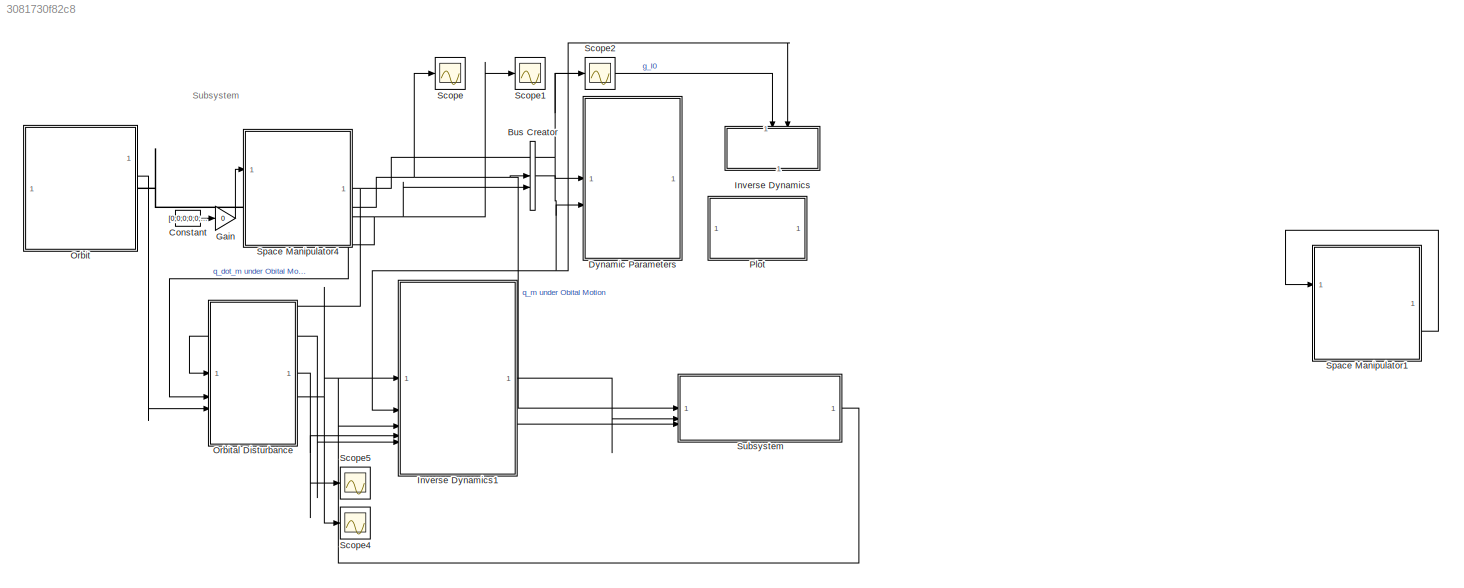
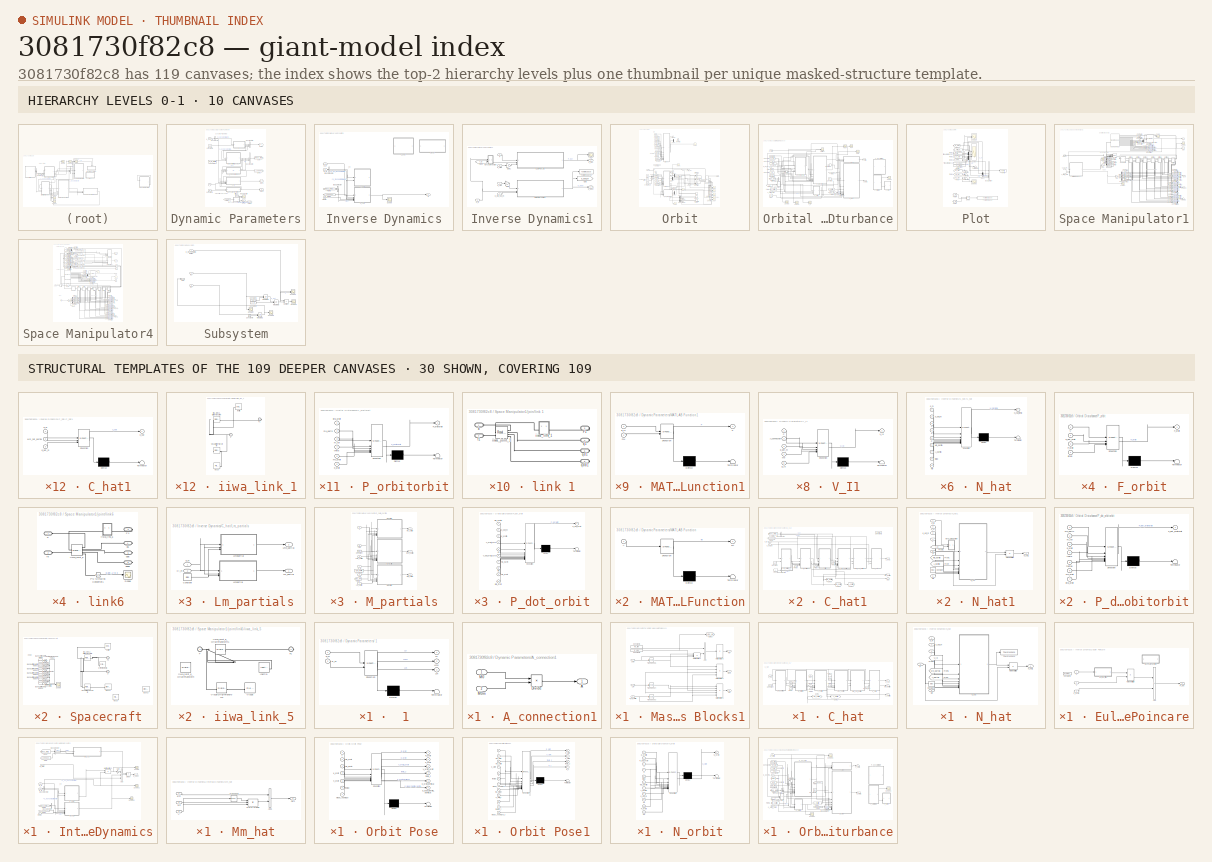
[diagram: thumbnail index - top-2 hierarchy levels (10 canvases) + 30 structural-template representatives of the remaining 109 canvases]
MODEL slx_3081730f82c8
KIND model
CONFIG AbsTol = auto
CONFIG EnableMultiTasking = off
CONFIG FixedStep = 0.001
CONFIG InitFcn = %rho_0t=[0.29;0.29;0.29]; %m\n%V_0t=[-0.001;-0.001;0];%[-0.0005;-0.0005;0];\n%w_t=[0;0;-0.002];\n\n\n%rho_0t=[0.3;0.3;0.2]; %m\n%V_0t=[-0.001;-0.001;0];%[-0.0005;-0.0005;0];\n%w_t=[0;0;-0.001];
CONFIG MaxStep = auto
CONFIG MinStep = auto
CONFIG RelTol = 1e-3
CONFIG SampleTimeConstraint = Unconstrained
CONFIG SolverName = ode4
CONFIG StartTime = 0.0
CONFIG StopTime = 60
BLOCK [BusCreator] Bus Creator
  DisplayOption = bar
  InheritFromInputs = on
  Inputs = 2
BLOCK [Constant] Constant
  Value = [0;0;0;0;0;0;0]
BLOCK [SubSystem] Dynamic Parameters
BLOCK [SubSystem] Dynamic Parameters/ 1
  ErrorFcn = Stateflow.Translate.translate
  PermitHierarchicalResolution = ExplicitOnly
  SFBlockType = MATLAB Function
  TreatAsAtomicUnit = on
BLOCK [Demux] Dynamic Parameters/ 1/ Demux 
  Outputs = 1
BLOCK [S-Function] Dynamic Parameters/ 1/ SFunction 
  EnableBusSupport = on
  FunctionName = sf_sfun
  PortCounts = [2 4]
  SFcnIsStateOwnerBlock = off
  SFunctionDeploymentMode = off
  Tag = Stateflow S-Function 34
BLOCK [Terminator] Dynamic Parameters/ 1/ Terminator 
BLOCK [Outport] Dynamic Parameters/ 1/L0
BLOCK [Outport] Dynamic Parameters/ 1/Lm
  Port = 3
BLOCK [Outport] Dynamic Parameters/ 1/Lm0
  Port = 2
BLOCK [Inport] Dynamic Parameters/ 1/Xi_m
  Port = 2
BLOCK [Inport] Dynamic Parameters/ 1/q_m
BLOCK [SubSystem] Dynamic Parameters/A_connection1
BLOCK [Outport] Dynamic Parameters/A_connection1/A
BLOCK [Product] Dynamic Parameters/A_connection1/Divide
  Inputs = /*
  Multiplication = Matrix(*)
BLOCK [Inport] Dynamic Parameters/A_connection1/M0
BLOCK [Inport] Dynamic Parameters/A_connection1/M0m
  Port = 2
BLOCK [BusCreator] Dynamic Parameters/Bus Creator3
  DisplayOption = bar
  InheritFromInputs = on
  Inputs = M0,M0m,Mm
BLOCK [BusCreator] Dynamic Parameters/Bus Creator4
  DisplayOption = bar
  InheritFromInputs = on
  Inputs = 3
BLOCK [BusSelector] Dynamic Parameters/Bus Selector
  OutputSignals = q_m under Obital Motion,q_dot_m under Obital Motion
BLOCK [Constant] Dynamic Parameters/Constant1
  Value = mu
BLOCK [Constant] Dynamic Parameters/Constant4
  Value = Xi_m
BLOCK [Constant] Dynamic Parameters/Constant7
  Value = Xi_m_matrix
BLOCK [From] Dynamic Parameters/From1
  GotoTag = A_connection
  TagVisibility = global
BLOCK [Goto] Dynamic Parameters/Goto
  GotoTag = Mass_Matrix
  TagVisibility = global
BLOCK [Goto] Dynamic Parameters/Goto1
  GotoTag = A_connection
  TagVisibility = global
BLOCK [Goto] Dynamic Parameters/Goto2
  GotoTag = w
  TagVisibility = global
BLOCK [Goto] Dynamic Parameters/Goto3
  GotoTag = V_Ie
  TagVisibility = global
BLOCK [Goto] Dynamic Parameters/Goto4
  GotoTag = P
  TagVisibility = global
BLOCK [Goto] Dynamic Parameters/Goto5
  GotoTag = L
  TagVisibility = global
BLOCK [Goto] Dynamic Parameters/Goto6
  GotoTag = w_plot
  TagVisibility = global
BLOCK [SubSystem] Dynamic Parameters/MATLAB Function
  ErrorFcn = Stateflow.Translate.translate
  PermitHierarchicalResolution = ExplicitOnly
  SFBlockType = MATLAB Function
  TreatAsAtomicUnit = on
BLOCK [Demux] Dynamic Parameters/MATLAB Function/ Demux 
  Outputs = 1
BLOCK [S-Function] Dynamic Parameters/MATLAB Function/ SFunction 
  EnableBusSupport = on
  FunctionName = sf_sfun
  PortCounts = [1 2]
  SFcnIsStateOwnerBlock = off
  SFunctionDeploymentMode = off
  Tag = Stateflow S-Function 4
BLOCK [Terminator] Dynamic Parameters/MATLAB Function/ Terminator 
BLOCK [Inport] Dynamic Parameters/MATLAB Function/A
BLOCK [Outport] Dynamic Parameters/MATLAB Function/wt
BLOCK [SubSystem] Dynamic Parameters/MATLAB Function1
  ErrorFcn = Stateflow.Translate.translate
  PermitHierarchicalResolution = ExplicitOnly
  SFBlockType = MATLAB Function
  TreatAsAtomicUnit = on
BLOCK [Demux] Dynamic Parameters/MATLAB Function1/ Demux 
  Outputs = 1
BLOCK [S-Function] Dynamic Parameters/MATLAB Function1/ SFunction 
  EnableBusSupport = on
  FunctionName = sf_sfun
  PortCounts = [2 2]
  SFcnIsStateOwnerBlock = off
  SFunctionDeploymentMode = off
  Tag = Stateflow S-Function 22
BLOCK [Terminator] Dynamic Parameters/MATLAB Function1/ Terminator 
BLOCK [Outport] Dynamic Parameters/MATLAB Function1/P
BLOCK [Inport] Dynamic Parameters/MATLAB Function1/g_I0
BLOCK [Inport] Dynamic Parameters/MATLAB Function1/mu
  Port = 2
BLOCK [SubSystem] Dynamic Parameters/Mass Matrix Blocks1
BLOCK [Sum] Dynamic Parameters/Mass Matrix Blocks1/Add
  IconShape = rectangular
BLOCK [Constant] Dynamic Parameters/Mass Matrix Blocks1/Constant1
  Value = m0_frak
  VectorParams1D = off
BLOCK [Constant] Dynamic Parameters/Mass Matrix Blocks1/Constant2
  Value = m_diag
  VectorParams1D = off
BLOCK [Goto] Dynamic Parameters/Mass Matrix Blocks1/Goto1
  GotoTag = diag_Mm
  TagVisibility = global
BLOCK [Inport] Dynamic Parameters/Mass Matrix Blocks1/Lm
BLOCK [Inport] Dynamic Parameters/Mass Matrix Blocks1/Lm0
  Port = 2
BLOCK [Outport] Dynamic Parameters/Mass Matrix Blocks1/M0
BLOCK [Outport] Dynamic Parameters/Mass Matrix Blocks1/M0m
  Port = 2
BLOCK [Product] Dynamic Parameters/Mass Matrix Blocks1/Matrix Multiply1
  Inputs = 4
  Multiplication = Matrix(*)
BLOCK [Product] Dynamic Parameters/Mass Matrix Blocks1/Matrix Multiply3
  Inputs = 5
  Multiplication = Matrix(*)
BLOCK [Product] Dynamic Parameters/Mass Matrix Blocks1/Matrix Multiply4
  Inputs = 3
  Multiplication = Matrix(*)
BLOCK [Product] Dynamic Parameters/Mass Matrix Blocks1/Matrix Multiply5
  Inputs = 1
  Multiplication = Matrix(*)
BLOCK [Outport] Dynamic Parameters/Mass Matrix Blocks1/Mm
  Port = 3
BLOCK [Math] Dynamic Parameters/Mass Matrix Blocks1/Transpose3
  Operator = transpose
BLOCK [Math] Dynamic Parameters/Mass Matrix Blocks1/Transpose4
  Operator = transpose
BLOCK [Math] Dynamic Parameters/Mass Matrix Blocks1/Transpose5
  Operator = transpose
BLOCK [Inport] Dynamic Parameters/Mass Matrix Blocks1/Xi_m_matrix
  Port = 3
BLOCK [SubSystem] Dynamic Parameters/V_I1
  ErrorFcn = Stateflow.Translate.translate
  PermitHierarchicalResolution = ExplicitOnly
  SFBlockType = MATLAB Function
  TreatAsAtomicUnit = on
BLOCK [Demux] Dynamic Parameters/V_I1/ Demux 
  Outputs = 1
BLOCK [S-Function] Dynamic Parameters/V_I1/ SFunction 
  EnableBusSupport = on
  FunctionName = sf_sfun
  PortCounts = [5 2]
  SFcnIsStateOwnerBlock = off
  SFunctionDeploymentMode = off
  Tag = Stateflow S-Function 12
BLOCK [Terminator] Dynamic Parameters/V_I1/ Terminator 
BLOCK [Inport] Dynamic Parameters/V_I1/A_connection
  Port = 2
BLOCK [Inport] Dynamic Parameters/V_I1/M0
  Port = 4
BLOCK [Inport] Dynamic Parameters/V_I1/P
BLOCK [Outport] Dynamic Parameters/V_I1/V_I0
BLOCK [Inport] Dynamic Parameters/V_I1/g_I0
  Port = 5
BLOCK [Inport] Dynamic Parameters/V_I1/q_dot_m
  Port = 3
BLOCK [Inport] Dynamic Parameters/g_I0
BLOCK [Scope] Dynamic Parameters/manipulability
  Floating = off
  NumInputPorts = 2
  ScopeSpecificationString = Simulink.scopes.TimeScopeBlockCfg('CurrentConfiguration', extmgr.ConfigurationSet(extmgr.Configuration('Core','General UI',true,'FigureColor',[1 1 1]),extmgr.Configuration('Core','Source UI',true),extmgr.Configuration('Sources','WiredSimulink',true,'DataLoggingVariableName','ScopeData1'),extmgr.Configuration('Visuals','Time Domain',true,'SerializedDisplays',{struct('MinYLimReal','0.00157','MaxYLim...<+1665ch>
BLOCK [Inport] Dynamic Parameters/q_ddot_m
  Port = 2
BLOCK [Constant] Dynamic Parameters/trigger
  Value = 0.003
BLOCK [Gain] Gain
  Gain = 0
BLOCK [SubSystem] Inverse Dynamics
  Commented = on
BLOCK [BusSelector] Inverse Dynamics/Bus Selector
  OutputSignals = M0,Mm
BLOCK [BusSelector] Inverse Dynamics/Bus Selector2
  OutputSignals = q_m under Obital Motion,q_dot_m under Obital Motion
BLOCK [SubSystem] Inverse Dynamics/C_hat
  Commented = on
BLOCK [Inport] Inverse Dynamics/C_hat/<Lm0>
  Port = 4
BLOCK [Inport] Inverse Dynamics/C_hat/<Lm>
  Port = 5
BLOCK [Inport] Inverse Dynamics/C_hat/<M0>
  Port = 6
BLOCK [InportShadow] Inverse Dynamics/C_hat/<M0>1
  Port = 6
BLOCK [Inport] Inverse Dynamics/C_hat/<M0m>
  Port = 7
BLOCK [Inport] Inverse Dynamics/C_hat/A
  Port = 3
BLOCK [SubSystem] Inverse Dynamics/C_hat/AMA_partial
  ErrorFcn = Stateflow.Translate.translate
  PermitHierarchicalResolution = ExplicitOnly
  SFBlockType = MATLAB Function
  TreatAsAtomicUnit = on
BLOCK [Demux] Inverse Dynamics/C_hat/AMA_partial/ Demux 
  Outputs = 1
BLOCK [S-Function] Inverse Dynamics/C_hat/AMA_partial/ SFunction 
  EnableBusSupport = off
  FunctionName = sf_sfun
  PortCounts = [6 2]
  SFcnIsStateOwnerBlock = off
  SFunctionDeploymentMode = off
  Tag = Stateflow S-Function 96
BLOCK [Terminator] Inverse Dynamics/C_hat/AMA_partial/ Terminator 
BLOCK [Inport] Inverse Dynamics/C_hat/AMA_partial/A
  Port = 3
BLOCK [Outport] Inverse Dynamics/C_hat/AMA_partial/AMA_partial
BLOCK [Inport] Inverse Dynamics/C_hat/AMA_partial/A_partial
  Port = 4
BLOCK [Inport] Inverse Dynamics/C_hat/AMA_partial/M0
  Port = 2
BLOCK [Inport] Inverse Dynamics/C_hat/AMA_partial/M0_partial
  Port = 6
BLOCK [Inport] Inverse Dynamics/C_hat/AMA_partial/V
  Port = 5
BLOCK [Inport] Inverse Dynamics/C_hat/AMA_partial/q_m
BLOCK [SubSystem] Inverse Dynamics/C_hat/A_partial
  ErrorFcn = Stateflow.Translate.translate
  PermitHierarchicalResolution = ExplicitOnly
  SFBlockType = MATLAB Function
  TreatAsAtomicUnit = on
BLOCK [Demux] Inverse Dynamics/C_hat/A_partial/ Demux 
  Outputs = 1
BLOCK [S-Function] Inverse Dynamics/C_hat/A_partial/ SFunction 
  EnableBusSupport = off
  FunctionName = sf_sfun
  PortCounts = [6 2]
  SFcnIsStateOwnerBlock = off
  SFunctionDeploymentMode = off
  Tag = Stateflow S-Function 97
BLOCK [Terminator] Inverse Dynamics/C_hat/A_partial/ Terminator 
BLOCK [Outport] Inverse Dynamics/C_hat/A_partial/A_partial
BLOCK [Inport] Inverse Dynamics/C_hat/A_partial/M0
  Port = 2
BLOCK [Inport] Inverse Dynamics/C_hat/A_partial/M0_partial
  Port = 3
BLOCK [Inport] Inverse Dynamics/C_hat/A_partial/M0m
  Port = 5
BLOCK [Inport] Inverse Dynamics/C_hat/A_partial/M0m_partial
  Port = 4
BLOCK [Inport] Inverse Dynamics/C_hat/A_partial/V
  Port = 6
BLOCK [Inport] Inverse Dynamics/C_hat/A_partial/q_m
BLOCK [Outport] Inverse Dynamics/C_hat/A_partial1
  Port = 2
BLOCK [Outport] Inverse Dynamics/C_hat/C_hat
  Port = 3
BLOCK [SubSystem] Inverse Dynamics/C_hat/C_hat1
  ErrorFcn = Stateflow.Translate.translate
  PermitHierarchicalResolution = ExplicitOnly
  SFBlockType = MATLAB Function
  TreatAsAtomicUnit = on
BLOCK [Demux] Inverse Dynamics/C_hat/C_hat1/ Demux 
  Outputs = 1
BLOCK [S-Function] Inverse Dynamics/C_hat/C_hat1/ SFunction 
  EnableBusSupport = off
  FunctionName = sf_sfun
  PortCounts = [3 2]
  SFcnIsStateOwnerBlock = off
  SFunctionDeploymentMode = off
  Tag = Stateflow S-Function 98
BLOCK [Terminator] Inverse Dynamics/C_hat/C_hat1/ Terminator 
BLOCK [Outport] Inverse Dynamics/C_hat/C_hat1/C_hat
BLOCK [Inport] Inverse Dynamics/C_hat/C_hat1/Mm_hat_partial
  Port = 2
BLOCK [Inport] Inverse Dynamics/C_hat/C_hat1/q_dot_m
  Port = 3
BLOCK [Inport] Inverse Dynamics/C_hat/C_hat1/q_m
BLOCK [Constant] Inverse Dynamics/C_hat/Constant
  Value = Xi_m
BLOCK [From] Inverse Dynamics/C_hat/From4
  GotoTag = V_I0
  TagVisibility = global
BLOCK [From] Inverse Dynamics/C_hat/From6
  GotoTag = V_I0
  TagVisibility = global
BLOCK [From] Inverse Dynamics/C_hat/From7
  GotoTag = V_I0
  TagVisibility = global
BLOCK [Goto] Inverse Dynamics/C_hat/Goto1
  GotoTag = M0_partial
  TagVisibility = global
BLOCK [Goto] Inverse Dynamics/C_hat/Goto2
  GotoTag = A_partial
  TagVisibility = global
BLOCK [SubSystem] Inverse Dynamics/C_hat/Lm_partials
BLOCK [Constant] Inverse Dynamics/C_hat/Lm_partials/Constant
  Value = iota0
BLOCK [Outport] Inverse Dynamics/C_hat/Lm_partials/Lm0_partial
  Port = 2
BLOCK [SubSystem] Inverse Dynamics/C_hat/Lm_partials/Lm0partial
  ErrorFcn = Stateflow.Translate.translate
  PermitHierarchicalResolution = ExplicitOnly
  SFBlockType = MATLAB Function
  TreatAsAtomicUnit = on
BLOCK [Demux] Inverse Dynamics/C_hat/Lm_partials/Lm0partial/ Demux 
  Outputs = 1
BLOCK [S-Function] Inverse Dynamics/C_hat/Lm_partials/Lm0partial/ SFunction 
  EnableBusSupport = off
  FunctionName = sf_sfun
  PortCounts = [3 2]
  SFcnIsStateOwnerBlock = off
  SFunctionDeploymentMode = off
  Tag = Stateflow S-Function 99
BLOCK [Terminator] Inverse Dynamics/C_hat/Lm_partials/Lm0partial/ Terminator 
BLOCK [Outport] Inverse Dynamics/C_hat/Lm_partials/Lm0partial/Lm0_partial
BLOCK [Inport] Inverse Dynamics/C_hat/Lm_partials/Lm0partial/Xi_m
  Port = 2
BLOCK [Inport] Inverse Dynamics/C_hat/Lm_partials/Lm0partial/iota0
  Port = 3
BLOCK [Inport] Inverse Dynamics/C_hat/Lm_partials/Lm0partial/q_m
BLOCK [Outport] Inverse Dynamics/C_hat/Lm_partials/Lm_partial
BLOCK [SubSystem] Inverse Dynamics/C_hat/Lm_partials/Lmpartial
  ErrorFcn = Stateflow.Translate.translate
  PermitHierarchicalResolution = ExplicitOnly
  SFBlockType = MATLAB Function
  TreatAsAtomicUnit = on
BLOCK [Demux] Inverse Dynamics/C_hat/Lm_partials/Lmpartial/ Demux 
  Outputs = 1
BLOCK [S-Function] Inverse Dynamics/C_hat/Lm_partials/Lmpartial/ SFunction 
  EnableBusSupport = off
  FunctionName = sf_sfun
  PortCounts = [3 2]
  SFcnIsStateOwnerBlock = off
  SFunctionDeploymentMode = off
  Tag = Stateflow S-Function 100
BLOCK [Terminator] Inverse Dynamics/C_hat/Lm_partials/Lmpartial/ Terminator 
BLOCK [Outport] Inverse Dynamics/C_hat/Lm_partials/Lmpartial/Lm_partial
BLOCK [Inport] Inverse Dynamics/C_hat/Lm_partials/Lmpartial/Xi_m
  Port = 2
BLOCK [Inport] Inverse Dynamics/C_hat/Lm_partials/Lmpartial/iota0
  Port = 3
BLOCK [Inport] Inverse Dynamics/C_hat/Lm_partials/Lmpartial/q_m
BLOCK [Inport] Inverse Dynamics/C_hat/Lm_partials/Xi_m
  Port = 2
BLOCK [Inport] Inverse Dynamics/C_hat/Lm_partials/q_m
BLOCK [Outport] Inverse Dynamics/C_hat/M0_partial
BLOCK [SubSystem] Inverse Dynamics/C_hat/M_partials
BLOCK [SubSystem] Inverse Dynamics/C_hat/M_partials/ M0partial
  ErrorFcn = Stateflow.Translate.translate
  PermitHierarchicalResolution = ExplicitOnly
  SFBlockType = MATLAB Function
  TreatAsAtomicUnit = on
BLOCK [Demux] Inverse Dynamics/C_hat/M_partials/ M0partial/ Demux 
  Outputs = 1
BLOCK [S-Function] Inverse Dynamics/C_hat/M_partials/ M0partial/ SFunction 
  EnableBusSupport = off
  FunctionName = sf_sfun
  PortCounts = [6 2]
  SFcnIsStateOwnerBlock = off
  SFunctionDeploymentMode = off
  Tag = Stateflow S-Function 101
BLOCK [Terminator] Inverse Dynamics/C_hat/M_partials/ M0partial/ Terminator 
BLOCK [Inport] Inverse Dynamics/C_hat/M_partials/ M0partial/Lm0
  Port = 2
BLOCK [Inport] Inverse Dynamics/C_hat/M_partials/ M0partial/Lm0_partial
  Port = 6
BLOCK [Outport] Inverse Dynamics/C_hat/M_partials/ M0partial/M0_partial
BLOCK [Inport] Inverse Dynamics/C_hat/M_partials/ M0partial/V
  Port = 3
BLOCK [Inport] Inverse Dynamics/C_hat/M_partials/ M0partial/diag_Mm
  Port = 5
BLOCK [Inport] Inverse Dynamics/C_hat/M_partials/ M0partial/iota0
  Port = 4
BLOCK [Inport] Inverse Dynamics/C_hat/M_partials/ M0partial/q_m
BLOCK [Constant] Inverse Dynamics/C_hat/M_partials/Constant
  Value = iota0
BLOCK [Constant] Inverse Dynamics/C_hat/M_partials/Constant2
  Value = Xi_m_matrix
BLOCK [From] Inverse Dynamics/C_hat/M_partials/From8
  GotoTag = diag_Mm
  TagVisibility = global
BLOCK [Inport] Inverse Dynamics/C_hat/M_partials/Lm
  Port = 4
BLOCK [Inport] Inverse Dynamics/C_hat/M_partials/Lm0
  Port = 5
BLOCK [Inport] Inverse Dynamics/C_hat/M_partials/Lm0_partial
  Port = 3
BLOCK [Inport] Inverse Dynamics/C_hat/M_partials/Lm_partial
  Port = 2
BLOCK [Outport] Inverse Dynamics/C_hat/M_partials/M0_partial
BLOCK [Outport] Inverse Dynamics/C_hat/M_partials/M0m_partial
  Port = 2
BLOCK [SubSystem] Inverse Dynamics/C_hat/M_partials/M0mpartial
  ErrorFcn = Stateflow.Translate.translate
  PermitHierarchicalResolution = ExplicitOnly
  SFBlockType = MATLAB Function
  TreatAsAtomicUnit = on
BLOCK [Demux] Inverse Dynamics/C_hat/M_partials/M0mpartial/ Demux 
  Outputs = 1
BLOCK [S-Function] Inverse Dynamics/C_hat/M_partials/M0mpartial/ SFunction 
  EnableBusSupport = off
  FunctionName = sf_sfun
  PortCounts = [9 2]
  SFcnIsStateOwnerBlock = off
  SFunctionDeploymentMode = off
  Tag = Stateflow S-Function 102
BLOCK [Terminator] Inverse Dynamics/C_hat/M_partials/M0mpartial/ Terminator 
BLOCK [Inport] Inverse Dynamics/C_hat/M_partials/M0mpartial/Lm
  Port = 3
BLOCK [Inport] Inverse Dynamics/C_hat/M_partials/M0mpartial/Lm0
  Port = 4
BLOCK [Inport] Inverse Dynamics/C_hat/M_partials/M0mpartial/Lm0_partial
  Port = 7
BLOCK [Inport] Inverse Dynamics/C_hat/M_partials/M0mpartial/Lm_partial
  Port = 8
BLOCK [Outport] Inverse Dynamics/C_hat/M_partials/M0mpartial/M0m_partial
BLOCK [Inport] Inverse Dynamics/C_hat/M_partials/M0mpartial/V
  Port = 2
BLOCK [Inport] Inverse Dynamics/C_hat/M_partials/M0mpartial/Xi_m_matrix
  Port = 9
BLOCK [Inport] Inverse Dynamics/C_hat/M_partials/M0mpartial/diag_Mm
  Port = 6
BLOCK [Inport] Inverse Dynamics/C_hat/M_partials/M0mpartial/iota0
  Port = 5
BLOCK [Inport] Inverse Dynamics/C_hat/M_partials/M0mpartial/q_m
BLOCK [Outport] Inverse Dynamics/C_hat/M_partials/Mm_partial
  Port = 3
BLOCK [SubSystem] Inverse Dynamics/C_hat/M_partials/Mmpartial
  ErrorFcn = Stateflow.Translate.translate
  PermitHierarchicalResolution = ExplicitOnly
  SFBlockType = MATLAB Function
  TreatAsAtomicUnit = on
BLOCK [Demux] Inverse Dynamics/C_hat/M_partials/Mmpartial/ Demux 
  Outputs = 1
BLOCK [S-Function] Inverse Dynamics/C_hat/M_partials/Mmpartial/ SFunction 
  EnableBusSupport = off
  FunctionName = sf_sfun
  PortCounts = [5 2]
  SFcnIsStateOwnerBlock = off
  SFunctionDeploymentMode = off
  Tag = Stateflow S-Function 103
BLOCK [Terminator] Inverse Dynamics/C_hat/M_partials/Mmpartial/ Terminator 
BLOCK [Inport] Inverse Dynamics/C_hat/M_partials/Mmpartial/Lm
  Port = 3
BLOCK [Inport] Inverse Dynamics/C_hat/M_partials/Mmpartial/Lm_partial
  Port = 5
BLOCK [Outport] Inverse Dynamics/C_hat/M_partials/Mmpartial/Mm_partial
BLOCK [Inport] Inverse Dynamics/C_hat/M_partials/Mmpartial/Xi_m_matrix
  Port = 2
BLOCK [Inport] Inverse Dynamics/C_hat/M_partials/Mmpartial/diag_Mm
  Port = 4
BLOCK [Inport] Inverse Dynamics/C_hat/M_partials/Mmpartial/q_m
BLOCK [Inport] Inverse Dynamics/C_hat/M_partials/V
  Port = 6
BLOCK [Inport] Inverse Dynamics/C_hat/M_partials/q_m
BLOCK [SubSystem] Inverse Dynamics/C_hat/Mm_hat_partial
  ErrorFcn = Stateflow.Translate.translate
  PermitHierarchicalResolution = ExplicitOnly
  SFBlockType = MATLAB Function
  TreatAsAtomicUnit = on
BLOCK [Demux] Inverse Dynamics/C_hat/Mm_hat_partial/ Demux 
  Outputs = 1
BLOCK [S-Function] Inverse Dynamics/C_hat/Mm_hat_partial/ SFunction 
  EnableBusSupport = off
  FunctionName = sf_sfun
  PortCounts = [3 2]
  SFcnIsStateOwnerBlock = off
  SFunctionDeploymentMode = off
  Tag = Stateflow S-Function 104
BLOCK [Terminator] Inverse Dynamics/C_hat/Mm_hat_partial/ Terminator 
BLOCK [Inport] Inverse Dynamics/C_hat/Mm_hat_partial/AMA_partial
  Port = 2
BLOCK [Outport] Inverse Dynamics/C_hat/Mm_hat_partial/Mm_hat_partial
BLOCK [Inport] Inverse Dynamics/C_hat/Mm_hat_partial/Mm_partial
  Port = 3
BLOCK [Inport] Inverse Dynamics/C_hat/Mm_hat_partial/q_m
BLOCK [Inport] Inverse Dynamics/C_hat/q_dot_m1
  NameLocation = top
  Port = 2
BLOCK [Inport] Inverse Dynamics/C_hat/q_m1
BLOCK [SubSystem] Inverse Dynamics/C_hat1
BLOCK [SubSystem] Inverse Dynamics/C_hat1/AMA_partial
  ErrorFcn = Stateflow.Translate.translate
  PermitHierarchicalResolution = ExplicitOnly
  SFBlockType = MATLAB Function
  TreatAsAtomicUnit = on
BLOCK [Demux] Inverse Dynamics/C_hat1/AMA_partial/ Demux 
  Outputs = 1
BLOCK [S-Function] Inverse Dynamics/C_hat1/AMA_partial/ SFunction 
  EnableBusSupport = on
  FunctionName = sf_sfun
  PortCounts = [6 2]
  SFcnIsStateOwnerBlock = off
  SFunctionDeploymentMode = off
  Tag = Stateflow S-Function 28
BLOCK [Terminator] Inverse Dynamics/C_hat1/AMA_partial/ Terminator 
BLOCK [Inport] Inverse Dynamics/C_hat1/AMA_partial/A
  Port = 3
BLOCK [Outport] Inverse Dynamics/C_hat1/AMA_partial/AMA_partial
BLOCK [Inport] Inverse Dynamics/C_hat1/AMA_partial/A_partial
  Port = 4
BLOCK [Inport] Inverse Dynamics/C_hat1/AMA_partial/M0
  Port = 2
BLOCK [Inport] Inverse Dynamics/C_hat1/AMA_partial/M0_partial
  Port = 6
BLOCK [Inport] Inverse Dynamics/C_hat1/AMA_partial/V
  Port = 5
BLOCK [Inport] Inverse Dynamics/C_hat1/AMA_partial/q_m
BLOCK [SubSystem] Inverse Dynamics/C_hat1/A_partial
  ErrorFcn = Stateflow.Translate.translate
  PermitHierarchicalResolution = ExplicitOnly
  SFBlockType = MATLAB Function
  TreatAsAtomicUnit = on
BLOCK [Demux] Inverse Dynamics/C_hat1/A_partial/ Demux 
  Outputs = 1
BLOCK [S-Function] Inverse Dynamics/C_hat1/A_partial/ SFunction 
  EnableBusSupport = on
  FunctionName = sf_sfun
  PortCounts = [6 2]
  SFcnIsStateOwnerBlock = off
  SFunctionDeploymentMode = off
  Tag = Stateflow S-Function 29
BLOCK [Terminator] Inverse Dynamics/C_hat1/A_partial/ Terminator 
BLOCK [Outport] Inverse Dynamics/C_hat1/A_partial/A_partial
BLOCK [Inport] Inverse Dynamics/C_hat1/A_partial/M0
  Port = 2
BLOCK [Inport] Inverse Dynamics/C_hat1/A_partial/M0_partial
  Port = 3
BLOCK [Inport] Inverse Dynamics/C_hat1/A_partial/M0m
  Port = 5
BLOCK [Inport] Inverse Dynamics/C_hat1/A_partial/M0m_partial
  Port = 4
BLOCK [Inport] Inverse Dynamics/C_hat1/A_partial/V
  Port = 6
BLOCK [Inport] Inverse Dynamics/C_hat1/A_partial/q_m
BLOCK [BusSelector] Inverse Dynamics/C_hat1/Bus Selector
  OutputSignals = M0,M0m
BLOCK [BusSelector] Inverse Dynamics/C_hat1/Bus Selector1
  OutputSignals = Lm,Lm0
BLOCK [SubSystem] Inverse Dynamics/C_hat1/C_hat
  ErrorFcn = Stateflow.Translate.translate
  PermitHierarchicalResolution = ExplicitOnly
  SFBlockType = MATLAB Function
  TreatAsAtomicUnit = on
BLOCK [Demux] Inverse Dynamics/C_hat1/C_hat/ Demux 
  Outputs = 1
BLOCK [S-Function] Inverse Dynamics/C_hat1/C_hat/ SFunction 
  EnableBusSupport = on
  FunctionName = sf_sfun
  PortCounts = [3 2]
  SFcnIsStateOwnerBlock = off
  SFunctionDeploymentMode = off
  Tag = Stateflow S-Function 36
BLOCK [Terminator] Inverse Dynamics/C_hat1/C_hat/ Terminator 
BLOCK [Outport] Inverse Dynamics/C_hat1/C_hat/C_hat
BLOCK [Inport] Inverse Dynamics/C_hat1/C_hat/Mm_hat_partial
  Port = 2
BLOCK [Inport] Inverse Dynamics/C_hat1/C_hat/q_dot_m
  Port = 3
BLOCK [Inport] Inverse Dynamics/C_hat1/C_hat/q_m
BLOCK [Outport] Inverse Dynamics/C_hat1/C_hat1
  Port = 3
BLOCK [Constant] Inverse Dynamics/C_hat1/Constant
  Value = Xi_m
BLOCK [Constant] Inverse Dynamics/C_hat1/Constant2
  Commented = on
  Value = m_diag
  VectorParams1D = off
BLOCK [From] Inverse Dynamics/C_hat1/From
  GotoTag = Mass_Matrix
  TagVisibility = global
BLOCK [From] Inverse Dynamics/C_hat1/From1
  GotoTag = V_Ie
  TagVisibility = global
BLOCK [From] Inverse Dynamics/C_hat1/From2
  GotoTag = V_Ie
  TagVisibility = global
BLOCK [From] Inverse Dynamics/C_hat1/From3
  GotoTag = V_Ie
  TagVisibility = global
BLOCK [From] Inverse Dynamics/C_hat1/From4
  GotoTag = L
  TagVisibility = global
BLOCK [From] Inverse Dynamics/C_hat1/From5
  GotoTag = A_connection
  TagVisibility = global
BLOCK [Goto] Inverse Dynamics/C_hat1/Goto1
  GotoTag = M0_partial
  TagVisibility = global
BLOCK [Goto] Inverse Dynamics/C_hat1/Goto2
  GotoTag = A_partial
  TagVisibility = global
BLOCK [Goto] Inverse Dynamics/C_hat1/Goto3
  GotoTag = Mm_partial
  TagVisibility = global
BLOCK [SubSystem] Inverse Dynamics/C_hat1/Lm_partials
BLOCK [Constant] Inverse Dynamics/C_hat1/Lm_partials/Constant
  Value = iota0
BLOCK [Outport] Inverse Dynamics/C_hat1/Lm_partials/Lm0_partial
  Port = 2
BLOCK [SubSystem] Inverse Dynamics/C_hat1/Lm_partials/Lm0partial
  ErrorFcn = Stateflow.Translate.translate
  PermitHierarchicalResolution = ExplicitOnly
  SFBlockType = MATLAB Function
  TreatAsAtomicUnit = on
BLOCK [Demux] Inverse Dynamics/C_hat1/Lm_partials/Lm0partial/ Demux 
  Outputs = 1
BLOCK [S-Function] Inverse Dynamics/C_hat1/Lm_partials/Lm0partial/ SFunction 
  EnableBusSupport = on
  FunctionName = sf_sfun
  PortCounts = [3 2]
  SFcnIsStateOwnerBlock = off
  SFunctionDeploymentMode = off
  Tag = Stateflow S-Function 41
BLOCK [Terminator] Inverse Dynamics/C_hat1/Lm_partials/Lm0partial/ Terminator 
BLOCK [Outport] Inverse Dynamics/C_hat1/Lm_partials/Lm0partial/Lm0_partial
BLOCK [Inport] Inverse Dynamics/C_hat1/Lm_partials/Lm0partial/Xi_m
  Port = 2
BLOCK [Inport] Inverse Dynamics/C_hat1/Lm_partials/Lm0partial/iota0
  Port = 3
BLOCK [Inport] Inverse Dynamics/C_hat1/Lm_partials/Lm0partial/q_m
BLOCK [Outport] Inverse Dynamics/C_hat1/Lm_partials/Lm_partial
BLOCK [SubSystem] Inverse Dynamics/C_hat1/Lm_partials/Lmpartial
  ErrorFcn = Stateflow.Translate.translate
  PermitHierarchicalResolution = ExplicitOnly
  SFBlockType = MATLAB Function
  TreatAsAtomicUnit = on
BLOCK [Demux] Inverse Dynamics/C_hat1/Lm_partials/Lmpartial/ Demux 
  Outputs = 1
BLOCK [S-Function] Inverse Dynamics/C_hat1/Lm_partials/Lmpartial/ SFunction 
  EnableBusSupport = on
  FunctionName = sf_sfun
  PortCounts = [3 2]
  SFcnIsStateOwnerBlock = off
  SFunctionDeploymentMode = off
  Tag = Stateflow S-Function 46
BLOCK [Terminator] Inverse Dynamics/C_hat1/Lm_partials/Lmpartial/ Terminator 
BLOCK [Outport] Inverse Dynamics/C_hat1/Lm_partials/Lmpartial/Lm_partial
BLOCK [Inport] Inverse Dynamics/C_hat1/Lm_partials/Lmpartial/Xi_m
  Port = 2
BLOCK [Inport] Inverse Dynamics/C_hat1/Lm_partials/Lmpartial/iota0
  Port = 3
BLOCK [Inport] Inverse Dynamics/C_hat1/Lm_partials/Lmpartial/q_m
BLOCK [Inport] Inverse Dynamics/C_hat1/Lm_partials/Xi_m
  Port = 2
BLOCK [Inport] Inverse Dynamics/C_hat1/Lm_partials/q_m
BLOCK [Outport] Inverse Dynamics/C_hat1/M0_partial
BLOCK [SubSystem] Inverse Dynamics/C_hat1/M_partials
BLOCK [SubSystem] Inverse Dynamics/C_hat1/M_partials/ M0partial
  ErrorFcn = Stateflow.Translate.translate
  PermitHierarchicalResolution = ExplicitOnly
  SFBlockType = MATLAB Function
  TreatAsAtomicUnit = on
BLOCK [Demux] Inverse Dynamics/C_hat1/M_partials/ M0partial/ Demux 
  Outputs = 1
BLOCK [S-Function] Inverse Dynamics/C_hat1/M_partials/ M0partial/ SFunction 
  EnableBusSupport = on
  FunctionName = sf_sfun
  PortCounts = [6 2]
  SFcnIsStateOwnerBlock = off
  SFunctionDeploymentMode = off
  Tag = Stateflow S-Function 47
BLOCK [Terminator] Inverse Dynamics/C_hat1/M_partials/ M0partial/ Terminator 
BLOCK [Inport] Inverse Dynamics/C_hat1/M_partials/ M0partial/Lm0
  Port = 2
BLOCK [Inport] Inverse Dynamics/C_hat1/M_partials/ M0partial/Lm0_partial
  Port = 6
BLOCK [Outport] Inverse Dynamics/C_hat1/M_partials/ M0partial/M0_partial
BLOCK [Inport] Inverse Dynamics/C_hat1/M_partials/ M0partial/V
  Port = 3
BLOCK [Inport] Inverse Dynamics/C_hat1/M_partials/ M0partial/diag_Mm
  Port = 5
BLOCK [Inport] Inverse Dynamics/C_hat1/M_partials/ M0partial/iota0
  Port = 4
BLOCK [Inport] Inverse Dynamics/C_hat1/M_partials/ M0partial/q_m
BLOCK [Constant] Inverse Dynamics/C_hat1/M_partials/Constant
  Value = iota0
BLOCK [Constant] Inverse Dynamics/C_hat1/M_partials/Constant1
  Value = Xi_m_matrix
BLOCK [From] Inverse Dynamics/C_hat1/M_partials/From8
  GotoTag = diag_Mm
  TagVisibility = global
BLOCK [Inport] Inverse Dynamics/C_hat1/M_partials/Lm
  Port = 4
BLOCK [Inport] Inverse Dynamics/C_hat1/M_partials/Lm0
  Port = 5
BLOCK [Inport] Inverse Dynamics/C_hat1/M_partials/Lm0_partial
  Port = 3
BLOCK [Inport] Inverse Dynamics/C_hat1/M_partials/Lm_partial
  Port = 2
BLOCK [Outport] Inverse Dynamics/C_hat1/M_partials/M0_partial
BLOCK [Outport] Inverse Dynamics/C_hat1/M_partials/M0m_partial
  Port = 2
BLOCK [SubSystem] Inverse Dynamics/C_hat1/M_partials/M0mpartial
  ErrorFcn = Stateflow.Translate.translate
  PermitHierarchicalResolution = ExplicitOnly
  SFBlockType = MATLAB Function
  TreatAsAtomicUnit = on
BLOCK [Demux] Inverse Dynamics/C_hat1/M_partials/M0mpartial/ Demux 
  Outputs = 1
BLOCK [S-Function] Inverse Dynamics/C_hat1/M_partials/M0mpartial/ SFunction 
  EnableBusSupport = on
  FunctionName = sf_sfun
  PortCounts = [9 2]
  SFcnIsStateOwnerBlock = off
  SFunctionDeploymentMode = off
  Tag = Stateflow S-Function 48
BLOCK [Terminator] Inverse Dynamics/C_hat1/M_partials/M0mpartial/ Terminator 
BLOCK [Inport] Inverse Dynamics/C_hat1/M_partials/M0mpartial/Lm
  Port = 3
BLOCK [Inport] Inverse Dynamics/C_hat1/M_partials/M0mpartial/Lm0
  Port = 4
BLOCK [Inport] Inverse Dynamics/C_hat1/M_partials/M0mpartial/Lm0_partial
  Port = 7
BLOCK [Inport] Inverse Dynamics/C_hat1/M_partials/M0mpartial/Lm_partial
  Port = 8
BLOCK [Outport] Inverse Dynamics/C_hat1/M_partials/M0mpartial/M0m_partial
BLOCK [Inport] Inverse Dynamics/C_hat1/M_partials/M0mpartial/V
  Port = 2
BLOCK [Inport] Inverse Dynamics/C_hat1/M_partials/M0mpartial/Xi_m_matrix
  Port = 9
BLOCK [Inport] Inverse Dynamics/C_hat1/M_partials/M0mpartial/diag_Mm
  Port = 6
BLOCK [Inport] Inverse Dynamics/C_hat1/M_partials/M0mpartial/iota0
  Port = 5
BLOCK [Inport] Inverse Dynamics/C_hat1/M_partials/M0mpartial/q_m
BLOCK [Outport] Inverse Dynamics/C_hat1/M_partials/Mm_partial
  Port = 3
BLOCK [SubSystem] Inverse Dynamics/C_hat1/M_partials/Mmpartial
  ErrorFcn = Stateflow.Translate.translate
  PermitHierarchicalResolution = ExplicitOnly
  SFBlockType = MATLAB Function
  TreatAsAtomicUnit = on
BLOCK [Demux] Inverse Dynamics/C_hat1/M_partials/Mmpartial/ Demux 
  Outputs = 1
BLOCK [S-Function] Inverse Dynamics/C_hat1/M_partials/Mmpartial/ SFunction 
  EnableBusSupport = on
  FunctionName = sf_sfun
  PortCounts = [5 2]
  SFcnIsStateOwnerBlock = off
  SFunctionDeploymentMode = off
  Tag = Stateflow S-Function 49
BLOCK [Terminator] Inverse Dynamics/C_hat1/M_partials/Mmpartial/ Terminator 
BLOCK [Inport] Inverse Dynamics/C_hat1/M_partials/Mmpartial/Lm
  Port = 3
BLOCK [Inport] Inverse Dynamics/C_hat1/M_partials/Mmpartial/Lm_partial
  Port = 5
BLOCK [Outport] Inverse Dynamics/C_hat1/M_partials/Mmpartial/Mm_partial
BLOCK [Inport] Inverse Dynamics/C_hat1/M_partials/Mmpartial/Xi_m_matrix
  Port = 2
BLOCK [Inport] Inverse Dynamics/C_hat1/M_partials/Mmpartial/diag_Mm
  Port = 4
BLOCK [Inport] Inverse Dynamics/C_hat1/M_partials/Mmpartial/q_m
BLOCK [Inport] Inverse Dynamics/C_hat1/M_partials/V
  Port = 6
BLOCK [Inport] Inverse Dynamics/C_hat1/M_partials/q_m
BLOCK [SubSystem] Inverse Dynamics/C_hat1/Mm_hat_partial
  ErrorFcn = Stateflow.Translate.translate
  PermitHierarchicalResolution = ExplicitOnly
  SFBlockType = MATLAB Function
  TreatAsAtomicUnit = on
BLOCK [Demux] Inverse Dynamics/C_hat1/Mm_hat_partial/ Demux 
  Outputs = 1
BLOCK [S-Function] Inverse Dynamics/C_hat1/Mm_hat_partial/ SFunction 
  EnableBusSupport = on
  FunctionName = sf_sfun
  PortCounts = [3 2]
  SFcnIsStateOwnerBlock = off
  SFunctionDeploymentMode = off
  Tag = Stateflow S-Function 50
BLOCK [Terminator] Inverse Dynamics/C_hat1/Mm_hat_partial/ Terminator 
BLOCK [Inport] Inverse Dynamics/C_hat1/Mm_hat_partial/AMA_partial
  Port = 2
BLOCK [Outport] Inverse Dynamics/C_hat1/Mm_hat_partial/Mm_hat_partial
BLOCK [Inport] Inverse Dynamics/C_hat1/Mm_hat_partial/Mm_partial
  Port = 3
BLOCK [Inport] Inverse Dynamics/C_hat1/Mm_hat_partial/q_m
BLOCK [Outport] Inverse Dynamics/C_hat1/Out1
  Port = 2
BLOCK [Inport] Inverse Dynamics/C_hat1/q_dot_m
  Port = 2
BLOCK [Inport] Inverse Dynamics/C_hat1/q_m
BLOCK [From] Inverse Dynamics/From3
  GotoTag = P
  TagVisibility = global
BLOCK [From] Inverse Dynamics/From4
  GotoTag = A_connection
  TagVisibility = global
BLOCK [From] Inverse Dynamics/From5
  GotoTag = Mass_Matrix
  TagVisibility = global
BLOCK [Outport] Inverse Dynamics/N
BLOCK [SubSystem] Inverse Dynamics/N_hat
  Commented = on
BLOCK [Inport] Inverse Dynamics/N_hat/A
  Port = 3
BLOCK [Constant] Inverse Dynamics/N_hat/Constant
  Value = iota0
BLOCK [From] Inverse Dynamics/N_hat/From
  GotoTag = A_partial
  TagVisibility = global
BLOCK [From] Inverse Dynamics/N_hat/From1
  GotoTag = M0_partial
  TagVisibility = global
BLOCK [From] Inverse Dynamics/N_hat/From2
  GotoTag = V_I0
  TagVisibility = global
BLOCK [Inport] Inverse Dynamics/N_hat/M0
  Port = 5
BLOCK [Product] Inverse Dynamics/N_hat/Matrix Multiply
  Multiplication = Matrix(*)
BLOCK [SubSystem] Inverse Dynamics/N_hat/N_hat
  ErrorFcn = Stateflow.Translate.translate
  PermitHierarchicalResolution = ExplicitOnly
  SFBlockType = MATLAB Function
  TreatAsAtomicUnit = on
BLOCK [Demux] Inverse Dynamics/N_hat/N_hat/ Demux 
  Outputs = 1
BLOCK [S-Function] Inverse Dynamics/N_hat/N_hat/ SFunction 
  EnableBusSupport = off
  FunctionName = sf_sfun
  PortCounts = [9 2]
  SFcnIsStateOwnerBlock = off
  SFunctionDeploymentMode = off
  Tag = Stateflow S-Function 119
BLOCK [Terminator] Inverse Dynamics/N_hat/N_hat/ Terminator 
BLOCK [Inport] Inverse Dynamics/N_hat/N_hat/A
  Port = 3
BLOCK [Inport] Inverse Dynamics/N_hat/N_hat/A_partial
  Port = 7
BLOCK [Inport] Inverse Dynamics/N_hat/N_hat/M0
  Port = 9
BLOCK [Inport] Inverse Dynamics/N_hat/N_hat/M0_partial
  Port = 6
BLOCK [Outport] Inverse Dynamics/N_hat/N_hat/N_hat_temp
BLOCK [Inport] Inverse Dynamics/N_hat/N_hat/P
  Port = 5
BLOCK [Inport] Inverse Dynamics/N_hat/N_hat/V
  Port = 4
BLOCK [Inport] Inverse Dynamics/N_hat/N_hat/iota0
  Port = 8
BLOCK [Inport] Inverse Dynamics/N_hat/N_hat/q_dot_m
  Port = 2
BLOCK [Inport] Inverse Dynamics/N_hat/N_hat/q_m
BLOCK [Outport] Inverse Dynamics/N_hat/N_hat1
BLOCK [Inport] Inverse Dynamics/N_hat/P
  Port = 4
BLOCK [ToWorkspace] Inverse Dynamics/N_hat/To Workspace
  FixptAsFi = on
  MaxDataPoints = inf
  SampleTime = -1
  SaveFormat = Timeseries
  VariableName = N_firstpart
BLOCK [Inport] Inverse Dynamics/N_hat/q_dot_m
  Port = 2
BLOCK [Inport] Inverse Dynamics/N_hat/q_m
BLOCK [SubSystem] Inverse Dynamics/N_hat1
BLOCK [Inport] Inverse Dynamics/N_hat1/A
  Port = 4
BLOCK [Constant] Inverse Dynamics/N_hat1/Constant
  Value = iota0
BLOCK [From] Inverse Dynamics/N_hat1/From
  GotoTag = A_partial
  TagVisibility = global
BLOCK [From] Inverse Dynamics/N_hat1/From1
  GotoTag = M0_partial
  TagVisibility = global
BLOCK [From] Inverse Dynamics/N_hat1/From2
  GotoTag = V_Ie
  TagVisibility = global
BLOCK [Inport] Inverse Dynamics/N_hat1/M0
  Port = 6
BLOCK [SubSystem] Inverse Dynamics/N_hat1/MATLAB Function
  ErrorFcn = Stateflow.Translate.translate
  PermitHierarchicalResolution = ExplicitOnly
  SFBlockType = MATLAB Function
  TreatAsAtomicUnit = on
BLOCK [Demux] Inverse Dynamics/N_hat1/MATLAB Function/ Demux 
  Outputs = 1
BLOCK [S-Function] Inverse Dynamics/N_hat1/MATLAB Function/ SFunction 
  EnableBusSupport = on
  FunctionName = sf_sfun
  PortCounts = [2 2]
  SFcnIsStateOwnerBlock = off
  SFunctionDeploymentMode = off
  Tag = Stateflow S-Function 26
BLOCK [Terminator] Inverse Dynamics/N_hat1/MATLAB Function/ Terminator 
BLOCK [Outport] Inverse Dynamics/N_hat1/MATLAB Function/V_Ie
BLOCK [Inport] Inverse Dynamics/N_hat1/MATLAB Function/V_Ie_e
  Port = 2
BLOCK [Inport] Inverse Dynamics/N_hat1/MATLAB Function/g_I0
BLOCK [Product] Inverse Dynamics/N_hat1/Matrix Multiply
  Multiplication = Matrix(*)
BLOCK [SubSystem] Inverse Dynamics/N_hat1/N_hat
  ErrorFcn = Stateflow.Translate.translate
  PermitHierarchicalResolution = ExplicitOnly
  SFBlockType = MATLAB Function
  TreatAsAtomicUnit = on
BLOCK [Demux] Inverse Dynamics/N_hat1/N_hat/ Demux 
  Outputs = 1
BLOCK [S-Function] Inverse Dynamics/N_hat1/N_hat/ SFunction 
  EnableBusSupport = on
  FunctionName = sf_sfun
  PortCounts = [9 2]
  SFcnIsStateOwnerBlock = off
  SFunctionDeploymentMode = off
  Tag = Stateflow S-Function 66
BLOCK [Terminator] Inverse Dynamics/N_hat1/N_hat/ Terminator 
BLOCK [Inport] Inverse Dynamics/N_hat1/N_hat/A
  Port = 3
BLOCK [Inport] Inverse Dynamics/N_hat1/N_hat/A_partial
  Port = 7
BLOCK [Inport] Inverse Dynamics/N_hat1/N_hat/M0
  Port = 9
BLOCK [Inport] Inverse Dynamics/N_hat1/N_hat/M0_partial
  Port = 6
BLOCK [Outport] Inverse Dynamics/N_hat1/N_hat/N_hat_temp
BLOCK [Inport] Inverse Dynamics/N_hat1/N_hat/P
  Port = 5
BLOCK [Inport] Inverse Dynamics/N_hat1/N_hat/V
  Port = 4
BLOCK [Inport] Inverse Dynamics/N_hat1/N_hat/iota0
  Port = 8
BLOCK [Inport] Inverse Dynamics/N_hat1/N_hat/q_dot_m
  Port = 2
BLOCK [Inport] Inverse Dynamics/N_hat1/N_hat/q_m
BLOCK [Outport] Inverse Dynamics/N_hat1/N_hat1
BLOCK [Inport] Inverse Dynamics/N_hat1/P
  Port = 5
BLOCK [Inport] Inverse Dynamics/N_hat1/g_I0
BLOCK [Inport] Inverse Dynamics/N_hat1/q_dot_m
  Port = 3
BLOCK [Inport] Inverse Dynamics/N_hat1/q_m
  Port = 2
BLOCK [Scope] Inverse Dynamics/Scope
  Floating = off
  NumInputPorts = 1
  ScopeSpecificationString = Simulink.scopes.TimeScopeBlockCfg('CurrentConfiguration', extmgr.ConfigurationSet(extmgr.Configuration('Core','General UI',true),extmgr.Configuration('Core','Source UI',true),extmgr.Configuration('Sources','WiredSimulink',true,'DataLoggingVariableName','ScopeData1'),extmgr.Configuration('Visuals','Time Domain',true,'SerializedDisplays',{struct('MinYLimReal','-0.00187','MaxYLimReal','0.00292','YLab...<+1502ch>
BLOCK [Inport] Inverse Dynamics/g_I0
BLOCK [Inport] Inverse Dynamics/q_m 
  Port = 2
BLOCK [SubSystem] Inverse Dynamics1
  NameLocation = right
BLOCK [SubSystem] Inverse Dynamics1/Euler Poincare
BLOCK [Sum] Inverse Dynamics1/Euler Poincare/Add
  IconShape = rectangular
  Inputs = +-
BLOCK [Constant] Inverse Dynamics1/Euler Poincare/Constant1
  Commented = on
  Value = eye(6,6)
BLOCK [Inport] Inverse Dynamics1/Euler Poincare/F_orbit
  Port = 3
BLOCK [SubSystem] Inverse Dynamics1/Euler Poincare/MATLAB Function
  Commented = on
  ErrorFcn = Stateflow.Translate.translate
  PermitHierarchicalResolution = ExplicitOnly
  SFBlockType = MATLAB Function
  TreatAsAtomicUnit = on
BLOCK [Demux] Inverse Dynamics1/Euler Poincare/MATLAB Function/ Demux 
  Outputs = 1
BLOCK [S-Function] Inverse Dynamics1/Euler Poincare/MATLAB Function/ SFunction 
  EnableBusSupport = off
  FunctionName = sf_sfun
  PortCounts = [2 2]
  SFcnIsStateOwnerBlock = off
  SFunctionDeploymentMode = off
  Tag = Stateflow S-Function 3
BLOCK [Terminator] Inverse Dynamics1/Euler Poincare/MATLAB Function/ Terminator 
BLOCK [Inport] Inverse Dynamics1/Euler Poincare/MATLAB Function/V
BLOCK [Outport] Inverse Dynamics1/Euler Poincare/MATLAB Function/adj_low
BLOCK [Inport] Inverse Dynamics1/Euler Poincare/MATLAB Function/iota0
  Port = 2
BLOCK [Product] Inverse Dynamics1/Euler Poincare/Matrix Multiply
  Multiplication = Matrix(*)
BLOCK [Inport] Inverse Dynamics1/Euler Poincare/P
BLOCK [Outport] Inverse Dynamics1/Euler Poincare/P_dot
BLOCK [Inport] Inverse Dynamics1/Euler Poincare/V
  Port = 2
BLOCK [SubSystem] Inverse Dynamics1/Euler Poincare/adj_low_tilde
  ErrorFcn = Stateflow.Translate.translate
  PermitHierarchicalResolution = ExplicitOnly
  SFBlockType = MATLAB Function
  TreatAsAtomicUnit = on
BLOCK [Demux] Inverse Dynamics1/Euler Poincare/adj_low_tilde/ Demux 
  Outputs = 1
BLOCK [S-Function] Inverse Dynamics1/Euler Poincare/adj_low_tilde/ SFunction 
  EnableBusSupport = on
  FunctionName = sf_sfun
  PortCounts = [1 2]
  SFcnIsStateOwnerBlock = off
  SFunctionDeploymentMode = off
  Tag = Stateflow S-Function 11
BLOCK [Terminator] Inverse Dynamics1/Euler Poincare/adj_low_tilde/ Terminator 
BLOCK [Inport] Inverse Dynamics1/Euler Poincare/adj_low_tilde/P
BLOCK [Outport] Inverse Dynamics1/Euler Poincare/adj_low_tilde/adj_low_tilde
BLOCK [Inport] Inverse Dynamics1/F_orbit
  Port = 4
BLOCK [From] Inverse Dynamics1/From4
  GotoTag = V_Ie
  TagVisibility = global
BLOCK [Gain] Inverse Dynamics1/Gain
  Gain = 0
BLOCK [Gain] Inverse Dynamics1/Gain1
BLOCK [Goto] Inverse Dynamics1/Goto
  GotoTag = q_ddot_m
  TagVisibility = global
BLOCK [SubSystem] Inverse Dynamics1/Internal Dynamics
BLOCK [Sum] Inverse Dynamics1/Internal Dynamics/Add
  IconShape = rectangular
  Inputs = -++
BLOCK [BusSelector] Inverse Dynamics1/Internal Dynamics/Bus Selector
  OutputSignals = M0,Mm
BLOCK [BusSelector] Inverse Dynamics1/Internal Dynamics/Bus Selector1
  OutputSignals = M0,Mm
BLOCK [BusSelector] Inverse Dynamics1/Internal Dynamics/Bus Selector2
  OutputSignals = q_m under Obital Motion,q_dot_m under Obital Motion
BLOCK [SubSystem] Inverse Dynamics1/Internal Dynamics/C_hat2
BLOCK [SubSystem] Inverse Dynamics1/Internal Dynamics/C_hat2/AMA_partial
  ErrorFcn = Stateflow.Translate.translate
  PermitHierarchicalResolution = ExplicitOnly
  SFBlockType = MATLAB Function
  TreatAsAtomicUnit = on
BLOCK [Demux] Inverse Dynamics1/Internal Dynamics/C_hat2/AMA_partial/ Demux 
  Outputs = 1
BLOCK [S-Function] Inverse Dynamics1/Internal Dynamics/C_hat2/AMA_partial/ SFunction 
  EnableBusSupport = on
  FunctionName = sf_sfun
  PortCounts = [6 2]
  SFcnIsStateOwnerBlock = off
  SFunctionDeploymentMode = off
  Tag = Stateflow S-Function 13
BLOCK [Terminator] Inverse Dynamics1/Internal Dynamics/C_hat2/AMA_partial/ Terminator 
BLOCK [Inport] Inverse Dynamics1/Internal Dynamics/C_hat2/AMA_partial/A
  Port = 3
BLOCK [Outport] Inverse Dynamics1/Internal Dynamics/C_hat2/AMA_partial/AMA_partial
BLOCK [Inport] Inverse Dynamics1/Internal Dynamics/C_hat2/AMA_partial/A_partial
  Port = 4
BLOCK [Inport] Inverse Dynamics1/Internal Dynamics/C_hat2/AMA_partial/M0
  Port = 2
BLOCK [Inport] Inverse Dynamics1/Internal Dynamics/C_hat2/AMA_partial/M0_partial
  Port = 6
BLOCK [Inport] Inverse Dynamics1/Internal Dynamics/C_hat2/AMA_partial/V
  Port = 5
BLOCK [Inport] Inverse Dynamics1/Internal Dynamics/C_hat2/AMA_partial/q_m
BLOCK [SubSystem] Inverse Dynamics1/Internal Dynamics/C_hat2/A_partial
  ErrorFcn = Stateflow.Translate.translate
  PermitHierarchicalResolution = ExplicitOnly
  SFBlockType = MATLAB Function
  TreatAsAtomicUnit = on
BLOCK [Demux] Inverse Dynamics1/Internal Dynamics/C_hat2/A_partial/ Demux 
  Outputs = 1
BLOCK [S-Function] Inverse Dynamics1/Internal Dynamics/C_hat2/A_partial/ SFunction 
  EnableBusSupport = on
  FunctionName = sf_sfun
  PortCounts = [6 2]
  SFcnIsStateOwnerBlock = off
  SFunctionDeploymentMode = off
  Tag = Stateflow S-Function 30
BLOCK [Terminator] Inverse Dynamics1/Internal Dynamics/C_hat2/A_partial/ Terminator 
BLOCK [Outport] Inverse Dynamics1/Internal Dynamics/C_hat2/A_partial/A_partial
BLOCK [Inport] Inverse Dynamics1/Internal Dynamics/C_hat2/A_partial/M0
  Port = 2
BLOCK [Inport] Inverse Dynamics1/Internal Dynamics/C_hat2/A_partial/M0_partial
  Port = 3
BLOCK [Inport] Inverse Dynamics1/Internal Dynamics/C_hat2/A_partial/M0m
  Port = 5
BLOCK [Inport] Inverse Dynamics1/Internal Dynamics/C_hat2/A_partial/M0m_partial
  Port = 4
BLOCK [Inport] Inverse Dynamics1/Internal Dynamics/C_hat2/A_partial/V
  Port = 6
BLOCK [Inport] Inverse Dynamics1/Internal Dynamics/C_hat2/A_partial/q_m
BLOCK [BusSelector] Inverse Dynamics1/Internal Dynamics/C_hat2/Bus Selector
  OutputSignals = M0,M0m
BLOCK [BusSelector] Inverse Dynamics1/Internal Dynamics/C_hat2/Bus Selector1
  OutputSignals = Lm,Lm0
BLOCK [SubSystem] Inverse Dynamics1/Internal Dynamics/C_hat2/C_hat
  ErrorFcn = Stateflow.Translate.translate
  PermitHierarchicalResolution = ExplicitOnly
  SFBlockType = MATLAB Function
  TreatAsAtomicUnit = on
BLOCK [Demux] Inverse Dynamics1/Internal Dynamics/C_hat2/C_hat/ Demux 
  Outputs = 1
BLOCK [S-Function] Inverse Dynamics1/Internal Dynamics/C_hat2/C_hat/ SFunction 
  EnableBusSupport = on
  FunctionName = sf_sfun
  PortCounts = [3 2]
  SFcnIsStateOwnerBlock = off
  SFunctionDeploymentMode = off
  Tag = Stateflow S-Function 31
BLOCK [Terminator] Inverse Dynamics1/Internal Dynamics/C_hat2/C_hat/ Terminator 
BLOCK [Outport] Inverse Dynamics1/Internal Dynamics/C_hat2/C_hat/C_hat
BLOCK [Inport] Inverse Dynamics1/Internal Dynamics/C_hat2/C_hat/Mm_hat_partial
  Port = 2
BLOCK [Inport] Inverse Dynamics1/Internal Dynamics/C_hat2/C_hat/q_dot_m
  Port = 3
BLOCK [Inport] Inverse Dynamics1/Internal Dynamics/C_hat2/C_hat/q_m
BLOCK [Outport] Inverse Dynamics1/Internal Dynamics/C_hat2/C_hat1
  Port = 3
BLOCK [Constant] Inverse Dynamics1/Internal Dynamics/C_hat2/Constant
  Value = Xi_m
BLOCK [Constant] Inverse Dynamics1/Internal Dynamics/C_hat2/Constant2
  Commented = on
  Value = m_diag
  VectorParams1D = off
BLOCK [From] Inverse Dynamics1/Internal Dynamics/C_hat2/From
  GotoTag = Mass_Matrix
  TagVisibility = global
BLOCK [From] Inverse Dynamics1/Internal Dynamics/C_hat2/From1
  GotoTag = V_Ie
  TagVisibility = global
BLOCK [From] Inverse Dynamics1/Internal Dynamics/C_hat2/From2
  GotoTag = V_Ie
  TagVisibility = global
BLOCK [From] Inverse Dynamics1/Internal Dynamics/C_hat2/From3
  GotoTag = V_Ie
  TagVisibility = global
BLOCK [From] Inverse Dynamics1/Internal Dynamics/C_hat2/From4
  GotoTag = L
  TagVisibility = global
BLOCK [From] Inverse Dynamics1/Internal Dynamics/C_hat2/From5
  GotoTag = A_connection
  TagVisibility = global
BLOCK [Goto] Inverse Dynamics1/Internal Dynamics/C_hat2/Goto1
  GotoTag = M0_partial
  TagVisibility = global
BLOCK [Goto] Inverse Dynamics1/Internal Dynamics/C_hat2/Goto2
  GotoTag = A_partial
  TagVisibility = global
BLOCK [Goto] Inverse Dynamics1/Internal Dynamics/C_hat2/Goto3
  GotoTag = Mm_partial
  TagVisibility = global
BLOCK [SubSystem] Inverse Dynamics1/Internal Dynamics/C_hat2/Lm_partials
BLOCK [Constant] Inverse Dynamics1/Internal Dynamics/C_hat2/Lm_partials/Constant
  Value = iota0
BLOCK [Outport] Inverse Dynamics1/Internal Dynamics/C_hat2/Lm_partials/Lm0_partial
  Port = 2
BLOCK [SubSystem] Inverse Dynamics1/Internal Dynamics/C_hat2/Lm_partials/Lm0partial
  ErrorFcn = Stateflow.Translate.translate
  PermitHierarchicalResolution = ExplicitOnly
  SFBlockType = MATLAB Function
  TreatAsAtomicUnit = on
BLOCK [Demux] Inverse Dynamics1/Internal Dynamics/C_hat2/Lm_partials/Lm0partial/ Demux 
  Outputs = 1
BLOCK [S-Function] Inverse Dynamics1/Internal Dynamics/C_hat2/Lm_partials/Lm0partial/ SFunction 
  EnableBusSupport = on
  FunctionName = sf_sfun
  PortCounts = [3 2]
  SFcnIsStateOwnerBlock = off
  SFunctionDeploymentMode = off
  Tag = Stateflow S-Function 32
BLOCK [Terminator] Inverse Dynamics1/Internal Dynamics/C_hat2/Lm_partials/Lm0partial/ Terminator 
BLOCK [Outport] Inverse Dynamics1/Internal Dynamics/C_hat2/Lm_partials/Lm0partial/Lm0_partial
BLOCK [Inport] Inverse Dynamics1/Internal Dynamics/C_hat2/Lm_partials/Lm0partial/Xi_m
  Port = 2
BLOCK [Inport] Inverse Dynamics1/Internal Dynamics/C_hat2/Lm_partials/Lm0partial/iota0
  Port = 3
BLOCK [Inport] Inverse Dynamics1/Internal Dynamics/C_hat2/Lm_partials/Lm0partial/q_m
BLOCK [Outport] Inverse Dynamics1/Internal Dynamics/C_hat2/Lm_partials/Lm_partial
BLOCK [SubSystem] Inverse Dynamics1/Internal Dynamics/C_hat2/Lm_partials/Lmpartial
  ErrorFcn = Stateflow.Translate.translate
  PermitHierarchicalResolution = ExplicitOnly
  SFBlockType = MATLAB Function
  TreatAsAtomicUnit = on
BLOCK [Demux] Inverse Dynamics1/Internal Dynamics/C_hat2/Lm_partials/Lmpartial/ Demux 
  Outputs = 1
BLOCK [S-Function] Inverse Dynamics1/Internal Dynamics/C_hat2/Lm_partials/Lmpartial/ SFunction 
  EnableBusSupport = on
  FunctionName = sf_sfun
  PortCounts = [3 2]
  SFcnIsStateOwnerBlock = off
  SFunctionDeploymentMode = off
  Tag = Stateflow S-Function 33
BLOCK [Terminator] Inverse Dynamics1/Internal Dynamics/C_hat2/Lm_partials/Lmpartial/ Terminator 
BLOCK [Outport] Inverse Dynamics1/Internal Dynamics/C_hat2/Lm_partials/Lmpartial/Lm_partial
BLOCK [Inport] Inverse Dynamics1/Internal Dynamics/C_hat2/Lm_partials/Lmpartial/Xi_m
  Port = 2
BLOCK [Inport] Inverse Dynamics1/Internal Dynamics/C_hat2/Lm_partials/Lmpartial/iota0
  Port = 3
BLOCK [Inport] Inverse Dynamics1/Internal Dynamics/C_hat2/Lm_partials/Lmpartial/q_m
BLOCK [Inport] Inverse Dynamics1/Internal Dynamics/C_hat2/Lm_partials/Xi_m
  Port = 2
BLOCK [Inport] Inverse Dynamics1/Internal Dynamics/C_hat2/Lm_partials/q_m
BLOCK [Outport] Inverse Dynamics1/Internal Dynamics/C_hat2/M0_partial
BLOCK [SubSystem] Inverse Dynamics1/Internal Dynamics/C_hat2/M_partials
BLOCK [SubSystem] Inverse Dynamics1/Internal Dynamics/C_hat2/M_partials/ M0partial
  ErrorFcn = Stateflow.Translate.translate
  PermitHierarchicalResolution = ExplicitOnly
  SFBlockType = MATLAB Function
  TreatAsAtomicUnit = on
BLOCK [Demux] Inverse Dynamics1/Internal Dynamics/C_hat2/M_partials/ M0partial/ Demux 
  Outputs = 1
BLOCK [S-Function] Inverse Dynamics1/Internal Dynamics/C_hat2/M_partials/ M0partial/ SFunction 
  EnableBusSupport = on
  FunctionName = sf_sfun
  PortCounts = [6 2]
  SFcnIsStateOwnerBlock = off
  SFunctionDeploymentMode = off
  Tag = Stateflow S-Function 35
BLOCK [Terminator] Inverse Dynamics1/Internal Dynamics/C_hat2/M_partials/ M0partial/ Terminator 
BLOCK [Inport] Inverse Dynamics1/Internal Dynamics/C_hat2/M_partials/ M0partial/Lm0
  Port = 2
BLOCK [Inport] Inverse Dynamics1/Internal Dynamics/C_hat2/M_partials/ M0partial/Lm0_partial
  Port = 6
BLOCK [Outport] Inverse Dynamics1/Internal Dynamics/C_hat2/M_partials/ M0partial/M0_partial
BLOCK [Inport] Inverse Dynamics1/Internal Dynamics/C_hat2/M_partials/ M0partial/V
  Port = 3
BLOCK [Inport] Inverse Dynamics1/Internal Dynamics/C_hat2/M_partials/ M0partial/diag_Mm
  Port = 5
BLOCK [Inport] Inverse Dynamics1/Internal Dynamics/C_hat2/M_partials/ M0partial/iota0
  Port = 4
BLOCK [Inport] Inverse Dynamics1/Internal Dynamics/C_hat2/M_partials/ M0partial/q_m
BLOCK [Constant] Inverse Dynamics1/Internal Dynamics/C_hat2/M_partials/Constant
  Value = iota0
BLOCK [Constant] Inverse Dynamics1/Internal Dynamics/C_hat2/M_partials/Constant1
  Value = Xi_m_matrix
BLOCK [From] Inverse Dynamics1/Internal Dynamics/C_hat2/M_partials/From8
  GotoTag = diag_Mm
  TagVisibility = global
BLOCK [Inport] Inverse Dynamics1/Internal Dynamics/C_hat2/M_partials/Lm
  Port = 4
BLOCK [Inport] Inverse Dynamics1/Internal Dynamics/C_hat2/M_partials/Lm0
  Port = 5
BLOCK [Inport] Inverse Dynamics1/Internal Dynamics/C_hat2/M_partials/Lm0_partial
  Port = 3
BLOCK [Inport] Inverse Dynamics1/Internal Dynamics/C_hat2/M_partials/Lm_partial
  Port = 2
BLOCK [Outport] Inverse Dynamics1/Internal Dynamics/C_hat2/M_partials/M0_partial
BLOCK [Outport] Inverse Dynamics1/Internal Dynamics/C_hat2/M_partials/M0m_partial
  Port = 2
BLOCK [SubSystem] Inverse Dynamics1/Internal Dynamics/C_hat2/M_partials/M0mpartial
  ErrorFcn = Stateflow.Translate.translate
  PermitHierarchicalResolution = ExplicitOnly
  SFBlockType = MATLAB Function
  TreatAsAtomicUnit = on
BLOCK [Demux] Inverse Dynamics1/Internal Dynamics/C_hat2/M_partials/M0mpartial/ Demux 
  Outputs = 1
BLOCK [S-Function] Inverse Dynamics1/Internal Dynamics/C_hat2/M_partials/M0mpartial/ SFunction 
  EnableBusSupport = on
  FunctionName = sf_sfun
  PortCounts = [9 2]
  SFcnIsStateOwnerBlock = off
  SFunctionDeploymentMode = off
  Tag = Stateflow S-Function 37
BLOCK [Terminator] Inverse Dynamics1/Internal Dynamics/C_hat2/M_partials/M0mpartial/ Terminator 
BLOCK [Inport] Inverse Dynamics1/Internal Dynamics/C_hat2/M_partials/M0mpartial/Lm
  Port = 3
BLOCK [Inport] Inverse Dynamics1/Internal Dynamics/C_hat2/M_partials/M0mpartial/Lm0
  Port = 4
BLOCK [Inport] Inverse Dynamics1/Internal Dynamics/C_hat2/M_partials/M0mpartial/Lm0_partial
  Port = 7
BLOCK [Inport] Inverse Dynamics1/Internal Dynamics/C_hat2/M_partials/M0mpartial/Lm_partial
  Port = 8
BLOCK [Outport] Inverse Dynamics1/Internal Dynamics/C_hat2/M_partials/M0mpartial/M0m_partial
BLOCK [Inport] Inverse Dynamics1/Internal Dynamics/C_hat2/M_partials/M0mpartial/V
  Port = 2
BLOCK [Inport] Inverse Dynamics1/Internal Dynamics/C_hat2/M_partials/M0mpartial/Xi_m_matrix
  Port = 9
BLOCK [Inport] Inverse Dynamics1/Internal Dynamics/C_hat2/M_partials/M0mpartial/diag_Mm
  Port = 6
BLOCK [Inport] Inverse Dynamics1/Internal Dynamics/C_hat2/M_partials/M0mpartial/iota0
  Port = 5
BLOCK [Inport] Inverse Dynamics1/Internal Dynamics/C_hat2/M_partials/M0mpartial/q_m
BLOCK [Outport] Inverse Dynamics1/Internal Dynamics/C_hat2/M_partials/Mm_partial
  Port = 3
BLOCK [SubSystem] Inverse Dynamics1/Internal Dynamics/C_hat2/M_partials/Mmpartial
  ErrorFcn = Stateflow.Translate.translate
  PermitHierarchicalResolution = ExplicitOnly
  SFBlockType = MATLAB Function
  TreatAsAtomicUnit = on
BLOCK [Demux] Inverse Dynamics1/Internal Dynamics/C_hat2/M_partials/Mmpartial/ Demux 
  Outputs = 1
BLOCK [S-Function] Inverse Dynamics1/Internal Dynamics/C_hat2/M_partials/Mmpartial/ SFunction 
  EnableBusSupport = on
  FunctionName = sf_sfun
  PortCounts = [5 2]
  SFcnIsStateOwnerBlock = off
  SFunctionDeploymentMode = off
  Tag = Stateflow S-Function 38
BLOCK [Terminator] Inverse Dynamics1/Internal Dynamics/C_hat2/M_partials/Mmpartial/ Terminator 
BLOCK [Inport] Inverse Dynamics1/Internal Dynamics/C_hat2/M_partials/Mmpartial/Lm
  Port = 3
BLOCK [Inport] Inverse Dynamics1/Internal Dynamics/C_hat2/M_partials/Mmpartial/Lm_partial
  Port = 5
BLOCK [Outport] Inverse Dynamics1/Internal Dynamics/C_hat2/M_partials/Mmpartial/Mm_partial
BLOCK [Inport] Inverse Dynamics1/Internal Dynamics/C_hat2/M_partials/Mmpartial/Xi_m_matrix
  Port = 2
BLOCK [Inport] Inverse Dynamics1/Internal Dynamics/C_hat2/M_partials/Mmpartial/diag_Mm
  Port = 4
BLOCK [Inport] Inverse Dynamics1/Internal Dynamics/C_hat2/M_partials/Mmpartial/q_m
BLOCK [Inport] Inverse Dynamics1/Internal Dynamics/C_hat2/M_partials/V
  Port = 6
BLOCK [Inport] Inverse Dynamics1/Internal Dynamics/C_hat2/M_partials/q_m
BLOCK [SubSystem] Inverse Dynamics1/Internal Dynamics/C_hat2/Mm_hat_partial
  ErrorFcn = Stateflow.Translate.translate
  PermitHierarchicalResolution = ExplicitOnly
  SFBlockType = MATLAB Function
  TreatAsAtomicUnit = on
BLOCK [Demux] Inverse Dynamics1/Internal Dynamics/C_hat2/Mm_hat_partial/ Demux 
  Outputs = 1
BLOCK [S-Function] Inverse Dynamics1/Internal Dynamics/C_hat2/Mm_hat_partial/ SFunction 
  EnableBusSupport = on
  FunctionName = sf_sfun
  PortCounts = [3 2]
  SFcnIsStateOwnerBlock = off
  SFunctionDeploymentMode = off
  Tag = Stateflow S-Function 39
BLOCK [Terminator] Inverse Dynamics1/Internal Dynamics/C_hat2/Mm_hat_partial/ Terminator 
BLOCK [Inport] Inverse Dynamics1/Internal Dynamics/C_hat2/Mm_hat_partial/AMA_partial
  Port = 2
BLOCK [Outport] Inverse Dynamics1/Internal Dynamics/C_hat2/Mm_hat_partial/Mm_hat_partial
BLOCK [Inport] Inverse Dynamics1/Internal Dynamics/C_hat2/Mm_hat_partial/Mm_partial
  Port = 3
BLOCK [Inport] Inverse Dynamics1/Internal Dynamics/C_hat2/Mm_hat_partial/q_m
BLOCK [Outport] Inverse Dynamics1/Internal Dynamics/C_hat2/Out1
  Port = 2
BLOCK [Inport] Inverse Dynamics1/Internal Dynamics/C_hat2/q_dot_m
  Port = 2
BLOCK [Inport] Inverse Dynamics1/Internal Dynamics/C_hat2/q_m
BLOCK [Product] Inverse Dynamics1/Internal Dynamics/Divide
  Inputs = /*
  Multiplication = Matrix(*)
BLOCK [From] Inverse Dynamics1/Internal Dynamics/From
  GotoTag = A_connection
  TagVisibility = global
BLOCK [From] Inverse Dynamics1/Internal Dynamics/From2
  GotoTag = Mass_Matrix
  TagVisibility = global
BLOCK [From] Inverse Dynamics1/Internal Dynamics/From3
  GotoTag = P
  TagVisibility = global
BLOCK [From] Inverse Dynamics1/Internal Dynamics/From4
  GotoTag = A_connection
  TagVisibility = global
BLOCK [From] Inverse Dynamics1/Internal Dynamics/From5
  GotoTag = Mass_Matrix
  TagVisibility = global
BLOCK [Gain] Inverse Dynamics1/Internal Dynamics/Gain
BLOCK [Product] Inverse Dynamics1/Internal Dynamics/Matrix Multiply3
  Multiplication = Matrix(*)
BLOCK [SubSystem] Inverse Dynamics1/Internal Dynamics/Mm_hat
BLOCK [Inport] Inverse Dynamics1/Internal Dynamics/Mm_hat/A
  Port = 3
BLOCK [Sum] Inverse Dynamics1/Internal Dynamics/Mm_hat/Add1
  IconShape = rectangular
  Inputs = +-
BLOCK [Inport] Inverse Dynamics1/Internal Dynamics/Mm_hat/M0
  Port = 2
BLOCK [Product] Inverse Dynamics1/Internal Dynamics/Mm_hat/Matrix Multiply
  Inputs = 3
  Multiplication = Matrix(*)
BLOCK [Inport] Inverse Dynamics1/Internal Dynamics/Mm_hat/Mm
BLOCK [Outport] Inverse Dynamics1/Internal Dynamics/Mm_hat/Out1
BLOCK [Math] Inverse Dynamics1/Internal Dynamics/Mm_hat/Transpose
  Operator = transpose
BLOCK [SubSystem] Inverse Dynamics1/Internal Dynamics/N_hat1
BLOCK [Inport] Inverse Dynamics1/Internal Dynamics/N_hat1/A
  Port = 4
BLOCK [Constant] Inverse Dynamics1/Internal Dynamics/N_hat1/Constant
  Value = iota0
BLOCK [From] Inverse Dynamics1/Internal Dynamics/N_hat1/From
  GotoTag = A_partial
  TagVisibility = global
BLOCK [From] Inverse Dynamics1/Internal Dynamics/N_hat1/From1
  GotoTag = M0_partial
  TagVisibility = global
BLOCK [From] Inverse Dynamics1/Internal Dynamics/N_hat1/From2
  GotoTag = V_Ie
  TagVisibility = global
BLOCK [Inport] Inverse Dynamics1/Internal Dynamics/N_hat1/M0
  Port = 6
BLOCK [SubSystem] Inverse Dynamics1/Internal Dynamics/N_hat1/MATLAB Function
  ErrorFcn = Stateflow.Translate.translate
  PermitHierarchicalResolution = ExplicitOnly
  SFBlockType = MATLAB Function
  TreatAsAtomicUnit = on
BLOCK [Demux] Inverse Dynamics1/Internal Dynamics/N_hat1/MATLAB Function/ Demux 
  Outputs = 1
BLOCK [S-Function] Inverse Dynamics1/Internal Dynamics/N_hat1/MATLAB Function/ SFunction 
  EnableBusSupport = on
  FunctionName = sf_sfun
  PortCounts = [2 2]
  SFcnIsStateOwnerBlock = off
  SFunctionDeploymentMode = off
  Tag = Stateflow S-Function 40
BLOCK [Terminator] Inverse Dynamics1/Internal Dynamics/N_hat1/MATLAB Function/ Terminator 
BLOCK [Outport] Inverse Dynamics1/Internal Dynamics/N_hat1/MATLAB Function/V_Ie
BLOCK [Inport] Inverse Dynamics1/Internal Dynamics/N_hat1/MATLAB Function/V_Ie_e
  Port = 2
BLOCK [Inport] Inverse Dynamics1/Internal Dynamics/N_hat1/MATLAB Function/g_I0
BLOCK [Product] Inverse Dynamics1/Internal Dynamics/N_hat1/Matrix Multiply
  Multiplication = Matrix(*)
BLOCK [SubSystem] Inverse Dynamics1/Internal Dynamics/N_hat1/N_hat
  ErrorFcn = Stateflow.Translate.translate
  PermitHierarchicalResolution = ExplicitOnly
  SFBlockType = MATLAB Function
  TreatAsAtomicUnit = on
BLOCK [Demux] Inverse Dynamics1/Internal Dynamics/N_hat1/N_hat/ Demux 
  Outputs = 1
BLOCK [S-Function] Inverse Dynamics1/Internal Dynamics/N_hat1/N_hat/ SFunction 
  EnableBusSupport = on
  FunctionName = sf_sfun
  PortCounts = [9 2]
  SFcnIsStateOwnerBlock = off
  SFunctionDeploymentMode = off
  Tag = Stateflow S-Function 42
BLOCK [Terminator] Inverse Dynamics1/Internal Dynamics/N_hat1/N_hat/ Terminator 
BLOCK [Inport] Inverse Dynamics1/Internal Dynamics/N_hat1/N_hat/A
  Port = 3
BLOCK [Inport] Inverse Dynamics1/Internal Dynamics/N_hat1/N_hat/A_partial
  Port = 7
BLOCK [Inport] Inverse Dynamics1/Internal Dynamics/N_hat1/N_hat/M0
  Port = 9
BLOCK [Inport] Inverse Dynamics1/Internal Dynamics/N_hat1/N_hat/M0_partial
  Port = 6
BLOCK [Outport] Inverse Dynamics1/Internal Dynamics/N_hat1/N_hat/N_hat_temp
BLOCK [Inport] Inverse Dynamics1/Internal Dynamics/N_hat1/N_hat/P
  Port = 5
BLOCK [Inport] Inverse Dynamics1/Internal Dynamics/N_hat1/N_hat/V
  Port = 4
BLOCK [Inport] Inverse Dynamics1/Internal Dynamics/N_hat1/N_hat/iota0
  Port = 8
BLOCK [Inport] Inverse Dynamics1/Internal Dynamics/N_hat1/N_hat/q_dot_m
  Port = 2
BLOCK [Inport] Inverse Dynamics1/Internal Dynamics/N_hat1/N_hat/q_m
BLOCK [Outport] Inverse Dynamics1/Internal Dynamics/N_hat1/N_hat1
BLOCK [Inport] Inverse Dynamics1/Internal Dynamics/N_hat1/P
  Port = 5
BLOCK [Inport] Inverse Dynamics1/Internal Dynamics/N_hat1/g_I0
BLOCK [Inport] Inverse Dynamics1/Internal Dynamics/N_hat1/q_dot_m
  Port = 3
BLOCK [Inport] Inverse Dynamics1/Internal Dynamics/N_hat1/q_m
  Port = 2
BLOCK [Inport] Inverse Dynamics1/Internal Dynamics/N_orbit
BLOCK [Scope] Inverse Dynamics1/Internal Dynamics/Scope
  Floating = off
  NumInputPorts = 1
  ScopeSpecificationString = Simulink.scopes.TimeScopeBlockCfg('CurrentConfiguration', extmgr.ConfigurationSet(extmgr.Configuration('Core','General UI',true),extmgr.Configuration('Core','Source UI',true),extmgr.Configuration('Sources','WiredSimulink',true,'DataLoggingVariableName','ScopeData1'),extmgr.Configuration('Visuals','Time Domain',true,'SerializedDisplays',{struct('MinYLimReal','-70295975087.59918','MaxYLimReal','6170...<+1652ch>
BLOCK [Scope] Inverse Dynamics1/Internal Dynamics/Scope1
  Floating = off
  NumInputPorts = 1
  ScopeSpecificationString = Simulink.scopes.TimeScopeBlockCfg('CurrentConfiguration', extmgr.ConfigurationSet(extmgr.Configuration('Core','General UI',true),extmgr.Configuration('Core','Source UI',true),extmgr.Configuration('Sources','WiredSimulink',true,'DataLoggingVariableName','ScopeData2'),extmgr.Configuration('Visuals','Time Domain',true,'SerializedDisplays',{struct('MinYLimReal','-0.00000000000000005','MaxYLimReal','0....<+1559ch>
BLOCK [Scope] Inverse Dynamics1/Internal Dynamics/Scope2
  Floating = off
  NumInputPorts = 1
  ScopeSpecificationString = Simulink.scopes.TimeScopeBlockCfg('CurrentConfiguration', extmgr.ConfigurationSet(extmgr.Configuration('Core','General UI',true),extmgr.Configuration('Core','Source UI',true),extmgr.Configuration('Sources','WiredSimulink',true,'DataLoggingVariableName','ScopeData7'),extmgr.Configuration('Visuals','Time Domain',true,'SerializedDisplays',{struct('MinYLimReal','-0.00000000000000005','MaxYLimReal','0....<+1559ch>
BLOCK [Inport] Inverse Dynamics1/Internal Dynamics/g_I0
  Port = 2
BLOCK [Outport] Inverse Dynamics1/Internal Dynamics/q_ddot
BLOCK [Inport] Inverse Dynamics1/Internal Dynamics/q_m 
  Port = 3
BLOCK [SubSystem] Inverse Dynamics1/MATLAB Function
  ErrorFcn = Stateflow.Translate.translate
  PermitHierarchicalResolution = ExplicitOnly
  SFBlockType = MATLAB Function
  TreatAsAtomicUnit = on
BLOCK [Demux] Inverse Dynamics1/MATLAB Function/ Demux 
  Outputs = 1
BLOCK [S-Function] Inverse Dynamics1/MATLAB Function/ SFunction 
  EnableBusSupport = on
  FunctionName = sf_sfun
  PortCounts = [2 2]
  SFcnIsStateOwnerBlock = off
  SFunctionDeploymentMode = off
  Tag = Stateflow S-Function 25
BLOCK [Terminator] Inverse Dynamics1/MATLAB Function/ Terminator 
BLOCK [Outport] Inverse Dynamics1/MATLAB Function/V_Ie
BLOCK [Inport] Inverse Dynamics1/MATLAB Function/V_Ie_e
  Port = 2
BLOCK [Inport] Inverse Dynamics1/MATLAB Function/g_I0
BLOCK [Inport] Inverse Dynamics1/N_orbit
BLOCK [Inport] Inverse Dynamics1/P
  Port = 3
BLOCK [Scope] Inverse Dynamics1/P1
  Floating = off
  NumInputPorts = 1
  ScopeSpecificationString = Simulink.scopes.TimeScopeBlockCfg('CurrentConfiguration', extmgr.ConfigurationSet(extmgr.Configuration('Core','General UI',true),extmgr.Configuration('Core','Source UI',true),extmgr.Configuration('Sources','WiredSimulink',true,'DataLoggingVariableName','ScopeData2'),extmgr.Configuration('Visuals','Time Domain',true,'SerializedDisplays',{struct('MinYLimReal','-1.00000','MaxYLimReal','1.00000','YLab...<+1773ch>
BLOCK [Outport] Inverse Dynamics1/P_dot
  Port = 2
BLOCK [ToWorkspace] Inverse Dynamics1/To Workspace2
  FixptAsFi = on
  MaxDataPoints = inf
  SampleTime = -1
  SaveFormat = Timeseries
  VariableName = q_ddot_m
BLOCK [Inport] Inverse Dynamics1/g_I0
  Port = 5
BLOCK [Outport] Inverse Dynamics1/q_ddot
BLOCK [Inport] Inverse Dynamics1/q_m q_dot_m
  Port = 2
BLOCK [SubSystem] Orbit
BLOCK [Clock] Orbit/Clock
BLOCK [Clock] Orbit/Clock2
  Commented = on
BLOCK [PMIOPort] Orbit/Conn1
  Side = Right
BLOCK [PMIOPort] Orbit/Conn2
  NameLocation = top
  Port = 2
  Side = Right
BLOCK [Constant] Orbit/Constant
  Value = Mean_Anomaly0
BLOCK [Constant] Orbit/Constant1
  Value = e_orbit
BLOCK [Constant] Orbit/Constant10
  Commented = on
  Value = e_orbit
BLOCK [Constant] Orbit/Constant11
  Commented = on
  Value = n_orbit
BLOCK [Constant] Orbit/Constant12
  Commented = on
  Value = mu_earth
BLOCK [Constant] Orbit/Constant13
  Commented = on
  Value = mu_orbit
BLOCK [Constant] Orbit/Constant14
  Commented = on
  Value = theta0
BLOCK [Constant] Orbit/Constant15
  Commented = on
  Value = Mean_Anomaly0_t
BLOCK [Constant] Orbit/Constant16
  Commented = on
  Value = e_orbit_t
BLOCK [Constant] Orbit/Constant17
  Commented = on
  Value = n_orbit_t
BLOCK [Constant] Orbit/Constant19
  Commented = on
  Value = mu_orbit_t
BLOCK [Constant] Orbit/Constant2
  Value = n_orbit
BLOCK [Constant] Orbit/Constant20
  Commented = on
  Value = theta0_t
BLOCK [Constant] Orbit/Constant3
  Value = mu_earth
BLOCK [Constant] Orbit/Constant4
  Value = mu_orbit
BLOCK [Constant] Orbit/Constant5
  Value = theta0
BLOCK [Constant] Orbit/Constant7
  Value = 0
BLOCK [Constant] Orbit/Constant8
  Commented = on
  Value = n_orbit_t-n_orbit
BLOCK [Constant] Orbit/Constant9
  Commented = on
  Value = Mean_Anomaly0
BLOCK [Demux] Orbit/Demux1
  Outputs = 3
BLOCK [Demux] Orbit/Demux2
  Outputs = 3
BLOCK [Demux] Orbit/Demux3
  Commented = on
  Outputs = 3
BLOCK [Demux] Orbit/Demux4
  Outputs = 3
BLOCK [Demux] Orbit/Demux5
  Outputs = 3
BLOCK [Demux] Orbit/Demux6
  Outputs = 3
BLOCK [Goto] Orbit/Goto
  GotoTag = theta
  TagVisibility = global
BLOCK [Reference] Orbit/MechanismConfiguration1  REF=sm_lib/Utilities/Mechanism
Configuration
  SourceBlock = sm_lib/Utilities/Mechanism\nConfiguration
  SourceType = Mechanism\nConfiguration
BLOCK [SubSystem] Orbit/Orbit Pose
  ErrorFcn = Stateflow.Translate.translate
  PermitHierarchicalResolution = ExplicitOnly
  SFBlockType = MATLAB Function
  TreatAsAtomicUnit = on
BLOCK [Demux] Orbit/Orbit Pose/ Demux 
  Outputs = 1
BLOCK [S-Function] Orbit/Orbit Pose/ SFunction 
  EnableBusSupport = on
  FunctionName = sf_sfun
  PortCounts = [7 7]
  SFcnIsStateOwnerBlock = off
  SFunctionDeploymentMode = off
  Tag = Stateflow S-Function 43
BLOCK [Terminator] Orbit/Orbit Pose/ Terminator 
BLOCK [Inport] Orbit/Orbit Pose/Mean_Anomaly0
  Port = 7
BLOCK [Outport] Orbit/Orbit Pose/R_orbit
BLOCK [Outport] Orbit/Orbit Pose/V_orbit_I_orbit
  Port = 3
BLOCK [Inport] Orbit/Orbit Pose/e_orbit
  Port = 4
BLOCK [Inport] Orbit/Orbit Pose/mu_earth
  Port = 3
BLOCK [Inport] Orbit/Orbit Pose/mu_orbit
  Port = 2
BLOCK [Inport] Orbit/Orbit Pose/n_orbit
  Port = 5
BLOCK [Outport] Orbit/Orbit Pose/p_orbit
  Port = 2
BLOCK [Outport] Orbit/Orbit Pose/p_orbit_perifocal
  Port = 5
BLOCK [Outport] Orbit/Orbit Pose/p_quasi_inertial_perifocal
  Port = 6
BLOCK [Inport] Orbit/Orbit Pose/t
BLOCK [Inport] Orbit/Orbit Pose/theta0
  Port = 6
BLOCK [Outport] Orbit/Orbit Pose/theta_z
  Port = 4
BLOCK [SubSystem] Orbit/Orbit Pose1
  Commented = on
  ErrorFcn = Stateflow.Translate.translate
  PermitHierarchicalResolution = ExplicitOnly
  SFBlockType = MATLAB Function
  TreatAsAtomicUnit = on
BLOCK [Demux] Orbit/Orbit Pose1/ Demux 
  Outputs = 1
BLOCK [S-Function] Orbit/Orbit Pose1/ SFunction 
  EnableBusSupport = on
  FunctionName = sf_sfun
  PortCounts = [12 5]
  SFcnIsStateOwnerBlock = off
  SFunctionDeploymentMode = off
  Tag = Stateflow S-Function 44
BLOCK [Terminator] Orbit/Orbit Pose1/ Terminator 
BLOCK [Inport] Orbit/Orbit Pose1/Mean_Anomaly0
  Port = 7
BLOCK [Inport] Orbit/Orbit Pose1/Mean_Anomaly0_t
  Port = 12
BLOCK [Outport] Orbit/Orbit Pose1/R_orbit
BLOCK [Inport] Orbit/Orbit Pose1/e_orbit
  Port = 4
BLOCK [Inport] Orbit/Orbit Pose1/e_orbit_t
  Port = 9
BLOCK [Inport] Orbit/Orbit Pose1/mu_earth
  Port = 3
BLOCK [Inport] Orbit/Orbit Pose1/mu_orbit
  Port = 2
BLOCK [Inport] Orbit/Orbit Pose1/mu_orbit_t
  Port = 8
BLOCK [Inport] Orbit/Orbit Pose1/n
  Port = 5
BLOCK [Inport] Orbit/Orbit Pose1/n_t
  Port = 10
BLOCK [Outport] Orbit/Orbit Pose1/p_orbit
  Port = 2
BLOCK [Inport] Orbit/Orbit Pose1/t
BLOCK [Inport] Orbit/Orbit Pose1/theta0
  Port = 6
BLOCK [Inport] Orbit/Orbit Pose1/theta0_t
  Port = 11
BLOCK [Outport] Orbit/Orbit Pose1/theta_z
  Port = 3
BLOCK [Outport] Orbit/Orbit Pose1/w_z
  Port = 4
BLOCK [Reference] Orbit/PS-Simulink Converter  REF=nesl_utility/PS-Simulink
Converter
  SourceBlock = nesl_utility/PS-Simulink\nConverter
  SourceType = PS-Simulink\nConverter
BLOCK [Reference] Orbit/PS-Simulink Converter1  REF=nesl_utility/PS-Simulink
Converter
  SourceBlock = nesl_utility/PS-Simulink\nConverter
  SourceType = PS-Simulink\nConverter
BLOCK [Reference] Orbit/PS-Simulink Converter2  REF=nesl_utility/PS-Simulink
Converter
  SourceBlock = nesl_utility/PS-Simulink\nConverter
  SourceType = PS-Simulink\nConverter
BLOCK [Reference] Orbit/PS-Simulink Converter3  REF=nesl_utility/PS-Simulink
Converter
  SourceBlock = nesl_utility/PS-Simulink\nConverter
  SourceType = PS-Simulink\nConverter
BLOCK [Reference] Orbit/PS-Simulink Converter4  REF=nesl_utility/PS-Simulink
Converter
  SourceBlock = nesl_utility/PS-Simulink\nConverter
  SourceType = PS-Simulink\nConverter
BLOCK [Reference] Orbit/Planar Joint  REF=sm_lib/Joints/Planar Joint
  SourceBlock = sm_lib/Joints/Planar Joint
  SourceType = Planar Joint
BLOCK [Scope] Orbit/Scope1
  Floating = off
  NumInputPorts = 1
  ScopeSpecificationString = Simulink.scopes.TimeScopeBlockCfg('CurrentConfiguration', extmgr.ConfigurationSet(extmgr.Configuration('Core','General UI',true),extmgr.Configuration('Core','Source UI',true),extmgr.Configuration('Sources','WiredSimulink',true,'DataLoggingVariableName','ScopeData1'),extmgr.Configuration('Visuals','Time Domain',true,'SerializedDisplays',{struct('MinYLimReal','-30.29268','MaxYLimReal','3.49673','YLa...<+1706ch>
BLOCK [Scope] Orbit/Scope2
  Floating = off
  NumInputPorts = 2
  ScopeSpecificationString = Simulink.scopes.TimeScopeBlockCfg('CurrentConfiguration', extmgr.ConfigurationSet(extmgr.Configuration('Core','General UI',true),extmgr.Configuration('Core','Source UI',true),extmgr.Configuration('Sources','WiredSimulink',true,'DataLoggingVariableName','ScopeData2'),extmgr.Configuration('Visuals','Time Domain',true,'SerializedDisplays',{struct('MinYLimReal','-1816.66597','MaxYLimReal','201.85177',...<+1664ch>
BLOCK [Scope] Orbit/Scope3
  Floating = off
  NumInputPorts = 2
  ScopeSpecificationString = Simulink.scopes.TimeScopeBlockCfg('CurrentConfiguration', extmgr.ConfigurationSet(extmgr.Configuration('Core','General UI',true),extmgr.Configuration('Core','Source UI',true),extmgr.Configuration('Sources','WiredSimulink',true,'DataLoggingVariableName','ScopeData1'),extmgr.Configuration('Visuals','Time Domain',true,'SerializedDisplays',{struct('MinYLimReal','-0.00001','MaxYLimReal','0.000087','YLa...<+1651ch>
BLOCK [Scope] Orbit/Scope4
  Commented = on
  Floating = off
  NumInputPorts = 1
  ScopeSpecificationString = Simulink.scopes.TimeScopeBlockCfg('CurrentConfiguration', extmgr.ConfigurationSet(extmgr.Configuration('Core','General UI',true),extmgr.Configuration('Core','Source UI',true),extmgr.Configuration('Sources','WiredSimulink',true,'DataLoggingVariableName','ScopeData5'),extmgr.Configuration('Visuals','Time Domain',true,'SerializedDisplays',{struct('MinYLimReal','-1792753.5855','MaxYLimReal','16134782....<+1649ch>
BLOCK [Scope] Orbit/Scope5
  Floating = off
  NumInputPorts = 2
  ScopeSpecificationString = Simulink.scopes.TimeScopeBlockCfg('CurrentConfiguration', extmgr.ConfigurationSet(extmgr.Configuration('Core','General UI',true),extmgr.Configuration('Core','Source UI',true),extmgr.Configuration('Sources','WiredSimulink',true,'DataLoggingVariableName','ScopeData2'),extmgr.Configuration('Visuals','Time Domain',true,'SerializedDisplays',{struct('MinYLimReal','-30.27796','MaxYLimReal','3.36422','YLa...<+1652ch>
BLOCK [Scope] Orbit/Scope6
  Floating = off
  NumInputPorts = 2
  ScopeSpecificationString = Simulink.scopes.TimeScopeBlockCfg('CurrentConfiguration', extmgr.ConfigurationSet(extmgr.Configuration('Core','General UI',true),extmgr.Configuration('Core','Source UI',true),extmgr.Configuration('Sources','WiredSimulink',true,'DataLoggingVariableName','ScopeData3'),extmgr.Configuration('Visuals','Time Domain',true,'SerializedDisplays',{struct('MinYLimReal','-0.01472','MaxYLimReal','0.13251','YLab...<+1645ch>
BLOCK [Scope] Orbit/Scope7
  Floating = off
  NumInputPorts = 2
  ScopeSpecificationString = Simulink.scopes.TimeScopeBlockCfg('CurrentConfiguration', extmgr.ConfigurationSet(extmgr.Configuration('Core','General UI',true),extmgr.Configuration('Core','Source UI',true),extmgr.Configuration('Sources','WiredSimulink',true,'DataLoggingVariableName','ScopeData4'),extmgr.Configuration('Visuals','Time Domain',true,'SerializedDisplays',{struct('MinYLimReal','-0.00109','MaxYLimReal','0.00985','YLab...<+1655ch>
BLOCK [Scope] Orbit/Scope8
  Floating = off
  NumInputPorts = 1
  ScopeSpecificationString = Simulink.scopes.TimeScopeBlockCfg('CurrentConfiguration', extmgr.ConfigurationSet(extmgr.Configuration('Core','General UI',true),extmgr.Configuration('Core','Source UI',true),extmgr.Configuration('Sources','WiredSimulink',true,'DataLoggingVariableName','ScopeData1'),extmgr.Configuration('Visuals','Time Domain',true,'SerializedDisplays',{struct('MinYLimReal','-1817.84383','MaxYLimReal','212.45247',...<+1698ch>
BLOCK [Scope] Orbit/Scope9
  Floating = off
  NumInputPorts = 1
  ScopeSpecificationString = Simulink.scopes.TimeScopeBlockCfg('CurrentConfiguration', extmgr.ConfigurationSet(extmgr.Configuration('Core','General UI',true),extmgr.Configuration('Core','Source UI',true),extmgr.Configuration('Sources','WiredSimulink',true,'DataLoggingVariableName','ScopeData1'),extmgr.Configuration('Visuals','Time Domain',true,'SerializedDisplays',{struct('MinYLimReal','-0.2806','MaxYLimReal','0.28256','YLabe...<+1699ch>
BLOCK [Reference] Orbit/Simulink-PS Converter1  REF=nesl_utility/Simulink-PS
Converter
  SourceBlock = nesl_utility/Simulink-PS\nConverter
  SourceType = Simulink-PS\nConverter
BLOCK [Reference] Orbit/Simulink-PS Converter12  REF=nesl_utility/Simulink-PS
Converter
  SourceBlock = nesl_utility/Simulink-PS\nConverter
  SourceType = Simulink-PS\nConverter
BLOCK [Reference] Orbit/Simulink-PS Converter2  REF=nesl_utility/Simulink-PS
Converter
  SourceBlock = nesl_utility/Simulink-PS\nConverter
  SourceType = Simulink-PS\nConverter
BLOCK [Reference] Orbit/Simulink-PS Converter3  REF=nesl_utility/Simulink-PS
Converter
  Commented = on
  SourceBlock = nesl_utility/Simulink-PS\nConverter
  SourceType = Simulink-PS\nConverter
BLOCK [Reference] Orbit/Solver Configuration1  REF=nesl_utility/Solver
Configuration
  SourceBlock = nesl_utility/Solver\nConfiguration
  SourceType = Solver\nConfiguration
BLOCK [Terminator] Orbit/Terminator1
BLOCK [Terminator] Orbit/Terminator2
BLOCK [Terminator] Orbit/Terminator3
BLOCK [Terminator] Orbit/Terminator4
BLOCK [Terminator] Orbit/Terminator6
  Commented = on
BLOCK [SubSystem] Orbit/V_dot_orbit_curly
  ErrorFcn = Stateflow.Translate.translate
  PermitHierarchicalResolution = ExplicitOnly
  SFBlockType = MATLAB Function
  TreatAsAtomicUnit = on
BLOCK [Demux] Orbit/V_dot_orbit_curly/ Demux 
  Outputs = 1
BLOCK [S-Function] Orbit/V_dot_orbit_curly/ SFunction 
  EnableBusSupport = on
  FunctionName = sf_sfun
  PortCounts = [5 2]
  SFcnIsStateOwnerBlock = off
  SFunctionDeploymentMode = off
  Tag = Stateflow S-Function 45
BLOCK [Terminator] Orbit/V_dot_orbit_curly/ Terminator 
BLOCK [Outport] Orbit/V_dot_orbit_curly/V_dot_orbit_curly
BLOCK [Inport] Orbit/V_dot_orbit_curly/e_orbit
  Port = 3
BLOCK [Inport] Orbit/V_dot_orbit_curly/mu_earth
BLOCK [Inport] Orbit/V_dot_orbit_curly/mu_orbit
  Port = 2
BLOCK [Inport] Orbit/V_dot_orbit_curly/theta
  Port = 4
BLOCK [Inport] Orbit/V_dot_orbit_curly/theta0
  Port = 5
BLOCK [Outport] Orbit/V_orbit_I_orbit
  Port = 2
BLOCK [Reference] Orbit/World1  REF=sm_lib/Frames and
Transforms/World Frame
  SourceBlock = sm_lib/Frames and\nTransforms/World Frame
  SourceType = World Frame
BLOCK [Record] Orbit/orbit perifocal
  CompatibilityTag = XY
  FileSettingsInternal = {"entries":[{"content":{"excelSettings":{"content":{},"type":"Streamout.ExcelSettings"}},"type":"Streamout.FileSettingStorage","uuid":""}],"packageUris":["http:\/\/schema.mathworks.com\/mf0\/streamout_blocks\/R2020a"],"version":"1.0"}  <repeated x3 — deduplicated; at blocks: orbit perifocal, quasi-inertial in perifocal, relative>
  Layout = [1 1]
  SignalsInternal = {"entries":[{"content":{"signals":[{"content":{"blockPath":[],"dimensions":[1,1],"domain":"","lineColor":"#a2142f","plots":[ 1 ],"port":1,"sid":[""],"signalID":1,"signalName":"Demux4:1"},"type":"RecordBlkView.Signal","uuid":""},{"content":{"blockPath":[],"dimensions":[1,1],"domain":"","lineColor":"#139fff","plots":[ 1 ],"port":2,"sid":[""],"signalID":2,"signalName":"Demux4:2"},"type":"RecordBlkVie...<+166ch>
  VisualizationBindings = {"xyplotplugin":{"info":[{"series":[{"bindingParametersList":[{"parameter":"X-Axis","signalID":1,"signalName":"Demux4:1"},{"parameter":"Y-Axis","signalID":2,"signalName":"Demux4:2"}],"seriesID":0}],"subplotID":1}]}}
BLOCK [Gain] Orbit/p
BLOCK [Outport] Orbit/p1
BLOCK [Record] Orbit/quasi-inertial in perifocal
  CompatibilityTag = XY
  Layout = [1 1]
  SignalsInternal = {"entries":[{"content":{"signals":[{"content":{"blockPath":[],"dimensions":[1,1],"domain":"","lineColor":"#a2142f","plots":[ 1 ],"port":1,"sid":[""],"signalID":1,"signalName":"Demux5:1"},"type":"RecordBlkView.Signal","uuid":""},{"content":{"blockPath":[],"dimensions":[1,1],"domain":"","lineColor":"#139fff","plots":[ 1 ],"port":2,"sid":[""],"signalID":2,"signalName":"Demux5:2"},"type":"RecordBlkVie...<+166ch>
  VisualizationBindings = {"xyplotplugin":{"info":[{"series":[{"bindingParametersList":[{"parameter":"X-Axis","signalID":1,"signalName":"Demux5:1"},{"parameter":"Y-Axis","signalID":2,"signalName":"Demux5:2"}],"seriesID":0}],"subplotID":1}]}}
BLOCK [Record] Orbit/relative
  CompatibilityTag = XY
  Layout = [1 1]
  SignalsInternal = {"entries":[{"content":{"signals":[{"content":{"blockPath":[],"dimensions":[1,1],"domain":"","lineColor":"#a2142f","plots":[ 1 ],"port":1,"sid":[""],"signalID":1,"signalName":"Demux1:1"},"type":"RecordBlkView.Signal","uuid":""},{"content":{"blockPath":[],"dimensions":[1,1],"domain":"","lineColor":"#139fff","plots":[ 1 ],"port":2,"sid":[""],"signalID":2,"signalName":"Demux1:2"},"type":"RecordBlkVie...<+166ch>
  VisualizationBindings = {"xyplotplugin":{"info":[{"series":[{"bindingParametersList":[{"parameter":"X-Axis","signalID":1,"signalName":"Demux1:1"},{"parameter":"Y-Axis","signalID":2,"signalName":"Demux1:2"}],"seriesID":0}],"subplotID":1}]}}
BLOCK [SubSystem] Orbital Disturbance
BLOCK [BusSelector] Orbital Disturbance/Bus Selector
  OutputSignals = M0,Mm
BLOCK [BusSelector] Orbital Disturbance/Bus Selector1
  OutputSignals = M0
BLOCK [Constant] Orbital Disturbance/Constant1
  Value = e_orbit
BLOCK [Constant] Orbital Disturbance/Constant3
  Value = mu_earth
BLOCK [Constant] Orbital Disturbance/Constant4
  Value = mu_orbit
BLOCK [Constant] Orbital Disturbance/Constant5
  Value = theta0
BLOCK [Constant] Orbital Disturbance/Constant6
  Value = m_tot
BLOCK [Constant] Orbital Disturbance/Constant7
  Value = iota_orbit
BLOCK [Constant] Orbital Disturbance/Constant8
  Value = iota0
BLOCK [Derivative] Orbital Disturbance/Derivative
BLOCK [Derivative] Orbital Disturbance/Derivative1
BLOCK [SubSystem] Orbital Disturbance/F_orbit
  ErrorFcn = Stateflow.Translate.translate
  PermitHierarchicalResolution = ExplicitOnly
  SFBlockType = MATLAB Function
  TreatAsAtomicUnit = on
BLOCK [Demux] Orbital Disturbance/F_orbit/ Demux 
  Outputs = 1
BLOCK [S-Function] Orbital Disturbance/F_orbit/ SFunction 
  EnableBusSupport = on
  FunctionName = sf_sfun
  PortCounts = [4 2]
  SFcnIsStateOwnerBlock = off
  SFunctionDeploymentMode = off
  Tag = Stateflow S-Function 14
BLOCK [Terminator] Orbital Disturbance/F_orbit/ Terminator 
BLOCK [Outport] Orbital Disturbance/F_orbit/F_orbit
BLOCK [Inport] Orbital Disturbance/F_orbit/P_dot_orbit
  Port = 2
BLOCK [Inport] Orbital Disturbance/F_orbit/P_orbit
  Port = 3
BLOCK [Inport] Orbital Disturbance/F_orbit/V
BLOCK [Inport] Orbital Disturbance/F_orbit/iota0
  Port = 4
BLOCK [Outport] Orbital Disturbance/F_orbit1
BLOCK [From] Orbital Disturbance/From
  GotoTag = theta
  TagVisibility = global
BLOCK [From] Orbital Disturbance/From1
  GotoTag = A_partial
  TagVisibility = global
BLOCK [From] Orbital Disturbance/From2
  GotoTag = M0_partial
  TagVisibility = global
BLOCK [From] Orbital Disturbance/From3
  GotoTag = Mass_Matrix
  TagVisibility = global
BLOCK [From] Orbital Disturbance/From4
  GotoTag = V_Ie
  TagVisibility = global
BLOCK [From] Orbital Disturbance/From5
  GotoTag = A_connection
  TagVisibility = global
BLOCK [From] Orbital Disturbance/From6
  GotoTag = Mass_Matrix
  TagVisibility = global
BLOCK [From] Orbital Disturbance/From7
  GotoTag = P
  TagVisibility = global
BLOCK [SubSystem] Orbital Disturbance/MATLAB Function
  ErrorFcn = Stateflow.Translate.translate
  PermitHierarchicalResolution = ExplicitOnly
  SFBlockType = MATLAB Function
  TreatAsAtomicUnit = on
BLOCK [Demux] Orbital Disturbance/MATLAB Function/ Demux 
  Outputs = 1
BLOCK [S-Function] Orbital Disturbance/MATLAB Function/ SFunction 
  EnableBusSupport = on
  FunctionName = sf_sfun
  PortCounts = [2 2]
  SFcnIsStateOwnerBlock = off
  SFunctionDeploymentMode = off
  Tag = Stateflow S-Function 16
BLOCK [Terminator] Orbital Disturbance/MATLAB Function/ Terminator 
BLOCK [Outport] Orbital Disturbance/MATLAB Function/V_Ie
BLOCK [Inport] Orbital Disturbance/MATLAB Function/V_Ie_e
  Port = 2
BLOCK [Inport] Orbital Disturbance/MATLAB Function/g_I0
BLOCK [SubSystem] Orbital Disturbance/N_orbit
  ErrorFcn = Stateflow.Translate.translate
  PermitHierarchicalResolution = ExplicitOnly
  SFBlockType = MATLAB Function
  TreatAsAtomicUnit = on
BLOCK [Demux] Orbital Disturbance/N_orbit/ Demux 
  Outputs = 1
BLOCK [S-Function] Orbital Disturbance/N_orbit/ SFunction 
  EnableBusSupport = on
  FunctionName = sf_sfun
  PortCounts = [11 2]
  SFcnIsStateOwnerBlock = off
  SFunctionDeploymentMode = off
  Tag = Stateflow S-Function 17
BLOCK [Terminator] Orbital Disturbance/N_orbit/ Terminator 
BLOCK [Inport] Orbital Disturbance/N_orbit/A
  Port = 3
BLOCK [Inport] Orbital Disturbance/N_orbit/A_partial
  Port = 7
BLOCK [Inport] Orbital Disturbance/N_orbit/M0
  Port = 9
BLOCK [Inport] Orbital Disturbance/N_orbit/M0_partial
  Port = 6
BLOCK [Outport] Orbital Disturbance/N_orbit/N_orbit
BLOCK [Inport] Orbital Disturbance/N_orbit/P0
  Port = 11
BLOCK [Inport] Orbital Disturbance/N_orbit/P_dot_orbit
  Port = 2
BLOCK [Inport] Orbital Disturbance/N_orbit/P_orbit
  Port = 10
BLOCK [Inport] Orbital Disturbance/N_orbit/V
  Port = 4
BLOCK [Inport] Orbital Disturbance/N_orbit/g_orbit0
BLOCK [Inport] Orbital Disturbance/N_orbit/iota0
  Port = 5
BLOCK [Inport] Orbital Disturbance/N_orbit/q_dot_m
  Port = 8
BLOCK [Outport] Orbital Disturbance/N_orbit1
  Port = 2
BLOCK [Scope] Orbital Disturbance/P
  Floating = off
  NumInputPorts = 1
  ScopeSpecificationString = Simulink.scopes.TimeScopeBlockCfg('CurrentConfiguration', extmgr.ConfigurationSet(extmgr.Configuration('Core','General UI',true),extmgr.Configuration('Core','Source UI',true),extmgr.Configuration('Sources','WiredSimulink',true,'DataLoggingVariableName','ScopeData2'),extmgr.Configuration('Visuals','Time Domain',true,'SerializedDisplays',{struct('MinYLimReal','-986.51787','MaxYLimReal','607.55558','...<+1591ch>
BLOCK [Scope] Orbital Disturbance/P dot
  Floating = off
  NumInputPorts = 1
  ScopeSpecificationString = Simulink.scopes.TimeScopeBlockCfg('CurrentConfiguration', extmgr.ConfigurationSet(extmgr.Configuration('Core','General UI',true),extmgr.Configuration('Core','Source UI',true),extmgr.Configuration('Sources','WiredSimulink',true,'DataLoggingVariableName','ScopeData1'),extmgr.Configuration('Visuals','Time Domain',true,'SerializedDisplays',{struct('MinYLimReal','-5869.63548','MaxYLimReal','6638.77353'...<+1588ch>
BLOCK [Scope] Orbital Disturbance/P dot1
  Floating = off
  NumInputPorts = 1
  ScopeSpecificationString = Simulink.scopes.TimeScopeBlockCfg('CurrentConfiguration', extmgr.ConfigurationSet(extmgr.Configuration('Core','General UI',true),extmgr.Configuration('Core','Source UI',true),extmgr.Configuration('Sources','WiredSimulink',true,'DataLoggingVariableName','ScopeData5'),extmgr.Configuration('Visuals','Time Domain',true,'SerializedDisplays',{struct('MinYLimReal','-8.57454','MaxYLimReal','5.14887','YLab...<+1564ch>
BLOCK [SubSystem] Orbital Disturbance/P_dot_orbit
  ErrorFcn = Stateflow.Translate.translate
  PermitHierarchicalResolution = ExplicitOnly
  SFBlockType = MATLAB Function
  TreatAsAtomicUnit = on
BLOCK [Demux] Orbital Disturbance/P_dot_orbit/ Demux 
  Outputs = 1
BLOCK [S-Function] Orbital Disturbance/P_dot_orbit/ SFunction 
  EnableBusSupport = on
  FunctionName = sf_sfun
  PortCounts = [10 2]
  SFcnIsStateOwnerBlock = off
  SFunctionDeploymentMode = off
  Tag = Stateflow S-Function 19
BLOCK [Terminator] Orbital Disturbance/P_dot_orbit/ Terminator 
BLOCK [Inport] Orbital Disturbance/P_dot_orbit/M0
  Port = 8
BLOCK [Inport] Orbital Disturbance/P_dot_orbit/M0_partial
BLOCK [Outport] Orbital Disturbance/P_dot_orbit/P_dot_orbit
BLOCK [Inport] Orbital Disturbance/P_dot_orbit/V0
  Port = 5
BLOCK [Inport] Orbital Disturbance/P_dot_orbit/V_dot_orbit_curly
  Port = 6
BLOCK [Inport] Orbital Disturbance/P_dot_orbit/V_orbit_curly
  Port = 4
BLOCK [Inport] Orbital Disturbance/P_dot_orbit/g_orbit0
  Port = 3
BLOCK [Inport] Orbital Disturbance/P_dot_orbit/iota_orbit
  Port = 10
BLOCK [Inport] Orbital Disturbance/P_dot_orbit/mu_earth
  Port = 7
BLOCK [Inport] Orbital Disturbance/P_dot_orbit/mu_orbit
  Port = 9
BLOCK [Inport] Orbital Disturbance/P_dot_orbit/q_dot_m
  Port = 2
BLOCK [SubSystem] Orbital Disturbance/P_dot_orbitorbit
  Commented = on
  ErrorFcn = Stateflow.Translate.translate
  PermitHierarchicalResolution = ExplicitOnly
  SFBlockType = MATLAB Function
  TreatAsAtomicUnit = on
BLOCK [Demux] Orbital Disturbance/P_dot_orbitorbit/ Demux 
  Outputs = 1
BLOCK [S-Function] Orbital Disturbance/P_dot_orbitorbit/ SFunction 
  EnableBusSupport = on
  FunctionName = sf_sfun
  PortCounts = [7 2]
  SFcnIsStateOwnerBlock = off
  SFunctionDeploymentMode = off
  Tag = Stateflow S-Function 20
BLOCK [Terminator] Orbital Disturbance/P_dot_orbitorbit/ Terminator 
BLOCK [Outport] Orbital Disturbance/P_dot_orbitorbit/P_dot_orbitorbit
BLOCK [Inport] Orbital Disturbance/P_dot_orbitorbit/e_orbit
  Port = 3
BLOCK [Inport] Orbital Disturbance/P_dot_orbitorbit/iota_orbit
  Port = 7
BLOCK [Inport] Orbital Disturbance/P_dot_orbitorbit/m_tot
  Port = 2
BLOCK [Inport] Orbital Disturbance/P_dot_orbitorbit/mu_earth
BLOCK [Inport] Orbital Disturbance/P_dot_orbitorbit/mu_orbit
  Port = 6
BLOCK [Inport] Orbital Disturbance/P_dot_orbitorbit/theta
  Port = 4
BLOCK [Inport] Orbital Disturbance/P_dot_orbitorbit/theta0
  Port = 5
BLOCK [SubSystem] Orbital Disturbance/P_orbit
  Commented = on
  ErrorFcn = Stateflow.Translate.translate
  PermitHierarchicalResolution = ExplicitOnly
  SFBlockType = MATLAB Function
  TreatAsAtomicUnit = on
BLOCK [Demux] Orbital Disturbance/P_orbit/ Demux 
  Outputs = 1
BLOCK [S-Function] Orbital Disturbance/P_orbit/ SFunction 
  EnableBusSupport = on
  FunctionName = sf_sfun
  PortCounts = [2 2]
  SFcnIsStateOwnerBlock = off
  SFunctionDeploymentMode = off
  Tag = Stateflow S-Function 21
BLOCK [Terminator] Orbital Disturbance/P_orbit/ Terminator 
BLOCK [Outport] Orbital Disturbance/P_orbit/P_orbit
BLOCK [Inport] Orbital Disturbance/P_orbit/P_orbitorbit
  Port = 2
BLOCK [Inport] Orbital Disturbance/P_orbit/g_orbit0
BLOCK [SubSystem] Orbital Disturbance/P_orbit1
  ErrorFcn = Stateflow.Translate.translate
  PermitHierarchicalResolution = ExplicitOnly
  SFBlockType = MATLAB Function
  TreatAsAtomicUnit = on
BLOCK [Demux] Orbital Disturbance/P_orbit1/ Demux 
  Outputs = 1
BLOCK [S-Function] Orbital Disturbance/P_orbit1/ SFunction 
  EnableBusSupport = on
  FunctionName = sf_sfun
  PortCounts = [4 2]
  SFcnIsStateOwnerBlock = off
  SFunctionDeploymentMode = off
  Tag = Stateflow S-Function 23
BLOCK [Terminator] Orbital Disturbance/P_orbit1/ Terminator 
BLOCK [Inport] Orbital Disturbance/P_orbit1/M0
  Port = 4
BLOCK [Outport] Orbital Disturbance/P_orbit1/P_orbit
BLOCK [Inport] Orbital Disturbance/P_orbit1/V_orbit
  Port = 2
BLOCK [Inport] Orbital Disturbance/P_orbit1/g_orbit0
BLOCK [Inport] Orbital Disturbance/P_orbit1/iota_orbit
  Port = 3
BLOCK [SubSystem] Orbital Disturbance/P_orbitorbit
  Commented = on
  ErrorFcn = Stateflow.Translate.translate
  PermitHierarchicalResolution = ExplicitOnly
  SFBlockType = MATLAB Function
  TreatAsAtomicUnit = on
BLOCK [Demux] Orbital Disturbance/P_orbitorbit/ Demux 
  Outputs = 1
BLOCK [S-Function] Orbital Disturbance/P_orbitorbit/ SFunction 
  EnableBusSupport = on
  FunctionName = sf_sfun
  PortCounts = [6 2]
  SFcnIsStateOwnerBlock = off
  SFunctionDeploymentMode = off
  Tag = Stateflow S-Function 24
BLOCK [Terminator] Orbital Disturbance/P_orbitorbit/ Terminator 
BLOCK [Outport] Orbital Disturbance/P_orbitorbit/P_orbitorbit
BLOCK [Inport] Orbital Disturbance/P_orbitorbit/e_orbit
  Port = 6
BLOCK [Inport] Orbital Disturbance/P_orbitorbit/iota_orbit
BLOCK [Inport] Orbital Disturbance/P_orbitorbit/m_tot
  Port = 3
BLOCK [Inport] Orbital Disturbance/P_orbitorbit/mu_earth
  Port = 2
BLOCK [Inport] Orbital Disturbance/P_orbitorbit/mu_orbit
  Port = 5
BLOCK [Inport] Orbital Disturbance/P_orbitorbit/theta
  Port = 4
BLOCK [Scope] Orbital Disturbance/Scope1
  Floating = off
  NumInputPorts = 1
  ScopeSpecificationString = Simulink.scopes.TimeScopeBlockCfg('CurrentConfiguration', extmgr.ConfigurationSet(extmgr.Configuration('Core','General UI',true),extmgr.Configuration('Core','Source UI',true),extmgr.Configuration('Sources','WiredSimulink',true,'DataLoggingVariableName','ScopeData4'),extmgr.Configuration('Visuals','Time Domain',true,'SerializedDisplays',{struct('MinYLimReal','-0.00109','MaxYLimReal','0.00985','YLab...<+1777ch>
BLOCK [Scope] Orbital Disturbance/Scope2
  Commented = on
  Floating = off
  NumInputPorts = 1
  ScopeSpecificationString = Simulink.scopes.TimeScopeBlockCfg('CurrentConfiguration', extmgr.ConfigurationSet(extmgr.Configuration('Core','General UI',true),extmgr.Configuration('Core','Source UI',true),extmgr.Configuration('Sources','WiredSimulink',true,'DataLoggingVariableName','ScopeData2'),extmgr.Configuration('Visuals','Time Domain',true,'SerializedDisplays',{struct('MinYLimReal','-16203684400.44413','MaxYLimReal','1458...<+2043ch>
BLOCK [Scope] Orbital Disturbance/Scope3
  Floating = off
  NumInputPorts = 1
  ScopeSpecificationString = Simulink.scopes.TimeScopeBlockCfg('CurrentConfiguration', extmgr.ConfigurationSet(extmgr.Configuration('Core','General UI',true),extmgr.Configuration('Core','Source UI',true),extmgr.Configuration('Sources','WiredSimulink',true,'DataLoggingVariableName','ScopeData7'),extmgr.Configuration('Visuals','Time Domain',true,'SerializedDisplays',{struct('MinYLimReal','-30.29268','MaxYLimReal','3.49673','YLa...<+1829ch>
BLOCK [Terminator] Orbital Disturbance/Terminator
BLOCK [Scope] Orbital Disturbance/V orbit dot
  Floating = off
  NumInputPorts = 2
  ScopeSpecificationString = Simulink.scopes.TimeScopeBlockCfg('CurrentConfiguration', extmgr.ConfigurationSet(extmgr.Configuration('Core','General UI',true),extmgr.Configuration('Core','Source UI',true),extmgr.Configuration('Sources','WiredSimulink',true,'DataLoggingVariableName','ScopeData3'),extmgr.Configuration('Visuals','Time Domain',true,'SerializedDisplays',{struct('MinYLimReal','-3847.01614','MaxYLimReal','3873.92989'...<+1738ch>
BLOCK [Scope] Orbital Disturbance/V_0
  Floating = off
  NumInputPorts = 1
  ScopeSpecificationString = Simulink.scopes.TimeScopeBlockCfg('CurrentConfiguration', extmgr.ConfigurationSet(extmgr.Configuration('Core','General UI',true),extmgr.Configuration('Core','Source UI',true),extmgr.Configuration('Sources','WiredSimulink',true,'DataLoggingVariableName','ScopeData6'),extmgr.Configuration('Visuals','Time Domain',true,'SerializedDisplays',{struct('MinYLimReal','-0.00138','MaxYLimReal','0.00239','YLab...<+1590ch>
BLOCK [SubSystem] Orbital Disturbance/V_dot_orbit_curly
  ErrorFcn = Stateflow.Translate.translate
  PermitHierarchicalResolution = ExplicitOnly
  SFBlockType = MATLAB Function
  TreatAsAtomicUnit = on
BLOCK [Demux] Orbital Disturbance/V_dot_orbit_curly/ Demux 
  Outputs = 1
BLOCK [S-Function] Orbital Disturbance/V_dot_orbit_curly/ SFunction 
  EnableBusSupport = on
  FunctionName = sf_sfun
  PortCounts = [5 2]
  SFcnIsStateOwnerBlock = off
  SFunctionDeploymentMode = off
  Tag = Stateflow S-Function 27
BLOCK [Terminator] Orbital Disturbance/V_dot_orbit_curly/ Terminator 
BLOCK [Outport] Orbital Disturbance/V_dot_orbit_curly/V_dot_orbit_curly
BLOCK [Inport] Orbital Disturbance/V_dot_orbit_curly/e_orbit
  Port = 3
BLOCK [Inport] Orbital Disturbance/V_dot_orbit_curly/mu_earth
BLOCK [Inport] Orbital Disturbance/V_dot_orbit_curly/mu_orbit
  Port = 2
BLOCK [Inport] Orbital Disturbance/V_dot_orbit_curly/theta
  Port = 4
BLOCK [Inport] Orbital Disturbance/V_dot_orbit_curly/theta0
  Port = 5
BLOCK [Inport] Orbital Disturbance/V_orbit_I_orbit
  Port = 3
BLOCK [Inport] Orbital Disturbance/g_orbit0
BLOCK [Inport] Orbital Disturbance/q_dot_m1
  Port = 2
BLOCK [SubSystem] Plot
BLOCK [BusCreator] Plot/Bus Creator
  Commented = on
  DisplayOption = bar
  InheritFromInputs = on
  Inputs = 5
BLOCK [Product] Plot/Divide
  Commented = on
  Inputs = /*
  Multiplication = Matrix(*)
BLOCK [From] Plot/From
  Commented = on
  GotoTag = E_g_plot
BLOCK [From] Plot/From1
  Commented = on
  GotoTag = v_error_plot
BLOCK [From] Plot/From2
  Commented = on
  GotoTag = w_plot
  TagVisibility = global
BLOCK [From] Plot/From3
  Commented = on
  GotoTag = p_e_plot
BLOCK [From] Plot/From4
  Commented = on
  GotoTag = p_joints_plot
BLOCK [From] Plot/From5
  Commented = on
  GotoTag = Uc_plot
BLOCK [From] Plot/From6
  Commented = on
  GotoTag = Fm_plot
BLOCK [From] Plot/From7
  Commented = on
  GotoTag = nu_plot
BLOCK [From] Plot/From8
  Commented = on
  GotoTag = g_te
BLOCK [From] Plot/From9
  Commented = on
  GotoTag = g_n0
  TagVisibility = global
BLOCK [Mux] Plot/Mux
  Commented = on
  DisplayOption = bar
  Inputs = [1 4 1 1]
BLOCK [Mux] Plot/Mux1
  Commented = on
  DisplayOption = bar
  Inputs = 2
BLOCK [Mux] Plot/Mux2
  Commented = on
  DisplayOption = bar
  Inputs = 2
BLOCK [Scope] Plot/Scope
  Commented = on
  Floating = off
  NumInputPorts = 4
  ScopeSpecificationString = Simulink.scopes.TimeScopeBlockCfg('CurrentConfiguration', extmgr.ConfigurationSet(extmgr.Configuration('Core','General UI',true,'FigureColor',[1 1 1]),extmgr.Configuration('Core','Source UI',true),extmgr.Configuration('Sources','WiredSimulink',true,'DataLoggingVariableName','ScopeData1'),extmgr.Configuration('Visuals','Time Domain',true,'SerializedDisplays',{struct('MinYLimReal','-0.0117','MaxYLim...<+4839ch>
BLOCK [Scope] Plot/Scope1
  Commented = on
  Floating = off
  NumInputPorts = 1
  ScopeSpecificationString = Simulink.scopes.TimeScopeBlockCfg('CurrentConfiguration', extmgr.ConfigurationSet(extmgr.Configuration('Core','General UI',true,'FigureColor',[1 1 1]),extmgr.Configuration('Core','Source UI',true),extmgr.Configuration('Sources','WiredSimulink',true,'DataLoggingVariableName','ScopeData1'),extmgr.Configuration('Visuals','Time Domain',true,'SerializedDisplays',{struct('MinYLimReal','-0.5','MaxYLimRea...<+1791ch>
BLOCK [Scope] Plot/Scope2
  Commented = on
  Floating = off
  NumInputPorts = 2
  ScopeSpecificationString = Simulink.scopes.TimeScopeBlockCfg('CurrentConfiguration', extmgr.ConfigurationSet(extmgr.Configuration('Core','General UI',true,'FigureColor',[1 1 1]),extmgr.Configuration('Core','Source UI',true),extmgr.Configuration('Sources','WiredSimulink',true,'DataLoggingVariableName','ScopeData2'),extmgr.Configuration('Visuals','Time Domain',true,'SerializedDisplays',{struct('MinYLimReal','-0.01187','MaxYLi...<+4726ch>
BLOCK [Constant] Plot/Self Collision
  Commented = on
  Value = sc_size/2*sqrt(2)
BLOCK [Terminator] Plot/Terminator
  Commented = on
BLOCK [Terminator] Plot/Terminator1
  Commented = on
BLOCK [Terminator] Plot/Terminator2
  Commented = on
BLOCK [Terminator] Plot/Terminator3
  Commented = on
BLOCK [ToFile] Plot/To File
  Commented = on
  Filename = result.mat
BLOCK [ToWorkspace] Plot/To Workspace
  Commented = on
  FixptAsFi = on
  MaxDataPoints = inf
  SampleTime = -1
  SaveFormat = Timeseries
  VariableName = g_nt
BLOCK [Constant] Plot/Trigger Distance
  Commented = on
  Value = sc_size/2*sqrt(2)+0.05
BLOCK [Constant] Plot/Trigger Distance1
  Commented = on
  Value = 0.003
BLOCK [Scope] Scope
  Floating = off
  NumInputPorts = 1
  ScopeSpecificationString = Simulink.scopes.TimeScopeBlockCfg('CurrentConfiguration', extmgr.ConfigurationSet(extmgr.Configuration('Core','General UI',true),extmgr.Configuration('Core','Source UI',true),extmgr.Configuration('Sources','WiredSimulink',true,'DataLoggingVariableName','ScopeData4'),extmgr.Configuration('Visuals','Time Domain',true,'SerializedDisplays',{struct('MinYLimReal','-0.08752','MaxYLimReal','2.7875','YLabe...<+1847ch>
BLOCK [Scope] Scope1
  Floating = off
  NumInputPorts = 1
  ScopeSpecificationString = Simulink.scopes.TimeScopeBlockCfg('CurrentConfiguration', extmgr.ConfigurationSet(extmgr.Configuration('Core','General UI',true),extmgr.Configuration('Core','Source UI',true),extmgr.Configuration('Sources','WiredSimulink',true,'DataLoggingVariableName','ScopeData5'),extmgr.Configuration('Visuals','Time Domain',true,'SerializedDisplays',{struct('MinYLimReal','-0.00123','MaxYLimReal','0.00025','YLab...<+1852ch>
BLOCK [Scope] Scope2
  Floating = off
  NumInputPorts = 1
  ScopeSpecificationString = Simulink.scopes.TimeScopeBlockCfg('CurrentConfiguration', extmgr.ConfigurationSet(extmgr.Configuration('Core','General UI',true),extmgr.Configuration('Core','Source UI',true),extmgr.Configuration('Sources','WiredSimulink',true,'DataLoggingVariableName','ScopeData6'),extmgr.Configuration('Visuals','Time Domain',true,'SerializedDisplays',{struct('MinYLimReal','-1.19064','MaxYLimReal','1.2434','YLabe...<+2041ch>
BLOCK [Scope] Scope4
  Floating = off
  NumInputPorts = 1
  ScopeSpecificationString = Simulink.scopes.TimeScopeBlockCfg('CurrentConfiguration', extmgr.ConfigurationSet(extmgr.Configuration('Core','General UI',true),extmgr.Configuration('Core','Source UI',true),extmgr.Configuration('Sources','WiredSimulink',true,'DataLoggingVariableName','ScopeData8'),extmgr.Configuration('Visuals','Time Domain',true,'SerializedDisplays',{struct('MinYLimReal','-2.51839','MaxYLimReal','3.48517','YLab...<+1871ch>
BLOCK [Scope] Scope5
  Floating = off
  NumInputPorts = 1
  ScopeSpecificationString = Simulink.scopes.TimeScopeBlockCfg('CurrentConfiguration', extmgr.ConfigurationSet(extmgr.Configuration('Core','General UI',true),extmgr.Configuration('Core','Source UI',true),extmgr.Configuration('Sources','WiredSimulink',true,'DataLoggingVariableName','ScopeData9'),extmgr.Configuration('Visuals','Time Domain',true,'SerializedDisplays',{struct('MinYLimReal','-10.95901','MaxYLimReal','15.45858','YL...<+1852ch>
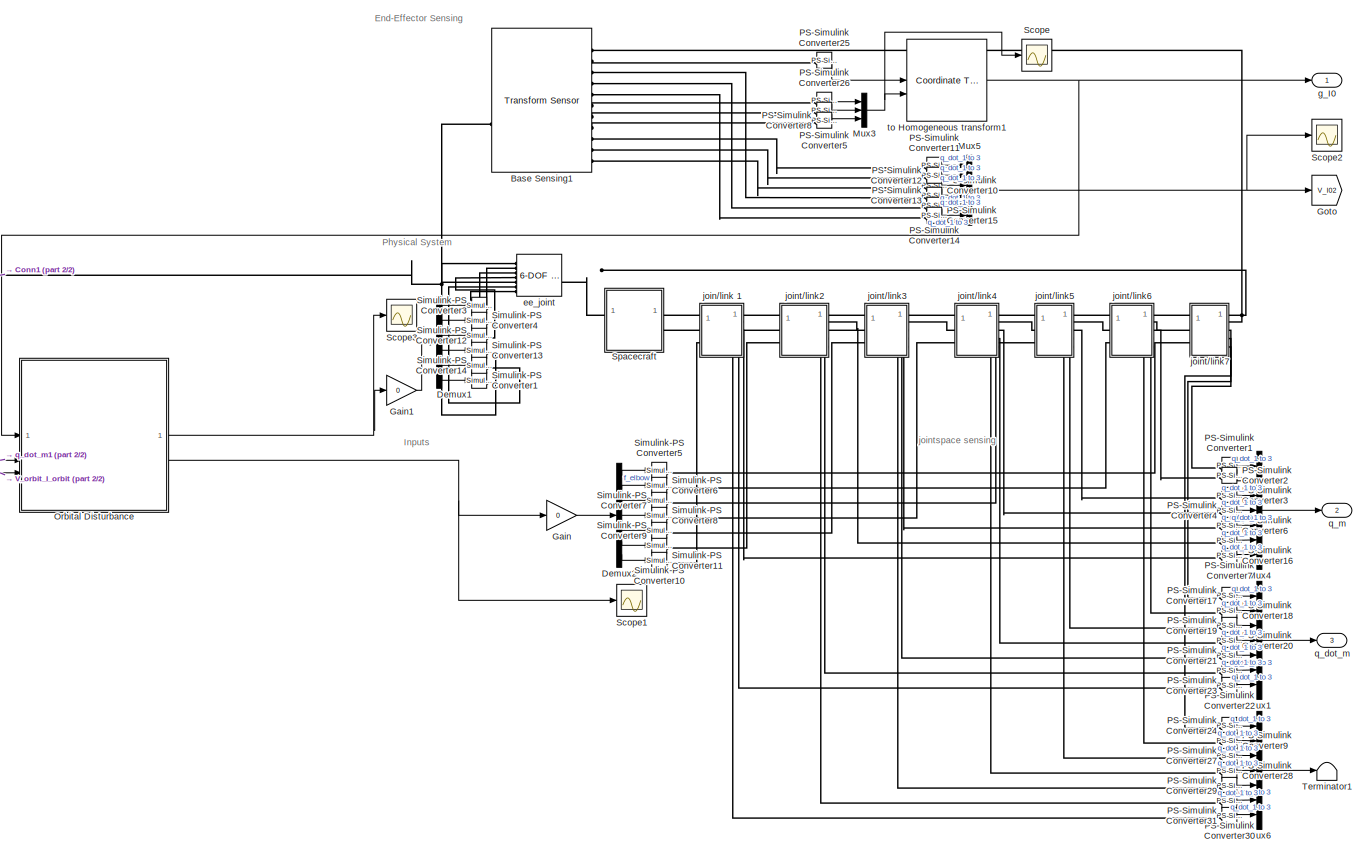
[diagram: Space Manipulator1 - part 1/2, most of the canvas]
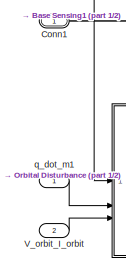
[diagram: Space Manipulator1 - part 2/2, middle left region]
BLOCK [SubSystem] Space Manipulator1
  Commented = on
  PortSchema = {"entries":[{"content":{"sides":[{"content":{"connectorIds":["In1","LConn1","In2"]},"type":"ConnectorPlacement.EquallySpacedRectSide","uuid":"653fb935-a31a-463b-bc12-fcbefcdc7b29"},{"content":{"connectorIds":["Out1","Out2","Out3"],"side":"RIGHT"},"type":"ConnectorPlacement.EquallySpacedRectSide","uuid":"ebcfea5d-8777-4016-b347-68ffd8f797ea"},{"content":{"side":"TOP"},"type":"ConnectorPlacement.Equ...<+251ch>
BLOCK [Reference] Space Manipulator1/Base Sensing1  REF=sm_lib/Frames and
Transforms/Transform
Sensor
  SourceBlock = sm_lib/Frames and\nTransforms/Transform\nSensor
  SourceType = Transform\nSensor
BLOCK [PMIOPort] Space Manipulator1/Conn1
  Side = Left
BLOCK [Demux] Space Manipulator1/Demux1
  Outputs = 6
BLOCK [Demux] Space Manipulator1/Demux2
  Outputs = 7
BLOCK [Gain] Space Manipulator1/Gain
  Gain = 0
BLOCK [Gain] Space Manipulator1/Gain1
  Gain = 0
BLOCK [Goto] Space Manipulator1/Goto
  GotoTag = V_I02
  TagVisibility = global
BLOCK [Mux] Space Manipulator1/Mux1
  DisplayOption = bar
  Inputs = 7
BLOCK [Mux] Space Manipulator1/Mux3
  DisplayOption = bar
  Inputs = 3
BLOCK [Mux] Space Manipulator1/Mux4
  DisplayOption = bar
  Inputs = 7
BLOCK [Mux] Space Manipulator1/Mux5
  DisplayOption = bar
  Inputs = 6
BLOCK [Mux] Space Manipulator1/Mux6
  DisplayOption = bar
  Inputs = 7
BLOCK [SubSystem] Space Manipulator1/Orbital Disturbance
BLOCK [BusSelector] Space Manipulator1/Orbital Disturbance/Bus Selector
  OutputSignals = M0,Mm
BLOCK [BusSelector] Space Manipulator1/Orbital Disturbance/Bus Selector1
  OutputSignals = M0
BLOCK [Constant] Space Manipulator1/Orbital Disturbance/Constant1
  Value = e_orbit
BLOCK [Constant] Space Manipulator1/Orbital Disturbance/Constant3
  Value = mu_earth
BLOCK [Constant] Space Manipulator1/Orbital Disturbance/Constant4
  Value = mu_orbit
BLOCK [Constant] Space Manipulator1/Orbital Disturbance/Constant5
  Value = theta0
BLOCK [Constant] Space Manipulator1/Orbital Disturbance/Constant6
  Value = m_tot
BLOCK [Constant] Space Manipulator1/Orbital Disturbance/Constant7
  Value = iota_orbit
BLOCK [Constant] Space Manipulator1/Orbital Disturbance/Constant8
  Value = iota0
BLOCK [Derivative] Space Manipulator1/Orbital Disturbance/Derivative
BLOCK [SubSystem] Space Manipulator1/Orbital Disturbance/F_orbit
  ErrorFcn = Stateflow.Translate.translate
  PermitHierarchicalResolution = ExplicitOnly
  SFBlockType = MATLAB Function
  TreatAsAtomicUnit = on
BLOCK [Demux] Space Manipulator1/Orbital Disturbance/F_orbit/ Demux 
  Outputs = 1
BLOCK [S-Function] Space Manipulator1/Orbital Disturbance/F_orbit/ SFunction 
  EnableBusSupport = on
  FunctionName = sf_sfun
  PortCounts = [4 2]
  SFcnIsStateOwnerBlock = off
  SFunctionDeploymentMode = off
  Tag = Stateflow S-Function 5
BLOCK [Terminator] Space Manipulator1/Orbital Disturbance/F_orbit/ Terminator 
BLOCK [Outport] Space Manipulator1/Orbital Disturbance/F_orbit/F_orbit
BLOCK [Inport] Space Manipulator1/Orbital Disturbance/F_orbit/P_dot_orbit
  Port = 2
BLOCK [Inport] Space Manipulator1/Orbital Disturbance/F_orbit/P_orbit
  Port = 3
BLOCK [Inport] Space Manipulator1/Orbital Disturbance/F_orbit/V
BLOCK [Inport] Space Manipulator1/Orbital Disturbance/F_orbit/iota0
  Port = 4
BLOCK [Outport] Space Manipulator1/Orbital Disturbance/F_orbit1
BLOCK [From] Space Manipulator1/Orbital Disturbance/From
  GotoTag = theta
  TagVisibility = global
BLOCK [From] Space Manipulator1/Orbital Disturbance/From1
  GotoTag = A_partial
  TagVisibility = global
BLOCK [From] Space Manipulator1/Orbital Disturbance/From2
  GotoTag = M0_partial
  TagVisibility = global
BLOCK [From] Space Manipulator1/Orbital Disturbance/From3
  GotoTag = Mass_Matrix
  TagVisibility = global
BLOCK [From] Space Manipulator1/Orbital Disturbance/From4
  GotoTag = V_Ie
  TagVisibility = global
BLOCK [From] Space Manipulator1/Orbital Disturbance/From5
  GotoTag = A_connection
  TagVisibility = global
BLOCK [From] Space Manipulator1/Orbital Disturbance/From6
  GotoTag = Mass_Matrix
  TagVisibility = global
BLOCK [SubSystem] Space Manipulator1/Orbital Disturbance/MATLAB Function
  ErrorFcn = Stateflow.Translate.translate
  PermitHierarchicalResolution = ExplicitOnly
  SFBlockType = MATLAB Function
  TreatAsAtomicUnit = on
BLOCK [Demux] Space Manipulator1/Orbital Disturbance/MATLAB Function/ Demux 
  Outputs = 1
BLOCK [S-Function] Space Manipulator1/Orbital Disturbance/MATLAB Function/ SFunction 
  EnableBusSupport = on
  FunctionName = sf_sfun
  PortCounts = [2 2]
  SFcnIsStateOwnerBlock = off
  SFunctionDeploymentMode = off
  Tag = Stateflow S-Function 10
BLOCK [Terminator] Space Manipulator1/Orbital Disturbance/MATLAB Function/ Terminator 
BLOCK [Outport] Space Manipulator1/Orbital Disturbance/MATLAB Function/V_Ie
BLOCK [Inport] Space Manipulator1/Orbital Disturbance/MATLAB Function/V_Ie_e
  Port = 2
BLOCK [Inport] Space Manipulator1/Orbital Disturbance/MATLAB Function/g_I0
BLOCK [SubSystem] Space Manipulator1/Orbital Disturbance/N_orbit
  ErrorFcn = Stateflow.Translate.translate
  PermitHierarchicalResolution = ExplicitOnly
  SFBlockType = MATLAB Function
  TreatAsAtomicUnit = on
BLOCK [Demux] Space Manipulator1/Orbital Disturbance/N_orbit/ Demux 
  Outputs = 1
BLOCK [S-Function] Space Manipulator1/Orbital Disturbance/N_orbit/ SFunction 
  EnableBusSupport = on
  FunctionName = sf_sfun
  PortCounts = [10 2]
  SFcnIsStateOwnerBlock = off
  SFunctionDeploymentMode = off
  Tag = Stateflow S-Function 7
BLOCK [Terminator] Space Manipulator1/Orbital Disturbance/N_orbit/ Terminator 
BLOCK [Inport] Space Manipulator1/Orbital Disturbance/N_orbit/A
  Port = 3
BLOCK [Inport] Space Manipulator1/Orbital Disturbance/N_orbit/A_partial
  Port = 7
BLOCK [Inport] Space Manipulator1/Orbital Disturbance/N_orbit/M0
  Port = 9
BLOCK [Inport] Space Manipulator1/Orbital Disturbance/N_orbit/M0_partial
  Port = 6
BLOCK [Outport] Space Manipulator1/Orbital Disturbance/N_orbit/N_orbit
BLOCK [Inport] Space Manipulator1/Orbital Disturbance/N_orbit/P_dot_orbit
  Port = 2
BLOCK [Inport] Space Manipulator1/Orbital Disturbance/N_orbit/P_orbit
  Port = 10
BLOCK [Inport] Space Manipulator1/Orbital Disturbance/N_orbit/V
  Port = 4
BLOCK [Inport] Space Manipulator1/Orbital Disturbance/N_orbit/g_orbit0
BLOCK [Inport] Space Manipulator1/Orbital Disturbance/N_orbit/iota0
  Port = 5
BLOCK [Inport] Space Manipulator1/Orbital Disturbance/N_orbit/q_dot_m
  Port = 8
BLOCK [Outport] Space Manipulator1/Orbital Disturbance/N_orbit1
  Port = 2
BLOCK [SubSystem] Space Manipulator1/Orbital Disturbance/P_dot_orbit
  ErrorFcn = Stateflow.Translate.translate
  PermitHierarchicalResolution = ExplicitOnly
  SFBlockType = MATLAB Function
  TreatAsAtomicUnit = on
BLOCK [Demux] Space Manipulator1/Orbital Disturbance/P_dot_orbit/ Demux 
  Outputs = 1
BLOCK [S-Function] Space Manipulator1/Orbital Disturbance/P_dot_orbit/ SFunction 
  EnableBusSupport = on
  FunctionName = sf_sfun
  PortCounts = [10 2]
  SFcnIsStateOwnerBlock = off
  SFunctionDeploymentMode = off
  Tag = Stateflow S-Function 1
BLOCK [Terminator] Space Manipulator1/Orbital Disturbance/P_dot_orbit/ Terminator 
BLOCK [Inport] Space Manipulator1/Orbital Disturbance/P_dot_orbit/M0
  Port = 8
BLOCK [Inport] Space Manipulator1/Orbital Disturbance/P_dot_orbit/M0_partial
BLOCK [Outport] Space Manipulator1/Orbital Disturbance/P_dot_orbit/P_dot_orbit
BLOCK [Inport] Space Manipulator1/Orbital Disturbance/P_dot_orbit/V0
  Port = 5
BLOCK [Inport] Space Manipulator1/Orbital Disturbance/P_dot_orbit/V_dot_orbit_curly
  Port = 6
BLOCK [Inport] Space Manipulator1/Orbital Disturbance/P_dot_orbit/V_orbit_curly
  Port = 4
BLOCK [Inport] Space Manipulator1/Orbital Disturbance/P_dot_orbit/g_orbit0
  Port = 3
BLOCK [Inport] Space Manipulator1/Orbital Disturbance/P_dot_orbit/iota_orbit
  Port = 10
BLOCK [Inport] Space Manipulator1/Orbital Disturbance/P_dot_orbit/mu_earth
  Port = 7
BLOCK [Inport] Space Manipulator1/Orbital Disturbance/P_dot_orbit/mu_orbit
  Port = 9
BLOCK [Inport] Space Manipulator1/Orbital Disturbance/P_dot_orbit/q_dot_m
  Port = 2
BLOCK [SubSystem] Space Manipulator1/Orbital Disturbance/P_dot_orbitorbit
  Commented = on
  ErrorFcn = Stateflow.Translate.translate
  PermitHierarchicalResolution = ExplicitOnly
  SFBlockType = MATLAB Function
  TreatAsAtomicUnit = on
BLOCK [Demux] Space Manipulator1/Orbital Disturbance/P_dot_orbitorbit/ Demux 
  Outputs = 1
BLOCK [S-Function] Space Manipulator1/Orbital Disturbance/P_dot_orbitorbit/ SFunction 
  EnableBusSupport = on
  FunctionName = sf_sfun
  PortCounts = [7 2]
  SFcnIsStateOwnerBlock = off
  SFunctionDeploymentMode = off
  Tag = Stateflow S-Function 6
BLOCK [Terminator] Space Manipulator1/Orbital Disturbance/P_dot_orbitorbit/ Terminator 
BLOCK [Outport] Space Manipulator1/Orbital Disturbance/P_dot_orbitorbit/P_dot_orbitorbit
BLOCK [Inport] Space Manipulator1/Orbital Disturbance/P_dot_orbitorbit/e_orbit
  Port = 3
BLOCK [Inport] Space Manipulator1/Orbital Disturbance/P_dot_orbitorbit/iota_orbit
  Port = 7
BLOCK [Inport] Space Manipulator1/Orbital Disturbance/P_dot_orbitorbit/m_tot
  Port = 2
BLOCK [Inport] Space Manipulator1/Orbital Disturbance/P_dot_orbitorbit/mu_earth
BLOCK [Inport] Space Manipulator1/Orbital Disturbance/P_dot_orbitorbit/mu_orbit
  Port = 6
BLOCK [Inport] Space Manipulator1/Orbital Disturbance/P_dot_orbitorbit/theta
  Port = 4
BLOCK [Inport] Space Manipulator1/Orbital Disturbance/P_dot_orbitorbit/theta0
  Port = 5
BLOCK [SubSystem] Space Manipulator1/Orbital Disturbance/P_orbit
  Commented = on
  ErrorFcn = Stateflow.Translate.translate
  PermitHierarchicalResolution = ExplicitOnly
  SFBlockType = MATLAB Function
  TreatAsAtomicUnit = on
BLOCK [Demux] Space Manipulator1/Orbital Disturbance/P_orbit/ Demux 
  Outputs = 1
BLOCK [S-Function] Space Manipulator1/Orbital Disturbance/P_orbit/ SFunction 
  EnableBusSupport = on
  FunctionName = sf_sfun
  PortCounts = [2 2]
  SFcnIsStateOwnerBlock = off
  SFunctionDeploymentMode = off
  Tag = Stateflow S-Function 8
BLOCK [Terminator] Space Manipulator1/Orbital Disturbance/P_orbit/ Terminator 
BLOCK [Outport] Space Manipulator1/Orbital Disturbance/P_orbit/P_orbit
BLOCK [Inport] Space Manipulator1/Orbital Disturbance/P_orbit/P_orbitorbit
  Port = 2
BLOCK [Inport] Space Manipulator1/Orbital Disturbance/P_orbit/g_orbit0
BLOCK [SubSystem] Space Manipulator1/Orbital Disturbance/P_orbit1
  ErrorFcn = Stateflow.Translate.translate
  PermitHierarchicalResolution = ExplicitOnly
  SFBlockType = MATLAB Function
  TreatAsAtomicUnit = on
BLOCK [Demux] Space Manipulator1/Orbital Disturbance/P_orbit1/ Demux 
  Outputs = 1
BLOCK [S-Function] Space Manipulator1/Orbital Disturbance/P_orbit1/ SFunction 
  EnableBusSupport = on
  FunctionName = sf_sfun
  PortCounts = [4 2]
  SFcnIsStateOwnerBlock = off
  SFunctionDeploymentMode = off
  Tag = Stateflow S-Function 2
BLOCK [Terminator] Space Manipulator1/Orbital Disturbance/P_orbit1/ Terminator 
BLOCK [Inport] Space Manipulator1/Orbital Disturbance/P_orbit1/M0
  Port = 4
BLOCK [Outport] Space Manipulator1/Orbital Disturbance/P_orbit1/P_orbit
BLOCK [Inport] Space Manipulator1/Orbital Disturbance/P_orbit1/V
  Port = 2
BLOCK [Inport] Space Manipulator1/Orbital Disturbance/P_orbit1/g_orbit0
BLOCK [Inport] Space Manipulator1/Orbital Disturbance/P_orbit1/iota_orbit
  Port = 3
BLOCK [SubSystem] Space Manipulator1/Orbital Disturbance/P_orbitorbit
  Commented = on
  ErrorFcn = Stateflow.Translate.translate
  PermitHierarchicalResolution = ExplicitOnly
  SFBlockType = MATLAB Function
  TreatAsAtomicUnit = on
BLOCK [Demux] Space Manipulator1/Orbital Disturbance/P_orbitorbit/ Demux 
  Outputs = 1
BLOCK [S-Function] Space Manipulator1/Orbital Disturbance/P_orbitorbit/ SFunction 
  EnableBusSupport = on
  FunctionName = sf_sfun
  PortCounts = [6 2]
  SFcnIsStateOwnerBlock = off
  SFunctionDeploymentMode = off
  Tag = Stateflow S-Function 9
BLOCK [Terminator] Space Manipulator1/Orbital Disturbance/P_orbitorbit/ Terminator 
BLOCK [Outport] Space Manipulator1/Orbital Disturbance/P_orbitorbit/P_orbitorbit
BLOCK [Inport] Space Manipulator1/Orbital Disturbance/P_orbitorbit/e_orbit
  Port = 6
BLOCK [Inport] Space Manipulator1/Orbital Disturbance/P_orbitorbit/iota_orbit
BLOCK [Inport] Space Manipulator1/Orbital Disturbance/P_orbitorbit/m_tot
  Port = 3
BLOCK [Inport] Space Manipulator1/Orbital Disturbance/P_orbitorbit/mu_earth
  Port = 2
BLOCK [Inport] Space Manipulator1/Orbital Disturbance/P_orbitorbit/mu_orbit
  Port = 5
BLOCK [Inport] Space Manipulator1/Orbital Disturbance/P_orbitorbit/theta
  Port = 4
BLOCK [Scope] Space Manipulator1/Orbital Disturbance/Scope1
  Floating = off
  NumInputPorts = 1
  ScopeSpecificationString = Simulink.scopes.TimeScopeBlockCfg('CurrentConfiguration', extmgr.ConfigurationSet(extmgr.Configuration('Core','General UI',true),extmgr.Configuration('Core','Source UI',true),extmgr.Configuration('Sources','WiredSimulink',true,'DataLoggingVariableName','ScopeData11'),extmgr.Configuration('Visuals','Time Domain',true,'SerializedDisplays',{struct('MinYLimReal','-985.71138','MaxYLimReal','598.38643',...<+1864ch>
BLOCK [Scope] Space Manipulator1/Orbital Disturbance/Scope2
  Commented = on
  Floating = off
  NumInputPorts = 1
  ScopeSpecificationString = Simulink.scopes.TimeScopeBlockCfg('CurrentConfiguration', extmgr.ConfigurationSet(extmgr.Configuration('Core','General UI',true),extmgr.Configuration('Core','Source UI',true),extmgr.Configuration('Sources','WiredSimulink',true,'DataLoggingVariableName','ScopeData2'),extmgr.Configuration('Visuals','Time Domain',true,'SerializedDisplays',{struct('MinYLimReal','-16203684400.44413','MaxYLimReal','1458...<+2043ch>
BLOCK [Scope] Space Manipulator1/Orbital Disturbance/Scope3
  Floating = off
  NumInputPorts = 1
  ScopeSpecificationString = Simulink.scopes.TimeScopeBlockCfg('CurrentConfiguration', extmgr.ConfigurationSet(extmgr.Configuration('Core','General UI',true),extmgr.Configuration('Core','Source UI',true),extmgr.Configuration('Sources','WiredSimulink',true,'DataLoggingVariableName','ScopeData7'),extmgr.Configuration('Visuals','Time Domain',true,'SerializedDisplays',{struct('MinYLimReal','-26360.1319','MaxYLimReal','15779.34158...<+1893ch>
BLOCK [Terminator] Space Manipulator1/Orbital Disturbance/Terminator
BLOCK [Inport] Space Manipulator1/Orbital Disturbance/V_orbit_I_orbit
  Port = 3
BLOCK [Inport] Space Manipulator1/Orbital Disturbance/g_orbit0
BLOCK [Inport] Space Manipulator1/Orbital Disturbance/q_dot_m1
  Port = 2
BLOCK [Reference] Space Manipulator1/PS-Simulink Converter1  REF=nesl_utility/PS-Simulink
Converter
  SourceBlock = nesl_utility/PS-Simulink\nConverter
  SourceType = PS-Simulink\nConverter
BLOCK [Reference] Space Manipulator1/PS-Simulink Converter10  REF=nesl_utility/PS-Simulink
Converter
  SourceBlock = nesl_utility/PS-Simulink\nConverter
  SourceType = PS-Simulink\nConverter
BLOCK [Reference] Space Manipulator1/PS-Simulink Converter11  REF=nesl_utility/PS-Simulink
Converter
  SourceBlock = nesl_utility/PS-Simulink\nConverter
  SourceType = PS-Simulink\nConverter
BLOCK [Reference] Space Manipulator1/PS-Simulink Converter12  REF=nesl_utility/PS-Simulink
Converter
  SourceBlock = nesl_utility/PS-Simulink\nConverter
  SourceType = PS-Simulink\nConverter
BLOCK [Reference] Space Manipulator1/PS-Simulink Converter13  REF=nesl_utility/PS-Simulink
Converter
  SourceBlock = nesl_utility/PS-Simulink\nConverter
  SourceType = PS-Simulink\nConverter
BLOCK [Reference] Space Manipulator1/PS-Simulink Converter14  REF=nesl_utility/PS-Simulink
Converter
  SourceBlock = nesl_utility/PS-Simulink\nConverter
  SourceType = PS-Simulink\nConverter
BLOCK [Reference] Space Manipulator1/PS-Simulink Converter15  REF=nesl_utility/PS-Simulink
Converter
  SourceBlock = nesl_utility/PS-Simulink\nConverter
  SourceType = PS-Simulink\nConverter
BLOCK [Reference] Space Manipulator1/PS-Simulink Converter16  REF=nesl_utility/PS-Simulink
Converter
  SourceBlock = nesl_utility/PS-Simulink\nConverter
  SourceType = PS-Simulink\nConverter
BLOCK [Reference] Space Manipulator1/PS-Simulink Converter17  REF=nesl_utility/PS-Simulink
Converter
  SourceBlock = nesl_utility/PS-Simulink\nConverter
  SourceType = PS-Simulink\nConverter
BLOCK [Reference] Space Manipulator1/PS-Simulink Converter18  REF=nesl_utility/PS-Simulink
Converter
  SourceBlock = nesl_utility/PS-Simulink\nConverter
  SourceType = PS-Simulink\nConverter
BLOCK [Reference] Space Manipulator1/PS-Simulink Converter19  REF=nesl_utility/PS-Simulink
Converter
  SourceBlock = nesl_utility/PS-Simulink\nConverter
  SourceType = PS-Simulink\nConverter
BLOCK [Reference] Space Manipulator1/PS-Simulink Converter2  REF=nesl_utility/PS-Simulink
Converter
  SourceBlock = nesl_utility/PS-Simulink\nConverter
  SourceType = PS-Simulink\nConverter
BLOCK [Reference] Space Manipulator1/PS-Simulink Converter20  REF=nesl_utility/PS-Simulink
Converter
  SourceBlock = nesl_utility/PS-Simulink\nConverter
  SourceType = PS-Simulink\nConverter
BLOCK [Reference] Space Manipulator1/PS-Simulink Converter21  REF=nesl_utility/PS-Simulink
Converter
  SourceBlock = nesl_utility/PS-Simulink\nConverter
  SourceType = PS-Simulink\nConverter
BLOCK [Reference] Space Manipulator1/PS-Simulink Converter22  REF=nesl_utility/PS-Simulink
Converter
  SourceBlock = nesl_utility/PS-Simulink\nConverter
  SourceType = PS-Simulink\nConverter
BLOCK [Reference] Space Manipulator1/PS-Simulink Converter23  REF=nesl_utility/PS-Simulink
Converter
  SourceBlock = nesl_utility/PS-Simulink\nConverter
  SourceType = PS-Simulink\nConverter
BLOCK [Reference] Space Manipulator1/PS-Simulink Converter24  REF=nesl_utility/PS-Simulink
Converter
  SourceBlock = nesl_utility/PS-Simulink\nConverter
  SourceType = PS-Simulink\nConverter
BLOCK [Reference] Space Manipulator1/PS-Simulink Converter25  REF=nesl_utility/PS-Simulink
Converter
  SourceBlock = nesl_utility/PS-Simulink\nConverter
  SourceType = PS-Simulink\nConverter
BLOCK [Reference] Space Manipulator1/PS-Simulink Converter26  REF=nesl_utility/PS-Simulink
Converter
  SourceBlock = nesl_utility/PS-Simulink\nConverter
  SourceType = PS-Simulink\nConverter
BLOCK [Reference] Space Manipulator1/PS-Simulink Converter27  REF=nesl_utility/PS-Simulink
Converter
  SourceBlock = nesl_utility/PS-Simulink\nConverter
  SourceType = PS-Simulink\nConverter
BLOCK [Reference] Space Manipulator1/PS-Simulink Converter28  REF=nesl_utility/PS-Simulink
Converter
  SourceBlock = nesl_utility/PS-Simulink\nConverter
  SourceType = PS-Simulink\nConverter
BLOCK [Reference] Space Manipulator1/PS-Simulink Converter29  REF=nesl_utility/PS-Simulink
Converter
  SourceBlock = nesl_utility/PS-Simulink\nConverter
  SourceType = PS-Simulink\nConverter
BLOCK [Reference] Space Manipulator1/PS-Simulink Converter3  REF=nesl_utility/PS-Simulink
Converter
  SourceBlock = nesl_utility/PS-Simulink\nConverter
  SourceType = PS-Simulink\nConverter
BLOCK [Reference] Space Manipulator1/PS-Simulink Converter30  REF=nesl_utility/PS-Simulink
Converter
  SourceBlock = nesl_utility/PS-Simulink\nConverter
  SourceType = PS-Simulink\nConverter
BLOCK [Reference] Space Manipulator1/PS-Simulink Converter31  REF=nesl_utility/PS-Simulink
Converter
  SourceBlock = nesl_utility/PS-Simulink\nConverter
  SourceType = PS-Simulink\nConverter
BLOCK [Reference] Space Manipulator1/PS-Simulink Converter4  REF=nesl_utility/PS-Simulink
Converter
  SourceBlock = nesl_utility/PS-Simulink\nConverter
  SourceType = PS-Simulink\nConverter
BLOCK [Reference] Space Manipulator1/PS-Simulink Converter5  REF=nesl_utility/PS-Simulink
Converter
  SourceBlock = nesl_utility/PS-Simulink\nConverter
  SourceType = PS-Simulink\nConverter
BLOCK [Reference] Space Manipulator1/PS-Simulink Converter6  REF=nesl_utility/PS-Simulink
Converter
  SourceBlock = nesl_utility/PS-Simulink\nConverter
  SourceType = PS-Simulink\nConverter
BLOCK [Reference] Space Manipulator1/PS-Simulink Converter7  REF=nesl_utility/PS-Simulink
Converter
  SourceBlock = nesl_utility/PS-Simulink\nConverter
  SourceType = PS-Simulink\nConverter
BLOCK [Reference] Space Manipulator1/PS-Simulink Converter8  REF=nesl_utility/PS-Simulink
Converter
  SourceBlock = nesl_utility/PS-Simulink\nConverter
  SourceType = PS-Simulink\nConverter
BLOCK [Reference] Space Manipulator1/PS-Simulink Converter9  REF=nesl_utility/PS-Simulink
Converter
  SourceBlock = nesl_utility/PS-Simulink\nConverter
  SourceType = PS-Simulink\nConverter
BLOCK [Scope] Space Manipulator1/Scope
  Floating = off
  NumInputPorts = 1
  ScopeSpecificationString = Simulink.scopes.TimeScopeBlockCfg('CurrentConfiguration', extmgr.ConfigurationSet(extmgr.Configuration('Core','General UI',true),extmgr.Configuration('Core','Source UI',true),extmgr.Configuration('Sources','WiredSimulink',true,'DataLoggingVariableName','ScopeData1'),extmgr.Configuration('Visuals','Time Domain',true,'SerializedDisplays',{struct('MinYLimReal','-0.12652','MaxYLimReal','0.04933','YLab...<+1841ch>
BLOCK [Scope] Space Manipulator1/Scope1
  Floating = off
  NumInputPorts = 1
  ScopeSpecificationString = Simulink.scopes.TimeScopeBlockCfg('CurrentConfiguration', extmgr.ConfigurationSet(extmgr.Configuration('Core','General UI',true),extmgr.Configuration('Core','Source UI',true),extmgr.Configuration('Sources','WiredSimulink',true,'DataLoggingVariableName','ScopeData1'),extmgr.Configuration('Visuals','Time Domain',true,'SerializedDisplays',{struct('MinYLimReal','-11294.29278','MaxYLimReal','7808.04524...<+2023ch>
BLOCK [Scope] Space Manipulator1/Scope2
  Floating = off
  NumInputPorts = 1
  ScopeSpecificationString = Simulink.scopes.TimeScopeBlockCfg('CurrentConfiguration', extmgr.ConfigurationSet(extmgr.Configuration('Core','General UI',true),extmgr.Configuration('Core','Source UI',true),extmgr.Configuration('Sources','WiredSimulink',true,'DataLoggingVariableName','ScopeData2'),extmgr.Configuration('Visuals','Time Domain',true,'SerializedDisplays',{struct('MinYLimReal','-0.03616','MaxYLimReal','0.02513','YLab...<+1860ch>
BLOCK [Scope] Space Manipulator1/Scope3
  Floating = off
  NumInputPorts = 1
  ScopeSpecificationString = Simulink.scopes.TimeScopeBlockCfg('CurrentConfiguration', extmgr.ConfigurationSet(extmgr.Configuration('Core','General UI',true),extmgr.Configuration('Core','Source UI',true),extmgr.Configuration('Sources','WiredSimulink',true,'DataLoggingVariableName','ScopeData3'),extmgr.Configuration('Visuals','Time Domain',true,'SerializedDisplays',{struct('MinYLimReal','-15779.39066','MaxYLimReal','26360.1373...<+1993ch>
BLOCK [Reference] Space Manipulator1/Simulink-PS Converter1  REF=nesl_utility/Simulink-PS
Converter
  SourceBlock = nesl_utility/Simulink-PS\nConverter
  SourceType = Simulink-PS\nConverter
BLOCK [Reference] Space Manipulator1/Simulink-PS Converter10  REF=nesl_utility/Simulink-PS
Converter
  SourceBlock = nesl_utility/Simulink-PS\nConverter
  SourceType = Simulink-PS\nConverter
BLOCK [Reference] Space Manipulator1/Simulink-PS Converter11  REF=nesl_utility/Simulink-PS
Converter
  SourceBlock = nesl_utility/Simulink-PS\nConverter
  SourceType = Simulink-PS\nConverter
BLOCK [Reference] Space Manipulator1/Simulink-PS Converter12  REF=nesl_utility/Simulink-PS
Converter
  SourceBlock = nesl_utility/Simulink-PS\nConverter
  SourceType = Simulink-PS\nConverter
BLOCK [Reference] Space Manipulator1/Simulink-PS Converter13  REF=nesl_utility/Simulink-PS
Converter
  SourceBlock = nesl_utility/Simulink-PS\nConverter
  SourceType = Simulink-PS\nConverter
BLOCK [Reference] Space Manipulator1/Simulink-PS Converter14  REF=nesl_utility/Simulink-PS
Converter
  SourceBlock = nesl_utility/Simulink-PS\nConverter
  SourceType = Simulink-PS\nConverter
BLOCK [Reference] Space Manipulator1/Simulink-PS Converter3  REF=nesl_utility/Simulink-PS
Converter
  SourceBlock = nesl_utility/Simulink-PS\nConverter
  SourceType = Simulink-PS\nConverter
BLOCK [Reference] Space Manipulator1/Simulink-PS Converter4  REF=nesl_utility/Simulink-PS
Converter
  SourceBlock = nesl_utility/Simulink-PS\nConverter
  SourceType = Simulink-PS\nConverter
BLOCK [Reference] Space Manipulator1/Simulink-PS Converter5  REF=nesl_utility/Simulink-PS
Converter
  SourceBlock = nesl_utility/Simulink-PS\nConverter
  SourceType = Simulink-PS\nConverter
BLOCK [Reference] Space Manipulator1/Simulink-PS Converter6  REF=nesl_utility/Simulink-PS
Converter
  SourceBlock = nesl_utility/Simulink-PS\nConverter
  SourceType = Simulink-PS\nConverter
BLOCK [Reference] Space Manipulator1/Simulink-PS Converter7  REF=nesl_utility/Simulink-PS
Converter
  SourceBlock = nesl_utility/Simulink-PS\nConverter
  SourceType = Simulink-PS\nConverter
BLOCK [Reference] Space Manipulator1/Simulink-PS Converter8  REF=nesl_utility/Simulink-PS
Converter
  SourceBlock = nesl_utility/Simulink-PS\nConverter
  SourceType = Simulink-PS\nConverter
BLOCK [Reference] Space Manipulator1/Simulink-PS Converter9  REF=nesl_utility/Simulink-PS
Converter
  SourceBlock = nesl_utility/Simulink-PS\nConverter
  SourceType = Simulink-PS\nConverter
BLOCK [SubSystem] Space Manipulator1/Spacecraft
BLOCK [Reference] Space Manipulator1/Spacecraft/Band-Limited White Noise  REF=simulink/Sources/Band-Limited
White Noise
  Commented = on
  SourceBlock = simulink/Sources/Band-Limited\nWhite Noise
  SourceType = Band-Limited White Noise.
BLOCK [Reference] Space Manipulator1/Spacecraft/Band-Limited White Noise1  REF=simulink/Sources/Band-Limited
White Noise
  Commented = on
  SourceBlock = simulink/Sources/Band-Limited\nWhite Noise
  SourceType = Band-Limited White Noise.
BLOCK [Reference] Space Manipulator1/Spacecraft/Band-Limited White Noise2  REF=simulink/Sources/Band-Limited
White Noise
  Commented = on
  SourceBlock = simulink/Sources/Band-Limited\nWhite Noise
  SourceType = Band-Limited White Noise.
BLOCK [Reference] Space Manipulator1/Spacecraft/Band-Limited White Noise3  REF=simulink/Sources/Band-Limited
White Noise
  Commented = on
  SourceBlock = simulink/Sources/Band-Limited\nWhite Noise
  SourceType = Band-Limited White Noise.
BLOCK [Reference] Space Manipulator1/Spacecraft/Band-Limited White Noise4  REF=simulink/Sources/Band-Limited
White Noise
  Commented = on
  SourceBlock = simulink/Sources/Band-Limited\nWhite Noise
  SourceType = Band-Limited White Noise.
BLOCK [Reference] Space Manipulator1/Spacecraft/Band-Limited White Noise5  REF=simulink/Sources/Band-Limited
White Noise
  Commented = on
  SourceBlock = simulink/Sources/Band-Limited\nWhite Noise
  SourceType = Band-Limited White Noise.
BLOCK [Reference] Space Manipulator1/Spacecraft/Base1  REF=sm_lib/Body Elements/Brick Solid
  SourceBlock = sm_lib/Body Elements/Brick Solid
  SourceType = Brick Solid
BLOCK [Reference] Space Manipulator1/Spacecraft/Base2  REF=sm_lib/Body Elements/Brick Solid
  Commented = on
  SourceBlock = sm_lib/Body Elements/Brick Solid
  SourceType = Brick Solid
BLOCK [Reference] Space Manipulator1/Spacecraft/Cylindrical Solid  REF=sm_lib/Body Elements/Cylindrical Solid
  NameLocation = right
  SourceBlock = sm_lib/Body Elements/Cylindrical Solid
  SourceType = Cylindrical Solid
BLOCK [Reference] Space Manipulator1/Spacecraft/External Force and Torque  REF=sm_lib/Forces and
Torques/External Force
and Torque
  Commented = on
  SourceBlock = sm_lib/Forces and\nTorques/External Force\nand Torque
  SourceType = External Force\nand Torque
BLOCK [PMIOPort] Space Manipulator1/Spacecraft/F
  Side = Left
BLOCK [PMIOPort] Space Manipulator1/Spacecraft/F1
  Port = 2
  Side = Right
BLOCK [Reference] Space Manipulator1/Spacecraft/Inertia  REF=sm_lib/Body Elements/Inertia
  NameLocation = top
  SourceBlock = sm_lib/Body Elements/Inertia
  SourceType = Inertia
BLOCK [Scope] Space Manipulator1/Spacecraft/Scope
  Commented = on
  Floating = off
  NumInputPorts = 1
  ScopeSpecificationString = Simulink.scopes.TimeScopeBlockCfg('CurrentConfiguration', extmgr.ConfigurationSet(extmgr.Configuration('Core','General UI',true),extmgr.Configuration('Core','Source UI',true),extmgr.Configuration('Sources','WiredSimulink',true,'DataLoggingVariableName','ScopeData1'),extmgr.Configuration('Visuals','Time Domain',true,'SerializedDisplays',{struct('MinYLimReal','-0.0411','MaxYLimReal','0.04205','YLabe...<+1471ch>
BLOCK [Reference] Space Manipulator1/Spacecraft/Simulink-PS Converter1  REF=nesl_utility/Simulink-PS
Converter
  Commented = on
  SourceBlock = nesl_utility/Simulink-PS\nConverter
  SourceType = Simulink-PS\nConverter
BLOCK [Reference] Space Manipulator1/Spacecraft/Simulink-PS Converter2  REF=nesl_utility/Simulink-PS
Converter
  Commented = on
  SourceBlock = nesl_utility/Simulink-PS\nConverter
  SourceType = Simulink-PS\nConverter
BLOCK [Reference] Space Manipulator1/Spacecraft/Simulink-PS Converter3  REF=nesl_utility/Simulink-PS
Converter
  Commented = on
  SourceBlock = nesl_utility/Simulink-PS\nConverter
  SourceType = Simulink-PS\nConverter
BLOCK [Reference] Space Manipulator1/Spacecraft/Simulink-PS Converter4  REF=nesl_utility/Simulink-PS
Converter
  Commented = on
  SourceBlock = nesl_utility/Simulink-PS\nConverter
  SourceType = Simulink-PS\nConverter
BLOCK [Reference] Space Manipulator1/Spacecraft/Simulink-PS Converter5  REF=nesl_utility/Simulink-PS
Converter
  Commented = on
  SourceBlock = nesl_utility/Simulink-PS\nConverter
  SourceType = Simulink-PS\nConverter
BLOCK [Reference] Space Manipulator1/Spacecraft/Simulink-PS Converter6  REF=nesl_utility/Simulink-PS
Converter
  Commented = on
  SourceBlock = nesl_utility/Simulink-PS\nConverter
  SourceType = Simulink-PS\nConverter
BLOCK [Reference] Space Manipulator1/Spacecraft/Visual  REF=sm_lib/Body Elements/File Solid
  Commented = on
  SourceBlock = sm_lib/Body Elements/File Solid
  SourceType = File Solid
BLOCK [Reference] Space Manipulator1/Spacecraft/VisualOriginTransform  REF=sm_lib/Frames and
Transforms/Rigid
Transform
  SourceBlock = sm_lib/Frames and\nTransforms/Rigid\nTransform
  SourceType = Rigid\nTransform
BLOCK [Reference] Space Manipulator1/Spacecraft/iiwa_joint_2_OriginTransform  REF=sm_lib/Frames and
Transforms/Rigid
Transform
  NameLocation = top
  SourceBlock = sm_lib/Frames and\nTransforms/Rigid\nTransform
  SourceType = Rigid\nTransform
BLOCK [Terminator] Space Manipulator1/Terminator1
BLOCK [Inport] Space Manipulator1/V_orbit_I_orbit
  Port = 2
BLOCK [Reference] Space Manipulator1/ee_joint  REF=sm_lib/Joints/6-DOF Joint
  SourceBlock = sm_lib/Joints/6-DOF Joint
  SourceType = 6-DOF Joint
BLOCK [Outport] Space Manipulator1/g_I0
BLOCK [SubSystem] Space Manipulator1/join//link 1
BLOCK [PMIOPort] Space Manipulator1/join//link 1/F1
  Port = 3
  Side = Right
BLOCK [PMIOPort] Space Manipulator1/join//link 1/b
  Side = Left
BLOCK [PMIOPort] Space Manipulator1/join//link 1/f1
  Port = 2
  Side = Left
BLOCK [Reference] Space Manipulator1/join//link 1/iiwa_joint_1  REF=sm_lib/Joints/Revolute Joint
  SourceBlock = sm_lib/Joints/Revolute Joint
  SourceType = Revolute Joint
BLOCK [SubSystem] Space Manipulator1/join//link 1/iiwa_link_1
BLOCK [PMIOPort] Space Manipulator1/join//link 1/iiwa_link_1/F
  Side = Left
BLOCK [PMIOPort] Space Manipulator1/join//link 1/iiwa_link_1/F1
  Port = 2
  Side = Right
BLOCK [Reference] Space Manipulator1/join//link 1/iiwa_link_1/Inertia  REF=sm_lib/Body Elements/Inertia
  NameLocation = top
  SourceBlock = sm_lib/Body Elements/Inertia
  SourceType = Inertia
BLOCK [Reference] Space Manipulator1/join//link 1/iiwa_link_1/Visual  REF=sm_lib/Body Elements/File Solid
  SourceBlock = sm_lib/Body Elements/File Solid
  SourceType = File Solid
BLOCK [Reference] Space Manipulator1/join//link 1/iiwa_link_1/VisualOriginTransform  REF=sm_lib/Frames and
Transforms/Rigid
Transform
  SourceBlock = sm_lib/Frames and\nTransforms/Rigid\nTransform
  SourceType = Rigid\nTransform
BLOCK [Reference] Space Manipulator1/join//link 1/iiwa_link_1/iiwa_joint_2_OriginTransform  REF=sm_lib/Frames and
Transforms/Rigid
Transform
  NameLocation = top
  SourceBlock = sm_lib/Frames and\nTransforms/Rigid\nTransform
  SourceType = Rigid\nTransform
BLOCK [PMIOPort] Space Manipulator1/join//link 1/q1
  Port = 4
  Side = Right
BLOCK [PMIOPort] Space Manipulator1/join//link 1/qd1
  Port = 5
  Side = Right
BLOCK [PMIOPort] Space Manipulator1/join//link 1/qdd1
  Port = 6
  Side = Right
BLOCK [SubSystem] Space Manipulator1/joint//link2
BLOCK [PMIOPort] Space Manipulator1/joint//link2/F1
  Port = 2
  Side = Right
BLOCK [PMIOPort] Space Manipulator1/joint//link2/b
  Side = Left
BLOCK [PMIOPort] Space Manipulator1/joint//link2/f2
  Port = 3
  Side = Left
BLOCK [Reference] Space Manipulator1/joint//link2/iiwa_joint_2  REF=sm_lib/Joints/Revolute Joint
  SourceBlock = sm_lib/Joints/Revolute Joint
  SourceType = Revolute Joint
BLOCK [SubSystem] Space Manipulator1/joint//link2/iiwa_link_2
BLOCK [PMIOPort] Space Manipulator1/joint//link2/iiwa_link_2/F
  Side = Left
BLOCK [PMIOPort] Space Manipulator1/joint//link2/iiwa_link_2/F1
  Port = 2
  Side = Right
BLOCK [Reference] Space Manipulator1/joint//link2/iiwa_link_2/Inertia  REF=sm_lib/Body Elements/Inertia
  NameLocation = top
  SourceBlock = sm_lib/Body Elements/Inertia
  SourceType = Inertia
BLOCK [Reference] Space Manipulator1/joint//link2/iiwa_link_2/Visual  REF=sm_lib/Body Elements/File Solid
  NameLocation = top
  SourceBlock = sm_lib/Body Elements/File Solid
  SourceType = File Solid
BLOCK [Reference] Space Manipulator1/joint//link2/iiwa_link_2/VisualOriginTransform  REF=sm_lib/Frames and
Transforms/Rigid
Transform
  SourceBlock = sm_lib/Frames and\nTransforms/Rigid\nTransform
  SourceType = Rigid\nTransform
BLOCK [Reference] Space Manipulator1/joint//link2/iiwa_link_2/iiwa_joint_3_OriginTransform  REF=sm_lib/Frames and
Transforms/Rigid
Transform
  NameLocation = top
  SourceBlock = sm_lib/Frames and\nTransforms/Rigid\nTransform
  SourceType = Rigid\nTransform
BLOCK [PMIOPort] Space Manipulator1/joint//link2/q2
  Port = 4
  Side = Right
BLOCK [PMIOPort] Space Manipulator1/joint//link2/qd2
  Port = 5
  Side = Right
BLOCK [PMIOPort] Space Manipulator1/joint//link2/qdd2
  Port = 6
  Side = Right
BLOCK [SubSystem] Space Manipulator1/joint//link3
BLOCK [PMIOPort] Space Manipulator1/joint//link3/F1
  Port = 2
  Side = Right
BLOCK [PMIOPort] Space Manipulator1/joint//link3/b
  Side = Left
BLOCK [PMIOPort] Space Manipulator1/joint//link3/f3
  Port = 3
  Side = Left
BLOCK [Reference] Space Manipulator1/joint//link3/iiwa_joint_3  REF=sm_lib/Joints/Revolute Joint
  SourceBlock = sm_lib/Joints/Revolute Joint
  SourceType = Revolute Joint
BLOCK [SubSystem] Space Manipulator1/joint//link3/iiwa_link_3
BLOCK [PMIOPort] Space Manipulator1/joint//link3/iiwa_link_3/F
  Side = Left
BLOCK [PMIOPort] Space Manipulator1/joint//link3/iiwa_link_3/F1
  Port = 2
  Side = Right
BLOCK [Reference] Space Manipulator1/joint//link3/iiwa_link_3/Inertia  REF=sm_lib/Body Elements/Inertia
  SourceBlock = sm_lib/Body Elements/Inertia
  SourceType = Inertia
BLOCK [Reference] Space Manipulator1/joint//link3/iiwa_link_3/Visual  REF=sm_lib/Body Elements/File Solid
  SourceBlock = sm_lib/Body Elements/File Solid
  SourceType = File Solid
BLOCK [Reference] Space Manipulator1/joint//link3/iiwa_link_3/VisualOriginTransform  REF=sm_lib/Frames and
Transforms/Rigid
Transform
  SourceBlock = sm_lib/Frames and\nTransforms/Rigid\nTransform
  SourceType = Rigid\nTransform
BLOCK [Reference] Space Manipulator1/joint//link3/iiwa_link_3/iiwa_joint_4_OriginTransform  REF=sm_lib/Frames and
Transforms/Rigid
Transform
  NameLocation = top
  SourceBlock = sm_lib/Frames and\nTransforms/Rigid\nTransform
  SourceType = Rigid\nTransform
BLOCK [PMIOPort] Space Manipulator1/joint//link3/q3
  Port = 4
  Side = Right
BLOCK [PMIOPort] Space Manipulator1/joint//link3/qd3
  Port = 5
  Side = Right
BLOCK [PMIOPort] Space Manipulator1/joint//link3/qdd3
  Port = 6
  Side = Right
BLOCK [SubSystem] Space Manipulator1/joint//link4
BLOCK [PMIOPort] Space Manipulator1/joint//link4/F1
  Port = 2
  Side = Right
BLOCK [PMIOPort] Space Manipulator1/joint//link4/b
  Side = Left
BLOCK [PMIOPort] Space Manipulator1/joint//link4/f4
  Port = 3
  Side = Left
BLOCK [Reference] Space Manipulator1/joint//link4/iiwa_joint_4  REF=sm_lib/Joints/Revolute Joint
  SourceBlock = sm_lib/Joints/Revolute Joint
  SourceType = Revolute Joint
BLOCK [SubSystem] Space Manipulator1/joint//link4/iiwa_link_4
BLOCK [PMIOPort] Space Manipulator1/joint//link4/iiwa_link_4/F
  Side = Left
BLOCK [PMIOPort] Space Manipulator1/joint//link4/iiwa_link_4/F1
  Port = 2
  Side = Right
BLOCK [Reference] Space Manipulator1/joint//link4/iiwa_link_4/Inertia  REF=sm_lib/Body Elements/Inertia
  SourceBlock = sm_lib/Body Elements/Inertia
  SourceType = Inertia
BLOCK [Reference] Space Manipulator1/joint//link4/iiwa_link_4/Visual  REF=sm_lib/Body Elements/File Solid
  SourceBlock = sm_lib/Body Elements/File Solid
  SourceType = File Solid
BLOCK [Reference] Space Manipulator1/joint//link4/iiwa_link_4/VisualOriginTransform  REF=sm_lib/Frames and
Transforms/Rigid
Transform
  SourceBlock = sm_lib/Frames and\nTransforms/Rigid\nTransform
  SourceType = Rigid\nTransform
BLOCK [Reference] Space Manipulator1/joint//link4/iiwa_link_4/iiwa_joint_5_OriginTransform  REF=sm_lib/Frames and
Transforms/Rigid
Transform
  NameLocation = top
  SourceBlock = sm_lib/Frames and\nTransforms/Rigid\nTransform
  SourceType = Rigid\nTransform
BLOCK [PMIOPort] Space Manipulator1/joint//link4/q4
  Port = 4
  Side = Right
BLOCK [PMIOPort] Space Manipulator1/joint//link4/qd4
  Port = 5
  Side = Right
BLOCK [PMIOPort] Space Manipulator1/joint//link4/qdd4
  Port = 6
  Side = Right
BLOCK [SubSystem] Space Manipulator1/joint//link5
BLOCK [PMIOPort] Space Manipulator1/joint//link5/F1
  Port = 2
  Side = Right
BLOCK [PMIOPort] Space Manipulator1/joint//link5/b
  Side = Left
BLOCK [PMIOPort] Space Manipulator1/joint//link5/f5
  Port = 3
  Side = Left
BLOCK [Reference] Space Manipulator1/joint//link5/iiwa_joint_5  REF=sm_lib/Joints/Revolute Joint
  SourceBlock = sm_lib/Joints/Revolute Joint
  SourceType = Revolute Joint
BLOCK [SubSystem] Space Manipulator1/joint//link5/iiwa_link_5
BLOCK [PMIOPort] Space Manipulator1/joint//link5/iiwa_link_5/F
  NameLocation = top
  Side = Left
BLOCK [PMIOPort] Space Manipulator1/joint//link5/iiwa_link_5/F1
  Port = 2
  Side = Right
BLOCK [Reference] Space Manipulator1/joint//link5/iiwa_link_5/Inertia  REF=sm_lib/Body Elements/Inertia
  SourceBlock = sm_lib/Body Elements/Inertia
  SourceType = Inertia
BLOCK [Reference] Space Manipulator1/joint//link5/iiwa_link_5/Visual  REF=sm_lib/Body Elements/File Solid
  NameLocation = top
  SourceBlock = sm_lib/Body Elements/File Solid
  SourceType = File Solid
BLOCK [Reference] Space Manipulator1/joint//link5/iiwa_link_5/VisualOriginTransform  REF=sm_lib/Frames and
Transforms/Rigid
Transform
  SourceBlock = sm_lib/Frames and\nTransforms/Rigid\nTransform
  SourceType = Rigid\nTransform
BLOCK [Reference] Space Manipulator1/joint//link5/iiwa_link_5/iiwa_joint_6_OriginTransform  REF=sm_lib/Frames and
Transforms/Rigid
Transform
  Commented = on
  SourceBlock = sm_lib/Frames and\nTransforms/Rigid\nTransform
  SourceType = Rigid\nTransform
BLOCK [Reference] Space Manipulator1/joint//link5/iiwa_link_5/iiwa_joint_6_OriginTransform1  REF=sm_lib/Frames and
Transforms/Rigid
Transform
  NameLocation = top
  SourceBlock = sm_lib/Frames and\nTransforms/Rigid\nTransform
  SourceType = Rigid\nTransform
BLOCK [PMIOPort] Space Manipulator1/joint//link5/q5
  Port = 4
  Side = Right
BLOCK [PMIOPort] Space Manipulator1/joint//link5/qd5
  Port = 5
  Side = Right
BLOCK [PMIOPort] Space Manipulator1/joint//link5/qdd5
  Port = 6
  Side = Right
BLOCK [SubSystem] Space Manipulator1/joint//link6
BLOCK [PMIOPort] Space Manipulator1/joint//link6/F1
  Port = 3
  Side = Right
BLOCK [Reference] Space Manipulator1/joint//link6/PS-Simulink Converter1  REF=nesl_utility/PS-Simulink
Converter
  SourceBlock = nesl_utility/PS-Simulink\nConverter
  SourceType = PS-Simulink\nConverter
BLOCK [Scope] Space Manipulator1/joint//link6/Scope
  Floating = off
  NumInputPorts = 1
  ScopeSpecificationString = Simulink.scopes.TimeScopeBlockCfg('CurrentConfiguration', extmgr.ConfigurationSet(extmgr.Configuration('Core','General UI',true),extmgr.Configuration('Core','Source UI',true),extmgr.Configuration('Sources','WiredSimulink',true,'DataLoggingVariableName','ScopeData3'),extmgr.Configuration('Visuals','Time Domain',true,'SerializedDisplays',{struct('MinYLimReal','0.01','MaxYLimReal','0.03','YLabelReal'...<+1370ch>
BLOCK [PMIOPort] Space Manipulator1/joint//link6/b
  Side = Left
BLOCK [PMIOPort] Space Manipulator1/joint//link6/f6
  Port = 2
  Side = Left
BLOCK [Reference] Space Manipulator1/joint//link6/iiwa_joint_6  REF=sm_lib/Joints/Revolute Joint
  SourceBlock = sm_lib/Joints/Revolute Joint
  SourceType = Revolute Joint
BLOCK [SubSystem] Space Manipulator1/joint//link6/iiwa_link_6
BLOCK [PMIOPort] Space Manipulator1/joint//link6/iiwa_link_6/F
  NameLocation = top
  Side = Left
BLOCK [PMIOPort] Space Manipulator1/joint//link6/iiwa_link_6/F1
  Port = 2
  Side = Right
BLOCK [Reference] Space Manipulator1/joint//link6/iiwa_link_6/Inertia  REF=sm_lib/Body Elements/Inertia
  SourceBlock = sm_lib/Body Elements/Inertia
  SourceType = Inertia
BLOCK [Reference] Space Manipulator1/joint//link6/iiwa_link_6/Visual  REF=sm_lib/Body Elements/File Solid
  SourceBlock = sm_lib/Body Elements/File Solid
  SourceType = File Solid
BLOCK [Reference] Space Manipulator1/joint//link6/iiwa_link_6/VisualOriginTransform  REF=sm_lib/Frames and
Transforms/Rigid
Transform
  SourceBlock = sm_lib/Frames and\nTransforms/Rigid\nTransform
  SourceType = Rigid\nTransform
BLOCK [Reference] Space Manipulator1/joint//link6/iiwa_link_6/iiwa_joint_7_OriginTransform  REF=sm_lib/Frames and
Transforms/Rigid
Transform
  NameLocation = top
  SourceBlock = sm_lib/Frames and\nTransforms/Rigid\nTransform
  SourceType = Rigid\nTransform
BLOCK [PMIOPort] Space Manipulator1/joint//link6/q6
  Port = 4
  Side = Right
BLOCK [PMIOPort] Space Manipulator1/joint//link6/qd6
  Port = 5
  Side = Right
BLOCK [PMIOPort] Space Manipulator1/joint//link6/qdd6
  Port = 6
  Side = Right
BLOCK [SubSystem] Space Manipulator1/joint//link7
BLOCK [PMIOPort] Space Manipulator1/joint//link7/F1
  Port = 3
  Side = Right
BLOCK [Reference] Space Manipulator1/joint//link7/PS-Simulink Converter1  REF=nesl_utility/PS-Simulink
Converter
  SourceBlock = nesl_utility/PS-Simulink\nConverter
  SourceType = PS-Simulink\nConverter
BLOCK [Scope] Space Manipulator1/joint//link7/Scope
  Floating = off
  NumInputPorts = 1
  ScopeSpecificationString = Simulink.scopes.TimeScopeBlockCfg('CurrentConfiguration', extmgr.ConfigurationSet(extmgr.Configuration('Core','General UI',true),extmgr.Configuration('Core','Source UI',true),extmgr.Configuration('Sources','WiredSimulink',true,'DataLoggingVariableName','ScopeData2'),extmgr.Configuration('Visuals','Time Domain',true,'SerializedDisplays',{struct('MinYLimReal','-1.00000','MaxYLimReal','1.00000','YLab...<+1396ch>
BLOCK [PMIOPort] Space Manipulator1/joint//link7/b
  Side = Left
BLOCK [PMIOPort] Space Manipulator1/joint//link7/f7
  Port = 2
  Side = Left
BLOCK [Reference] Space Manipulator1/joint//link7/iiwa_joint_7  REF=sm_lib/Joints/Revolute Joint
  SourceBlock = sm_lib/Joints/Revolute Joint
  SourceType = Revolute Joint
BLOCK [SubSystem] Space Manipulator1/joint//link7/iiwa_link_7
BLOCK [PMIOPort] Space Manipulator1/joint//link7/iiwa_link_7/F
  NameLocation = top
  Side = Left
BLOCK [PMIOPort] Space Manipulator1/joint//link7/iiwa_link_7/F1
  Port = 2
  Side = Right
BLOCK [Reference] Space Manipulator1/joint//link7/iiwa_link_7/Inertia  REF=sm_lib/Body Elements/Inertia
  SourceBlock = sm_lib/Body Elements/Inertia
  SourceType = Inertia
BLOCK [Reference] Space Manipulator1/joint//link7/iiwa_link_7/Visual  REF=sm_lib/Body Elements/File Solid
  NameLocation = top
  SourceBlock = sm_lib/Body Elements/File Solid
  SourceType = File Solid
BLOCK [Reference] Space Manipulator1/joint//link7/iiwa_link_7/VisualOriginTransform  REF=sm_lib/Frames and
Transforms/Rigid
Transform
  SourceBlock = sm_lib/Frames and\nTransforms/Rigid\nTransform
  SourceType = Rigid\nTransform
BLOCK [Reference] Space Manipulator1/joint//link7/iiwa_link_7/iiwa_joint_ee_OriginTransform  REF=sm_lib/Frames and
Transforms/Rigid
Transform
  NameLocation = top
  SourceBlock = sm_lib/Frames and\nTransforms/Rigid\nTransform
  SourceType = Rigid\nTransform
BLOCK [PMIOPort] Space Manipulator1/joint//link7/q7
  Port = 4
  Side = Right
BLOCK [PMIOPort] Space Manipulator1/joint//link7/qd7
  Port = 5
  Side = Right
BLOCK [PMIOPort] Space Manipulator1/joint//link7/qdd7
  Port = 6
  Side = Right
BLOCK [Outport] Space Manipulator1/q_dot_m
  Port = 3
BLOCK [Inport] Space Manipulator1/q_dot_m1
BLOCK [Outport] Space Manipulator1/q_m
  Port = 2
BLOCK [Reference] Space Manipulator1/to Homogeneous transform1  REF=robotcorelib/Coordinate Transformation Conversion
  SourceBlock = robotcorelib/Coordinate Transformation Conversion
  SourceType = robotics.slcore.internal.block.CoordinateTransformationConversion
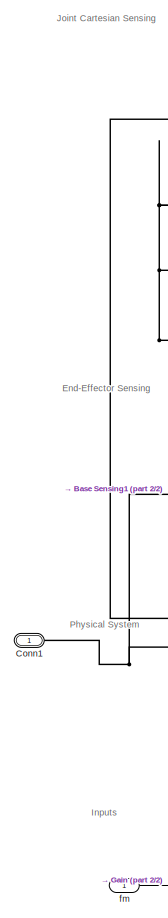
[diagram: Space Manipulator4 - part 1/2, left side, full height]
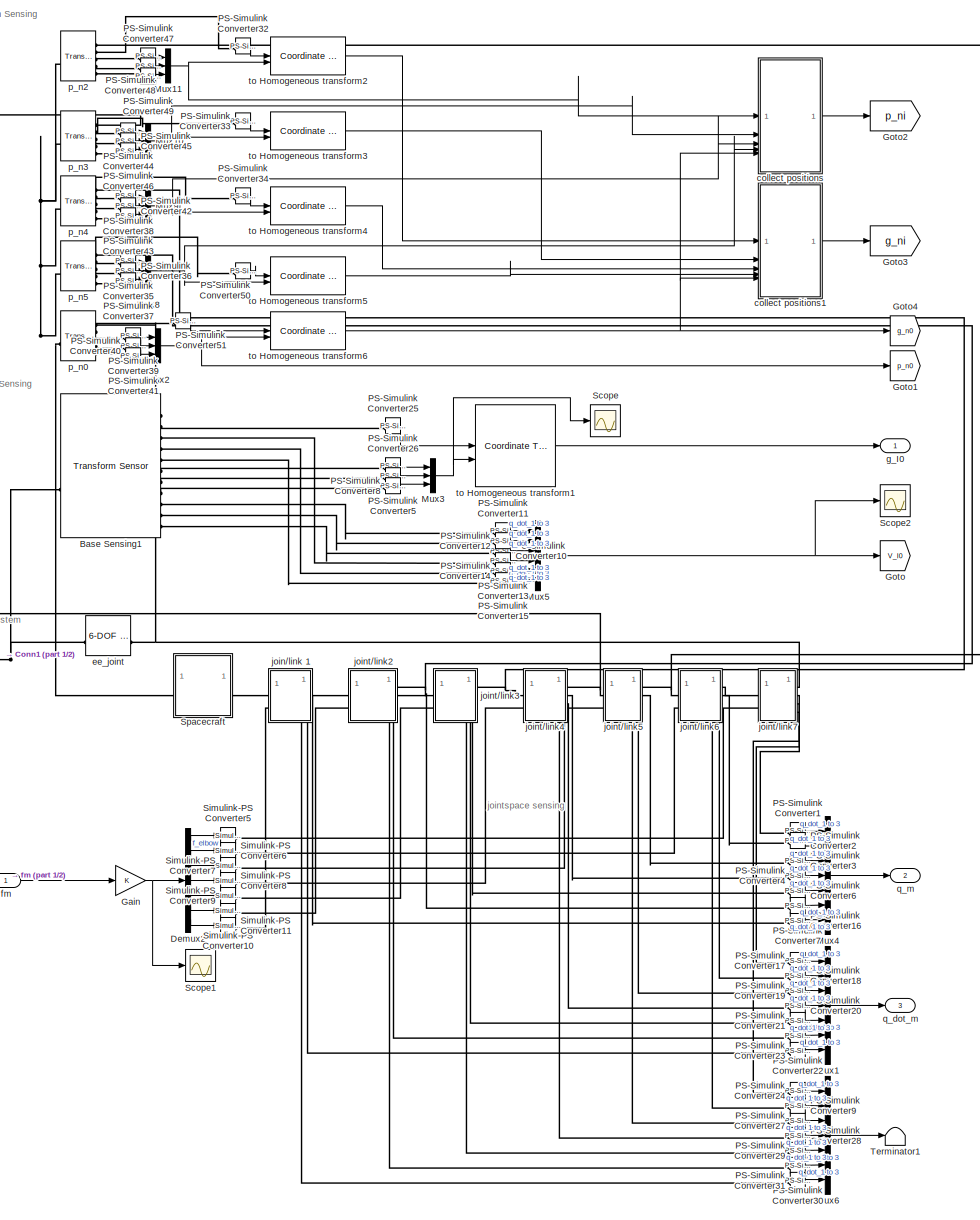
[diagram: Space Manipulator4 - part 2/2, most of the canvas]
BLOCK [SubSystem] Space Manipulator4
  PortSchema = {"entries":[{"content":{"sides":[{"content":{"connectorIds":["LConn1","In1"]},"type":"ConnectorPlacement.EquallySpacedRectSide","uuid":"72191d6d-4063-4afa-9f89-5dcaaa3d263e"},{"content":{"connectorIds":["Out1","Out2","Out3"],"side":"RIGHT"},"type":"ConnectorPlacement.EquallySpacedRectSide","uuid":"e65efd5d-4ce5-487e-bb2a-7b18ef6baea2"},{"content":{"side":"TOP"},"type":"ConnectorPlacement.EquallySp...<+245ch>
BLOCK [Reference] Space Manipulator4/Base Sensing1  REF=sm_lib/Frames and
Transforms/Transform
Sensor
  SourceBlock = sm_lib/Frames and\nTransforms/Transform\nSensor
  SourceType = Transform\nSensor
BLOCK [PMIOPort] Space Manipulator4/Conn1
  Side = Left
BLOCK [Demux] Space Manipulator4/Demux2
  Outputs = 7
BLOCK [Gain] Space Manipulator4/Gain
BLOCK [Goto] Space Manipulator4/Goto
  GotoTag = V_I0
  TagVisibility = global
BLOCK [Goto] Space Manipulator4/Goto1
  GotoTag = p_n0
  TagVisibility = global
BLOCK [Goto] Space Manipulator4/Goto2
  GotoTag = p_ni
  TagVisibility = global
BLOCK [Goto] Space Manipulator4/Goto3
  GotoTag = g_ni
  TagVisibility = global
BLOCK [Goto] Space Manipulator4/Goto4
  GotoTag = g_n0
  TagVisibility = global
BLOCK [Mux] Space Manipulator4/Mux1
  DisplayOption = bar
  Inputs = 7
BLOCK [Mux] Space Manipulator4/Mux10
  DisplayOption = bar
  Inputs = 3
BLOCK [Mux] Space Manipulator4/Mux11
  DisplayOption = bar
  Inputs = 3
BLOCK [Mux] Space Manipulator4/Mux2
  DisplayOption = bar
  Inputs = 3
BLOCK [Mux] Space Manipulator4/Mux3
  DisplayOption = bar
  Inputs = 3
BLOCK [Mux] Space Manipulator4/Mux4
  DisplayOption = bar
  Inputs = 7
BLOCK [Mux] Space Manipulator4/Mux5
  DisplayOption = bar
  Inputs = 6
BLOCK [Mux] Space Manipulator4/Mux6
  DisplayOption = bar
  Inputs = 7
BLOCK [Mux] Space Manipulator4/Mux8
  DisplayOption = bar
  Inputs = 3
BLOCK [Mux] Space Manipulator4/Mux9
  DisplayOption = bar
  Inputs = 3
BLOCK [Reference] Space Manipulator4/PS-Simulink Converter1  REF=nesl_utility/PS-Simulink
Converter
  SourceBlock = nesl_utility/PS-Simulink\nConverter
  SourceType = PS-Simulink\nConverter
BLOCK [Reference] Space Manipulator4/PS-Simulink Converter10  REF=nesl_utility/PS-Simulink
Converter
  SourceBlock = nesl_utility/PS-Simulink\nConverter
  SourceType = PS-Simulink\nConverter
BLOCK [Reference] Space Manipulator4/PS-Simulink Converter11  REF=nesl_utility/PS-Simulink
Converter
  SourceBlock = nesl_utility/PS-Simulink\nConverter
  SourceType = PS-Simulink\nConverter
BLOCK [Reference] Space Manipulator4/PS-Simulink Converter12  REF=nesl_utility/PS-Simulink
Converter
  SourceBlock = nesl_utility/PS-Simulink\nConverter
  SourceType = PS-Simulink\nConverter
BLOCK [Reference] Space Manipulator4/PS-Simulink Converter13  REF=nesl_utility/PS-Simulink
Converter
  SourceBlock = nesl_utility/PS-Simulink\nConverter
  SourceType = PS-Simulink\nConverter
BLOCK [Reference] Space Manipulator4/PS-Simulink Converter14  REF=nesl_utility/PS-Simulink
Converter
  SourceBlock = nesl_utility/PS-Simulink\nConverter
  SourceType = PS-Simulink\nConverter
BLOCK [Reference] Space Manipulator4/PS-Simulink Converter15  REF=nesl_utility/PS-Simulink
Converter
  SourceBlock = nesl_utility/PS-Simulink\nConverter
  SourceType = PS-Simulink\nConverter
BLOCK [Reference] Space Manipulator4/PS-Simulink Converter16  REF=nesl_utility/PS-Simulink
Converter
  SourceBlock = nesl_utility/PS-Simulink\nConverter
  SourceType = PS-Simulink\nConverter
BLOCK [Reference] Space Manipulator4/PS-Simulink Converter17  REF=nesl_utility/PS-Simulink
Converter
  SourceBlock = nesl_utility/PS-Simulink\nConverter
  SourceType = PS-Simulink\nConverter
BLOCK [Reference] Space Manipulator4/PS-Simulink Converter18  REF=nesl_utility/PS-Simulink
Converter
  SourceBlock = nesl_utility/PS-Simulink\nConverter
  SourceType = PS-Simulink\nConverter
BLOCK [Reference] Space Manipulator4/PS-Simulink Converter19  REF=nesl_utility/PS-Simulink
Converter
  SourceBlock = nesl_utility/PS-Simulink\nConverter
  SourceType = PS-Simulink\nConverter
BLOCK [Reference] Space Manipulator4/PS-Simulink Converter2  REF=nesl_utility/PS-Simulink
Converter
  SourceBlock = nesl_utility/PS-Simulink\nConverter
  SourceType = PS-Simulink\nConverter
BLOCK [Reference] Space Manipulator4/PS-Simulink Converter20  REF=nesl_utility/PS-Simulink
Converter
  SourceBlock = nesl_utility/PS-Simulink\nConverter
  SourceType = PS-Simulink\nConverter
BLOCK [Reference] Space Manipulator4/PS-Simulink Converter21  REF=nesl_utility/PS-Simulink
Converter
  SourceBlock = nesl_utility/PS-Simulink\nConverter
  SourceType = PS-Simulink\nConverter
BLOCK [Reference] Space Manipulator4/PS-Simulink Converter22  REF=nesl_utility/PS-Simulink
Converter
  SourceBlock = nesl_utility/PS-Simulink\nConverter
  SourceType = PS-Simulink\nConverter
BLOCK [Reference] Space Manipulator4/PS-Simulink Converter23  REF=nesl_utility/PS-Simulink
Converter
  SourceBlock = nesl_utility/PS-Simulink\nConverter
  SourceType = PS-Simulink\nConverter
BLOCK [Reference] Space Manipulator4/PS-Simulink Converter24  REF=nesl_utility/PS-Simulink
Converter
  SourceBlock = nesl_utility/PS-Simulink\nConverter
  SourceType = PS-Simulink\nConverter
BLOCK [Reference] Space Manipulator4/PS-Simulink Converter25  REF=nesl_utility/PS-Simulink
Converter
  SourceBlock = nesl_utility/PS-Simulink\nConverter
  SourceType = PS-Simulink\nConverter
BLOCK [Reference] Space Manipulator4/PS-Simulink Converter26  REF=nesl_utility/PS-Simulink
Converter
  SourceBlock = nesl_utility/PS-Simulink\nConverter
  SourceType = PS-Simulink\nConverter
BLOCK [Reference] Space Manipulator4/PS-Simulink Converter27  REF=nesl_utility/PS-Simulink
Converter
  SourceBlock = nesl_utility/PS-Simulink\nConverter
  SourceType = PS-Simulink\nConverter
BLOCK [Reference] Space Manipulator4/PS-Simulink Converter28  REF=nesl_utility/PS-Simulink
Converter
  SourceBlock = nesl_utility/PS-Simulink\nConverter
  SourceType = PS-Simulink\nConverter
BLOCK [Reference] Space Manipulator4/PS-Simulink Converter29  REF=nesl_utility/PS-Simulink
Converter
  SourceBlock = nesl_utility/PS-Simulink\nConverter
  SourceType = PS-Simulink\nConverter
BLOCK [Reference] Space Manipulator4/PS-Simulink Converter3  REF=nesl_utility/PS-Simulink
Converter
  SourceBlock = nesl_utility/PS-Simulink\nConverter
  SourceType = PS-Simulink\nConverter
BLOCK [Reference] Space Manipulator4/PS-Simulink Converter30  REF=nesl_utility/PS-Simulink
Converter
  SourceBlock = nesl_utility/PS-Simulink\nConverter
  SourceType = PS-Simulink\nConverter
BLOCK [Reference] Space Manipulator4/PS-Simulink Converter31  REF=nesl_utility/PS-Simulink
Converter
  SourceBlock = nesl_utility/PS-Simulink\nConverter
  SourceType = PS-Simulink\nConverter
BLOCK [Reference] Space Manipulator4/PS-Simulink Converter32  REF=nesl_utility/PS-Simulink
Converter
  SourceBlock = nesl_utility/PS-Simulink\nConverter
  SourceType = PS-Simulink\nConverter
BLOCK [Reference] Space Manipulator4/PS-Simulink Converter33  REF=nesl_utility/PS-Simulink
Converter
  SourceBlock = nesl_utility/PS-Simulink\nConverter
  SourceType = PS-Simulink\nConverter
BLOCK [Reference] Space Manipulator4/PS-Simulink Converter34  REF=nesl_utility/PS-Simulink
Converter
  SourceBlock = nesl_utility/PS-Simulink\nConverter
  SourceType = PS-Simulink\nConverter
BLOCK [Reference] Space Manipulator4/PS-Simulink Converter35  REF=nesl_utility/PS-Simulink
Converter
  SourceBlock = nesl_utility/PS-Simulink\nConverter
  SourceType = PS-Simulink\nConverter
BLOCK [Reference] Space Manipulator4/PS-Simulink Converter36  REF=nesl_utility/PS-Simulink
Converter
  SourceBlock = nesl_utility/PS-Simulink\nConverter
  SourceType = PS-Simulink\nConverter
BLOCK [Reference] Space Manipulator4/PS-Simulink Converter37  REF=nesl_utility/PS-Simulink
Converter
  SourceBlock = nesl_utility/PS-Simulink\nConverter
  SourceType = PS-Simulink\nConverter
BLOCK [Reference] Space Manipulator4/PS-Simulink Converter38  REF=nesl_utility/PS-Simulink
Converter
  SourceBlock = nesl_utility/PS-Simulink\nConverter
  SourceType = PS-Simulink\nConverter
BLOCK [Reference] Space Manipulator4/PS-Simulink Converter39  REF=nesl_utility/PS-Simulink
Converter
  SourceBlock = nesl_utility/PS-Simulink\nConverter
  SourceType = PS-Simulink\nConverter
BLOCK [Reference] Space Manipulator4/PS-Simulink Converter4  REF=nesl_utility/PS-Simulink
Converter
  SourceBlock = nesl_utility/PS-Simulink\nConverter
  SourceType = PS-Simulink\nConverter
BLOCK [Reference] Space Manipulator4/PS-Simulink Converter40  REF=nesl_utility/PS-Simulink
Converter
  SourceBlock = nesl_utility/PS-Simulink\nConverter
  SourceType = PS-Simulink\nConverter
BLOCK [Reference] Space Manipulator4/PS-Simulink Converter41  REF=nesl_utility/PS-Simulink
Converter
  SourceBlock = nesl_utility/PS-Simulink\nConverter
  SourceType = PS-Simulink\nConverter
BLOCK [Reference] Space Manipulator4/PS-Simulink Converter42  REF=nesl_utility/PS-Simulink
Converter
  SourceBlock = nesl_utility/PS-Simulink\nConverter
  SourceType = PS-Simulink\nConverter
BLOCK [Reference] Space Manipulator4/PS-Simulink Converter43  REF=nesl_utility/PS-Simulink
Converter
  SourceBlock = nesl_utility/PS-Simulink\nConverter
  SourceType = PS-Simulink\nConverter
BLOCK [Reference] Space Manipulator4/PS-Simulink Converter44  REF=nesl_utility/PS-Simulink
Converter
  SourceBlock = nesl_utility/PS-Simulink\nConverter
  SourceType = PS-Simulink\nConverter
BLOCK [Reference] Space Manipulator4/PS-Simulink Converter45  REF=nesl_utility/PS-Simulink
Converter
  SourceBlock = nesl_utility/PS-Simulink\nConverter
  SourceType = PS-Simulink\nConverter
BLOCK [Reference] Space Manipulator4/PS-Simulink Converter46  REF=nesl_utility/PS-Simulink
Converter
  SourceBlock = nesl_utility/PS-Simulink\nConverter
  SourceType = PS-Simulink\nConverter
BLOCK [Reference] Space Manipulator4/PS-Simulink Converter47  REF=nesl_utility/PS-Simulink
Converter
  SourceBlock = nesl_utility/PS-Simulink\nConverter
  SourceType = PS-Simulink\nConverter
BLOCK [Reference] Space Manipulator4/PS-Simulink Converter48  REF=nesl_utility/PS-Simulink
Converter
  SourceBlock = nesl_utility/PS-Simulink\nConverter
  SourceType = PS-Simulink\nConverter
BLOCK [Reference] Space Manipulator4/PS-Simulink Converter49  REF=nesl_utility/PS-Simulink
Converter
  SourceBlock = nesl_utility/PS-Simulink\nConverter
  SourceType = PS-Simulink\nConverter
BLOCK [Reference] Space Manipulator4/PS-Simulink Converter5  REF=nesl_utility/PS-Simulink
Converter
  SourceBlock = nesl_utility/PS-Simulink\nConverter
  SourceType = PS-Simulink\nConverter
BLOCK [Reference] Space Manipulator4/PS-Simulink Converter50  REF=nesl_utility/PS-Simulink
Converter
  SourceBlock = nesl_utility/PS-Simulink\nConverter
  SourceType = PS-Simulink\nConverter
BLOCK [Reference] Space Manipulator4/PS-Simulink Converter51  REF=nesl_utility/PS-Simulink
Converter
  SourceBlock = nesl_utility/PS-Simulink\nConverter
  SourceType = PS-Simulink\nConverter
BLOCK [Reference] Space Manipulator4/PS-Simulink Converter6  REF=nesl_utility/PS-Simulink
Converter
  SourceBlock = nesl_utility/PS-Simulink\nConverter
  SourceType = PS-Simulink\nConverter
BLOCK [Reference] Space Manipulator4/PS-Simulink Converter7  REF=nesl_utility/PS-Simulink
Converter
  SourceBlock = nesl_utility/PS-Simulink\nConverter
  SourceType = PS-Simulink\nConverter
BLOCK [Reference] Space Manipulator4/PS-Simulink Converter8  REF=nesl_utility/PS-Simulink
Converter
  SourceBlock = nesl_utility/PS-Simulink\nConverter
  SourceType = PS-Simulink\nConverter
BLOCK [Reference] Space Manipulator4/PS-Simulink Converter9  REF=nesl_utility/PS-Simulink
Converter
  SourceBlock = nesl_utility/PS-Simulink\nConverter
  SourceType = PS-Simulink\nConverter
BLOCK [Scope] Space Manipulator4/Scope
  Floating = off
  NumInputPorts = 1
  ScopeSpecificationString = Simulink.scopes.TimeScopeBlockCfg('CurrentConfiguration', extmgr.ConfigurationSet(extmgr.Configuration('Core','General UI',true),extmgr.Configuration('Core','Source UI',true),extmgr.Configuration('Sources','WiredSimulink',true,'DataLoggingVariableName','ScopeData1'),extmgr.Configuration('Visuals','Time Domain',true,'SerializedDisplays',{struct('MinYLimReal','-0.12652','MaxYLimReal','0.04933','YLab...<+1841ch>
BLOCK [Scope] Space Manipulator4/Scope1
  Floating = off
  NumInputPorts = 1
  ScopeSpecificationString = Simulink.scopes.TimeScopeBlockCfg('CurrentConfiguration', extmgr.ConfigurationSet(extmgr.Configuration('Core','General UI',true),extmgr.Configuration('Core','Source UI',true),extmgr.Configuration('Sources','WiredSimulink',true,'DataLoggingVariableName','ScopeData1'),extmgr.Configuration('Visuals','Time Domain',true,'SerializedDisplays',{struct('MinYLimReal','-14.80411','MaxYLimReal','12.22163','YL...<+1755ch>
BLOCK [Scope] Space Manipulator4/Scope2
  Floating = off
  NumInputPorts = 1
  ScopeSpecificationString = Simulink.scopes.TimeScopeBlockCfg('CurrentConfiguration', extmgr.ConfigurationSet(extmgr.Configuration('Core','General UI',true),extmgr.Configuration('Core','Source UI',true),extmgr.Configuration('Sources','WiredSimulink',true,'DataLoggingVariableName','ScopeData2'),extmgr.Configuration('Visuals','Time Domain',true,'SerializedDisplays',{struct('MinYLimReal','-0.00218','MaxYLimReal','0.00248','YLab...<+1971ch>
BLOCK [Reference] Space Manipulator4/Simulink-PS Converter10  REF=nesl_utility/Simulink-PS
Converter
  SourceBlock = nesl_utility/Simulink-PS\nConverter
  SourceType = Simulink-PS\nConverter
BLOCK [Reference] Space Manipulator4/Simulink-PS Converter11  REF=nesl_utility/Simulink-PS
Converter
  SourceBlock = nesl_utility/Simulink-PS\nConverter
  SourceType = Simulink-PS\nConverter
BLOCK [Reference] Space Manipulator4/Simulink-PS Converter5  REF=nesl_utility/Simulink-PS
Converter
  SourceBlock = nesl_utility/Simulink-PS\nConverter
  SourceType = Simulink-PS\nConverter
BLOCK [Reference] Space Manipulator4/Simulink-PS Converter6  REF=nesl_utility/Simulink-PS
Converter
  SourceBlock = nesl_utility/Simulink-PS\nConverter
  SourceType = Simulink-PS\nConverter
BLOCK [Reference] Space Manipulator4/Simulink-PS Converter7  REF=nesl_utility/Simulink-PS
Converter
  SourceBlock = nesl_utility/Simulink-PS\nConverter
  SourceType = Simulink-PS\nConverter
BLOCK [Reference] Space Manipulator4/Simulink-PS Converter8  REF=nesl_utility/Simulink-PS
Converter
  SourceBlock = nesl_utility/Simulink-PS\nConverter
  SourceType = Simulink-PS\nConverter
BLOCK [Reference] Space Manipulator4/Simulink-PS Converter9  REF=nesl_utility/Simulink-PS
Converter
  SourceBlock = nesl_utility/Simulink-PS\nConverter
  SourceType = Simulink-PS\nConverter
BLOCK [SubSystem] Space Manipulator4/Spacecraft
BLOCK [Reference] Space Manipulator4/Spacecraft/Band-Limited White Noise  REF=simulink/Sources/Band-Limited
White Noise
  Commented = on
  SourceBlock = simulink/Sources/Band-Limited\nWhite Noise
  SourceType = Band-Limited White Noise.
BLOCK [Reference] Space Manipulator4/Spacecraft/Band-Limited White Noise1  REF=simulink/Sources/Band-Limited
White Noise
  Commented = on
  SourceBlock = simulink/Sources/Band-Limited\nWhite Noise
  SourceType = Band-Limited White Noise.
BLOCK [Reference] Space Manipulator4/Spacecraft/Band-Limited White Noise2  REF=simulink/Sources/Band-Limited
White Noise
  Commented = on
  SourceBlock = simulink/Sources/Band-Limited\nWhite Noise
  SourceType = Band-Limited White Noise.
BLOCK [Reference] Space Manipulator4/Spacecraft/Band-Limited White Noise3  REF=simulink/Sources/Band-Limited
White Noise
  Commented = on
  SourceBlock = simulink/Sources/Band-Limited\nWhite Noise
  SourceType = Band-Limited White Noise.
BLOCK [Reference] Space Manipulator4/Spacecraft/Band-Limited White Noise4  REF=simulink/Sources/Band-Limited
White Noise
  Commented = on
  SourceBlock = simulink/Sources/Band-Limited\nWhite Noise
  SourceType = Band-Limited White Noise.
BLOCK [Reference] Space Manipulator4/Spacecraft/Band-Limited White Noise5  REF=simulink/Sources/Band-Limited
White Noise
  Commented = on
  SourceBlock = simulink/Sources/Band-Limited\nWhite Noise
  SourceType = Band-Limited White Noise.
BLOCK [Reference] Space Manipulator4/Spacecraft/Base1  REF=sm_lib/Body Elements/Brick Solid
  SourceBlock = sm_lib/Body Elements/Brick Solid
  SourceType = Brick Solid
BLOCK [Reference] Space Manipulator4/Spacecraft/Base2  REF=sm_lib/Body Elements/Brick Solid
  Commented = on
  SourceBlock = sm_lib/Body Elements/Brick Solid
  SourceType = Brick Solid
BLOCK [Reference] Space Manipulator4/Spacecraft/Cylindrical Solid  REF=sm_lib/Body Elements/Cylindrical Solid
  NameLocation = right
  SourceBlock = sm_lib/Body Elements/Cylindrical Solid
  SourceType = Cylindrical Solid
BLOCK [Reference] Space Manipulator4/Spacecraft/External Force and Torque  REF=sm_lib/Forces and
Torques/External Force
and Torque
  Commented = on
  SourceBlock = sm_lib/Forces and\nTorques/External Force\nand Torque
  SourceType = External Force\nand Torque
BLOCK [PMIOPort] Space Manipulator4/Spacecraft/F
  Side = Left
BLOCK [PMIOPort] Space Manipulator4/Spacecraft/F1
  Port = 2
  Side = Right
BLOCK [Reference] Space Manipulator4/Spacecraft/Inertia  REF=sm_lib/Body Elements/Inertia
  NameLocation = top
  SourceBlock = sm_lib/Body Elements/Inertia
  SourceType = Inertia
BLOCK [Scope] Space Manipulator4/Spacecraft/Scope
  Commented = on
  Floating = off
  NumInputPorts = 1
  ScopeSpecificationString = Simulink.scopes.TimeScopeBlockCfg('CurrentConfiguration', extmgr.ConfigurationSet(extmgr.Configuration('Core','General UI',true),extmgr.Configuration('Core','Source UI',true),extmgr.Configuration('Sources','WiredSimulink',true,'DataLoggingVariableName','ScopeData1'),extmgr.Configuration('Visuals','Time Domain',true,'SerializedDisplays',{struct('MinYLimReal','-0.0411','MaxYLimReal','0.04205','YLabe...<+1471ch>
BLOCK [Reference] Space Manipulator4/Spacecraft/Simulink-PS Converter1  REF=nesl_utility/Simulink-PS
Converter
  Commented = on
  SourceBlock = nesl_utility/Simulink-PS\nConverter
  SourceType = Simulink-PS\nConverter
BLOCK [Reference] Space Manipulator4/Spacecraft/Simulink-PS Converter2  REF=nesl_utility/Simulink-PS
Converter
  Commented = on
  SourceBlock = nesl_utility/Simulink-PS\nConverter
  SourceType = Simulink-PS\nConverter
BLOCK [Reference] Space Manipulator4/Spacecraft/Simulink-PS Converter3  REF=nesl_utility/Simulink-PS
Converter
  Commented = on
  SourceBlock = nesl_utility/Simulink-PS\nConverter
  SourceType = Simulink-PS\nConverter
BLOCK [Reference] Space Manipulator4/Spacecraft/Simulink-PS Converter4  REF=nesl_utility/Simulink-PS
Converter
  Commented = on
  SourceBlock = nesl_utility/Simulink-PS\nConverter
  SourceType = Simulink-PS\nConverter
BLOCK [Reference] Space Manipulator4/Spacecraft/Simulink-PS Converter5  REF=nesl_utility/Simulink-PS
Converter
  Commented = on
  SourceBlock = nesl_utility/Simulink-PS\nConverter
  SourceType = Simulink-PS\nConverter
BLOCK [Reference] Space Manipulator4/Spacecraft/Simulink-PS Converter6  REF=nesl_utility/Simulink-PS
Converter
  Commented = on
  SourceBlock = nesl_utility/Simulink-PS\nConverter
  SourceType = Simulink-PS\nConverter
BLOCK [Reference] Space Manipulator4/Spacecraft/Visual  REF=sm_lib/Body Elements/File Solid
  Commented = on
  SourceBlock = sm_lib/Body Elements/File Solid
  SourceType = File Solid
BLOCK [Reference] Space Manipulator4/Spacecraft/VisualOriginTransform  REF=sm_lib/Frames and
Transforms/Rigid
Transform
  SourceBlock = sm_lib/Frames and\nTransforms/Rigid\nTransform
  SourceType = Rigid\nTransform
BLOCK [Reference] Space Manipulator4/Spacecraft/iiwa_joint_2_OriginTransform  REF=sm_lib/Frames and
Transforms/Rigid
Transform
  NameLocation = top
  SourceBlock = sm_lib/Frames and\nTransforms/Rigid\nTransform
  SourceType = Rigid\nTransform
BLOCK [Terminator] Space Manipulator4/Terminator1
BLOCK [SubSystem] Space Manipulator4/collect positions
  ErrorFcn = Stateflow.Translate.translate
  PermitHierarchicalResolution = ExplicitOnly
  SFBlockType = MATLAB Function
  TreatAsAtomicUnit = on
BLOCK [Demux] Space Manipulator4/collect positions/ Demux 
  Outputs = 1
BLOCK [S-Function] Space Manipulator4/collect positions/ SFunction 
  EnableBusSupport = on
  FunctionName = sf_sfun
  PortCounts = [5 2]
  SFcnIsStateOwnerBlock = off
  SFunctionDeploymentMode = off
  Tag = Stateflow S-Function 15
BLOCK [Terminator] Space Manipulator4/collect positions/ Terminator 
BLOCK [Inport] Space Manipulator4/collect positions/g_n0
  Port = 5
BLOCK [Inport] Space Manipulator4/collect positions/p_n2
BLOCK [Inport] Space Manipulator4/collect positions/p_n3
  Port = 2
BLOCK [Inport] Space Manipulator4/collect positions/p_n4
  Port = 3
BLOCK [Inport] Space Manipulator4/collect positions/p_n5
  Port = 4
BLOCK [Outport] Space Manipulator4/collect positions/p_ni
BLOCK [SubSystem] Space Manipulator4/collect positions1
  ErrorFcn = Stateflow.Translate.translate
  PermitHierarchicalResolution = ExplicitOnly
  SFBlockType = MATLAB Function
  TreatAsAtomicUnit = on
BLOCK [Demux] Space Manipulator4/collect positions1/ Demux 
  Outputs = 1
BLOCK [S-Function] Space Manipulator4/collect positions1/ SFunction 
  EnableBusSupport = on
  FunctionName = sf_sfun
  PortCounts = [5 2]
  SFcnIsStateOwnerBlock = off
  SFunctionDeploymentMode = off
  Tag = Stateflow S-Function 18
BLOCK [Terminator] Space Manipulator4/collect positions1/ Terminator 
BLOCK [Inport] Space Manipulator4/collect positions1/g_n0
  Port = 5
BLOCK [Inport] Space Manipulator4/collect positions1/g_n2
BLOCK [Inport] Space Manipulator4/collect positions1/g_n3
  Port = 2
BLOCK [Inport] Space Manipulator4/collect positions1/g_n4
  Port = 3
BLOCK [Inport] Space Manipulator4/collect positions1/g_n5
  Port = 4
BLOCK [Outport] Space Manipulator4/collect positions1/g_ni
BLOCK [Reference] Space Manipulator4/ee_joint  REF=sm_lib/Joints/6-DOF Joint
  SourceBlock = sm_lib/Joints/6-DOF Joint
  SourceType = 6-DOF Joint
BLOCK [Inport] Space Manipulator4/fm
BLOCK [Outport] Space Manipulator4/g_I0
BLOCK [SubSystem] Space Manipulator4/join//link 1
BLOCK [PMIOPort] Space Manipulator4/join//link 1/F1
  Port = 3
  Side = Right
BLOCK [PMIOPort] Space Manipulator4/join//link 1/b
  Side = Left
BLOCK [PMIOPort] Space Manipulator4/join//link 1/f1
  Port = 2
  Side = Left
BLOCK [Reference] Space Manipulator4/join//link 1/iiwa_joint_1  REF=sm_lib/Joints/Revolute Joint
  SourceBlock = sm_lib/Joints/Revolute Joint
  SourceType = Revolute Joint
BLOCK [SubSystem] Space Manipulator4/join//link 1/iiwa_link_1
BLOCK [PMIOPort] Space Manipulator4/join//link 1/iiwa_link_1/F
  Side = Left
BLOCK [PMIOPort] Space Manipulator4/join//link 1/iiwa_link_1/F1
  Port = 2
  Side = Right
BLOCK [Reference] Space Manipulator4/join//link 1/iiwa_link_1/Inertia  REF=sm_lib/Body Elements/Inertia
  NameLocation = top
  SourceBlock = sm_lib/Body Elements/Inertia
  SourceType = Inertia
BLOCK [Reference] Space Manipulator4/join//link 1/iiwa_link_1/Visual  REF=sm_lib/Body Elements/File Solid
  SourceBlock = sm_lib/Body Elements/File Solid
  SourceType = File Solid
BLOCK [Reference] Space Manipulator4/join//link 1/iiwa_link_1/VisualOriginTransform  REF=sm_lib/Frames and
Transforms/Rigid
Transform
  SourceBlock = sm_lib/Frames and\nTransforms/Rigid\nTransform
  SourceType = Rigid\nTransform
BLOCK [Reference] Space Manipulator4/join//link 1/iiwa_link_1/iiwa_joint_2_OriginTransform  REF=sm_lib/Frames and
Transforms/Rigid
Transform
  NameLocation = top
  SourceBlock = sm_lib/Frames and\nTransforms/Rigid\nTransform
  SourceType = Rigid\nTransform
BLOCK [PMIOPort] Space Manipulator4/join//link 1/q1
  Port = 4
  Side = Right
BLOCK [PMIOPort] Space Manipulator4/join//link 1/qd1
  Port = 5
  Side = Right
BLOCK [PMIOPort] Space Manipulator4/join//link 1/qdd1
  Port = 6
  Side = Right
BLOCK [SubSystem] Space Manipulator4/joint//link2
BLOCK [PMIOPort] Space Manipulator4/joint//link2/F1
  Port = 2
  Side = Right
BLOCK [PMIOPort] Space Manipulator4/joint//link2/b
  Side = Left
BLOCK [PMIOPort] Space Manipulator4/joint//link2/f2
  Port = 3
  Side = Left
BLOCK [Reference] Space Manipulator4/joint//link2/iiwa_joint_2  REF=sm_lib/Joints/Revolute Joint
  SourceBlock = sm_lib/Joints/Revolute Joint
  SourceType = Revolute Joint
BLOCK [SubSystem] Space Manipulator4/joint//link2/iiwa_link_2
BLOCK [PMIOPort] Space Manipulator4/joint//link2/iiwa_link_2/F
  Side = Left
BLOCK [PMIOPort] Space Manipulator4/joint//link2/iiwa_link_2/F1
  Port = 2
  Side = Right
BLOCK [Reference] Space Manipulator4/joint//link2/iiwa_link_2/Inertia  REF=sm_lib/Body Elements/Inertia
  NameLocation = top
  SourceBlock = sm_lib/Body Elements/Inertia
  SourceType = Inertia
BLOCK [Reference] Space Manipulator4/joint//link2/iiwa_link_2/Visual  REF=sm_lib/Body Elements/File Solid
  NameLocation = top
  SourceBlock = sm_lib/Body Elements/File Solid
  SourceType = File Solid
BLOCK [Reference] Space Manipulator4/joint//link2/iiwa_link_2/VisualOriginTransform  REF=sm_lib/Frames and
Transforms/Rigid
Transform
  SourceBlock = sm_lib/Frames and\nTransforms/Rigid\nTransform
  SourceType = Rigid\nTransform
BLOCK [Reference] Space Manipulator4/joint//link2/iiwa_link_2/iiwa_joint_3_OriginTransform  REF=sm_lib/Frames and
Transforms/Rigid
Transform
  NameLocation = top
  SourceBlock = sm_lib/Frames and\nTransforms/Rigid\nTransform
  SourceType = Rigid\nTransform
BLOCK [PMIOPort] Space Manipulator4/joint//link2/q2
  Port = 4
  Side = Right
BLOCK [PMIOPort] Space Manipulator4/joint//link2/qd2
  Port = 5
  Side = Right
BLOCK [PMIOPort] Space Manipulator4/joint//link2/qdd2
  Port = 6
  Side = Right
BLOCK [SubSystem] Space Manipulator4/joint//link3
BLOCK [PMIOPort] Space Manipulator4/joint//link3/F1
  Port = 2
  Side = Right
BLOCK [PMIOPort] Space Manipulator4/joint//link3/b
  Side = Left
BLOCK [PMIOPort] Space Manipulator4/joint//link3/f3
  Port = 3
  Side = Left
BLOCK [Reference] Space Manipulator4/joint//link3/iiwa_joint_3  REF=sm_lib/Joints/Revolute Joint
  SourceBlock = sm_lib/Joints/Revolute Joint
  SourceType = Revolute Joint
BLOCK [SubSystem] Space Manipulator4/joint//link3/iiwa_link_3
BLOCK [PMIOPort] Space Manipulator4/joint//link3/iiwa_link_3/F
  Side = Left
BLOCK [PMIOPort] Space Manipulator4/joint//link3/iiwa_link_3/F1
  Port = 2
  Side = Right
BLOCK [Reference] Space Manipulator4/joint//link3/iiwa_link_3/Inertia  REF=sm_lib/Body Elements/Inertia
  SourceBlock = sm_lib/Body Elements/Inertia
  SourceType = Inertia
BLOCK [Reference] Space Manipulator4/joint//link3/iiwa_link_3/Visual  REF=sm_lib/Body Elements/File Solid
  SourceBlock = sm_lib/Body Elements/File Solid
  SourceType = File Solid
BLOCK [Reference] Space Manipulator4/joint//link3/iiwa_link_3/VisualOriginTransform  REF=sm_lib/Frames and
Transforms/Rigid
Transform
  SourceBlock = sm_lib/Frames and\nTransforms/Rigid\nTransform
  SourceType = Rigid\nTransform
BLOCK [Reference] Space Manipulator4/joint//link3/iiwa_link_3/iiwa_joint_4_OriginTransform  REF=sm_lib/Frames and
Transforms/Rigid
Transform
  NameLocation = top
  SourceBlock = sm_lib/Frames and\nTransforms/Rigid\nTransform
  SourceType = Rigid\nTransform
BLOCK [PMIOPort] Space Manipulator4/joint//link3/q3
  Port = 4
  Side = Right
BLOCK [PMIOPort] Space Manipulator4/joint//link3/qd3
  Port = 5
  Side = Right
BLOCK [PMIOPort] Space Manipulator4/joint//link3/qdd3
  Port = 6
  Side = Right
BLOCK [SubSystem] Space Manipulator4/joint//link4
BLOCK [PMIOPort] Space Manipulator4/joint//link4/F1
  Port = 2
  Side = Right
BLOCK [PMIOPort] Space Manipulator4/joint//link4/b
  Side = Left
BLOCK [PMIOPort] Space Manipulator4/joint//link4/f4
  Port = 3
  Side = Left
BLOCK [Reference] Space Manipulator4/joint//link4/iiwa_joint_4  REF=sm_lib/Joints/Revolute Joint
  SourceBlock = sm_lib/Joints/Revolute Joint
  SourceType = Revolute Joint
BLOCK [SubSystem] Space Manipulator4/joint//link4/iiwa_link_4
BLOCK [PMIOPort] Space Manipulator4/joint//link4/iiwa_link_4/F
  Side = Left
BLOCK [PMIOPort] Space Manipulator4/joint//link4/iiwa_link_4/F1
  Port = 2
  Side = Right
BLOCK [Reference] Space Manipulator4/joint//link4/iiwa_link_4/Inertia  REF=sm_lib/Body Elements/Inertia
  SourceBlock = sm_lib/Body Elements/Inertia
  SourceType = Inertia
BLOCK [Reference] Space Manipulator4/joint//link4/iiwa_link_4/Visual  REF=sm_lib/Body Elements/File Solid
  SourceBlock = sm_lib/Body Elements/File Solid
  SourceType = File Solid
BLOCK [Reference] Space Manipulator4/joint//link4/iiwa_link_4/VisualOriginTransform  REF=sm_lib/Frames and
Transforms/Rigid
Transform
  SourceBlock = sm_lib/Frames and\nTransforms/Rigid\nTransform
  SourceType = Rigid\nTransform
BLOCK [Reference] Space Manipulator4/joint//link4/iiwa_link_4/iiwa_joint_5_OriginTransform  REF=sm_lib/Frames and
Transforms/Rigid
Transform
  NameLocation = top
  SourceBlock = sm_lib/Frames and\nTransforms/Rigid\nTransform
  SourceType = Rigid\nTransform
BLOCK [PMIOPort] Space Manipulator4/joint//link4/q4
  Port = 4
  Side = Right
BLOCK [PMIOPort] Space Manipulator4/joint//link4/qd4
  Port = 5
  Side = Right
BLOCK [PMIOPort] Space Manipulator4/joint//link4/qdd4
  Port = 6
  Side = Right
BLOCK [SubSystem] Space Manipulator4/joint//link5
BLOCK [PMIOPort] Space Manipulator4/joint//link5/F1
  Port = 2
  Side = Right
BLOCK [PMIOPort] Space Manipulator4/joint//link5/b
  Side = Left
BLOCK [PMIOPort] Space Manipulator4/joint//link5/f5
  Port = 3
  Side = Left
BLOCK [Reference] Space Manipulator4/joint//link5/iiwa_joint_5  REF=sm_lib/Joints/Revolute Joint
  SourceBlock = sm_lib/Joints/Revolute Joint
  SourceType = Revolute Joint
BLOCK [SubSystem] Space Manipulator4/joint//link5/iiwa_link_5
BLOCK [PMIOPort] Space Manipulator4/joint//link5/iiwa_link_5/F
  NameLocation = top
  Side = Left
BLOCK [PMIOPort] Space Manipulator4/joint//link5/iiwa_link_5/F1
  Port = 2
  Side = Right
BLOCK [Reference] Space Manipulator4/joint//link5/iiwa_link_5/Inertia  REF=sm_lib/Body Elements/Inertia
  SourceBlock = sm_lib/Body Elements/Inertia
  SourceType = Inertia
BLOCK [Reference] Space Manipulator4/joint//link5/iiwa_link_5/Visual  REF=sm_lib/Body Elements/File Solid
  NameLocation = top
  SourceBlock = sm_lib/Body Elements/File Solid
  SourceType = File Solid
BLOCK [Reference] Space Manipulator4/joint//link5/iiwa_link_5/VisualOriginTransform  REF=sm_lib/Frames and
Transforms/Rigid
Transform
  SourceBlock = sm_lib/Frames and\nTransforms/Rigid\nTransform
  SourceType = Rigid\nTransform
BLOCK [Reference] Space Manipulator4/joint//link5/iiwa_link_5/iiwa_joint_6_OriginTransform  REF=sm_lib/Frames and
Transforms/Rigid
Transform
  Commented = on
  SourceBlock = sm_lib/Frames and\nTransforms/Rigid\nTransform
  SourceType = Rigid\nTransform
BLOCK [Reference] Space Manipulator4/joint//link5/iiwa_link_5/iiwa_joint_6_OriginTransform1  REF=sm_lib/Frames and
Transforms/Rigid
Transform
  NameLocation = top
  SourceBlock = sm_lib/Frames and\nTransforms/Rigid\nTransform
  SourceType = Rigid\nTransform
BLOCK [PMIOPort] Space Manipulator4/joint//link5/q5
  Port = 4
  Side = Right
BLOCK [PMIOPort] Space Manipulator4/joint//link5/qd5
  Port = 5
  Side = Right
BLOCK [PMIOPort] Space Manipulator4/joint//link5/qdd5
  Port = 6
  Side = Right
BLOCK [SubSystem] Space Manipulator4/joint//link6
BLOCK [PMIOPort] Space Manipulator4/joint//link6/F1
  Port = 3
  Side = Right
BLOCK [Reference] Space Manipulator4/joint//link6/PS-Simulink Converter1  REF=nesl_utility/PS-Simulink
Converter
  SourceBlock = nesl_utility/PS-Simulink\nConverter
  SourceType = PS-Simulink\nConverter
BLOCK [Scope] Space Manipulator4/joint//link6/Scope
  Floating = off
  NumInputPorts = 1
  ScopeSpecificationString = Simulink.scopes.TimeScopeBlockCfg('CurrentConfiguration', extmgr.ConfigurationSet(extmgr.Configuration('Core','General UI',true),extmgr.Configuration('Core','Source UI',true),extmgr.Configuration('Sources','WiredSimulink',true,'DataLoggingVariableName','ScopeData3'),extmgr.Configuration('Visuals','Time Domain',true,'SerializedDisplays',{struct('MinYLimReal','0.01','MaxYLimReal','0.03','YLabelReal'...<+1370ch>
BLOCK [PMIOPort] Space Manipulator4/joint//link6/b
  Side = Left
BLOCK [PMIOPort] Space Manipulator4/joint//link6/f6
  Port = 2
  Side = Left
BLOCK [Reference] Space Manipulator4/joint//link6/iiwa_joint_6  REF=sm_lib/Joints/Revolute Joint
  SourceBlock = sm_lib/Joints/Revolute Joint
  SourceType = Revolute Joint
BLOCK [SubSystem] Space Manipulator4/joint//link6/iiwa_link_6
BLOCK [PMIOPort] Space Manipulator4/joint//link6/iiwa_link_6/F
  NameLocation = top
  Side = Left
BLOCK [PMIOPort] Space Manipulator4/joint//link6/iiwa_link_6/F1
  Port = 2
  Side = Right
BLOCK [Reference] Space Manipulator4/joint//link6/iiwa_link_6/Inertia  REF=sm_lib/Body Elements/Inertia
  SourceBlock = sm_lib/Body Elements/Inertia
  SourceType = Inertia
BLOCK [Reference] Space Manipulator4/joint//link6/iiwa_link_6/Visual  REF=sm_lib/Body Elements/File Solid
  SourceBlock = sm_lib/Body Elements/File Solid
  SourceType = File Solid
BLOCK [Reference] Space Manipulator4/joint//link6/iiwa_link_6/VisualOriginTransform  REF=sm_lib/Frames and
Transforms/Rigid
Transform
  SourceBlock = sm_lib/Frames and\nTransforms/Rigid\nTransform
  SourceType = Rigid\nTransform
BLOCK [Reference] Space Manipulator4/joint//link6/iiwa_link_6/iiwa_joint_7_OriginTransform  REF=sm_lib/Frames and
Transforms/Rigid
Transform
  NameLocation = top
  SourceBlock = sm_lib/Frames and\nTransforms/Rigid\nTransform
  SourceType = Rigid\nTransform
BLOCK [PMIOPort] Space Manipulator4/joint//link6/q6
  Port = 4
  Side = Right
BLOCK [PMIOPort] Space Manipulator4/joint//link6/qd6
  Port = 5
  Side = Right
BLOCK [PMIOPort] Space Manipulator4/joint//link6/qdd6
  Port = 6
  Side = Right
BLOCK [SubSystem] Space Manipulator4/joint//link7
BLOCK [PMIOPort] Space Manipulator4/joint//link7/F1
  Port = 3
  Side = Right
BLOCK [Reference] Space Manipulator4/joint//link7/PS-Simulink Converter1  REF=nesl_utility/PS-Simulink
Converter
  SourceBlock = nesl_utility/PS-Simulink\nConverter
  SourceType = PS-Simulink\nConverter
BLOCK [Scope] Space Manipulator4/joint//link7/Scope
  Floating = off
  NumInputPorts = 1
  ScopeSpecificationString = Simulink.scopes.TimeScopeBlockCfg('CurrentConfiguration', extmgr.ConfigurationSet(extmgr.Configuration('Core','General UI',true),extmgr.Configuration('Core','Source UI',true),extmgr.Configuration('Sources','WiredSimulink',true,'DataLoggingVariableName','ScopeData2'),extmgr.Configuration('Visuals','Time Domain',true,'SerializedDisplays',{struct('MinYLimReal','-1.00000','MaxYLimReal','1.00000','YLab...<+1396ch>
BLOCK [PMIOPort] Space Manipulator4/joint//link7/b
  Side = Left
BLOCK [PMIOPort] Space Manipulator4/joint//link7/f7
  Port = 2
  Side = Left
BLOCK [Reference] Space Manipulator4/joint//link7/iiwa_joint_7  REF=sm_lib/Joints/Revolute Joint
  SourceBlock = sm_lib/Joints/Revolute Joint
  SourceType = Revolute Joint
BLOCK [SubSystem] Space Manipulator4/joint//link7/iiwa_link_7
BLOCK [PMIOPort] Space Manipulator4/joint//link7/iiwa_link_7/F
  NameLocation = top
  Side = Left
BLOCK [PMIOPort] Space Manipulator4/joint//link7/iiwa_link_7/F1
  Port = 2
  Side = Right
BLOCK [Reference] Space Manipulator4/joint//link7/iiwa_link_7/Inertia  REF=sm_lib/Body Elements/Inertia
  SourceBlock = sm_lib/Body Elements/Inertia
  SourceType = Inertia
BLOCK [Reference] Space Manipulator4/joint//link7/iiwa_link_7/Visual  REF=sm_lib/Body Elements/File Solid
  NameLocation = top
  SourceBlock = sm_lib/Body Elements/File Solid
  SourceType = File Solid
BLOCK [Reference] Space Manipulator4/joint//link7/iiwa_link_7/VisualOriginTransform  REF=sm_lib/Frames and
Transforms/Rigid
Transform
  SourceBlock = sm_lib/Frames and\nTransforms/Rigid\nTransform
  SourceType = Rigid\nTransform
BLOCK [Reference] Space Manipulator4/joint//link7/iiwa_link_7/iiwa_joint_ee_OriginTransform  REF=sm_lib/Frames and
Transforms/Rigid
Transform
  NameLocation = top
  SourceBlock = sm_lib/Frames and\nTransforms/Rigid\nTransform
  SourceType = Rigid\nTransform
BLOCK [PMIOPort] Space Manipulator4/joint//link7/q7
  Port = 4
  Side = Right
BLOCK [PMIOPort] Space Manipulator4/joint//link7/qd7
  Port = 5
  Side = Right
BLOCK [PMIOPort] Space Manipulator4/joint//link7/qdd7
  Port = 6
  Side = Right
BLOCK [Reference] Space Manipulator4/p_n0  REF=sm_lib/Frames and
Transforms/Transform
Sensor
  SourceBlock = sm_lib/Frames and\nTransforms/Transform\nSensor
  SourceType = Transform\nSensor
BLOCK [Reference] Space Manipulator4/p_n2  REF=sm_lib/Frames and
Transforms/Transform
Sensor
  SourceBlock = sm_lib/Frames and\nTransforms/Transform\nSensor
  SourceType = Transform\nSensor
BLOCK [Reference] Space Manipulator4/p_n3  REF=sm_lib/Frames and
Transforms/Transform
Sensor
  SourceBlock = sm_lib/Frames and\nTransforms/Transform\nSensor
  SourceType = Transform\nSensor
BLOCK [Reference] Space Manipulator4/p_n4  REF=sm_lib/Frames and
Transforms/Transform
Sensor
  SourceBlock = sm_lib/Frames and\nTransforms/Transform\nSensor
  SourceType = Transform\nSensor
BLOCK [Reference] Space Manipulator4/p_n5  REF=sm_lib/Frames and
Transforms/Transform
Sensor
  SourceBlock = sm_lib/Frames and\nTransforms/Transform\nSensor
  SourceType = Transform\nSensor
BLOCK [Outport] Space Manipulator4/q_dot_m
  Port = 3
BLOCK [Outport] Space Manipulator4/q_m
  Port = 2
BLOCK [Reference] Space Manipulator4/to Homogeneous transform1  REF=robotcorelib/Coordinate Transformation Conversion
  SourceBlock = robotcorelib/Coordinate Transformation Conversion
  SourceType = robotics.slcore.internal.block.CoordinateTransformationConversion
BLOCK [Reference] Space Manipulator4/to Homogeneous transform2  REF=robotcorelib/Coordinate Transformation Conversion
  SourceBlock = robotcorelib/Coordinate Transformation Conversion
  SourceType = robotics.slcore.internal.block.CoordinateTransformationConversion
BLOCK [Reference] Space Manipulator4/to Homogeneous transform3  REF=robotcorelib/Coordinate Transformation Conversion
  SourceBlock = robotcorelib/Coordinate Transformation Conversion
  SourceType = robotics.slcore.internal.block.CoordinateTransformationConversion
BLOCK [Reference] Space Manipulator4/to Homogeneous transform4  REF=robotcorelib/Coordinate Transformation Conversion
  SourceBlock = robotcorelib/Coordinate Transformation Conversion
  SourceType = robotics.slcore.internal.block.CoordinateTransformationConversion
BLOCK [Reference] Space Manipulator4/to Homogeneous transform5  REF=robotcorelib/Coordinate Transformation Conversion
  SourceBlock = robotcorelib/Coordinate Transformation Conversion
  SourceType = robotics.slcore.internal.block.CoordinateTransformationConversion
BLOCK [Reference] Space Manipulator4/to Homogeneous transform6  REF=robotcorelib/Coordinate Transformation Conversion
  SourceBlock = robotcorelib/Coordinate Transformation Conversion
  SourceType = robotics.slcore.internal.block.CoordinateTransformationConversion
BLOCK [SubSystem] Subsystem
BLOCK [Constant] Subsystem/Constant1
  Value = q_dot_m
  VectorParams1D = off
BLOCK [Constant] Subsystem/Constant2
  Value = q_m
  VectorParams1D = off
BLOCK [Constant] Subsystem/Constant6
  Value = P0
  VectorParams1D = off
BLOCK [Inport] Subsystem/In2
  Port = 2
BLOCK [Inport] Subsystem/In3
  Port = 3
BLOCK [Integrator] Subsystem/Integrator1
  InitialCondition = q_dot_m
  InitialConditionSource = external
BLOCK [Integrator] Subsystem/Integrator2
  InitialCondition = q_dot_m
  InitialConditionSource = external
BLOCK [Integrator] Subsystem/Integrator3
  InitialConditionSource = external
BLOCK [Outport] Subsystem/Out1
BLOCK [Scope] Subsystem/Scope3
  Floating = off
  NumInputPorts = 1
  ScopeSpecificationString = Simulink.scopes.TimeScopeBlockCfg('CurrentConfiguration', extmgr.ConfigurationSet(extmgr.Configuration('Core','General UI',true,'FigureColor',[1 1 1]),extmgr.Configuration('Core','Source UI',true),extmgr.Configuration('Sources','WiredSimulink',true,'DataLoggingVariableName','ScopeData7'),extmgr.Configuration('Visuals','Time Domain',true,'SerializedDisplays',{struct('MinYLimReal','-0.000000000014',...<+2540ch>
BLOCK [Scope] Subsystem/Scope6
  Floating = off
  NumInputPorts = 2
  ScopeSpecificationString = Simulink.scopes.TimeScopeBlockCfg('CurrentConfiguration', extmgr.ConfigurationSet(extmgr.Configuration('Core','General UI',true,'FigureColor',[1 1 1]),extmgr.Configuration('Core','Source UI',true),extmgr.Configuration('Sources','WiredSimulink',true,'DataLoggingVariableName','ScopeData10'),extmgr.Configuration('Visuals','Time Domain',true,'SerializedDisplays',{struct('MinYLimReal','-0.27784','MaxYL...<+3670ch>
BLOCK [Scope] Subsystem/Scope7
  Floating = off
  NumInputPorts = 1
  ScopeSpecificationString = Simulink.scopes.TimeScopeBlockCfg('CurrentConfiguration', extmgr.ConfigurationSet(extmgr.Configuration('Core','General UI',true),extmgr.Configuration('Core','Source UI',true),extmgr.Configuration('Sources','WiredSimulink',true,'DataLoggingVariableName','ScopeData2'),extmgr.Configuration('Visuals','Time Domain',true,'SerializedDisplays',{struct('MinYLimReal','-0.000011','MaxYLimReal','0.000002','YL...<+1839ch>
BLOCK [Scope] Subsystem/Scope8
  Floating = off
  NumInputPorts = 1
  ScopeSpecificationString = Simulink.scopes.TimeScopeBlockCfg('CurrentConfiguration', extmgr.ConfigurationSet(extmgr.Configuration('Core','General UI',true),extmgr.Configuration('Core','Source UI',true),extmgr.Configuration('Sources','WiredSimulink',true,'DataLoggingVariableName','ScopeData3'),extmgr.Configuration('Visuals','Time Domain',true,'SerializedDisplays',{struct('MinYLimReal','-1017.75235','MaxYLimReal','617.73084',...<+1744ch>
BLOCK [Sum] Subsystem/Subtract
  IconShape = rectangular
  Inputs = +-
BLOCK [Inport] Subsystem/q_m under Obital Motion
ANNOTATION (root): Subsystem
ANNOTATION Dynamic Parameters: Dynamic Parameters
ANNOTATION Dynamic Parameters: Singularity of Jacobian
ANNOTATION Inverse Dynamics: f_m
ANNOTATION Inverse Dynamics/C_hat: C_hat
ANNOTATION Inverse Dynamics1/Internal Dynamics: f_m
ANNOTATION Orbit: Orbit
ANNOTATION Space Manipulator1: End-Effector Sensing
ANNOTATION Space Manipulator1: Inputs
ANNOTATION Space Manipulator1: Physical System
ANNOTATION Space Manipulator1: jointspace sensing
ANNOTATION Space Manipulator1/Spacecraft: disturb
ANNOTATION Space Manipulator4: End-Effector Sensing
ANNOTATION Space Manipulator4: Inputs
ANNOTATION Space Manipulator4: Joint Cartesian Sensing
ANNOTATION Space Manipulator4: Physical System
ANNOTATION Space Manipulator4: jointspace sensing
ANNOTATION Space Manipulator4/Spacecraft: disturb
NET Bus Creator:1 -> Dynamic Parameters:2, Inverse Dynamics1:2, Inverse Dynamics:2
LINE Constant:1 -> Gain:1
LINE Dynamic Parameters/ 1:1 -> Dynamic Parameters/Bus Creator4:1
NET Dynamic Parameters/ 1:2 -> Dynamic Parameters/Bus Creator4:2, Dynamic Parameters/Mass Matrix Blocks1:2
NET Dynamic Parameters/ 1:3 -> Dynamic Parameters/Bus Creator4:3, Dynamic Parameters/Mass Matrix Blocks1:1
LINE Dynamic Parameters/A_connection1/Divide:1 -> Dynamic Parameters/A_connection1/A:1
LINE Dynamic Parameters/A_connection1/M0:1 -> Dynamic Parameters/A_connection1/Divide:1
LINE Dynamic Parameters/A_connection1/M0m:1 -> Dynamic Parameters/A_connection1/Divide:2
NET Dynamic Parameters/A_connection1:1 -> Dynamic Parameters/Goto1:1, Dynamic Parameters/V_I1:2
LINE Dynamic Parameters/Bus Creator3:1 -> Dynamic Parameters/Goto:1
LINE Dynamic Parameters/Bus Creator4:1 -> Dynamic Parameters/Goto5:1
LINE Dynamic Parameters/Bus Selector:1 -> Dynamic Parameters/ 1:1
LINE Dynamic Parameters/Bus Selector:2 -> Dynamic Parameters/V_I1:3
LINE Dynamic Parameters/Constant1:1 -> Dynamic Parameters/MATLAB Function1:2
LINE Dynamic Parameters/Constant4:1 -> Dynamic Parameters/ 1:2
LINE Dynamic Parameters/Constant7:1 -> Dynamic Parameters/Mass Matrix Blocks1:3
LINE Dynamic Parameters/From1:1 -> Dynamic Parameters/MATLAB Function:1
NET Dynamic Parameters/MATLAB Function1:1 -> Dynamic Parameters/Goto4:1, Dynamic Parameters/V_I1:1
NET Dynamic Parameters/MATLAB Function:1 -> Dynamic Parameters/Goto2:1, Dynamic Parameters/Goto6:1, Dynamic Parameters/manipulability:1
LINE Dynamic Parameters/Mass Matrix Blocks1/Add:1 -> Dynamic Parameters/Mass Matrix Blocks1/Matrix Multiply5:1
LINE Dynamic Parameters/Mass Matrix Blocks1/Constant1:1 -> Dynamic Parameters/Mass Matrix Blocks1/Add:1
NET Dynamic Parameters/Mass Matrix Blocks1/Constant2:1 -> Dynamic Parameters/Mass Matrix Blocks1/Goto1:1, Dynamic Parameters/Mass Matrix Blocks1/Matrix Multiply1:2, Dynamic Parameters/Mass Matrix Blocks1/Matrix Multiply3:3, Dynamic Parameters/Mass Matrix Blocks1/Matrix Multiply4:2
NET Dynamic Parameters/Mass Matrix Blocks1/Lm0:1 -> Dynamic Parameters/Mass Matrix Blocks1/Matrix Multiply4:3, Dynamic Parameters/Mass Matrix Blocks1/Transpose5:1
NET Dynamic Parameters/Mass Matrix Blocks1/Lm:1 -> Dynamic Parameters/Mass Matrix Blocks1/Matrix Multiply1:3, Dynamic Parameters/Mass Matrix Blocks1/Matrix Multiply3:4, Dynamic Parameters/Mass Matrix Blocks1/Transpose4:1
LINE Dynamic Parameters/Mass Matrix Blocks1/Matrix Multiply1:1 -> Dynamic Parameters/Mass Matrix Blocks1/M0m:1
LINE Dynamic Parameters/Mass Matrix Blocks1/Matrix Multiply3:1 -> Dynamic Parameters/Mass Matrix Blocks1/Mm:1
LINE Dynamic Parameters/Mass Matrix Blocks1/Matrix Multiply4:1 -> Dynamic Parameters/Mass Matrix Blocks1/Add:2
LINE Dynamic Parameters/Mass Matrix Blocks1/Matrix Multiply5:1 -> Dynamic Parameters/Mass Matrix Blocks1/M0:1
LINE Dynamic Parameters/Mass Matrix Blocks1/Transpose3:1 -> Dynamic Parameters/Mass Matrix Blocks1/Matrix Multiply3:1
LINE Dynamic Parameters/Mass Matrix Blocks1/Transpose4:1 -> Dynamic Parameters/Mass Matrix Blocks1/Matrix Multiply3:2
NET Dynamic Parameters/Mass Matrix Blocks1/Transpose5:1 -> Dynamic Parameters/Mass Matrix Blocks1/Matrix Multiply1:1, Dynamic Parameters/Mass Matrix Blocks1/Matrix Multiply4:1
NET Dynamic Parameters/Mass Matrix Blocks1/Xi_m_matrix:1 -> Dynamic Parameters/Mass Matrix Blocks1/Matrix Multiply1:4, Dynamic Parameters/Mass Matrix Blocks1/Matrix Multiply3:5, Dynamic Parameters/Mass Matrix Blocks1/Transpose3:1
NET Dynamic Parameters/Mass Matrix Blocks1:1 -> Dynamic Parameters/A_connection1:1, Dynamic Parameters/Bus Creator3:1, Dynamic Parameters/V_I1:4
NET Dynamic Parameters/Mass Matrix Blocks1:2 -> Dynamic Parameters/A_connection1:2, Dynamic Parameters/Bus Creator3:2
LINE Dynamic Parameters/Mass Matrix Blocks1:3 -> Dynamic Parameters/Bus Creator3:3
LINE Dynamic Parameters/V_I1:1 -> Dynamic Parameters/Goto3:1
NET Dynamic Parameters/g_I0:1 -> Dynamic Parameters/MATLAB Function1:1, Dynamic Parameters/V_I1:5
LINE Dynamic Parameters/q_ddot_m:1 -> Dynamic Parameters/Bus Selector:1
LINE Dynamic Parameters/trigger:1 -> Dynamic Parameters/manipulability:2
LINE Gain:1 -> Space Manipulator4:1
NET Inverse Dynamics/Bus Selector2:1 -> Inverse Dynamics/C_hat1:1, Inverse Dynamics/N_hat1:2
NET Inverse Dynamics/Bus Selector2:2 -> Inverse Dynamics/C_hat1:2, Inverse Dynamics/N_hat1:3
LINE Inverse Dynamics/Bus Selector:1 -> Inverse Dynamics/N_hat1:6
LINE Inverse Dynamics/C_hat/<Lm0>:1 -> Inverse Dynamics/C_hat/M_partials:5
LINE Inverse Dynamics/C_hat/<Lm>:1 -> Inverse Dynamics/C_hat/M_partials:4
LINE Inverse Dynamics/C_hat/<M0>1:1 -> Inverse Dynamics/C_hat/AMA_partial:2
LINE Inverse Dynamics/C_hat/<M0>:1 -> Inverse Dynamics/C_hat/A_partial:2
LINE Inverse Dynamics/C_hat/<M0m>:1 -> Inverse Dynamics/C_hat/A_partial:5
LINE Inverse Dynamics/C_hat/A:1 -> Inverse Dynamics/C_hat/AMA_partial:3
LINE Inverse Dynamics/C_hat/AMA_partial:1 -> Inverse Dynamics/C_hat/Mm_hat_partial:2
NET Inverse Dynamics/C_hat/A_partial:1 -> Inverse Dynamics/C_hat/AMA_partial:4, Inverse Dynamics/C_hat/A_partial1:1, Inverse Dynamics/C_hat/Goto2:1
LINE Inverse Dynamics/C_hat/C_hat1:1 -> Inverse Dynamics/C_hat/C_hat:1
LINE Inverse Dynamics/C_hat/Constant:1 -> Inverse Dynamics/C_hat/Lm_partials:2
LINE Inverse Dynamics/C_hat/From4:1 -> Inverse Dynamics/C_hat/AMA_partial:5
LINE Inverse Dynamics/C_hat/From6:1 -> Inverse Dynamics/C_hat/A_partial:6
LINE Inverse Dynamics/C_hat/From7:1 -> Inverse Dynamics/C_hat/M_partials:6
NET Inverse Dynamics/C_hat/Lm_partials/Constant:1 -> Inverse Dynamics/C_hat/Lm_partials/Lm0partial:3, Inverse Dynamics/C_hat/Lm_partials/Lmpartial:3
LINE Inverse Dynamics/C_hat/Lm_partials/Lm0partial:1 -> Inverse Dynamics/C_hat/Lm_partials/Lm0_partial:1
LINE Inverse Dynamics/C_hat/Lm_partials/Lmpartial:1 -> Inverse Dynamics/C_hat/Lm_partials/Lm_partial:1
NET Inverse Dynamics/C_hat/Lm_partials/Xi_m:1 -> Inverse Dynamics/C_hat/Lm_partials/Lm0partial:2, Inverse Dynamics/C_hat/Lm_partials/Lmpartial:2
NET Inverse Dynamics/C_hat/Lm_partials/q_m:1 -> Inverse Dynamics/C_hat/Lm_partials/Lm0partial:1, Inverse Dynamics/C_hat/Lm_partials/Lmpartial:1
LINE Inverse Dynamics/C_hat/Lm_partials:1 -> Inverse Dynamics/C_hat/M_partials:2
LINE Inverse Dynamics/C_hat/Lm_partials:2 -> Inverse Dynamics/C_hat/M_partials:3
LINE Inverse Dynamics/C_hat/M_partials/ M0partial:1 -> Inverse Dynamics/C_hat/M_partials/M0_partial:1
NET Inverse Dynamics/C_hat/M_partials/Constant2:1 -> Inverse Dynamics/C_hat/M_partials/M0mpartial:9, Inverse Dynamics/C_hat/M_partials/Mmpartial:2
NET Inverse Dynamics/C_hat/M_partials/Constant:1 -> Inverse Dynamics/C_hat/M_partials/ M0partial:4, Inverse Dynamics/C_hat/M_partials/M0mpartial:5
NET Inverse Dynamics/C_hat/M_partials/From8:1 -> Inverse Dynamics/C_hat/M_partials/ M0partial:5, Inverse Dynamics/C_hat/M_partials/M0mpartial:6, Inverse Dynamics/C_hat/M_partials/Mmpartial:4
NET Inverse Dynamics/C_hat/M_partials/Lm0:1 -> Inverse Dynamics/C_hat/M_partials/ M0partial:2, Inverse Dynamics/C_hat/M_partials/M0mpartial:4
NET Inverse Dynamics/C_hat/M_partials/Lm0_partial:1 -> Inverse Dynamics/C_hat/M_partials/ M0partial:6, Inverse Dynamics/C_hat/M_partials/M0mpartial:7
NET Inverse Dynamics/C_hat/M_partials/Lm:1 -> Inverse Dynamics/C_hat/M_partials/M0mpartial:3, Inverse Dynamics/C_hat/M_partials/Mmpartial:3
NET Inverse Dynamics/C_hat/M_partials/Lm_partial:1 -> Inverse Dynamics/C_hat/M_partials/M0mpartial:8, Inverse Dynamics/C_hat/M_partials/Mmpartial:5
LINE Inverse Dynamics/C_hat/M_partials/M0mpartial:1 -> Inverse Dynamics/C_hat/M_partials/M0m_partial:1
LINE Inverse Dynamics/C_hat/M_partials/Mmpartial:1 -> Inverse Dynamics/C_hat/M_partials/Mm_partial:1
NET Inverse Dynamics/C_hat/M_partials/V:1 -> Inverse Dynamics/C_hat/M_partials/ M0partial:3, Inverse Dynamics/C_hat/M_partials/M0mpartial:2
NET Inverse Dynamics/C_hat/M_partials/q_m:1 -> Inverse Dynamics/C_hat/M_partials/ M0partial:1, Inverse Dynamics/C_hat/M_partials/M0mpartial:1, Inverse Dynamics/C_hat/M_partials/Mmpartial:1
NET Inverse Dynamics/C_hat/M_partials:1 -> Inverse Dynamics/C_hat/AMA_partial:6, Inverse Dynamics/C_hat/A_partial:3, Inverse Dynamics/C_hat/Goto1:1, Inverse Dynamics/C_hat/M0_partial:1
LINE Inverse Dynamics/C_hat/M_partials:2 -> Inverse Dynamics/C_hat/A_partial:4
LINE Inverse Dynamics/C_hat/M_partials:3 -> Inverse Dynamics/C_hat/Mm_hat_partial:3
LINE Inverse Dynamics/C_hat/Mm_hat_partial:1 -> Inverse Dynamics/C_hat/C_hat1:2
LINE Inverse Dynamics/C_hat/q_dot_m1:1 -> Inverse Dynamics/C_hat/C_hat1:3
NET Inverse Dynamics/C_hat/q_m1:1 -> Inverse Dynamics/C_hat/AMA_partial:1, Inverse Dynamics/C_hat/A_partial:1, Inverse Dynamics/C_hat/C_hat1:1, Inverse Dynamics/C_hat/Lm_partials:1, Inverse Dynamics/C_hat/M_partials:1, Inverse Dynamics/C_hat/Mm_hat_partial:1
LINE Inverse Dynamics/C_hat1/AMA_partial:1 -> Inverse Dynamics/C_hat1/Mm_hat_partial:2
NET Inverse Dynamics/C_hat1/A_partial:1 -> Inverse Dynamics/C_hat1/AMA_partial:4, Inverse Dynamics/C_hat1/Goto2:1, Inverse Dynamics/C_hat1/Out1:1
LINE Inverse Dynamics/C_hat1/Bus Selector1:1 -> Inverse Dynamics/C_hat1/M_partials:4
LINE Inverse Dynamics/C_hat1/Bus Selector1:2 -> Inverse Dynamics/C_hat1/M_partials:5
NET Inverse Dynamics/C_hat1/Bus Selector:1 -> Inverse Dynamics/C_hat1/AMA_partial:2, Inverse Dynamics/C_hat1/A_partial:2
LINE Inverse Dynamics/C_hat1/Bus Selector:2 -> Inverse Dynamics/C_hat1/A_partial:5
LINE Inverse Dynamics/C_hat1/C_hat:1 -> Inverse Dynamics/C_hat1/C_hat1:1
LINE Inverse Dynamics/C_hat1/Constant:1 -> Inverse Dynamics/C_hat1/Lm_partials:2
LINE Inverse Dynamics/C_hat1/From1:1 -> Inverse Dynamics/C_hat1/AMA_partial:5
LINE Inverse Dynamics/C_hat1/From2:1 -> Inverse Dynamics/C_hat1/A_partial:6
LINE Inverse Dynamics/C_hat1/From3:1 -> Inverse Dynamics/C_hat1/M_partials:6
LINE Inverse Dynamics/C_hat1/From4:1 -> Inverse Dynamics/C_hat1/Bus Selector1:1
LINE Inverse Dynamics/C_hat1/From5:1 -> Inverse Dynamics/C_hat1/AMA_partial:3
LINE Inverse Dynamics/C_hat1/From:1 -> Inverse Dynamics/C_hat1/Bus Selector:1
NET Inverse Dynamics/C_hat1/Lm_partials/Constant:1 -> Inverse Dynamics/C_hat1/Lm_partials/Lm0partial:3, Inverse Dynamics/C_hat1/Lm_partials/Lmpartial:3
LINE Inverse Dynamics/C_hat1/Lm_partials/Lm0partial:1 -> Inverse Dynamics/C_hat1/Lm_partials/Lm0_partial:1
LINE Inverse Dynamics/C_hat1/Lm_partials/Lmpartial:1 -> Inverse Dynamics/C_hat1/Lm_partials/Lm_partial:1
NET Inverse Dynamics/C_hat1/Lm_partials/Xi_m:1 -> Inverse Dynamics/C_hat1/Lm_partials/Lm0partial:2, Inverse Dynamics/C_hat1/Lm_partials/Lmpartial:2
NET Inverse Dynamics/C_hat1/Lm_partials/q_m:1 -> Inverse Dynamics/C_hat1/Lm_partials/Lm0partial:1, Inverse Dynamics/C_hat1/Lm_partials/Lmpartial:1
LINE Inverse Dynamics/C_hat1/Lm_partials:1 -> Inverse Dynamics/C_hat1/M_partials:2
LINE Inverse Dynamics/C_hat1/Lm_partials:2 -> Inverse Dynamics/C_hat1/M_partials:3
LINE Inverse Dynamics/C_hat1/M_partials/ M0partial:1 -> Inverse Dynamics/C_hat1/M_partials/M0_partial:1
NET Inverse Dynamics/C_hat1/M_partials/Constant1:1 -> Inverse Dynamics/C_hat1/M_partials/M0mpartial:9, Inverse Dynamics/C_hat1/M_partials/Mmpartial:2
NET Inverse Dynamics/C_hat1/M_partials/Constant:1 -> Inverse Dynamics/C_hat1/M_partials/ M0partial:4, Inverse Dynamics/C_hat1/M_partials/M0mpartial:5
NET Inverse Dynamics/C_hat1/M_partials/From8:1 -> Inverse Dynamics/C_hat1/M_partials/ M0partial:5, Inverse Dynamics/C_hat1/M_partials/M0mpartial:6, Inverse Dynamics/C_hat1/M_partials/Mmpartial:4
NET Inverse Dynamics/C_hat1/M_partials/Lm0:1 -> Inverse Dynamics/C_hat1/M_partials/ M0partial:2, Inverse Dynamics/C_hat1/M_partials/M0mpartial:4
NET Inverse Dynamics/C_hat1/M_partials/Lm0_partial:1 -> Inverse Dynamics/C_hat1/M_partials/ M0partial:6, Inverse Dynamics/C_hat1/M_partials/M0mpartial:7
NET Inverse Dynamics/C_hat1/M_partials/Lm:1 -> Inverse Dynamics/C_hat1/M_partials/M0mpartial:3, Inverse Dynamics/C_hat1/M_partials/Mmpartial:3
NET Inverse Dynamics/C_hat1/M_partials/Lm_partial:1 -> Inverse Dynamics/C_hat1/M_partials/M0mpartial:8, Inverse Dynamics/C_hat1/M_partials/Mmpartial:5
LINE Inverse Dynamics/C_hat1/M_partials/M0mpartial:1 -> Inverse Dynamics/C_hat1/M_partials/M0m_partial:1
LINE Inverse Dynamics/C_hat1/M_partials/Mmpartial:1 -> Inverse Dynamics/C_hat1/M_partials/Mm_partial:1
NET Inverse Dynamics/C_hat1/M_partials/V:1 -> Inverse Dynamics/C_hat1/M_partials/ M0partial:3, Inverse Dynamics/C_hat1/M_partials/M0mpartial:2
NET Inverse Dynamics/C_hat1/M_partials/q_m:1 -> Inverse Dynamics/C_hat1/M_partials/ M0partial:1, Inverse Dynamics/C_hat1/M_partials/M0mpartial:1, Inverse Dynamics/C_hat1/M_partials/Mmpartial:1
NET Inverse Dynamics/C_hat1/M_partials:1 -> Inverse Dynamics/C_hat1/AMA_partial:6, Inverse Dynamics/C_hat1/A_partial:3, Inverse Dynamics/C_hat1/Goto1:1, Inverse Dynamics/C_hat1/M0_partial:1
LINE Inverse Dynamics/C_hat1/M_partials:2 -> Inverse Dynamics/C_hat1/A_partial:4
NET Inverse Dynamics/C_hat1/M_partials:3 -> Inverse Dynamics/C_hat1/Goto3:1, Inverse Dynamics/C_hat1/Mm_hat_partial:3
LINE Inverse Dynamics/C_hat1/Mm_hat_partial:1 -> Inverse Dynamics/C_hat1/C_hat:2
LINE Inverse Dynamics/C_hat1/q_dot_m:1 -> Inverse Dynamics/C_hat1/C_hat:3
NET Inverse Dynamics/C_hat1/q_m:1 -> Inverse Dynamics/C_hat1/AMA_partial:1, Inverse Dynamics/C_hat1/A_partial:1, Inverse Dynamics/C_hat1/C_hat:1, Inverse Dynamics/C_hat1/Lm_partials:1, Inverse Dynamics/C_hat1/M_partials:1, Inverse Dynamics/C_hat1/Mm_hat_partial:1
LINE Inverse Dynamics/From3:1 -> Inverse Dynamics/N_hat1:5
LINE Inverse Dynamics/From4:1 -> Inverse Dynamics/N_hat1:4
LINE Inverse Dynamics/From5:1 -> Inverse Dynamics/Bus Selector:1
LINE Inverse Dynamics/N_hat/A:1 -> Inverse Dynamics/N_hat/N_hat:3
LINE Inverse Dynamics/N_hat/Constant:1 -> Inverse Dynamics/N_hat/N_hat:8
LINE Inverse Dynamics/N_hat/From1:1 -> Inverse Dynamics/N_hat/N_hat:6
LINE Inverse Dynamics/N_hat/From2:1 -> Inverse Dynamics/N_hat/N_hat:4
LINE Inverse Dynamics/N_hat/From:1 -> Inverse Dynamics/N_hat/N_hat:7
LINE Inverse Dynamics/N_hat/M0:1 -> Inverse Dynamics/N_hat/N_hat:9
LINE Inverse Dynamics/N_hat/Matrix Multiply:1 -> Inverse Dynamics/N_hat/N_hat1:1
NET Inverse Dynamics/N_hat/N_hat:1 -> Inverse Dynamics/N_hat/Matrix Multiply:1, Inverse Dynamics/N_hat/To Workspace:1
NET Inverse Dynamics/N_hat/P:1 -> Inverse Dynamics/N_hat/Matrix Multiply:2, Inverse Dynamics/N_hat/N_hat:5
LINE Inverse Dynamics/N_hat/q_dot_m:1 -> Inverse Dynamics/N_hat/N_hat:2
LINE Inverse Dynamics/N_hat/q_m:1 -> Inverse Dynamics/N_hat/N_hat:1
LINE Inverse Dynamics/N_hat1/A:1 -> Inverse Dynamics/N_hat1/N_hat:3
LINE Inverse Dynamics/N_hat1/Constant:1 -> Inverse Dynamics/N_hat1/N_hat:8
LINE Inverse Dynamics/N_hat1/From1:1 -> Inverse Dynamics/N_hat1/N_hat:6
LINE Inverse Dynamics/N_hat1/From2:1 -> Inverse Dynamics/N_hat1/MATLAB Function:2
LINE Inverse Dynamics/N_hat1/From:1 -> Inverse Dynamics/N_hat1/N_hat:7
LINE Inverse Dynamics/N_hat1/M0:1 -> Inverse Dynamics/N_hat1/N_hat:9
LINE Inverse Dynamics/N_hat1/MATLAB Function:1 -> Inverse Dynamics/N_hat1/N_hat:4
LINE Inverse Dynamics/N_hat1/Matrix Multiply:1 -> Inverse Dynamics/N_hat1/N_hat1:1
LINE Inverse Dynamics/N_hat1/N_hat:1 -> Inverse Dynamics/N_hat1/Matrix Multiply:1
NET Inverse Dynamics/N_hat1/P:1 -> Inverse Dynamics/N_hat1/Matrix Multiply:2, Inverse Dynamics/N_hat1/N_hat:5
LINE Inverse Dynamics/N_hat1/g_I0:1 -> Inverse Dynamics/N_hat1/MATLAB Function:1
LINE Inverse Dynamics/N_hat1/q_dot_m:1 -> Inverse Dynamics/N_hat1/N_hat:2
LINE Inverse Dynamics/N_hat1/q_m:1 -> Inverse Dynamics/N_hat1/N_hat:1
NET Inverse Dynamics/N_hat1:1 -> Inverse Dynamics/N:1, Inverse Dynamics/Scope:1
LINE Inverse Dynamics/g_I0:1 -> Inverse Dynamics/N_hat1:1
LINE Inverse Dynamics/q_m :1 -> Inverse Dynamics/Bus Selector2:1
LINE Inverse Dynamics1/Euler Poincare/Add:1 -> Inverse Dynamics1/Euler Poincare/P_dot:1
LINE Inverse Dynamics1/Euler Poincare/F_orbit:1 -> Inverse Dynamics1/Euler Poincare/Add:2
LINE Inverse Dynamics1/Euler Poincare/Matrix Multiply:1 -> Inverse Dynamics1/Euler Poincare/Add:1
LINE Inverse Dynamics1/Euler Poincare/P:1 -> Inverse Dynamics1/Euler Poincare/adj_low_tilde:1
LINE Inverse Dynamics1/Euler Poincare/V:1 -> Inverse Dynamics1/Euler Poincare/Matrix Multiply:2
LINE Inverse Dynamics1/Euler Poincare/adj_low_tilde:1 -> Inverse Dynamics1/Euler Poincare/Matrix Multiply:1
NET Inverse Dynamics1/Euler Poincare:1 -> Inverse Dynamics1/P1:1, Inverse Dynamics1/P_dot:1
LINE Inverse Dynamics1/F_orbit:1 -> Inverse Dynamics1/Gain1:1
LINE Inverse Dynamics1/From4:1 -> Inverse Dynamics1/MATLAB Function:2
LINE Inverse Dynamics1/Gain1:1 -> Inverse Dynamics1/Euler Poincare:3
LINE Inverse Dynamics1/Gain:1 -> Inverse Dynamics1/Internal Dynamics:1
LINE Inverse Dynamics1/Internal Dynamics/Add:1 -> Inverse Dynamics1/Internal Dynamics/Divide:2
LINE Inverse Dynamics1/Internal Dynamics/Bus Selector1:1 -> Inverse Dynamics1/Internal Dynamics/N_hat1:6
NET Inverse Dynamics1/Internal Dynamics/Bus Selector2:1 -> Inverse Dynamics1/Internal Dynamics/C_hat2:1, Inverse Dynamics1/Internal Dynamics/N_hat1:2
NET Inverse Dynamics1/Internal Dynamics/Bus Selector2:2 -> Inverse Dynamics1/Internal Dynamics/C_hat2:2, Inverse Dynamics1/Internal Dynamics/Matrix Multiply3:2, Inverse Dynamics1/Internal Dynamics/N_hat1:3, Inverse Dynamics1/Internal Dynamics/Scope1:1
LINE Inverse Dynamics1/Internal Dynamics/Bus Selector:1 -> Inverse Dynamics1/Internal Dynamics/Mm_hat:2
LINE Inverse Dynamics1/Internal Dynamics/Bus Selector:2 -> Inverse Dynamics1/Internal Dynamics/Mm_hat:1
LINE Inverse Dynamics1/Internal Dynamics/C_hat2/AMA_partial:1 -> Inverse Dynamics1/Internal Dynamics/C_hat2/Mm_hat_partial:2
NET Inverse Dynamics1/Internal Dynamics/C_hat2/A_partial:1 -> Inverse Dynamics1/Internal Dynamics/C_hat2/AMA_partial:4, Inverse Dynamics1/Internal Dynamics/C_hat2/Goto2:1, Inverse Dynamics1/Internal Dynamics/C_hat2/Out1:1
LINE Inverse Dynamics1/Internal Dynamics/C_hat2/Bus Selector1:1 -> Inverse Dynamics1/Internal Dynamics/C_hat2/M_partials:4
LINE Inverse Dynamics1/Internal Dynamics/C_hat2/Bus Selector1:2 -> Inverse Dynamics1/Internal Dynamics/C_hat2/M_partials:5
NET Inverse Dynamics1/Internal Dynamics/C_hat2/Bus Selector:1 -> Inverse Dynamics1/Internal Dynamics/C_hat2/AMA_partial:2, Inverse Dynamics1/Internal Dynamics/C_hat2/A_partial:2
LINE Inverse Dynamics1/Internal Dynamics/C_hat2/Bus Selector:2 -> Inverse Dynamics1/Internal Dynamics/C_hat2/A_partial:5
LINE Inverse Dynamics1/Internal Dynamics/C_hat2/C_hat:1 -> Inverse Dynamics1/Internal Dynamics/C_hat2/C_hat1:1
LINE Inverse Dynamics1/Internal Dynamics/C_hat2/Constant:1 -> Inverse Dynamics1/Internal Dynamics/C_hat2/Lm_partials:2
LINE Inverse Dynamics1/Internal Dynamics/C_hat2/From1:1 -> Inverse Dynamics1/Internal Dynamics/C_hat2/AMA_partial:5
LINE Inverse Dynamics1/Internal Dynamics/C_hat2/From2:1 -> Inverse Dynamics1/Internal Dynamics/C_hat2/A_partial:6
LINE Inverse Dynamics1/Internal Dynamics/C_hat2/From3:1 -> Inverse Dynamics1/Internal Dynamics/C_hat2/M_partials:6
LINE Inverse Dynamics1/Internal Dynamics/C_hat2/From4:1 -> Inverse Dynamics1/Internal Dynamics/C_hat2/Bus Selector1:1
LINE Inverse Dynamics1/Internal Dynamics/C_hat2/From5:1 -> Inverse Dynamics1/Internal Dynamics/C_hat2/AMA_partial:3
LINE Inverse Dynamics1/Internal Dynamics/C_hat2/From:1 -> Inverse Dynamics1/Internal Dynamics/C_hat2/Bus Selector:1
NET Inverse Dynamics1/Internal Dynamics/C_hat2/Lm_partials/Constant:1 -> Inverse Dynamics1/Internal Dynamics/C_hat2/Lm_partials/Lm0partial:3, Inverse Dynamics1/Internal Dynamics/C_hat2/Lm_partials/Lmpartial:3
LINE Inverse Dynamics1/Internal Dynamics/C_hat2/Lm_partials/Lm0partial:1 -> Inverse Dynamics1/Internal Dynamics/C_hat2/Lm_partials/Lm0_partial:1
LINE Inverse Dynamics1/Internal Dynamics/C_hat2/Lm_partials/Lmpartial:1 -> Inverse Dynamics1/Internal Dynamics/C_hat2/Lm_partials/Lm_partial:1
NET Inverse Dynamics1/Internal Dynamics/C_hat2/Lm_partials/Xi_m:1 -> Inverse Dynamics1/Internal Dynamics/C_hat2/Lm_partials/Lm0partial:2, Inverse Dynamics1/Internal Dynamics/C_hat2/Lm_partials/Lmpartial:2
NET Inverse Dynamics1/Internal Dynamics/C_hat2/Lm_partials/q_m:1 -> Inverse Dynamics1/Internal Dynamics/C_hat2/Lm_partials/Lm0partial:1, Inverse Dynamics1/Internal Dynamics/C_hat2/Lm_partials/Lmpartial:1
LINE Inverse Dynamics1/Internal Dynamics/C_hat2/Lm_partials:1 -> Inverse Dynamics1/Internal Dynamics/C_hat2/M_partials:2
LINE Inverse Dynamics1/Internal Dynamics/C_hat2/Lm_partials:2 -> Inverse Dynamics1/Internal Dynamics/C_hat2/M_partials:3
LINE Inverse Dynamics1/Internal Dynamics/C_hat2/M_partials/ M0partial:1 -> Inverse Dynamics1/Internal Dynamics/C_hat2/M_partials/M0_partial:1
NET Inverse Dynamics1/Internal Dynamics/C_hat2/M_partials/Constant1:1 -> Inverse Dynamics1/Internal Dynamics/C_hat2/M_partials/M0mpartial:9, Inverse Dynamics1/Internal Dynamics/C_hat2/M_partials/Mmpartial:2
NET Inverse Dynamics1/Internal Dynamics/C_hat2/M_partials/Constant:1 -> Inverse Dynamics1/Internal Dynamics/C_hat2/M_partials/ M0partial:4, Inverse Dynamics1/Internal Dynamics/C_hat2/M_partials/M0mpartial:5
NET Inverse Dynamics1/Internal Dynamics/C_hat2/M_partials/From8:1 -> Inverse Dynamics1/Internal Dynamics/C_hat2/M_partials/ M0partial:5, Inverse Dynamics1/Internal Dynamics/C_hat2/M_partials/M0mpartial:6, Inverse Dynamics1/Internal Dynamics/C_hat2/M_partials/Mmpartial:4
NET Inverse Dynamics1/Internal Dynamics/C_hat2/M_partials/Lm0:1 -> Inverse Dynamics1/Internal Dynamics/C_hat2/M_partials/ M0partial:2, Inverse Dynamics1/Internal Dynamics/C_hat2/M_partials/M0mpartial:4
NET Inverse Dynamics1/Internal Dynamics/C_hat2/M_partials/Lm0_partial:1 -> Inverse Dynamics1/Internal Dynamics/C_hat2/M_partials/ M0partial:6, Inverse Dynamics1/Internal Dynamics/C_hat2/M_partials/M0mpartial:7
NET Inverse Dynamics1/Internal Dynamics/C_hat2/M_partials/Lm:1 -> Inverse Dynamics1/Internal Dynamics/C_hat2/M_partials/M0mpartial:3, Inverse Dynamics1/Internal Dynamics/C_hat2/M_partials/Mmpartial:3
NET Inverse Dynamics1/Internal Dynamics/C_hat2/M_partials/Lm_partial:1 -> Inverse Dynamics1/Internal Dynamics/C_hat2/M_partials/M0mpartial:8, Inverse Dynamics1/Internal Dynamics/C_hat2/M_partials/Mmpartial:5
LINE Inverse Dynamics1/Internal Dynamics/C_hat2/M_partials/M0mpartial:1 -> Inverse Dynamics1/Internal Dynamics/C_hat2/M_partials/M0m_partial:1
LINE Inverse Dynamics1/Internal Dynamics/C_hat2/M_partials/Mmpartial:1 -> Inverse Dynamics1/Internal Dynamics/C_hat2/M_partials/Mm_partial:1
NET Inverse Dynamics1/Internal Dynamics/C_hat2/M_partials/V:1 -> Inverse Dynamics1/Internal Dynamics/C_hat2/M_partials/ M0partial:3, Inverse Dynamics1/Internal Dynamics/C_hat2/M_partials/M0mpartial:2
NET Inverse Dynamics1/Internal Dynamics/C_hat2/M_partials/q_m:1 -> Inverse Dynamics1/Internal Dynamics/C_hat2/M_partials/ M0partial:1, Inverse Dynamics1/Internal Dynamics/C_hat2/M_partials/M0mpartial:1, Inverse Dynamics1/Internal Dynamics/C_hat2/M_partials/Mmpartial:1
NET Inverse Dynamics1/Internal Dynamics/C_hat2/M_partials:1 -> Inverse Dynamics1/Internal Dynamics/C_hat2/AMA_partial:6, Inverse Dynamics1/Internal Dynamics/C_hat2/A_partial:3, Inverse Dynamics1/Internal Dynamics/C_hat2/Goto1:1, Inverse Dynamics1/Internal Dynamics/C_hat2/M0_partial:1
LINE Inverse Dynamics1/Internal Dynamics/C_hat2/M_partials:2 -> Inverse Dynamics1/Internal Dynamics/C_hat2/A_partial:4
NET Inverse Dynamics1/Internal Dynamics/C_hat2/M_partials:3 -> Inverse Dynamics1/Internal Dynamics/C_hat2/Goto3:1, Inverse Dynamics1/Internal Dynamics/C_hat2/Mm_hat_partial:3
LINE Inverse Dynamics1/Internal Dynamics/C_hat2/Mm_hat_partial:1 -> Inverse Dynamics1/Internal Dynamics/C_hat2/C_hat:2
LINE Inverse Dynamics1/Internal Dynamics/C_hat2/q_dot_m:1 -> Inverse Dynamics1/Internal Dynamics/C_hat2/C_hat:3
NET Inverse Dynamics1/Internal Dynamics/C_hat2/q_m:1 -> Inverse Dynamics1/Internal Dynamics/C_hat2/AMA_partial:1, Inverse Dynamics1/Internal Dynamics/C_hat2/A_partial:1, Inverse Dynamics1/Internal Dynamics/C_hat2/C_hat:1, Inverse Dynamics1/Internal Dynamics/C_hat2/Lm_partials:1, Inverse Dynamics1/Internal Dynamics/C_hat2/M_partials:1, Inverse Dynamics1/Internal Dynamics/C_hat2/Mm_hat_partial:1
LINE Inverse Dynamics1/Internal Dynamics/C_hat2:3 -> Inverse Dynamics1/Internal Dynamics/Matrix Multiply3:1
LINE Inverse Dynamics1/Internal Dynamics/Divide:1 -> Inverse Dynamics1/Internal Dynamics/q_ddot:1
LINE Inverse Dynamics1/Internal Dynamics/From2:1 -> Inverse Dynamics1/Internal Dynamics/Bus Selector:1
LINE Inverse Dynamics1/Internal Dynamics/From3:1 -> Inverse Dynamics1/Internal Dynamics/N_hat1:5
LINE Inverse Dynamics1/Internal Dynamics/From4:1 -> Inverse Dynamics1/Internal Dynamics/N_hat1:4
LINE Inverse Dynamics1/Internal Dynamics/From5:1 -> Inverse Dynamics1/Internal Dynamics/Bus Selector1:1
LINE Inverse Dynamics1/Internal Dynamics/From:1 -> Inverse Dynamics1/Internal Dynamics/Mm_hat:3
LINE Inverse Dynamics1/Internal Dynamics/Gain:1 -> Inverse Dynamics1/Internal Dynamics/Add:1
NET Inverse Dynamics1/Internal Dynamics/Matrix Multiply3:1 -> Inverse Dynamics1/Internal Dynamics/Gain:1, Inverse Dynamics1/Internal Dynamics/Scope:1
NET Inverse Dynamics1/Internal Dynamics/Mm_hat/A:1 -> Inverse Dynamics1/Internal Dynamics/Mm_hat/Matrix Multiply:3, Inverse Dynamics1/Internal Dynamics/Mm_hat/Transpose:1
LINE Inverse Dynamics1/Internal Dynamics/Mm_hat/Add1:1 -> Inverse Dynamics1/Internal Dynamics/Mm_hat/Out1:1
LINE Inverse Dynamics1/Internal Dynamics/Mm_hat/M0:1 -> Inverse Dynamics1/Internal Dynamics/Mm_hat/Matrix Multiply:2
LINE Inverse Dynamics1/Internal Dynamics/Mm_hat/Matrix Multiply:1 -> Inverse Dynamics1/Internal Dynamics/Mm_hat/Add1:2
LINE Inverse Dynamics1/Internal Dynamics/Mm_hat/Mm:1 -> Inverse Dynamics1/Internal Dynamics/Mm_hat/Add1:1
LINE Inverse Dynamics1/Internal Dynamics/Mm_hat/Transpose:1 -> Inverse Dynamics1/Internal Dynamics/Mm_hat/Matrix Multiply:1
LINE Inverse Dynamics1/Internal Dynamics/Mm_hat:1 -> Inverse Dynamics1/Internal Dynamics/Divide:1
LINE Inverse Dynamics1/Internal Dynamics/N_hat1/A:1 -> Inverse Dynamics1/Internal Dynamics/N_hat1/N_hat:3
LINE Inverse Dynamics1/Internal Dynamics/N_hat1/Constant:1 -> Inverse Dynamics1/Internal Dynamics/N_hat1/N_hat:8
LINE Inverse Dynamics1/Internal Dynamics/N_hat1/From1:1 -> Inverse Dynamics1/Internal Dynamics/N_hat1/N_hat:6
LINE Inverse Dynamics1/Internal Dynamics/N_hat1/From2:1 -> Inverse Dynamics1/Internal Dynamics/N_hat1/MATLAB Function:2
LINE Inverse Dynamics1/Internal Dynamics/N_hat1/From:1 -> Inverse Dynamics1/Internal Dynamics/N_hat1/N_hat:7
LINE Inverse Dynamics1/Internal Dynamics/N_hat1/M0:1 -> Inverse Dynamics1/Internal Dynamics/N_hat1/N_hat:9
LINE Inverse Dynamics1/Internal Dynamics/N_hat1/MATLAB Function:1 -> Inverse Dynamics1/Internal Dynamics/N_hat1/N_hat:4
LINE Inverse Dynamics1/Internal Dynamics/N_hat1/Matrix Multiply:1 -> Inverse Dynamics1/Internal Dynamics/N_hat1/N_hat1:1
LINE Inverse Dynamics1/Internal Dynamics/N_hat1/N_hat:1 -> Inverse Dynamics1/Internal Dynamics/N_hat1/Matrix Multiply:1
NET Inverse Dynamics1/Internal Dynamics/N_hat1/P:1 -> Inverse Dynamics1/Internal Dynamics/N_hat1/Matrix Multiply:2, Inverse Dynamics1/Internal Dynamics/N_hat1/N_hat:5
LINE Inverse Dynamics1/Internal Dynamics/N_hat1/g_I0:1 -> Inverse Dynamics1/Internal Dynamics/N_hat1/MATLAB Function:1
LINE Inverse Dynamics1/Internal Dynamics/N_hat1/q_dot_m:1 -> Inverse Dynamics1/Internal Dynamics/N_hat1/N_hat:2
LINE Inverse Dynamics1/Internal Dynamics/N_hat1/q_m:1 -> Inverse Dynamics1/Internal Dynamics/N_hat1/N_hat:1
NET Inverse Dynamics1/Internal Dynamics/N_hat1:1 -> Inverse Dynamics1/Internal Dynamics/Add:2, Inverse Dynamics1/Internal Dynamics/Scope2:1
LINE Inverse Dynamics1/Internal Dynamics/N_orbit:1 -> Inverse Dynamics1/Internal Dynamics/Add:3
LINE Inverse Dynamics1/Internal Dynamics/g_I0:1 -> Inverse Dynamics1/Internal Dynamics/N_hat1:1
LINE Inverse Dynamics1/Internal Dynamics/q_m :1 -> Inverse Dynamics1/Internal Dynamics/Bus Selector2:1
NET Inverse Dynamics1/Internal Dynamics:1 -> Inverse Dynamics1/Goto:1, Inverse Dynamics1/To Workspace2:1, Inverse Dynamics1/q_ddot:1
LINE Inverse Dynamics1/MATLAB Function:1 -> Inverse Dynamics1/Euler Poincare:2
LINE Inverse Dynamics1/N_orbit:1 -> Inverse Dynamics1/Gain:1
LINE Inverse Dynamics1/P:1 -> Inverse Dynamics1/Euler Poincare:1
NET Inverse Dynamics1/g_I0:1 -> Inverse Dynamics1/Internal Dynamics:2, Inverse Dynamics1/MATLAB Function:1
LINE Inverse Dynamics1/q_m q_dot_m:1 -> Inverse Dynamics1/Internal Dynamics:3
LINE Inverse Dynamics1:1 -> Subsystem:2
LINE Inverse Dynamics1:2 -> Subsystem:3
LINE Orbit/Clock2:1 -> Orbit/Orbit Pose1:1
LINE Orbit/Clock:1 -> Orbit/Orbit Pose:1
LINE Orbit/Constant10:1 -> Orbit/Orbit Pose1:4
LINE Orbit/Constant11:1 -> Orbit/Orbit Pose1:5
LINE Orbit/Constant12:1 -> Orbit/Orbit Pose1:3
LINE Orbit/Constant13:1 -> Orbit/Orbit Pose1:2
LINE Orbit/Constant14:1 -> Orbit/Orbit Pose1:6
LINE Orbit/Constant15:1 -> Orbit/Orbit Pose1:12
LINE Orbit/Constant16:1 -> Orbit/Orbit Pose1:9
LINE Orbit/Constant17:1 -> Orbit/Orbit Pose1:10
LINE Orbit/Constant19:1 -> Orbit/Orbit Pose1:8
NET Orbit/Constant1:1 -> Orbit/Orbit Pose:4, Orbit/V_dot_orbit_curly:3
LINE Orbit/Constant20:1 -> Orbit/Orbit Pose1:11
LINE Orbit/Constant2:1 -> Orbit/Orbit Pose:5
NET Orbit/Constant3:1 -> Orbit/Orbit Pose:3, Orbit/V_dot_orbit_curly:1
NET Orbit/Constant4:1 -> Orbit/Orbit Pose:2, Orbit/V_dot_orbit_curly:2
NET Orbit/Constant5:1 -> Orbit/Orbit Pose:6, Orbit/V_dot_orbit_curly:5
NET Orbit/Constant7:1 -> Orbit/Simulink-PS Converter12:3, Orbit/Simulink-PS Converter1:3, Orbit/Simulink-PS Converter2:3
LINE Orbit/Constant9:1 -> Orbit/Orbit Pose1:7
LINE Orbit/Constant:1 -> Orbit/Orbit Pose:7
NET Orbit/Demux1:1 -> Orbit/Scope2:2, Orbit/Simulink-PS Converter1:1, Orbit/relative:1
NET Orbit/Demux1:2 -> Orbit/Scope3:2, Orbit/Simulink-PS Converter2:1, Orbit/relative:2
LINE Orbit/Demux1:3 -> Orbit/Terminator1:1
NET Orbit/Demux2:1 -> Orbit/Scope5:2, Orbit/Simulink-PS Converter1:2
NET Orbit/Demux2:2 -> Orbit/Scope6:2, Orbit/Simulink-PS Converter2:2
LINE Orbit/Demux2:3 -> Orbit/Simulink-PS Converter12:2
LINE Orbit/Demux4:1 -> Orbit/orbit perifocal:1
LINE Orbit/Demux4:2 -> Orbit/orbit perifocal:2
LINE Orbit/Demux4:3 -> Orbit/Terminator3:1
LINE Orbit/Demux5:1 -> Orbit/quasi-inertial in perifocal:1
LINE Orbit/Demux5:2 -> Orbit/quasi-inertial in perifocal:2
LINE Orbit/Demux5:3 -> Orbit/Terminator4:1
LINE Orbit/Orbit Pose1:1 -> Orbit/Terminator6:1
NET Orbit/Orbit Pose1:2 -> Orbit/Demux3:1, Orbit/Scope4:1
LINE Orbit/Orbit Pose:1 -> Orbit/Terminator2:1
NET Orbit/Orbit Pose:2 -> Orbit/Scope8:1, Orbit/p:1
NET Orbit/Orbit Pose:3 -> Orbit/Demux2:1, Orbit/Scope1:1, Orbit/V_orbit_I_orbit:1
NET Orbit/Orbit Pose:4 -> Orbit/Goto:1, Orbit/Scope7:2, Orbit/Simulink-PS Converter12:1, Orbit/V_dot_orbit_curly:4
LINE Orbit/Orbit Pose:5 -> Orbit/Demux4:1
LINE Orbit/Orbit Pose:6 -> Orbit/Demux5:1
LINE Orbit/PS-Simulink Converter1:1 -> Orbit/Scope3:1
LINE Orbit/PS-Simulink Converter2:1 -> Orbit/Scope5:1
LINE Orbit/PS-Simulink Converter3:1 -> Orbit/Scope6:1
LINE Orbit/PS-Simulink Converter4:1 -> Orbit/Scope7:1
LINE Orbit/PS-Simulink Converter:1 -> Orbit/Scope2:1
NET Orbit/V_dot_orbit_curly:1 -> Orbit/Demux6:1, Orbit/Scope9:1
NET Orbit/p:1 -> Orbit/Demux1:1, Orbit/p1:1
LINE Orbit:2 -> Orbital Disturbance:3
NET Orbital Disturbance/Bus Selector1:1 -> Orbital Disturbance/P_dot_orbit:8, Orbital Disturbance/P_orbit1:4
LINE Orbital Disturbance/Bus Selector:1 -> Orbital Disturbance/N_orbit:9
LINE Orbital Disturbance/Bus Selector:2 -> Orbital Disturbance/Terminator:1
LINE Orbital Disturbance/Constant1:1 -> Orbital Disturbance/V_dot_orbit_curly:3
NET Orbital Disturbance/Constant3:1 -> Orbital Disturbance/P_dot_orbit:7, Orbital Disturbance/V_dot_orbit_curly:1
NET Orbital Disturbance/Constant4:1 -> Orbital Disturbance/P_dot_orbit:9, Orbital Disturbance/V_dot_orbit_curly:2
LINE Orbital Disturbance/Constant5:1 -> Orbital Disturbance/V_dot_orbit_curly:5
NET Orbital Disturbance/Constant7:1 -> Orbital Disturbance/P_dot_orbit:10, Orbital Disturbance/P_orbit1:3
NET Orbital Disturbance/Constant8:1 -> Orbital Disturbance/F_orbit:4, Orbital Disturbance/N_orbit:5
NET Orbital Disturbance/Derivative1:1 -> Orbital Disturbance/F_orbit:2, Orbital Disturbance/N_orbit:2, Orbital Disturbance/P dot1:1
NET Orbital Disturbance/Derivative:1 -> Orbital Disturbance/P_dot_orbit:6, Orbital Disturbance/V orbit dot:1
LINE Orbital Disturbance/F_orbit:1 -> Orbital Disturbance/F_orbit1:1
LINE Orbital Disturbance/From1:1 -> Orbital Disturbance/N_orbit:7
NET Orbital Disturbance/From2:1 -> Orbital Disturbance/N_orbit:6, Orbital Disturbance/P_dot_orbit:1
LINE Orbital Disturbance/From3:1 -> Orbital Disturbance/Bus Selector1:1
LINE Orbital Disturbance/From4:1 -> Orbital Disturbance/MATLAB Function:2
LINE Orbital Disturbance/From5:1 -> Orbital Disturbance/N_orbit:3
LINE Orbital Disturbance/From6:1 -> Orbital Disturbance/Bus Selector:1
LINE Orbital Disturbance/From7:1 -> Orbital Disturbance/N_orbit:11
NET Orbital Disturbance/From:1 -> Orbital Disturbance/Scope1:1, Orbital Disturbance/V_dot_orbit_curly:4
NET Orbital Disturbance/MATLAB Function:1 -> Orbital Disturbance/F_orbit:1, Orbital Disturbance/N_orbit:4, Orbital Disturbance/P_dot_orbit:5, Orbital Disturbance/V_0:1
LINE Orbital Disturbance/N_orbit:1 -> Orbital Disturbance/N_orbit1:1
LINE Orbital Disturbance/P_dot_orbit:1 -> Orbital Disturbance/P dot:1
NET Orbital Disturbance/P_orbit1:1 -> Orbital Disturbance/Derivative1:1, Orbital Disturbance/F_orbit:3, Orbital Disturbance/N_orbit:10, Orbital Disturbance/P:1
NET Orbital Disturbance/P_orbitorbit:1 -> Orbital Disturbance/P_orbit:2, Orbital Disturbance/Scope2:1
LINE Orbital Disturbance/V_dot_orbit_curly:1 -> Orbital Disturbance/V orbit dot:2
NET Orbital Disturbance/V_orbit_I_orbit:1 -> Orbital Disturbance/Derivative:1, Orbital Disturbance/P_dot_orbit:4, Orbital Disturbance/P_orbit1:2, Orbital Disturbance/Scope3:1
NET Orbital Disturbance/g_orbit0:1 -> Orbital Disturbance/MATLAB Function:1, Orbital Disturbance/N_orbit:1, Orbital Disturbance/P_dot_orbit:3, Orbital Disturbance/P_orbit1:1
NET Orbital Disturbance/q_dot_m1:1 -> Orbital Disturbance/N_orbit:8, Orbital Disturbance/P_dot_orbit:2
NET Orbital Disturbance:1 -> Inverse Dynamics1:4, Scope5:1
NET Orbital Disturbance:2 -> Inverse Dynamics1:1, Scope4:1
LINE Plot/Bus Creator:1 -> Plot/To File:1
LINE Plot/Divide:1 -> Plot/To Workspace:1
NET Plot/From1:1 -> Plot/Bus Creator:2, Plot/Scope2:2, Plot/Scope:2
NET Plot/From2:1 -> Plot/Bus Creator:3, Plot/Mux1:1
NET Plot/From3:1 -> Plot/Mux2:1, Plot/Mux:1
NET Plot/From4:1 -> Plot/Mux2:2, Plot/Mux:2
LINE Plot/From5:1 -> Plot/Terminator:1
LINE Plot/From6:1 -> Plot/Terminator1:1
NET Plot/From7:1 -> Plot/Bus Creator:5, Plot/Scope1:1, Plot/Terminator2:1
LINE Plot/From8:1 -> Plot/Divide:2
LINE Plot/From9:1 -> Plot/Divide:1
NET Plot/From:1 -> Plot/Bus Creator:1, Plot/Scope2:1, Plot/Scope:1
LINE Plot/Mux1:1 -> Plot/Scope:3
LINE Plot/Mux2:1 -> Plot/Bus Creator:4
NET Plot/Mux:1 -> Plot/Scope:4, Plot/Terminator3:1
LINE Plot/Self Collision:1 -> Plot/Mux:4
LINE Plot/Trigger Distance1:1 -> Plot/Mux1:2
LINE Plot/Trigger Distance:1 -> Plot/Mux:3
LINE Space Manipulator1/Demux1:1 -> Space Manipulator1/Simulink-PS Converter3:1
LINE Space Manipulator1/Demux1:2 -> Space Manipulator1/Simulink-PS Converter4:1
LINE Space Manipulator1/Demux1:3 -> Space Manipulator1/Simulink-PS Converter12:1
LINE Space Manipulator1/Demux1:4 -> Space Manipulator1/Simulink-PS Converter13:1
LINE Space Manipulator1/Demux1:5 -> Space Manipulator1/Simulink-PS Converter14:1
LINE Space Manipulator1/Demux1:6 -> Space Manipulator1/Simulink-PS Converter1:1
LINE Space Manipulator1/Demux2:1 -> Space Manipulator1/Simulink-PS Converter5:1
LINE Space Manipulator1/Demux2:2 -> Space Manipulator1/Simulink-PS Converter6:1
LINE Space Manipulator1/Demux2:3 -> Space Manipulator1/Simulink-PS Converter7:1
LINE Space Manipulator1/Demux2:4 -> Space Manipulator1/Simulink-PS Converter8:1
LINE Space Manipulator1/Demux2:5 -> Space Manipulator1/Simulink-PS Converter9:1
LINE Space Manipulator1/Demux2:6 -> Space Manipulator1/Simulink-PS Converter10:1
LINE Space Manipulator1/Demux2:7 -> Space Manipulator1/Simulink-PS Converter11:1
LINE Space Manipulator1/Gain1:1 -> Space Manipulator1/Demux1:1
LINE Space Manipulator1/Gain:1 -> Space Manipulator1/Demux2:1
LINE Space Manipulator1/Mux1:1 -> Space Manipulator1/q_dot_m:1
NET Space Manipulator1/Mux3:1 -> Space Manipulator1/Scope:1, Space Manipulator1/to Homogeneous transform1:2
LINE Space Manipulator1/Mux4:1 -> Space Manipulator1/q_m:1
NET Space Manipulator1/Mux5:1 -> Space Manipulator1/Goto:1, Space Manipulator1/Scope2:1
LINE Space Manipulator1/Mux6:1 -> Space Manipulator1/Terminator1:1
NET Space Manipulator1/Orbital Disturbance/Bus Selector1:1 -> Space Manipulator1/Orbital Disturbance/P_dot_orbit:8, Space Manipulator1/Orbital Disturbance/P_orbit1:4
LINE Space Manipulator1/Orbital Disturbance/Bus Selector:1 -> Space Manipulator1/Orbital Disturbance/N_orbit:9
LINE Space Manipulator1/Orbital Disturbance/Bus Selector:2 -> Space Manipulator1/Orbital Disturbance/Terminator:1
LINE Space Manipulator1/Orbital Disturbance/Constant3:1 -> Space Manipulator1/Orbital Disturbance/P_dot_orbit:7
LINE Space Manipulator1/Orbital Disturbance/Constant4:1 -> Space Manipulator1/Orbital Disturbance/P_dot_orbit:9
NET Space Manipulator1/Orbital Disturbance/Constant7:1 -> Space Manipulator1/Orbital Disturbance/P_dot_orbit:10, Space Manipulator1/Orbital Disturbance/P_orbit1:3
NET Space Manipulator1/Orbital Disturbance/Constant8:1 -> Space Manipulator1/Orbital Disturbance/F_orbit:4, Space Manipulator1/Orbital Disturbance/N_orbit:5
LINE Space Manipulator1/Orbital Disturbance/Derivative:1 -> Space Manipulator1/Orbital Disturbance/P_dot_orbit:6
LINE Space Manipulator1/Orbital Disturbance/F_orbit:1 -> Space Manipulator1/Orbital Disturbance/F_orbit1:1
LINE Space Manipulator1/Orbital Disturbance/From1:1 -> Space Manipulator1/Orbital Disturbance/N_orbit:7
NET Space Manipulator1/Orbital Disturbance/From2:1 -> Space Manipulator1/Orbital Disturbance/N_orbit:6, Space Manipulator1/Orbital Disturbance/P_dot_orbit:1
LINE Space Manipulator1/Orbital Disturbance/From3:1 -> Space Manipulator1/Orbital Disturbance/Bus Selector1:1
LINE Space Manipulator1/Orbital Disturbance/From4:1 -> Space Manipulator1/Orbital Disturbance/MATLAB Function:2
LINE Space Manipulator1/Orbital Disturbance/From5:1 -> Space Manipulator1/Orbital Disturbance/N_orbit:3
LINE Space Manipulator1/Orbital Disturbance/From6:1 -> Space Manipulator1/Orbital Disturbance/Bus Selector:1
NET Space Manipulator1/Orbital Disturbance/MATLAB Function:1 -> Space Manipulator1/Orbital Disturbance/F_orbit:1, Space Manipulator1/Orbital Disturbance/N_orbit:4, Space Manipulator1/Orbital Disturbance/P_dot_orbit:5
LINE Space Manipulator1/Orbital Disturbance/N_orbit:1 -> Space Manipulator1/Orbital Disturbance/N_orbit1:1
NET Space Manipulator1/Orbital Disturbance/P_dot_orbit:1 -> Space Manipulator1/Orbital Disturbance/F_orbit:2, Space Manipulator1/Orbital Disturbance/N_orbit:2, Space Manipulator1/Orbital Disturbance/Scope3:1
NET Space Manipulator1/Orbital Disturbance/P_orbit1:1 -> Space Manipulator1/Orbital Disturbance/F_orbit:3, Space Manipulator1/Orbital Disturbance/N_orbit:10, Space Manipulator1/Orbital Disturbance/Scope1:1
NET Space Manipulator1/Orbital Disturbance/P_orbitorbit:1 -> Space Manipulator1/Orbital Disturbance/P_orbit:2, Space Manipulator1/Orbital Disturbance/Scope2:1
NET Space Manipulator1/Orbital Disturbance/V_orbit_I_orbit:1 -> Space Manipulator1/Orbital Disturbance/Derivative:1, Space Manipulator1/Orbital Disturbance/P_dot_orbit:4, Space Manipulator1/Orbital Disturbance/P_orbit1:2
NET Space Manipulator1/Orbital Disturbance/g_orbit0:1 -> Space Manipulator1/Orbital Disturbance/MATLAB Function:1, Space Manipulator1/Orbital Disturbance/N_orbit:1, Space Manipulator1/Orbital Disturbance/P_dot_orbit:3, Space Manipulator1/Orbital Disturbance/P_orbit1:1
NET Space Manipulator1/Orbital Disturbance/q_dot_m1:1 -> Space Manipulator1/Orbital Disturbance/N_orbit:8, Space Manipulator1/Orbital Disturbance/P_dot_orbit:2
NET Space Manipulator1/Orbital Disturbance:1 -> Space Manipulator1/Gain1:1, Space Manipulator1/Scope3:1
NET Space Manipulator1/Orbital Disturbance:2 -> Space Manipulator1/Gain:1, Space Manipulator1/Scope1:1
LINE Space Manipulator1/PS-Simulink Converter10:1 -> Space Manipulator1/Mux5:3
LINE Space Manipulator1/PS-Simulink Converter11:1 -> Space Manipulator1/Mux5:1
LINE Space Manipulator1/PS-Simulink Converter12:1 -> Space Manipulator1/Mux5:2
LINE Space Manipulator1/PS-Simulink Converter13:1 -> Space Manipulator1/Mux5:4
LINE Space Manipulator1/PS-Simulink Converter14:1 -> Space Manipulator1/Mux5:5
LINE Space Manipulator1/PS-Simulink Converter15:1 -> Space Manipulator1/Mux5:6
LINE Space Manipulator1/PS-Simulink Converter16:1 -> Space Manipulator1/Mux4:7
LINE Space Manipulator1/PS-Simulink Converter17:1 -> Space Manipulator1/Mux1:1
LINE Space Manipulator1/PS-Simulink Converter18:1 -> Space Manipulator1/Mux1:2
LINE Space Manipulator1/PS-Simulink Converter19:1 -> Space Manipulator1/Mux1:3
LINE Space Manipulator1/PS-Simulink Converter1:1 -> Space Manipulator1/Mux4:1
LINE Space Manipulator1/PS-Simulink Converter20:1 -> Space Manipulator1/Mux1:4
LINE Space Manipulator1/PS-Simulink Converter21:1 -> Space Manipulator1/Mux1:5
LINE Space Manipulator1/PS-Simulink Converter22:1 -> Space Manipulator1/Mux1:6
LINE Space Manipulator1/PS-Simulink Converter23:1 -> Space Manipulator1/Mux1:7
LINE Space Manipulator1/PS-Simulink Converter24:1 -> Space Manipulator1/Mux6:1
LINE Space Manipulator1/PS-Simulink Converter25:1 -> Space Manipulator1/to Homogeneous transform1:1
LINE Space Manipulator1/PS-Simulink Converter26:1 -> Space Manipulator1/Mux3:1
LINE Space Manipulator1/PS-Simulink Converter27:1 -> Space Manipulator1/Mux6:3
LINE Space Manipulator1/PS-Simulink Converter28:1 -> Space Manipulator1/Mux6:4
LINE Space Manipulator1/PS-Simulink Converter29:1 -> Space Manipulator1/Mux6:5
LINE Space Manipulator1/PS-Simulink Converter2:1 -> Space Manipulator1/Mux4:2
LINE Space Manipulator1/PS-Simulink Converter30:1 -> Space Manipulator1/Mux6:6
LINE Space Manipulator1/PS-Simulink Converter31:1 -> Space Manipulator1/Mux6:7
LINE Space Manipulator1/PS-Simulink Converter3:1 -> Space Manipulator1/Mux4:3
LINE Space Manipulator1/PS-Simulink Converter4:1 -> Space Manipulator1/Mux4:4
LINE Space Manipulator1/PS-Simulink Converter5:1 -> Space Manipulator1/Mux3:2
LINE Space Manipulator1/PS-Simulink Converter6:1 -> Space Manipulator1/Mux4:5
LINE Space Manipulator1/PS-Simulink Converter7:1 -> Space Manipulator1/Mux4:6
LINE Space Manipulator1/PS-Simulink Converter8:1 -> Space Manipulator1/Mux3:3
LINE Space Manipulator1/PS-Simulink Converter9:1 -> Space Manipulator1/Mux6:2
LINE Space Manipulator1/Spacecraft/Band-Limited White Noise1:1 -> Space Manipulator1/Spacecraft/Simulink-PS Converter1:1
LINE Space Manipulator1/Spacecraft/Band-Limited White Noise2:1 -> Space Manipulator1/Spacecraft/Simulink-PS Converter2:1
LINE Space Manipulator1/Spacecraft/Band-Limited White Noise3:1 -> Space Manipulator1/Spacecraft/Simulink-PS Converter3:1
LINE Space Manipulator1/Spacecraft/Band-Limited White Noise4:1 -> Space Manipulator1/Spacecraft/Simulink-PS Converter4:1
NET Space Manipulator1/Spacecraft/Band-Limited White Noise5:1 -> Space Manipulator1/Spacecraft/Scope:1, Space Manipulator1/Spacecraft/Simulink-PS Converter6:1
LINE Space Manipulator1/Spacecraft/Band-Limited White Noise:1 -> Space Manipulator1/Spacecraft/Simulink-PS Converter5:1
LINE Space Manipulator1/V_orbit_I_orbit:1 -> Space Manipulator1/Orbital Disturbance:3
LINE Space Manipulator1/joint//link6/PS-Simulink Converter1:1 -> Space Manipulator1/joint//link6/Scope:1
LINE Space Manipulator1/joint//link7/PS-Simulink Converter1:1 -> Space Manipulator1/joint//link7/Scope:1
LINE Space Manipulator1/q_dot_m1:1 -> Space Manipulator1/Orbital Disturbance:2
NET Space Manipulator1/to Homogeneous transform1:1 -> Space Manipulator1/Orbital Disturbance:1, Space Manipulator1/g_I0:1
LINE Space Manipulator1:3 -> Space Manipulator1:1
LINE Space Manipulator4/Demux2:1 -> Space Manipulator4/Simulink-PS Converter5:1
LINE Space Manipulator4/Demux2:2 -> Space Manipulator4/Simulink-PS Converter6:1
LINE Space Manipulator4/Demux2:3 -> Space Manipulator4/Simulink-PS Converter7:1
LINE Space Manipulator4/Demux2:4 -> Space Manipulator4/Simulink-PS Converter8:1
LINE Space Manipulator4/Demux2:5 -> Space Manipulator4/Simulink-PS Converter9:1
LINE Space Manipulator4/Demux2:6 -> Space Manipulator4/Simulink-PS Converter10:1
LINE Space Manipulator4/Demux2:7 -> Space Manipulator4/Simulink-PS Converter11:1
NET Space Manipulator4/Gain:1 -> Space Manipulator4/Demux2:1, Space Manipulator4/Scope1:1
NET Space Manipulator4/Mux10:1 -> Space Manipulator4/collect positions:2, Space Manipulator4/to Homogeneous transform3:2
NET Space Manipulator4/Mux11:1 -> Space Manipulator4/collect positions:1, Space Manipulator4/to Homogeneous transform2:2
LINE Space Manipulator4/Mux1:1 -> Space Manipulator4/q_dot_m:1
NET Space Manipulator4/Mux2:1 -> Space Manipulator4/Goto1:1, Space Manipulator4/to Homogeneous transform6:2
NET Space Manipulator4/Mux3:1 -> Space Manipulator4/Scope:1, Space Manipulator4/to Homogeneous transform1:2
LINE Space Manipulator4/Mux4:1 -> Space Manipulator4/q_m:1
NET Space Manipulator4/Mux5:1 -> Space Manipulator4/Goto:1, Space Manipulator4/Scope2:1
LINE Space Manipulator4/Mux6:1 -> Space Manipulator4/Terminator1:1
NET Space Manipulator4/Mux8:1 -> Space Manipulator4/collect positions:4, Space Manipulator4/to Homogeneous transform5:2
NET Space Manipulator4/Mux9:1 -> Space Manipulator4/collect positions:3, Space Manipulator4/to Homogeneous transform4:2
LINE Space Manipulator4/PS-Simulink Converter10:1 -> Space Manipulator4/Mux5:3
LINE Space Manipulator4/PS-Simulink Converter11:1 -> Space Manipulator4/Mux5:1
LINE Space Manipulator4/PS-Simulink Converter12:1 -> Space Manipulator4/Mux5:2
LINE Space Manipulator4/PS-Simulink Converter13:1 -> Space Manipulator4/Mux5:4
LINE Space Manipulator4/PS-Simulink Converter14:1 -> Space Manipulator4/Mux5:5
LINE Space Manipulator4/PS-Simulink Converter15:1 -> Space Manipulator4/Mux5:6
LINE Space Manipulator4/PS-Simulink Converter16:1 -> Space Manipulator4/Mux4:7
LINE Space Manipulator4/PS-Simulink Converter17:1 -> Space Manipulator4/Mux1:1
LINE Space Manipulator4/PS-Simulink Converter18:1 -> Space Manipulator4/Mux1:2
LINE Space Manipulator4/PS-Simulink Converter19:1 -> Space Manipulator4/Mux1:3
LINE Space Manipulator4/PS-Simulink Converter1:1 -> Space Manipulator4/Mux4:1
LINE Space Manipulator4/PS-Simulink Converter20:1 -> Space Manipulator4/Mux1:4
LINE Space Manipulator4/PS-Simulink Converter21:1 -> Space Manipulator4/Mux1:5
LINE Space Manipulator4/PS-Simulink Converter22:1 -> Space Manipulator4/Mux1:6
LINE Space Manipulator4/PS-Simulink Converter23:1 -> Space Manipulator4/Mux1:7
LINE Space Manipulator4/PS-Simulink Converter24:1 -> Space Manipulator4/Mux6:1
LINE Space Manipulator4/PS-Simulink Converter25:1 -> Space Manipulator4/to Homogeneous transform1:1
LINE Space Manipulator4/PS-Simulink Converter26:1 -> Space Manipulator4/Mux3:1
LINE Space Manipulator4/PS-Simulink Converter27:1 -> Space Manipulator4/Mux6:3
LINE Space Manipulator4/PS-Simulink Converter28:1 -> Space Manipulator4/Mux6:4
LINE Space Manipulator4/PS-Simulink Converter29:1 -> Space Manipulator4/Mux6:5
LINE Space Manipulator4/PS-Simulink Converter2:1 -> Space Manipulator4/Mux4:2
LINE Space Manipulator4/PS-Simulink Converter30:1 -> Space Manipulator4/Mux6:6
LINE Space Manipulator4/PS-Simulink Converter31:1 -> Space Manipulator4/Mux6:7
LINE Space Manipulator4/PS-Simulink Converter32:1 -> Space Manipulator4/to Homogeneous transform2:1
LINE Space Manipulator4/PS-Simulink Converter33:1 -> Space Manipulator4/to Homogeneous transform3:1
LINE Space Manipulator4/PS-Simulink Converter34:1 -> Space Manipulator4/to Homogeneous transform4:1
LINE Space Manipulator4/PS-Simulink Converter35:1 -> Space Manipulator4/Mux8:1
LINE Space Manipulator4/PS-Simulink Converter36:1 -> Space Manipulator4/Mux8:2
LINE Space Manipulator4/PS-Simulink Converter37:1 -> Space Manipulator4/Mux8:3
LINE Space Manipulator4/PS-Simulink Converter38:1 -> Space Manipulator4/Mux9:1
LINE Space Manipulator4/PS-Simulink Converter39:1 -> Space Manipulator4/Mux2:1
LINE Space Manipulator4/PS-Simulink Converter3:1 -> Space Manipulator4/Mux4:3
LINE Space Manipulator4/PS-Simulink Converter40:1 -> Space Manipulator4/Mux2:2
LINE Space Manipulator4/PS-Simulink Converter41:1 -> Space Manipulator4/Mux2:3
LINE Space Manipulator4/PS-Simulink Converter42:1 -> Space Manipulator4/Mux9:2
LINE Space Manipulator4/PS-Simulink Converter43:1 -> Space Manipulator4/Mux9:3
LINE Space Manipulator4/PS-Simulink Converter44:1 -> Space Manipulator4/Mux10:1
LINE Space Manipulator4/PS-Simulink Converter45:1 -> Space Manipulator4/Mux10:2
LINE Space Manipulator4/PS-Simulink Converter46:1 -> Space Manipulator4/Mux10:3
LINE Space Manipulator4/PS-Simulink Converter47:1 -> Space Manipulator4/Mux11:1
LINE Space Manipulator4/PS-Simulink Converter48:1 -> Space Manipulator4/Mux11:2
LINE Space Manipulator4/PS-Simulink Converter49:1 -> Space Manipulator4/Mux11:3
LINE Space Manipulator4/PS-Simulink Converter4:1 -> Space Manipulator4/Mux4:4
LINE Space Manipulator4/PS-Simulink Converter50:1 -> Space Manipulator4/to Homogeneous transform5:1
LINE Space Manipulator4/PS-Simulink Converter51:1 -> Space Manipulator4/to Homogeneous transform6:1
LINE Space Manipulator4/PS-Simulink Converter5:1 -> Space Manipulator4/Mux3:2
LINE Space Manipulator4/PS-Simulink Converter6:1 -> Space Manipulator4/Mux4:5
LINE Space Manipulator4/PS-Simulink Converter7:1 -> Space Manipulator4/Mux4:6
LINE Space Manipulator4/PS-Simulink Converter8:1 -> Space Manipulator4/Mux3:3
LINE Space Manipulator4/PS-Simulink Converter9:1 -> Space Manipulator4/Mux6:2
LINE Space Manipulator4/Spacecraft/Band-Limited White Noise1:1 -> Space Manipulator4/Spacecraft/Simulink-PS Converter1:1
LINE Space Manipulator4/Spacecraft/Band-Limited White Noise2:1 -> Space Manipulator4/Spacecraft/Simulink-PS Converter2:1
LINE Space Manipulator4/Spacecraft/Band-Limited White Noise3:1 -> Space Manipulator4/Spacecraft/Simulink-PS Converter3:1
LINE Space Manipulator4/Spacecraft/Band-Limited White Noise4:1 -> Space Manipulator4/Spacecraft/Simulink-PS Converter4:1
NET Space Manipulator4/Spacecraft/Band-Limited White Noise5:1 -> Space Manipulator4/Spacecraft/Scope:1, Space Manipulator4/Spacecraft/Simulink-PS Converter6:1
LINE Space Manipulator4/Spacecraft/Band-Limited White Noise:1 -> Space Manipulator4/Spacecraft/Simulink-PS Converter5:1
LINE Space Manipulator4/collect positions1:1 -> Space Manipulator4/Goto3:1
LINE Space Manipulator4/collect positions:1 -> Space Manipulator4/Goto2:1
LINE Space Manipulator4/fm:1 -> Space Manipulator4/Gain:1
LINE Space Manipulator4/joint//link6/PS-Simulink Converter1:1 -> Space Manipulator4/joint//link6/Scope:1
LINE Space Manipulator4/joint//link7/PS-Simulink Converter1:1 -> Space Manipulator4/joint//link7/Scope:1
LINE Space Manipulator4/to Homogeneous transform1:1 -> Space Manipulator4/g_I0:1
LINE Space Manipulator4/to Homogeneous transform2:1 -> Space Manipulator4/collect positions1:1
LINE Space Manipulator4/to Homogeneous transform3:1 -> Space Manipulator4/collect positions1:2
LINE Space Manipulator4/to Homogeneous transform4:1 -> Space Manipulator4/collect positions1:3
LINE Space Manipulator4/to Homogeneous transform5:1 -> Space Manipulator4/collect positions1:4
NET Space Manipulator4/to Homogeneous transform6:1 -> Space Manipulator4/Goto4:1, Space Manipulator4/collect positions1:5, Space Manipulator4/collect positions:5
NET Space Manipulator4:1 -> Dynamic Parameters:1, Inverse Dynamics1:5, Inverse Dynamics:1, Orbital Disturbance:1, Scope2:1
NET Space Manipulator4:2 -> Bus Creator:1, Scope:1, Subsystem:1
NET Space Manipulator4:3 -> Bus Creator:2, Orbital Disturbance:2, Scope1:1
LINE Subsystem/Constant1:1 -> Subsystem/Integrator2:2
LINE Subsystem/Constant2:1 -> Subsystem/Integrator3:2
LINE Subsystem/Constant6:1 -> Subsystem/Integrator1:2
NET Subsystem/In2:1 -> Subsystem/Integrator2:1, Subsystem/Scope7:1
LINE Subsystem/In3:1 -> Subsystem/Integrator1:1
NET Subsystem/Integrator1:1 -> Subsystem/Out1:1, Subsystem/Scope8:1
LINE Subsystem/Integrator2:1 -> Subsystem/Integrator3:1
NET Subsystem/Integrator3:1 -> Subsystem/Scope6:2, Subsystem/Subtract:2
LINE Subsystem/Subtract:1 -> Subsystem/Scope3:1
NET Subsystem/q_m under Obital Motion:1 -> Subsystem/Scope6:1, Subsystem/Subtract:1
LINE Subsystem:1 -> Inverse Dynamics1:3
PLINE Orbit/Conn1:RConn1 -- Orbit/Planar Joint:RConn1
PNET net1: Orbit/Conn2:RConn1 -- Orbit/MechanismConfiguration1:RConn1 -- Orbit/Planar Joint:LConn1 -- Orbit/Solver Configuration1:RConn1 -- Orbit/World1:RConn1
PLINE Orbit/PS-Simulink Converter1:LConn1 -- Orbit/Planar Joint:RConn4
PLINE Orbit/PS-Simulink Converter2:LConn1 -- Orbit/Planar Joint:RConn3
PLINE Orbit/PS-Simulink Converter3:LConn1 -- Orbit/Planar Joint:RConn5
PLINE Orbit/PS-Simulink Converter4:LConn1 -- Orbit/Planar Joint:RConn6
PLINE Orbit/PS-Simulink Converter:LConn1 -- Orbit/Planar Joint:RConn2
PLINE Orbit/Planar Joint:LConn2 -- Orbit/Simulink-PS Converter1:RConn1
PLINE Orbit/Planar Joint:LConn3 -- Orbit/Simulink-PS Converter2:RConn1
PLINE Orbit/Planar Joint:LConn4 -- Orbit/Simulink-PS Converter12:RConn1
PLINE Orbit:RConn1 -- Space Manipulator4:LConn1
PNET net2: Space Manipulator1/Base Sensing1:LConn1 -- Space Manipulator1/Conn1:RConn1 -- Space Manipulator1/ee_joint:LConn1
PNET net3: Space Manipulator1/Base Sensing1:RConn1 -- Space Manipulator1/ee_joint:RConn1 -- Space Manipulator1/joint//link7:RConn1
PLINE Space Manipulator1/Base Sensing1:RConn10 -- Space Manipulator1/PS-Simulink Converter12:LConn1
PLINE Space Manipulator1/Base Sensing1:RConn11 -- Space Manipulator1/PS-Simulink Converter10:LConn1
PLINE Space Manipulator1/Base Sensing1:RConn2 -- Space Manipulator1/PS-Simulink Converter25:LConn1
PLINE Space Manipulator1/Base Sensing1:RConn3 -- Space Manipulator1/PS-Simulink Converter13:LConn1
PLINE Space Manipulator1/Base Sensing1:RConn4 -- Space Manipulator1/PS-Simulink Converter14:LConn1
PLINE Space Manipulator1/Base Sensing1:RConn5 -- Space Manipulator1/PS-Simulink Converter15:LConn1
PLINE Space Manipulator1/Base Sensing1:RConn6 -- Space Manipulator1/PS-Simulink Converter26:LConn1
PLINE Space Manipulator1/Base Sensing1:RConn7 -- Space Manipulator1/PS-Simulink Converter5:LConn1
PLINE Space Manipulator1/Base Sensing1:RConn8 -- Space Manipulator1/PS-Simulink Converter8:LConn1
PLINE Space Manipulator1/Base Sensing1:RConn9 -- Space Manipulator1/PS-Simulink Converter11:LConn1
PLINE Space Manipulator1/PS-Simulink Converter16:LConn1 -- Space Manipulator1/join//link 1:RConn2
PLINE Space Manipulator1/PS-Simulink Converter17:LConn1 -- Space Manipulator1/joint//link7:RConn3
PLINE Space Manipulator1/PS-Simulink Converter18:LConn1 -- Space Manipulator1/joint//link6:RConn3
PLINE Space Manipulator1/PS-Simulink Converter19:LConn1 -- Space Manipulator1/joint//link5:RConn3
PLINE Space Manipulator1/PS-Simulink Converter1:LConn1 -- Space Manipulator1/joint//link7:RConn2
PLINE Space Manipulator1/PS-Simulink Converter20:LConn1 -- Space Manipulator1/joint//link4:RConn3
PLINE Space Manipulator1/PS-Simulink Converter21:LConn1 -- Space Manipulator1/joint//link3:RConn3
PLINE Space Manipulator1/PS-Simulink Converter22:LConn1 -- Space Manipulator1/joint//link2:RConn3
PLINE Space Manipulator1/PS-Simulink Converter23:LConn1 -- Space Manipulator1/join//link 1:RConn3
PLINE Space Manipulator1/PS-Simulink Converter24:LConn1 -- Space Manipulator1/joint//link7:RConn4
PLINE Space Manipulator1/PS-Simulink Converter27:LConn1 -- Space Manipulator1/joint//link5:RConn4
PLINE Space Manipulator1/PS-Simulink Converter28:LConn1 -- Space Manipulator1/joint//link4:RConn4
PLINE Space Manipulator1/PS-Simulink Converter29:LConn1 -- Space Manipulator1/joint//link3:RConn4
PLINE Space Manipulator1/PS-Simulink Converter2:LConn1 -- Space Manipulator1/joint//link6:RConn2
PLINE Space Manipulator1/PS-Simulink Converter30:LConn1 -- Space Manipulator1/joint//link2:RConn4
PLINE Space Manipulator1/PS-Simulink Converter31:LConn1 -- Space Manipulator1/join//link 1:RConn4
PLINE Space Manipulator1/PS-Simulink Converter3:LConn1 -- Space Manipulator1/joint//link5:RConn2
PLINE Space Manipulator1/PS-Simulink Converter4:LConn1 -- Space Manipulator1/joint//link4:RConn2
PLINE Space Manipulator1/PS-Simulink Converter6:LConn1 -- Space Manipulator1/joint//link3:RConn2
PLINE Space Manipulator1/PS-Simulink Converter7:LConn1 -- Space Manipulator1/joint//link2:RConn2
PLINE Space Manipulator1/PS-Simulink Converter9:LConn1 -- Space Manipulator1/joint//link6:RConn4
PLINE Space Manipulator1/Simulink-PS Converter10:RConn1 -- Space Manipulator1/joint//link2:LConn2
PLINE Space Manipulator1/Simulink-PS Converter11:RConn1 -- Space Manipulator1/join//link 1:LConn2
PLINE Space Manipulator1/Simulink-PS Converter12:RConn1 -- Space Manipulator1/ee_joint:LConn4
PLINE Space Manipulator1/Simulink-PS Converter13:RConn1 -- Space Manipulator1/ee_joint:LConn5
PLINE Space Manipulator1/Simulink-PS Converter14:RConn1 -- Space Manipulator1/ee_joint:LConn6
PLINE Space Manipulator1/Simulink-PS Converter1:RConn1 -- Space Manipulator1/ee_joint:LConn7
PLINE Space Manipulator1/Simulink-PS Converter3:RConn1 -- Space Manipulator1/ee_joint:LConn2
PLINE Space Manipulator1/Simulink-PS Converter4:RConn1 -- Space Manipulator1/ee_joint:LConn3
PLINE Space Manipulator1/Simulink-PS Converter5:RConn1 -- Space Manipulator1/joint//link7:LConn2
PLINE Space Manipulator1/Simulink-PS Converter6:RConn1 -- Space Manipulator1/joint//link6:LConn2
PLINE Space Manipulator1/Simulink-PS Converter7:RConn1 -- Space Manipulator1/joint//link5:LConn2
PLINE Space Manipulator1/Simulink-PS Converter8:RConn1 -- Space Manipulator1/joint//link4:LConn2
PLINE Space Manipulator1/Simulink-PS Converter9:RConn1 -- Space Manipulator1/joint//link3:LConn2
PLINE Space Manipulator1/Spacecraft/Base1:RConn1 -- Space Manipulator1/Spacecraft/VisualOriginTransform:RConn1
PNET net4: Space Manipulator1/Spacecraft/Cylindrical Solid:LConn1 -- Space Manipulator1/Spacecraft/F1:RConn1 -- Space Manipulator1/Spacecraft/iiwa_joint_2_OriginTransform:LConn1
PLINE Space Manipulator1/Spacecraft/External Force and Torque:LConn1 -- Space Manipulator1/Spacecraft/Simulink-PS Converter5:RConn1
PLINE Space Manipulator1/Spacecraft/External Force and Torque:LConn2 -- Space Manipulator1/Spacecraft/Simulink-PS Converter1:RConn1
PLINE Space Manipulator1/Spacecraft/External Force and Torque:LConn3 -- Space Manipulator1/Spacecraft/Simulink-PS Converter2:RConn1
PLINE Space Manipulator1/Spacecraft/External Force and Torque:LConn4 -- Space Manipulator1/Spacecraft/Simulink-PS Converter3:RConn1
PLINE Space Manipulator1/Spacecraft/External Force and Torque:LConn5 -- Space Manipulator1/Spacecraft/Simulink-PS Converter4:RConn1
PLINE Space Manipulator1/Spacecraft/External Force and Torque:LConn6 -- Space Manipulator1/Spacecraft/Simulink-PS Converter6:RConn1
PNET net5: Space Manipulator1/Spacecraft/F:RConn1 -- Space Manipulator1/Spacecraft/Inertia:RConn1 -- Space Manipulator1/Spacecraft/VisualOriginTransform:LConn1 -- Space Manipulator1/Spacecraft/iiwa_joint_2_OriginTransform:RConn1
PLINE Space Manipulator1/Spacecraft:RConn1 -- Space Manipulator1/join//link 1:LConn1
PLINE Space Manipulator1/join//link 1/F1:RConn1 -- Space Manipulator1/join//link 1/iiwa_link_1:RConn1
PLINE Space Manipulator1/join//link 1/b:RConn1 -- Space Manipulator1/join//link 1/iiwa_joint_1:RConn1
PLINE Space Manipulator1/join//link 1/f1:RConn1 -- Space Manipulator1/join//link 1/iiwa_joint_1:LConn2
PLINE Space Manipulator1/join//link 1/iiwa_joint_1:LConn1 -- Space Manipulator1/join//link 1/iiwa_link_1:LConn1
PLINE Space Manipulator1/join//link 1/iiwa_joint_1:RConn2 -- Space Manipulator1/join//link 1/q1:RConn1
PLINE Space Manipulator1/join//link 1/iiwa_joint_1:RConn3 -- Space Manipulator1/join//link 1/qd1:RConn1
PLINE Space Manipulator1/join//link 1/iiwa_joint_1:RConn4 -- Space Manipulator1/join//link 1/qdd1:RConn1
PLINE Space Manipulator1/join//link 1/iiwa_link_1/F1:RConn1 -- Space Manipulator1/join//link 1/iiwa_link_1/iiwa_joint_2_OriginTransform:LConn1
PNET net6: Space Manipulator1/join//link 1/iiwa_link_1/F:RConn1 -- Space Manipulator1/join//link 1/iiwa_link_1/Inertia:RConn1 -- Space Manipulator1/join//link 1/iiwa_link_1/VisualOriginTransform:LConn1 -- Space Manipulator1/join//link 1/iiwa_link_1/iiwa_joint_2_OriginTransform:RConn1
PLINE Space Manipulator1/join//link 1/iiwa_link_1/Visual:RConn1 -- Space Manipulator1/join//link 1/iiwa_link_1/VisualOriginTransform:RConn1
PLINE Space Manipulator1/join//link 1:RConn1 -- Space Manipulator1/joint//link2:LConn1
PLINE Space Manipulator1/joint//link2/F1:RConn1 -- Space Manipulator1/joint//link2/iiwa_link_2:RConn1
PLINE Space Manipulator1/joint//link2/b:RConn1 -- Space Manipulator1/joint//link2/iiwa_joint_2:RConn1
PLINE Space Manipulator1/joint//link2/f2:RConn1 -- Space Manipulator1/joint//link2/iiwa_joint_2:LConn2
PLINE Space Manipulator1/joint//link2/iiwa_joint_2:LConn1 -- Space Manipulator1/joint//link2/iiwa_link_2:LConn1
PLINE Space Manipulator1/joint//link2/iiwa_joint_2:RConn2 -- Space Manipulator1/joint//link2/q2:RConn1
PLINE Space Manipulator1/joint//link2/iiwa_joint_2:RConn3 -- Space Manipulator1/joint//link2/qd2:RConn1
PLINE Space Manipulator1/joint//link2/iiwa_joint_2:RConn4 -- Space Manipulator1/joint//link2/qdd2:RConn1
PLINE Space Manipulator1/joint//link2/iiwa_link_2/F1:RConn1 -- Space Manipulator1/joint//link2/iiwa_link_2/iiwa_joint_3_OriginTransform:LConn1
PNET net7: Space Manipulator1/joint//link2/iiwa_link_2/F:RConn1 -- Space Manipulator1/joint//link2/iiwa_link_2/Inertia:RConn1 -- Space Manipulator1/joint//link2/iiwa_link_2/VisualOriginTransform:LConn1 -- Space Manipulator1/joint//link2/iiwa_link_2/iiwa_joint_3_OriginTransform:RConn1
PLINE Space Manipulator1/joint//link2/iiwa_link_2/Visual:RConn1 -- Space Manipulator1/joint//link2/iiwa_link_2/VisualOriginTransform:RConn1
PLINE Space Manipulator1/joint//link2:RConn1 -- Space Manipulator1/joint//link3:LConn1
PLINE Space Manipulator1/joint//link3/F1:RConn1 -- Space Manipulator1/joint//link3/iiwa_link_3:RConn1
PLINE Space Manipulator1/joint//link3/b:RConn1 -- Space Manipulator1/joint//link3/iiwa_joint_3:RConn1
PLINE Space Manipulator1/joint//link3/f3:RConn1 -- Space Manipulator1/joint//link3/iiwa_joint_3:LConn2
PLINE Space Manipulator1/joint//link3/iiwa_joint_3:LConn1 -- Space Manipulator1/joint//link3/iiwa_link_3:LConn1
PLINE Space Manipulator1/joint//link3/iiwa_joint_3:RConn2 -- Space Manipulator1/joint//link3/q3:RConn1
PLINE Space Manipulator1/joint//link3/iiwa_joint_3:RConn3 -- Space Manipulator1/joint//link3/qd3:RConn1
PLINE Space Manipulator1/joint//link3/iiwa_joint_3:RConn4 -- Space Manipulator1/joint//link3/qdd3:RConn1
PLINE Space Manipulator1/joint//link3/iiwa_link_3/F1:RConn1 -- Space Manipulator1/joint//link3/iiwa_link_3/iiwa_joint_4_OriginTransform:LConn1
PNET net8: Space Manipulator1/joint//link3/iiwa_link_3/F:RConn1 -- Space Manipulator1/joint//link3/iiwa_link_3/Inertia:RConn1 -- Space Manipulator1/joint//link3/iiwa_link_3/VisualOriginTransform:LConn1 -- Space Manipulator1/joint//link3/iiwa_link_3/iiwa_joint_4_OriginTransform:RConn1
PLINE Space Manipulator1/joint//link3/iiwa_link_3/Visual:RConn1 -- Space Manipulator1/joint//link3/iiwa_link_3/VisualOriginTransform:RConn1
PLINE Space Manipulator1/joint//link3:RConn1 -- Space Manipulator1/joint//link4:LConn1
PLINE Space Manipulator1/joint//link4/F1:RConn1 -- Space Manipulator1/joint//link4/iiwa_link_4:RConn1
PLINE Space Manipulator1/joint//link4/b:RConn1 -- Space Manipulator1/joint//link4/iiwa_joint_4:RConn1
PLINE Space Manipulator1/joint//link4/f4:RConn1 -- Space Manipulator1/joint//link4/iiwa_joint_4:LConn2
PLINE Space Manipulator1/joint//link4/iiwa_joint_4:LConn1 -- Space Manipulator1/joint//link4/iiwa_link_4:LConn1
PLINE Space Manipulator1/joint//link4/iiwa_joint_4:RConn2 -- Space Manipulator1/joint//link4/q4:RConn1
PLINE Space Manipulator1/joint//link4/iiwa_joint_4:RConn3 -- Space Manipulator1/joint//link4/qd4:RConn1
PLINE Space Manipulator1/joint//link4/iiwa_joint_4:RConn4 -- Space Manipulator1/joint//link4/qdd4:RConn1
PLINE Space Manipulator1/joint//link4/iiwa_link_4/F1:RConn1 -- Space Manipulator1/joint//link4/iiwa_link_4/iiwa_joint_5_OriginTransform:LConn1
PNET net9: Space Manipulator1/joint//link4/iiwa_link_4/F:RConn1 -- Space Manipulator1/joint//link4/iiwa_link_4/Inertia:RConn1 -- Space Manipulator1/joint//link4/iiwa_link_4/VisualOriginTransform:LConn1 -- Space Manipulator1/joint//link4/iiwa_link_4/iiwa_joint_5_OriginTransform:RConn1
PLINE Space Manipulator1/joint//link4/iiwa_link_4/Visual:RConn1 -- Space Manipulator1/joint//link4/iiwa_link_4/VisualOriginTransform:RConn1
PLINE Space Manipulator1/joint//link4:RConn1 -- Space Manipulator1/joint//link5:LConn1
PLINE Space Manipulator1/joint//link5/F1:RConn1 -- Space Manipulator1/joint//link5/iiwa_link_5:RConn1
PLINE Space Manipulator1/joint//link5/b:RConn1 -- Space Manipulator1/joint//link5/iiwa_joint_5:RConn1
PLINE Space Manipulator1/joint//link5/f5:RConn1 -- Space Manipulator1/joint//link5/iiwa_joint_5:LConn2
PLINE Space Manipulator1/joint//link5/iiwa_joint_5:LConn1 -- Space Manipulator1/joint//link5/iiwa_link_5:LConn1
PLINE Space Manipulator1/joint//link5/iiwa_joint_5:RConn2 -- Space Manipulator1/joint//link5/q5:RConn1
PLINE Space Manipulator1/joint//link5/iiwa_joint_5:RConn3 -- Space Manipulator1/joint//link5/qd5:RConn1
PLINE Space Manipulator1/joint//link5/iiwa_joint_5:RConn4 -- Space Manipulator1/joint//link5/qdd5:RConn1
PLINE Space Manipulator1/joint//link5/iiwa_link_5/F1:RConn1 -- Space Manipulator1/joint//link5/iiwa_link_5/iiwa_joint_6_OriginTransform1:LConn1
PNET net10: Space Manipulator1/joint//link5/iiwa_link_5/F:RConn1 -- Space Manipulator1/joint//link5/iiwa_link_5/Inertia:RConn1 -- Space Manipulator1/joint//link5/iiwa_link_5/VisualOriginTransform:LConn1 -- Space Manipulator1/joint//link5/iiwa_link_5/iiwa_joint_6_OriginTransform1:RConn1
PLINE Space Manipulator1/joint//link5/iiwa_link_5/Visual:RConn1 -- Space Manipulator1/joint//link5/iiwa_link_5/VisualOriginTransform:RConn1
PLINE Space Manipulator1/joint//link5:RConn1 -- Space Manipulator1/joint//link6:LConn1
PLINE Space Manipulator1/joint//link6/F1:RConn1 -- Space Manipulator1/joint//link6/iiwa_link_6:RConn1
PLINE Space Manipulator1/joint//link6/PS-Simulink Converter1:LConn1 -- Space Manipulator1/joint//link6/iiwa_joint_6:RConn5
PLINE Space Manipulator1/joint//link6/b:RConn1 -- Space Manipulator1/joint//link6/iiwa_joint_6:RConn1
PLINE Space Manipulator1/joint//link6/f6:RConn1 -- Space Manipulator1/joint//link6/iiwa_joint_6:LConn2
PLINE Space Manipulator1/joint//link6/iiwa_joint_6:LConn1 -- Space Manipulator1/joint//link6/iiwa_link_6:LConn1
PLINE Space Manipulator1/joint//link6/iiwa_joint_6:RConn2 -- Space Manipulator1/joint//link6/q6:RConn1
PLINE Space Manipulator1/joint//link6/iiwa_joint_6:RConn3 -- Space Manipulator1/joint//link6/qd6:RConn1
PLINE Space Manipulator1/joint//link6/iiwa_joint_6:RConn4 -- Space Manipulator1/joint//link6/qdd6:RConn1
PLINE Space Manipulator1/joint//link6/iiwa_link_6/F1:RConn1 -- Space Manipulator1/joint//link6/iiwa_link_6/iiwa_joint_7_OriginTransform:LConn1
PNET net11: Space Manipulator1/joint//link6/iiwa_link_6/F:RConn1 -- Space Manipulator1/joint//link6/iiwa_link_6/Inertia:RConn1 -- Space Manipulator1/joint//link6/iiwa_link_6/VisualOriginTransform:LConn1 -- Space Manipulator1/joint//link6/iiwa_link_6/iiwa_joint_7_OriginTransform:RConn1
PLINE Space Manipulator1/joint//link6/iiwa_link_6/Visual:RConn1 -- Space Manipulator1/joint//link6/iiwa_link_6/VisualOriginTransform:RConn1
PLINE Space Manipulator1/joint//link6:RConn1 -- Space Manipulator1/joint//link7:LConn1
PLINE Space Manipulator1/joint//link7/F1:RConn1 -- Space Manipulator1/joint//link7/iiwa_link_7:RConn1
PLINE Space Manipulator1/joint//link7/PS-Simulink Converter1:LConn1 -- Space Manipulator1/joint//link7/iiwa_joint_7:RConn5
PLINE Space Manipulator1/joint//link7/b:RConn1 -- Space Manipulator1/joint//link7/iiwa_joint_7:RConn1
PLINE Space Manipulator1/joint//link7/f7:RConn1 -- Space Manipulator1/joint//link7/iiwa_joint_7:LConn2
PLINE Space Manipulator1/joint//link7/iiwa_joint_7:LConn1 -- Space Manipulator1/joint//link7/iiwa_link_7:LConn1
PLINE Space Manipulator1/joint//link7/iiwa_joint_7:RConn2 -- Space Manipulator1/joint//link7/q7:RConn1
PLINE Space Manipulator1/joint//link7/iiwa_joint_7:RConn3 -- Space Manipulator1/joint//link7/qd7:RConn1
PLINE Space Manipulator1/joint//link7/iiwa_joint_7:RConn4 -- Space Manipulator1/joint//link7/qdd7:RConn1
PLINE Space Manipulator1/joint//link7/iiwa_link_7/F1:RConn1 -- Space Manipulator1/joint//link7/iiwa_link_7/iiwa_joint_ee_OriginTransform:LConn1
PNET net12: Space Manipulator1/joint//link7/iiwa_link_7/F:RConn1 -- Space Manipulator1/joint//link7/iiwa_link_7/Inertia:RConn1 -- Space Manipulator1/joint//link7/iiwa_link_7/VisualOriginTransform:LConn1 -- Space Manipulator1/joint//link7/iiwa_link_7/iiwa_joint_ee_OriginTransform:RConn1
PLINE Space Manipulator1/joint//link7/iiwa_link_7/Visual:RConn1 -- Space Manipulator1/joint//link7/iiwa_link_7/VisualOriginTransform:RConn1
PNET net13: Space Manipulator4/Base Sensing1:LConn1 -- Space Manipulator4/Conn1:RConn1 -- Space Manipulator4/ee_joint:LConn1
PNET net14: Space Manipulator4/Base Sensing1:RConn1 -- Space Manipulator4/ee_joint:RConn1 -- Space Manipulator4/joint//link7:RConn1 -- Space Manipulator4/p_n0:RConn1
PLINE Space Manipulator4/Base Sensing1:RConn10 -- Space Manipulator4/PS-Simulink Converter12:LConn1
PLINE Space Manipulator4/Base Sensing1:RConn11 -- Space Manipulator4/PS-Simulink Converter10:LConn1
PLINE Space Manipulator4/Base Sensing1:RConn2 -- Space Manipulator4/PS-Simulink Converter25:LConn1
PLINE Space Manipulator4/Base Sensing1:RConn3 -- Space Manipulator4/PS-Simulink Converter13:LConn1
PLINE Space Manipulator4/Base Sensing1:RConn4 -- Space Manipulator4/PS-Simulink Converter14:LConn1
PLINE Space Manipulator4/Base Sensing1:RConn5 -- Space Manipulator4/PS-Simulink Converter15:LConn1
PLINE Space Manipulator4/Base Sensing1:RConn6 -- Space Manipulator4/PS-Simulink Converter26:LConn1
PLINE Space Manipulator4/Base Sensing1:RConn7 -- Space Manipulator4/PS-Simulink Converter5:LConn1
PLINE Space Manipulator4/Base Sensing1:RConn8 -- Space Manipulator4/PS-Simulink Converter8:LConn1
PLINE Space Manipulator4/Base Sensing1:RConn9 -- Space Manipulator4/PS-Simulink Converter11:LConn1
PLINE Space Manipulator4/PS-Simulink Converter16:LConn1 -- Space Manipulator4/join//link 1:RConn2
PLINE Space Manipulator4/PS-Simulink Converter17:LConn1 -- Space Manipulator4/joint//link7:RConn3
PLINE Space Manipulator4/PS-Simulink Converter18:LConn1 -- Space Manipulator4/joint//link6:RConn3
PLINE Space Manipulator4/PS-Simulink Converter19:LConn1 -- Space Manipulator4/joint//link5:RConn3
PLINE Space Manipulator4/PS-Simulink Converter1:LConn1 -- Space Manipulator4/joint//link7:RConn2
PLINE Space Manipulator4/PS-Simulink Converter20:LConn1 -- Space Manipulator4/joint//link4:RConn3
PLINE Space Manipulator4/PS-Simulink Converter21:LConn1 -- Space Manipulator4/joint//link3:RConn3
PLINE Space Manipulator4/PS-Simulink Converter22:LConn1 -- Space Manipulator4/joint//link2:RConn3
PLINE Space Manipulator4/PS-Simulink Converter23:LConn1 -- Space Manipulator4/join//link 1:RConn3
PLINE Space Manipulator4/PS-Simulink Converter24:LConn1 -- Space Manipulator4/joint//link7:RConn4
PLINE Space Manipulator4/PS-Simulink Converter27:LConn1 -- Space Manipulator4/joint//link5:RConn4
PLINE Space Manipulator4/PS-Simulink Converter28:LConn1 -- Space Manipulator4/joint//link4:RConn4
PLINE Space Manipulator4/PS-Simulink Converter29:LConn1 -- Space Manipulator4/joint//link3:RConn4
PLINE Space Manipulator4/PS-Simulink Converter2:LConn1 -- Space Manipulator4/joint//link6:RConn2
PLINE Space Manipulator4/PS-Simulink Converter30:LConn1 -- Space Manipulator4/joint//link2:RConn4
PLINE Space Manipulator4/PS-Simulink Converter31:LConn1 -- Space Manipulator4/join//link 1:RConn4
PLINE Space Manipulator4/PS-Simulink Converter32:LConn1 -- Space Manipulator4/p_n2:RConn2
PLINE Space Manipulator4/PS-Simulink Converter33:LConn1 -- Space Manipulator4/p_n3:RConn2
PLINE Space Manipulator4/PS-Simulink Converter34:LConn1 -- Space Manipulator4/p_n4:RConn2
PLINE Space Manipulator4/PS-Simulink Converter35:LConn1 -- Space Manipulator4/p_n5:RConn3
PLINE Space Manipulator4/PS-Simulink Converter36:LConn1 -- Space Manipulator4/p_n5:RConn4
PLINE Space Manipulator4/PS-Simulink Converter37:LConn1 -- Space Manipulator4/p_n5:RConn5
PLINE Space Manipulator4/PS-Simulink Converter38:LConn1 -- Space Manipulator4/p_n4:RConn3
PLINE Space Manipulator4/PS-Simulink Converter39:LConn1 -- Space Manipulator4/p_n0:RConn3
PLINE Space Manipulator4/PS-Simulink Converter3:LConn1 -- Space Manipulator4/joint//link5:RConn2
PLINE Space Manipulator4/PS-Simulink Converter40:LConn1 -- Space Manipulator4/p_n0:RConn4
PLINE Space Manipulator4/PS-Simulink Converter41:LConn1 -- Space Manipulator4/p_n0:RConn5
PLINE Space Manipulator4/PS-Simulink Converter42:LConn1 -- Space Manipulator4/p_n4:RConn4
PLINE Space Manipulator4/PS-Simulink Converter43:LConn1 -- Space Manipulator4/p_n4:RConn5
PLINE Space Manipulator4/PS-Simulink Converter44:LConn1 -- Space Manipulator4/p_n3:RConn3
PLINE Space Manipulator4/PS-Simulink Converter45:LConn1 -- Space Manipulator4/p_n3:RConn4
PLINE Space Manipulator4/PS-Simulink Converter46:LConn1 -- Space Manipulator4/p_n3:RConn5
PLINE Space Manipulator4/PS-Simulink Converter47:LConn1 -- Space Manipulator4/p_n2:RConn3
PLINE Space Manipulator4/PS-Simulink Converter48:LConn1 -- Space Manipulator4/p_n2:RConn4
PLINE Space Manipulator4/PS-Simulink Converter49:LConn1 -- Space Manipulator4/p_n2:RConn5
PLINE Space Manipulator4/PS-Simulink Converter4:LConn1 -- Space Manipulator4/joint//link4:RConn2
PLINE Space Manipulator4/PS-Simulink Converter50:LConn1 -- Space Manipulator4/p_n5:RConn2
PLINE Space Manipulator4/PS-Simulink Converter51:LConn1 -- Space Manipulator4/p_n0:RConn2
PLINE Space Manipulator4/PS-Simulink Converter6:LConn1 -- Space Manipulator4/joint//link3:RConn2
PLINE Space Manipulator4/PS-Simulink Converter7:LConn1 -- Space Manipulator4/joint//link2:RConn2
PLINE Space Manipulator4/PS-Simulink Converter9:LConn1 -- Space Manipulator4/joint//link6:RConn4
PLINE Space Manipulator4/Simulink-PS Converter10:RConn1 -- Space Manipulator4/joint//link2:LConn2
PLINE Space Manipulator4/Simulink-PS Converter11:RConn1 -- Space Manipulator4/join//link 1:LConn2
PLINE Space Manipulator4/Simulink-PS Converter5:RConn1 -- Space Manipulator4/joint//link7:LConn2
PLINE Space Manipulator4/Simulink-PS Converter6:RConn1 -- Space Manipulator4/joint//link6:LConn2
PLINE Space Manipulator4/Simulink-PS Converter7:RConn1 -- Space Manipulator4/joint//link5:LConn2
PLINE Space Manipulator4/Simulink-PS Converter8:RConn1 -- Space Manipulator4/joint//link4:LConn2
PLINE Space Manipulator4/Simulink-PS Converter9:RConn1 -- Space Manipulator4/joint//link3:LConn2
PLINE Space Manipulator4/Spacecraft/Base1:RConn1 -- Space Manipulator4/Spacecraft/VisualOriginTransform:RConn1
PNET net15: Space Manipulator4/Spacecraft/Cylindrical Solid:LConn1 -- Space Manipulator4/Spacecraft/F1:RConn1 -- Space Manipulator4/Spacecraft/iiwa_joint_2_OriginTransform:LConn1
PLINE Space Manipulator4/Spacecraft/External Force and Torque:LConn1 -- Space Manipulator4/Spacecraft/Simulink-PS Converter5:RConn1
PLINE Space Manipulator4/Spacecraft/External Force and Torque:LConn2 -- Space Manipulator4/Spacecraft/Simulink-PS Converter1:RConn1
PLINE Space Manipulator4/Spacecraft/External Force and Torque:LConn3 -- Space Manipulator4/Spacecraft/Simulink-PS Converter2:RConn1
PLINE Space Manipulator4/Spacecraft/External Force and Torque:LConn4 -- Space Manipulator4/Spacecraft/Simulink-PS Converter3:RConn1
PLINE Space Manipulator4/Spacecraft/External Force and Torque:LConn5 -- Space Manipulator4/Spacecraft/Simulink-PS Converter4:RConn1
PLINE Space Manipulator4/Spacecraft/External Force and Torque:LConn6 -- Space Manipulator4/Spacecraft/Simulink-PS Converter6:RConn1
PNET net16: Space Manipulator4/Spacecraft/F:RConn1 -- Space Manipulator4/Spacecraft/Inertia:RConn1 -- Space Manipulator4/Spacecraft/VisualOriginTransform:LConn1 -- Space Manipulator4/Spacecraft/iiwa_joint_2_OriginTransform:RConn1
PNET net17: Space Manipulator4/Spacecraft:LConn1 -- Space Manipulator4/p_n0:LConn1 -- Space Manipulator4/p_n2:LConn1 -- Space Manipulator4/p_n3:LConn1 -- Space Manipulator4/p_n4:LConn1 -- Space Manipulator4/p_n5:LConn1
PLINE Space Manipulator4/Spacecraft:RConn1 -- Space Manipulator4/join//link 1:LConn1
PLINE Space Manipulator4/join//link 1/F1:RConn1 -- Space Manipulator4/join//link 1/iiwa_link_1:RConn1
PLINE Space Manipulator4/join//link 1/b:RConn1 -- Space Manipulator4/join//link 1/iiwa_joint_1:RConn1
PLINE Space Manipulator4/join//link 1/f1:RConn1 -- Space Manipulator4/join//link 1/iiwa_joint_1:LConn2
PLINE Space Manipulator4/join//link 1/iiwa_joint_1:LConn1 -- Space Manipulator4/join//link 1/iiwa_link_1:LConn1
PLINE Space Manipulator4/join//link 1/iiwa_joint_1:RConn2 -- Space Manipulator4/join//link 1/q1:RConn1
PLINE Space Manipulator4/join//link 1/iiwa_joint_1:RConn3 -- Space Manipulator4/join//link 1/qd1:RConn1
PLINE Space Manipulator4/join//link 1/iiwa_joint_1:RConn4 -- Space Manipulator4/join//link 1/qdd1:RConn1
PLINE Space Manipulator4/join//link 1/iiwa_link_1/F1:RConn1 -- Space Manipulator4/join//link 1/iiwa_link_1/iiwa_joint_2_OriginTransform:LConn1
PNET net18: Space Manipulator4/join//link 1/iiwa_link_1/F:RConn1 -- Space Manipulator4/join//link 1/iiwa_link_1/Inertia:RConn1 -- Space Manipulator4/join//link 1/iiwa_link_1/VisualOriginTransform:LConn1 -- Space Manipulator4/join//link 1/iiwa_link_1/iiwa_joint_2_OriginTransform:RConn1
PLINE Space Manipulator4/join//link 1/iiwa_link_1/Visual:RConn1 -- Space Manipulator4/join//link 1/iiwa_link_1/VisualOriginTransform:RConn1
PLINE Space Manipulator4/join//link 1:RConn1 -- Space Manipulator4/joint//link2:LConn1
PLINE Space Manipulator4/joint//link2/F1:RConn1 -- Space Manipulator4/joint//link2/iiwa_link_2:RConn1
PLINE Space Manipulator4/joint//link2/b:RConn1 -- Space Manipulator4/joint//link2/iiwa_joint_2:RConn1
PLINE Space Manipulator4/joint//link2/f2:RConn1 -- Space Manipulator4/joint//link2/iiwa_joint_2:LConn2
PLINE Space Manipulator4/joint//link2/iiwa_joint_2:LConn1 -- Space Manipulator4/joint//link2/iiwa_link_2:LConn1
PLINE Space Manipulator4/joint//link2/iiwa_joint_2:RConn2 -- Space Manipulator4/joint//link2/q2:RConn1
PLINE Space Manipulator4/joint//link2/iiwa_joint_2:RConn3 -- Space Manipulator4/joint//link2/qd2:RConn1
PLINE Space Manipulator4/joint//link2/iiwa_joint_2:RConn4 -- Space Manipulator4/joint//link2/qdd2:RConn1
PLINE Space Manipulator4/joint//link2/iiwa_link_2/F1:RConn1 -- Space Manipulator4/joint//link2/iiwa_link_2/iiwa_joint_3_OriginTransform:LConn1
PNET net19: Space Manipulator4/joint//link2/iiwa_link_2/F:RConn1 -- Space Manipulator4/joint//link2/iiwa_link_2/Inertia:RConn1 -- Space Manipulator4/joint//link2/iiwa_link_2/VisualOriginTransform:LConn1 -- Space Manipulator4/joint//link2/iiwa_link_2/iiwa_joint_3_OriginTransform:RConn1
PLINE Space Manipulator4/joint//link2/iiwa_link_2/Visual:RConn1 -- Space Manipulator4/joint//link2/iiwa_link_2/VisualOriginTransform:RConn1
PNET net20: Space Manipulator4/joint//link2:RConn1 -- Space Manipulator4/joint//link3:LConn1 -- Space Manipulator4/p_n5:RConn1
PLINE Space Manipulator4/joint//link3/F1:RConn1 -- Space Manipulator4/joint//link3/iiwa_link_3:RConn1
PLINE Space Manipulator4/joint//link3/b:RConn1 -- Space Manipulator4/joint//link3/iiwa_joint_3:RConn1
PLINE Space Manipulator4/joint//link3/f3:RConn1 -- Space Manipulator4/joint//link3/iiwa_joint_3:LConn2
PLINE Space Manipulator4/joint//link3/iiwa_joint_3:LConn1 -- Space Manipulator4/joint//link3/iiwa_link_3:LConn1
PLINE Space Manipulator4/joint//link3/iiwa_joint_3:RConn2 -- Space Manipulator4/joint//link3/q3:RConn1
PLINE Space Manipulator4/joint//link3/iiwa_joint_3:RConn3 -- Space Manipulator4/joint//link3/qd3:RConn1
PLINE Space Manipulator4/joint//link3/iiwa_joint_3:RConn4 -- Space Manipulator4/joint//link3/qdd3:RConn1
PLINE Space Manipulator4/joint//link3/iiwa_link_3/F1:RConn1 -- Space Manipulator4/joint//link3/iiwa_link_3/iiwa_joint_4_OriginTransform:LConn1
PNET net21: Space Manipulator4/joint//link3/iiwa_link_3/F:RConn1 -- Space Manipulator4/joint//link3/iiwa_link_3/Inertia:RConn1 -- Space Manipulator4/joint//link3/iiwa_link_3/VisualOriginTransform:LConn1 -- Space Manipulator4/joint//link3/iiwa_link_3/iiwa_joint_4_OriginTransform:RConn1
PLINE Space Manipulator4/joint//link3/iiwa_link_3/Visual:RConn1 -- Space Manipulator4/joint//link3/iiwa_link_3/VisualOriginTransform:RConn1
PNET net22: Space Manipulator4/joint//link3:RConn1 -- Space Manipulator4/joint//link4:LConn1 -- Space Manipulator4/p_n4:RConn1
PLINE Space Manipulator4/joint//link4/F1:RConn1 -- Space Manipulator4/joint//link4/iiwa_link_4:RConn1
PLINE Space Manipulator4/joint//link4/b:RConn1 -- Space Manipulator4/joint//link4/iiwa_joint_4:RConn1
PLINE Space Manipulator4/joint//link4/f4:RConn1 -- Space Manipulator4/joint//link4/iiwa_joint_4:LConn2
PLINE Space Manipulator4/joint//link4/iiwa_joint_4:LConn1 -- Space Manipulator4/joint//link4/iiwa_link_4:LConn1
PLINE Space Manipulator4/joint//link4/iiwa_joint_4:RConn2 -- Space Manipulator4/joint//link4/q4:RConn1
PLINE Space Manipulator4/joint//link4/iiwa_joint_4:RConn3 -- Space Manipulator4/joint//link4/qd4:RConn1
PLINE Space Manipulator4/joint//link4/iiwa_joint_4:RConn4 -- Space Manipulator4/joint//link4/qdd4:RConn1
PLINE Space Manipulator4/joint//link4/iiwa_link_4/F1:RConn1 -- Space Manipulator4/joint//link4/iiwa_link_4/iiwa_joint_5_OriginTransform:LConn1
PNET net23: Space Manipulator4/joint//link4/iiwa_link_4/F:RConn1 -- Space Manipulator4/joint//link4/iiwa_link_4/Inertia:RConn1 -- Space Manipulator4/joint//link4/iiwa_link_4/VisualOriginTransform:LConn1 -- Space Manipulator4/joint//link4/iiwa_link_4/iiwa_joint_5_OriginTransform:RConn1
PLINE Space Manipulator4/joint//link4/iiwa_link_4/Visual:RConn1 -- Space Manipulator4/joint//link4/iiwa_link_4/VisualOriginTransform:RConn1
PNET net24: Space Manipulator4/joint//link4:RConn1 -- Space Manipulator4/joint//link5:LConn1 -- Space Manipulator4/p_n3:RConn1
PLINE Space Manipulator4/joint//link5/F1:RConn1 -- Space Manipulator4/joint//link5/iiwa_link_5:RConn1
PLINE Space Manipulator4/joint//link5/b:RConn1 -- Space Manipulator4/joint//link5/iiwa_joint_5:RConn1
PLINE Space Manipulator4/joint//link5/f5:RConn1 -- Space Manipulator4/joint//link5/iiwa_joint_5:LConn2
PLINE Space Manipulator4/joint//link5/iiwa_joint_5:LConn1 -- Space Manipulator4/joint//link5/iiwa_link_5:LConn1
PLINE Space Manipulator4/joint//link5/iiwa_joint_5:RConn2 -- Space Manipulator4/joint//link5/q5:RConn1
PLINE Space Manipulator4/joint//link5/iiwa_joint_5:RConn3 -- Space Manipulator4/joint//link5/qd5:RConn1
PLINE Space Manipulator4/joint//link5/iiwa_joint_5:RConn4 -- Space Manipulator4/joint//link5/qdd5:RConn1
PLINE Space Manipulator4/joint//link5/iiwa_link_5/F1:RConn1 -- Space Manipulator4/joint//link5/iiwa_link_5/iiwa_joint_6_OriginTransform1:LConn1
PNET net25: Space Manipulator4/joint//link5/iiwa_link_5/F:RConn1 -- Space Manipulator4/joint//link5/iiwa_link_5/Inertia:RConn1 -- Space Manipulator4/joint//link5/iiwa_link_5/VisualOriginTransform:LConn1 -- Space Manipulator4/joint//link5/iiwa_link_5/iiwa_joint_6_OriginTransform1:RConn1
PLINE Space Manipulator4/joint//link5/iiwa_link_5/Visual:RConn1 -- Space Manipulator4/joint//link5/iiwa_link_5/VisualOriginTransform:RConn1
PNET net26: Space Manipulator4/joint//link5:RConn1 -- Space Manipulator4/joint//link6:LConn1 -- Space Manipulator4/p_n2:RConn1
PLINE Space Manipulator4/joint//link6/F1:RConn1 -- Space Manipulator4/joint//link6/iiwa_link_6:RConn1
PLINE Space Manipulator4/joint//link6/PS-Simulink Converter1:LConn1 -- Space Manipulator4/joint//link6/iiwa_joint_6:RConn5
PLINE Space Manipulator4/joint//link6/b:RConn1 -- Space Manipulator4/joint//link6/iiwa_joint_6:RConn1
PLINE Space Manipulator4/joint//link6/f6:RConn1 -- Space Manipulator4/joint//link6/iiwa_joint_6:LConn2
PLINE Space Manipulator4/joint//link6/iiwa_joint_6:LConn1 -- Space Manipulator4/joint//link6/iiwa_link_6:LConn1
PLINE Space Manipulator4/joint//link6/iiwa_joint_6:RConn2 -- Space Manipulator4/joint//link6/q6:RConn1
PLINE Space Manipulator4/joint//link6/iiwa_joint_6:RConn3 -- Space Manipulator4/joint//link6/qd6:RConn1
PLINE Space Manipulator4/joint//link6/iiwa_joint_6:RConn4 -- Space Manipulator4/joint//link6/qdd6:RConn1
PLINE Space Manipulator4/joint//link6/iiwa_link_6/F1:RConn1 -- Space Manipulator4/joint//link6/iiwa_link_6/iiwa_joint_7_OriginTransform:LConn1
PNET net27: Space Manipulator4/joint//link6/iiwa_link_6/F:RConn1 -- Space Manipulator4/joint//link6/iiwa_link_6/Inertia:RConn1 -- Space Manipulator4/joint//link6/iiwa_link_6/VisualOriginTransform:LConn1 -- Space Manipulator4/joint//link6/iiwa_link_6/iiwa_joint_7_OriginTransform:RConn1
PLINE Space Manipulator4/joint//link6/iiwa_link_6/Visual:RConn1 -- Space Manipulator4/joint//link6/iiwa_link_6/VisualOriginTransform:RConn1
PLINE Space Manipulator4/joint//link6:RConn1 -- Space Manipulator4/joint//link7:LConn1
PLINE Space Manipulator4/joint//link7/F1:RConn1 -- Space Manipulator4/joint//link7/iiwa_link_7:RConn1
PLINE Space Manipulator4/joint//link7/PS-Simulink Converter1:LConn1 -- Space Manipulator4/joint//link7/iiwa_joint_7:RConn5
PLINE Space Manipulator4/joint//link7/b:RConn1 -- Space Manipulator4/joint//link7/iiwa_joint_7:RConn1
PLINE Space Manipulator4/joint//link7/f7:RConn1 -- Space Manipulator4/joint//link7/iiwa_joint_7:LConn2
PLINE Space Manipulator4/joint//link7/iiwa_joint_7:LConn1 -- Space Manipulator4/joint//link7/iiwa_link_7:LConn1
PLINE Space Manipulator4/joint//link7/iiwa_joint_7:RConn2 -- Space Manipulator4/joint//link7/q7:RConn1
PLINE Space Manipulator4/joint//link7/iiwa_joint_7:RConn3 -- Space Manipulator4/joint//link7/qd7:RConn1
PLINE Space Manipulator4/joint//link7/iiwa_joint_7:RConn4 -- Space Manipulator4/joint//link7/qdd7:RConn1
PLINE Space Manipulator4/joint//link7/iiwa_link_7/F1:RConn1 -- Space Manipulator4/joint//link7/iiwa_link_7/iiwa_joint_ee_OriginTransform:LConn1
PNET net28: Space Manipulator4/joint//link7/iiwa_link_7/F:RConn1 -- Space Manipulator4/joint//link7/iiwa_link_7/Inertia:RConn1 -- Space Manipulator4/joint//link7/iiwa_link_7/VisualOriginTransform:LConn1 -- Space Manipulator4/joint//link7/iiwa_link_7/iiwa_joint_ee_OriginTransform:RConn1
PLINE Space Manipulator4/joint//link7/iiwa_link_7/Visual:RConn1 -- Space Manipulator4/joint//link7/iiwa_link_7/VisualOriginTransform:RConn1
note: NET lines group one-source signal fan-out (src -> all destinations, sorted); 1:1 wires keep LINE; PNET lines group multi-terminal physical nets as a canonical sorted terminal list (undirected conserving connections); 2-terminal nets keep the pairwise PLINE form
CHART Space Manipulator1/Orbital Disturbance/P_orbit states=1 transitions=1
  STATE_LABEL 'eML_blk_kernel()'
  STATE_LABEL 'SCRIPT:\nfunction P_orbit = fcn(g_orbit0,P_orbitorbit)\n\n\n% g_orbit0=\nP_orbit=transpose(Adjoint(g_orbit0))*P_orbitorbit;\n'
CHART Space Manipulator1/Orbital Disturbance/P_orbitorbit states=1 transitions=1
  STATE_LABEL 'eML_blk_kernel()'
  STATE_LABEL 'SCRIPT:\nfunction P_orbitorbit = fcn(iota_orbit,mu_earth,m_tot,theta,mu_orbit,e_orbit)\n\n\n% g_orbit0=\nP_orbitorbit=iota_orbit*[mu_earth*m_tot*e_orbit*sin(theta)/mu_orbit; mu_earth*m_tot*(1+e_orbit*cos(theta))/mu_orbit;mu_orbit];\n'
CHART Space Manipulator1/Orbital Disturbance/MATLAB Function states=1 transitions=1
  STATE_LABEL 'eML_blk_kernel()'
  STATE_LABEL 'SCRIPT:\nfunction V_Ie = fcn(g_I0,V_Ie_e)\n\nV_Ie = Adjoint(g_I0)\\V_Ie_e;\n'
CHART Inverse Dynamics1/Euler Poincare/adj_low_tilde states=1 transitions=1
  STATE_LABEL 'eML_blk_kernel()'
  STATE_LABEL 'SCRIPT:\nfunction adj_low_tilde = adj_low_tilde(P)\n% calculates the adjoint corresponding to the Lie bracket of vector V and ()\nadj_low_tilde = adjoint_low_tilde(P);\n'
CHART Dynamic Parameters/V_I1 states=1 transitions=1
  STATE_LABEL 'eML_blk_kernel()'
  STATE_LABEL 'SCRIPT:\nfunction V_I0 = V_I0(P, A_connection, q_dot_m, M0, g_I0)\nV_I0=Adjoint(g_I0)*((M0\\P)-A_connection*q_dot_m);'
CHART Inverse Dynamics1/Internal Dynamics/C_hat2/AMA_partial states=1 transitions=1
  STATE_LABEL 'eML_blk_kernel()'
  STATE_LABEL 'SCRIPT:\nfunction AMA_partial = AMA_partial(q_m,M0,A,A_partial,V,M0_partial)\n% Calculates the C_hat_m matrix from base pose and arm joint angles\n\nn=length(q_m);\nb=length(V);\n\n% find the temp intermediate term\nAMA_partial=zeros(n,n,n);\nfor i=1:n\n    AMA_partial(1:n,1:n,i)=transpose(A_partial(1:end,1:end,i))*M0*A+transpose(A)*M0_partial(1:end,1:end,i)*A+transpose(A)*M0*A_partial(1:end,1:end,i); %calc...<+88ch>'  <repeated x3 — deduplicated; at blocks: AMA_partial>
CHART Orbital Disturbance/F_orbit states=1 transitions=1
  STATE_LABEL 'eML_blk_kernel()'
  STATE_LABEL 'SCRIPT:\nfunction F_orbit = fcn(V,P_dot_orbit,P_orbit, iota0)\n\n\nF_orbit=-P_dot_orbit+adjoint_low(V,iota0)*P_orbit;\n\n%F_orbit=-transpose(Adjoint(g_orbit0))*P_dot_orbitorbit;\n% y = u;\n'
CHART Space Manipulator4/collect positions states=1 transitions=1
  STATE_LABEL 'eML_blk_kernel()'
  STATE_LABEL 'SCRIPT:\nfunction p_ni = collect_positions(p_n2,p_n3,p_n4,p_n5, g_n0)\n\n% R_0n=g_n0(1:3,1:3);\n% p_0n=g_n0(1:3,4);\n\n% p_joints=zeros(3,5);\np_ni=[p_n2 p_n3 p_n4  p_n5];\n% p_joints=p_joints_temp(1:3,:);\n'
CHART Orbital Disturbance/MATLAB Function states=1 transitions=1
  STATE_LABEL 'eML_blk_kernel()'
  STATE_LABEL 'SCRIPT:\nfunction V_Ie = fcn(g_I0,V_Ie_e)\n\nV_Ie = Adjoint(g_I0)\\V_Ie_e;\n'
CHART Orbital Disturbance/N_orbit states=1 transitions=1
  STATE_LABEL 'eML_blk_kernel()'
  STATE_LABEL 'SCRIPT:\nfunction N_orbit = fcn(g_orbit0,P_dot_orbit,A,V,iota0,M0_partial,A_partial,q_dot_m,M0,P_orbit,P0)\n\nn=length(q_dot_m);\nb=length(V);\n\n% -transpose(Adjoint(g_orbit0))*P_dot_orbitorbit\n\nN1=-transpose(A);\n\n%N2=-0.*transpose(A)*transpose(Adjoint(g_orbit0));\n\n%Form N_orbit from equation 44 of orbital paper\nN2=zeros(n,b); N3=zeros(n,b); N4=zeros(n,b); N5=zeros(n,b); N6=zeros(n,b);\n\nfor i=1:n\n    N...<+663ch>'
CHART Space Manipulator4/collect positions1 states=1 transitions=1
  STATE_LABEL 'eML_blk_kernel()'
  STATE_LABEL 'SCRIPT:\nfunction g_ni = collect_poses(g_n2,g_n3,g_n4,g_n5, g_n0)\n\ng_ni=zeros(4,4,4);\n% p_joints=zeros(3,5);\ng_ni(1,:,:)=g_n2;\ng_ni(2,:,:)=g_n3;\ng_ni(3,:,:)=g_n4;\ng_ni(4,:,:)=g_n5;\n'
CHART Orbital Disturbance/P_dot_orbit states=1 transitions=1
  STATE_LABEL 'eML_blk_kernel()'
  STATE_LABEL 'SCRIPT:\nfunction P_dot_orbit = fcn(M0_partial,q_dot_m,g_orbit0,V_orbit_curly,V0,V_dot_orbit_curly,mu_earth,M0,mu_orbit,iota_orbit)\n\nn=length(q_dot_m);\n\ntemp1=zeros(6,6);\nP1=zeros(6,1);\n\nfor i=1:n\n    temp1=temp1+squeeze(M0_partial(:,:,i)).*q_dot_m(i);\nend\nP1=temp1*Adjoint(g_orbit0)*iota_orbit*V_orbit_curly;\n\nP2=M0*(adjoint_low(V0)*Adjoint(g_orbit0))*iota_orbit*V_orbit_curly;\n\nP3=0.*M0*Adjoint(g_or...<+253ch>'
CHART Orbital Disturbance/P_dot_orbitorbit states=1 transitions=1
  STATE_LABEL 'eML_blk_kernel()'
  STATE_LABEL 'SCRIPT:\nfunction P_dot_orbitorbit = fcn(mu_earth,m_tot,e_orbit,theta,theta0,mu_orbit,iota_orbit)\n\n\n% g_orbit0=\ntemp=(mu_earth^3*m_tot*(1+e_orbit*cos(theta))^2)/mu_orbit^4;\nP_dot_orbitorbit=-temp*iota_orbit*[cos(theta-theta0); sin(theta-theta0);0];\n% y = u;\n'
CHART Orbital Disturbance/P_orbit states=1 transitions=1
  STATE_LABEL 'eML_blk_kernel()'
  STATE_LABEL 'SCRIPT:\nfunction P_orbit = fcn(g_orbit0,P_orbitorbit)\n\n\n% g_orbit0=\nP_orbit=transpose(Adjoint(g_orbit0))*P_orbitorbit;\n'
CHART Dynamic Parameters/MATLAB Function1 states=1 transitions=1
  STATE_LABEL 'eML_blk_kernel()'
  STATE_LABEL "SCRIPT:\nfunction P=Momentum(g_I0,mu)\n% find the momentum in current base frame\nP=Adjoint(g_I0)'*mu;"
CHART Orbital Disturbance/P_orbit1 states=1 transitions=1
  STATE_LABEL 'eML_blk_kernel()'
  STATE_LABEL 'SCRIPT:\nfunction P_orbit = fcn(g_orbit0,V_orbit,iota_orbit,M0)\n\n\n% g_orbit0=\nP_orbit=M0*Adjoint(g_orbit0)*iota_orbit*V_orbit;\n'
CHART Space Manipulator1/Orbital Disturbance/P_dot_orbit states=1 transitions=1
  STATE_LABEL 'eML_blk_kernel()'
  STATE_LABEL 'SCRIPT:\nfunction P_dot_orbit = fcn(M0_partial,q_dot_m,g_orbit0,V_orbit_curly,V0,V_dot_orbit_curly,mu_earth,M0,mu_orbit,iota_orbit)\n\nn=length(q_dot_m);\n\ntemp1=zeros(6,6);\nP1=zeros(6,1);\n\nfor i=1:n\n    temp1=squeeze(M0_partial(:,:,i)).*q_dot_m(i);\n    P1=P1+temp1*Adjoint(g_orbit0)*iota_orbit*V_orbit_curly;\nend\n\nP2=M0*(adjoint_low(V0)*Adjoint(g_orbit0))*iota_orbit*V_orbit_curly;\n\nP3=M0*Adjoint(g_orbi...<+251ch>'
CHART Orbital Disturbance/P_orbitorbit states=1 transitions=1
  STATE_LABEL 'eML_blk_kernel()'
  STATE_LABEL 'SCRIPT:\nfunction P_orbitorbit = fcn(iota_orbit,mu_earth,m_tot,theta,mu_orbit,e_orbit)\n\n\n% g_orbit0=\nP_orbitorbit=iota_orbit*[mu_earth*m_tot*e_orbit*sin(theta)/mu_orbit; mu_earth*m_tot*(1+e_orbit*cos(theta))/mu_orbit;mu_orbit];\n'
CHART Inverse Dynamics1/MATLAB Function states=1 transitions=1
  STATE_LABEL 'eML_blk_kernel()'
  STATE_LABEL 'SCRIPT:\nfunction V_Ie = fcn(g_I0,V_Ie_e)\n\nV_Ie = Adjoint(g_I0)\\V_Ie_e;\n'
CHART Inverse Dynamics/N_hat1/MATLAB Function states=1 transitions=1
  STATE_LABEL 'eML_blk_kernel()'
  STATE_LABEL 'SCRIPT:\nfunction V_Ie = fcn(g_I0,V_Ie_e)\n\nV_Ie = Adjoint(g_I0)\\V_Ie_e;\n'
CHART Orbital Disturbance/V_dot_orbit_curly states=1 transitions=1
  STATE_LABEL 'eML_blk_kernel()'
  STATE_LABEL 'SCRIPT:\nfunction V_dot_orbit_curly = fcn(mu_earth,mu_orbit,e_orbit,theta,theta0)\n\n\nV_dot_orbit_curly=(mu_earth^3/mu_orbit^4)*(1+e_orbit*cos(theta))^2*[-cos(theta-theta0);sin(theta-theta0);-2*(mu_earth*e_orbit*sin(theta)*(1+e_orbit*cos(theta)))/(mu_orbit^2)];\n'
CHART Inverse Dynamics/C_hat1/AMA_partial states=1 transitions=1
  STATE_LABEL 'eML_blk_kernel()'
CHART Inverse Dynamics/C_hat1/A_partial states=1 transitions=1
  STATE_LABEL 'eML_blk_kernel()'
  STATE_LABEL 'SCRIPT:\nfunction A_partial = A_partial(q_m,M0,M0_partial,M0m_partial,M0m,V)\n% Calculates the C_hat_m matrix from base pose and arm joint angles\n\nn=length(q_m);\nb=length(V);\n\n% Find partial of connection A to each joint angle\nA_partial=zeros(b,n,n);\n\ntemp1=zeros(b,n);\ntemp2=zeros(b,n);\ntemp3=zeros(b,n);\n\nfor i=1:n\n    temp1=M0\\M0_partial(1:end,1:end,i);\n    temp2=M0\\M0m;\n    temp3=M0\\M0m_partial(1:...<+77ch>'
CHART Inverse Dynamics1/Internal Dynamics/C_hat2/A_partial states=1 transitions=1
  STATE_LABEL 'eML_blk_kernel()'
  STATE_LABEL 'SCRIPT:\nfunction A_partial = A_partial(q_m,M0,M0_partial,M0m_partial,M0m,V)\n% Calculates the C_hat_m matrix from base pose and arm joint angles\n\nn=length(q_m);\nb=length(V);\n\n% Find partial of connection A to each joint angle\nA_partial=zeros(b,n,n);\n\ntemp1=zeros(b,n);\ntemp2=zeros(b,n);\ntemp3=zeros(b,n);\n\nfor i=1:n\n    temp1=M0\\M0_partial(1:end,1:end,i);\n    temp2=M0\\M0m;\n    temp3=M0\\M0m_partial(1:...<+77ch>'
CHART Inverse Dynamics1/Internal Dynamics/C_hat2/C_hat states=1 transitions=1
  STATE_LABEL 'eML_blk_kernel()'
  STATE_LABEL 'SCRIPT:\nfunction C_hat = C_hat(q_m, Mm_hat_partial,q_dot_m)\n% Calculates the C_hat_m matrix from base pose and arm joint angles\n\nn=length(q_m);\n\n\n% Calculate C_hat matrix\nC_temp1=zeros(n,n);\nC_temp2=zeros(n,n);\nC_hat=zeros(n,n);\nfor i=1:n\n    C_temp1=C_temp1+squeeze(Mm_hat_partial(1:n,1:n,i)).*q_dot_m(i); % nxn by scalar\n    C_temp2(i,1:n)=0.5*transpose(q_dot_m)*squeeze(Mm_hat_partial(1:n,1:n,i));...<+46ch>'  <repeated x3 — deduplicated; at blocks: C_hat, C_hat1>
CHART Inverse Dynamics1/Internal Dynamics/C_hat2/Lm_partials/Lm0partial states=1 transitions=1
  STATE_LABEL 'eML_blk_kernel()'
  STATE_LABEL 'SCRIPT:\nfunction Lm0_partial = Lm0_partial(q_m,Xi_m,iota0)\n% Calculates the C_hat_m matrix from base pose and arm joint angles\n\nn=length(q_m);\n\n% Find partial of Lm to joint angles\nLm0_partial=zeros(6*n,6,n); % 6nx6xn\nfor i=1:n\n    for j=1:n\n        Lm0_partial(6*(j-1)+1:6*j,1:6,i)=Ad_partial(j,1,i,Xi_m,q_m,iota0); % equation 114 of TRO paper\n    end\nend\n\n%%%%%%%%%%%%%%%%%%%%%%%%%%%%%%%%%%%%%%%%%%...<+97ch>'  <repeated x3 — deduplicated; at blocks: Lm0partial>
CHART Inverse Dynamics1/Internal Dynamics/C_hat2/Lm_partials/Lmpartial states=1 transitions=1
  STATE_LABEL 'eML_blk_kernel()'
  STATE_LABEL 'SCRIPT:\nfunction Lm_partial  = Lm_partial(q_m,Xi_m,iota0)\n% Calculates the C_hat_m matrix from base pose and arm joint angles\n\nn=length(q_m);\n\n% Find partial of Lm0 to joint angles\nLm_partial=zeros(6*n,6*n,n); % 6nx6xn\nfor i=1:n\n    Lm_partial(:,:,i)=zeros(6*n,6*n);\n    for j=2:n\n        for k=2:n\n            if j>i && i>=k\n                Lm_partial(6*(j-1)+1:6*j,6*(k-2)+1:6*(k-1),i)=Ad_partial(j...<+343ch>'  <repeated x3 — deduplicated; at blocks: Lmpartial>
CHART Dynamic Parameters/ 1 states=1 transitions=1
  STATE_LABEL 'eML_blk_kernel()'
  STATE_LABEL 'SCRIPT:\nfunction [L0,Lm0,Lm] =L_calculator(q_m,Xi_m)\n% Calculates the time-dependent L matrix\nn=length(q_m);\nL=zeros(6*(n+1),6*(n+1));\n% Compute M_frak for ith body\n% Calculate L matrix\nfor i=1:n+1\n    for j=1:n+1\n        if i>j\n            Ad_temp=eye(6);\n            for k=j:i-1\n                Ad_temp=Adjoint(g_Matrix(-Xi_m(:,k),q_m(k)))*Ad_temp;\n            end\n            L(6*(i-1)+1:6*(i-1)+6...<+279ch>'
CHART Inverse Dynamics1/Internal Dynamics/C_hat2/M_partials/
M0partial states=1 transitions=1
  STATE_LABEL 'eML_blk_kernel()'
  STATE_LABEL 'SCRIPT:\nfunction M0_partial = M0_partial(q_m,Lm0,V,iota0,diag_Mm,Lm0_partial)\n% Calculates the C_hat_m matrix from base pose and arm joint angles\n\nn=length(q_m);\nb=length(V);\n\n% Find partial of M0 to joint angles\nM0_partial=zeros(b,b,n); %initiate\nfor i=1:n\n    temp1=transpose(Lm0_partial(1:end,1:end,i))*diag_Mm*Lm0;\n    temp2=transpose(Lm0)*diag_Mm*Lm0_partial(1:end,1:end,i);\n    M0_partial(1:b,1...<+64ch>'  <repeated x3 — deduplicated; at blocks: Inverse Dynamics1/Internal Dynamics/C_hat2/M_pa…, Inverse Dynamics/C_hat1/M_partials/, Inverse Dynamics/C_hat/M_partials/>
CHART Inverse Dynamics/C_hat1/C_hat states=1 transitions=1
  STATE_LABEL 'eML_blk_kernel()'
CHART Inverse Dynamics1/Internal Dynamics/C_hat2/M_partials/M0mpartial states=1 transitions=1
  STATE_LABEL 'eML_blk_kernel()'
  STATE_LABEL 'SCRIPT:\nfunction M0m_partial = M0m_partial(q_m,V,Lm,Lm0,iota0,diag_Mm,Lm0_partial,Lm_partial, Xi_m_matrix)\n% Calculates the C_hat_m matrix from base pose and arm joint angles\n\nn=length(q_m);\nb=length(V);\n\n% Find partial of M0m to joint angles\nM0m_partial=zeros(b,n,n);\nfor i=1:n\n    temp1=transpose(Lm0_partial(1:end,1:end,i))*diag_Mm*Lm;\n    temp2=transpose(Lm0)*diag_Mm*Lm_partial(1:end,1:end,i);\n ...<+92ch>'  <repeated x3 — deduplicated; at blocks: M0mpartial>
CHART Inverse Dynamics1/Internal Dynamics/C_hat2/M_partials/Mmpartial states=1 transitions=1
  STATE_LABEL 'eML_blk_kernel()'
  STATE_LABEL "SCRIPT:\nfunction Mm_partial = Mm_partial(q_m,Xi_m_matrix,Lm,diag_Mm,Lm_partial)\n% Calculates the C_hat_m matrix from base pose and arm joint angles\n\nn=length(q_m);\n\n% find the non-generalized arm mass matrix'x derivative to joint angles\nMm_partial=zeros(n,n,n);\nfor i=1:n\n    temp=   transpose(Lm_partial(1:6*n,1:6*n,i))*diag_Mm*Lm  +   transpose(Lm)*diag_Mm*Lm_partial(1:6*n,1:6*n,i);\n    Mm_partial...<+146ch>"  <repeated x3 — deduplicated; at blocks: Mmpartial>
CHART Space Manipulator1/Orbital Disturbance/P_orbit1 states=1 transitions=1
  STATE_LABEL 'eML_blk_kernel()'
  STATE_LABEL 'SCRIPT:\nfunction P_orbit = fcn(g_orbit0,V,iota_orbit,M0)\n\n\n% g_orbit0=\nP_orbit=M0*Adjoint(g_orbit0)*iota_orbit*V;\n'
CHART Inverse Dynamics1/Internal Dynamics/C_hat2/Mm_hat_partial states=1 transitions=1
  STATE_LABEL 'eML_blk_kernel()'
  STATE_LABEL "SCRIPT:\nfunction Mm_hat_partial = Mm_hat_partial(q_m, AMA_partial, Mm_partial)\n% Calculates the C_hat_m matrix from base pose and arm joint angles\n\nn=length(q_m);\n\n% find the generalized arm mass matrix'x derivative to joint angles\nMm_hat_partial=zeros(n,n,n);\nfor i=1:n\n    Mm_hat_partial(1:n,1:n,i)=Mm_partial(1:n,1:n,i)-AMA_partial(1:n,1:n,i); %calcualte the derivative of augmented arm mass matri...<+36ch>"  <repeated x3 — deduplicated; at blocks: Mm_hat_partial>
CHART Inverse Dynamics1/Internal Dynamics/N_hat1/MATLAB Function states=1 transitions=1
  STATE_LABEL 'eML_blk_kernel()'
  STATE_LABEL 'SCRIPT:\nfunction V_Ie = fcn(g_I0,V_Ie_e)\n\nV_Ie = Adjoint(g_I0)\\V_Ie_e;\n'
CHART Inverse Dynamics/C_hat1/Lm_partials/Lm0partial states=1 transitions=1
  STATE_LABEL 'eML_blk_kernel()'
CHART Inverse Dynamics1/Internal Dynamics/N_hat1/N_hat states=1 transitions=1
  STATE_LABEL 'eML_blk_kernel()'
  STATE_LABEL 'SCRIPT:\nfunction N_hat_temp = N_hat(q_m,q_dot_m,A,V,P,M0_partial, A_partial, iota0, M0)\n% Calculates the N_hat_m matrix from base pose and arm joint angles\n\nn=length(q_m);\nb=length(V);\n\n%Form N_hat from equation 19 of ACC paper\nN_temp1=zeros(n,b); N_temp2=zeros(n,b); N_temp3=zeros(n,b);\n\nfor i=1:n\n    N_temp1=N_temp1+transpose(squeeze(A_partial(1:b,1:n,i)).*q_dot_m(i)); % transpose of (bxn times 1...<+291ch>'
CHART Orbit/Orbit Pose states=1 transitions=1
  STATE_LABEL 'eML_blk_kernel()'
  STATE_LABEL 'SCRIPT:\nfunction [R_orbit,p_orbit,V_orbit_I_orbit,theta_z,p_orbit_perifocal,p_quasi_inertial_perifocal] = V_orbit(t,mu_orbit, mu_earth, e_orbit,n_orbit,theta0, Mean_Anomaly0)\n\n\n% Find current theta\ntheta=find_theta(t,e_orbit,n_orbit,Mean_Anomaly0);\n\n% Find quasi-inertial frame velocity in perifocal\nV_quasi_inertial_curly=(mu_earth/mu_orbit)*[-sin(theta0); e_orbit+cos(theta0);    0];\nV_quasi_inerti...<+2161ch>'
CHART Orbit/Orbit Pose1 states=1 transitions=1
  STATE_LABEL 'eML_blk_kernel()'
  STATE_LABEL 'SCRIPT:\nfunction [R_orbit,p_orbit,theta_z,w_z] = V_orbit(t,mu_orbit, mu_earth, e_orbit,n,theta0, Mean_Anomaly0, mu_orbit_t, e_orbit_t,n_t,theta0_t, Mean_Anomaly0_t)\n\ntheta=find_theta(t,e_orbit,n,Mean_Anomaly0);\n\n%E=0.5*MA_inv( Mean_Anomaly0 + (P_orb^(3/2)/mu_earth*t ));\n%theta=2*atan(   ((1-e)/(1+e)) *tan(E));\n%theta0=0;\n\n%p_orbit=(mu_orbit^2/mu_earth)*[1/(1+e*cos(theta))-(cos(theta-theta0))/(1+e*...<+1608ch>'
CHART Orbit/V_dot_orbit_curly states=1 transitions=1
  STATE_LABEL 'eML_blk_kernel()'
  STATE_LABEL 'SCRIPT:\nfunction V_dot_orbit_curly = fcn(mu_earth,mu_orbit,e_orbit,theta,theta0)\n\n\nV_dot_orbit_curly=(mu_earth^3/mu_orbit^4)*(1+e_orbit*cos(theta))^2*[-cos(theta-theta0);sin(theta-theta0);-2*(mu_earth*e_orbit*sin(theta)*(1+e_orbit*cos(theta)))/(mu_orbit^2)];\n'
CHART Inverse Dynamics/C_hat1/Lm_partials/Lmpartial states=1 transitions=1
  STATE_LABEL 'eML_blk_kernel()'
CHART Inverse Dynamics1/Euler Poincare/MATLAB Function states=1 transitions=1
  STATE_LABEL 'eML_blk_kernel()'
  STATE_LABEL 'SCRIPT:\nfunction adj_low = adj_low(V, iota0)\n% calculates the adjoint corresponding to the Lie bracket of vector V and ()\nadj_low = adjoint_low(V,iota0);\n'
CHART Inverse Dynamics/C_hat1/M_partials/
M0partial states=1 transitions=1
  STATE_LABEL 'eML_blk_kernel()'
CHART Inverse Dynamics/C_hat1/M_partials/M0mpartial states=1 transitions=1
  STATE_LABEL 'eML_blk_kernel()'
CHART Inverse Dynamics/C_hat1/M_partials/Mmpartial states=1 transitions=1
  STATE_LABEL 'eML_blk_kernel()'
CHART Inverse Dynamics/C_hat1/Mm_hat_partial states=1 transitions=1
  STATE_LABEL 'eML_blk_kernel()'
CHART Inverse Dynamics/N_hat1/N_hat states=1 transitions=1
  STATE_LABEL 'eML_blk_kernel()'
  STATE_LABEL 'SCRIPT:\nfunction N_hat_temp = N_hat(q_m,q_dot_m,A,V,P,M0_partial, A_partial, iota0, M0)\n% Calculates the N_hat_m matrix from base pose and arm joint angles\n\nn=length(q_m);\nb=length(V);\n\n%Form N_hat from equation 19 of ACC paper\nN_temp1=zeros(n,b); N_temp2=zeros(n,b); N_temp3=zeros(n,b);\n\nfor i=1:n\n    N_temp1=N_temp1+transpose(squeeze(A_partial(1:b,1:n,i)).*q_dot_m(i)); % transpose of (bxn times 1...<+291ch>'
CHART Inverse Dynamics/C_hat/AMA_partial states=1 transitions=1
  STATE_LABEL 'eML_blk_kernel()'
CHART Dynamic Parameters/MATLAB Function states=1 transitions=1
  STATE_LABEL 'eML_blk_kernel()'
  STATE_LABEL "SCRIPT:\nfunction wt = fcn(A)\n\nJ=-A;\n% SVD=svd(J);\n\n% minSVD=min(SVD);\n% maxSVD=max(SVD);\n\nwt=sqrt(det(J*J'));\n\n% y = minSVD/maxSVD;\n"
CHART Inverse Dynamics/C_hat/A_partial states=1 transitions=1
  STATE_LABEL 'eML_blk_kernel()'
  STATE_LABEL 'SCRIPT:\nfunction A_partial = A_partial(q_m,M0,M0_partial,M0m_partial,M0m,V)\n% Calculates the C_hat_m matrix from base pose and arm joint angles\n\nn=length(q_m);\nb=length(V);\n\n% Find partial of connection A to each joint angle\nA_partial=zeros(b,n,n);\n\ntemp1=zeros(b,n);\ntemp2=zeros(b,n);\ntemp3=zeros(b,n);\n\nfor i=1:n\n    temp1=M0\\(M0_partial(:,:,i));\n    temp2=M0\\M0m;\n    temp3=M0\\(M0m_partial(:,:,i))...<+65ch>'
CHART Inverse Dynamics/C_hat/C_hat1 states=1 transitions=1
  STATE_LABEL 'eML_blk_kernel()'
CHART Inverse Dynamics/C_hat/Lm_partials/Lm0partial states=1 transitions=1
  STATE_LABEL 'eML_blk_kernel()'
CHART Inverse Dynamics/C_hat/Lm_partials/Lmpartial states=1 transitions=1
  STATE_LABEL 'eML_blk_kernel()'
CHART Inverse Dynamics/C_hat/M_partials/
M0partial states=1 transitions=1
  STATE_LABEL 'eML_blk_kernel()'
CHART Inverse Dynamics/C_hat/M_partials/M0mpartial states=1 transitions=1
  STATE_LABEL 'eML_blk_kernel()'
CHART Inverse Dynamics/C_hat/M_partials/Mmpartial states=1 transitions=1
  STATE_LABEL 'eML_blk_kernel()'
CHART Space Manipulator1/Orbital Disturbance/F_orbit states=1 transitions=1
  STATE_LABEL 'eML_blk_kernel()'
  STATE_LABEL 'SCRIPT:\nfunction F_orbit = fcn(V,P_dot_orbit,P_orbit, iota0)\n\n\nF_orbit=-P_dot_orbit+adjoint_low(V,iota0)*P_orbit;\n\n%F_orbit=-transpose(Adjoint(g_orbit0))*P_dot_orbitorbit;\n% y = u;\n'
CHART Inverse Dynamics/C_hat/Mm_hat_partial states=1 transitions=1
  STATE_LABEL 'eML_blk_kernel()'
CHART Inverse Dynamics/N_hat/N_hat states=1 transitions=1
  STATE_LABEL 'eML_blk_kernel()'
  STATE_LABEL 'SCRIPT:\nfunction N_hat_temp = N_hat(q_m,q_dot_m,A,V,P,M0_partial, A_partial, iota0, M0)\n% Calculates the N_hat_m matrix from base pose and arm joint angles\n\nn=length(q_m);\nb=length(V);\n\n%Form N_hat from equation 19 of ACC paper\nN_temp1=zeros(n,b); N_temp2=zeros(n,b); N_temp3=zeros(n,b);\n\nfor i=1:n\n    N_temp1=N_temp1+transpose(squeeze(A_partial(1:b,1:n,i)).*q_dot_m(i)); % transpose of (bxn times 1...<+280ch>'
CHART Space Manipulator1/Orbital Disturbance/P_dot_orbitorbit states=1 transitions=1
  STATE_LABEL 'eML_blk_kernel()'
  STATE_LABEL 'SCRIPT:\nfunction P_dot_orbitorbit = fcn(mu_earth,m_tot,e_orbit,theta,theta0,mu_orbit,iota_orbit)\n\n\n% g_orbit0=\ntemp=(mu_earth^3*m_tot*(1+e_orbit*cos(theta))^2)/mu_orbit^4;\nP_dot_orbitorbit=-temp*iota_orbit*[cos(theta-theta0); sin(theta-theta0);0];\n% y = u;\n'
CHART Space Manipulator1/Orbital Disturbance/N_orbit states=1 transitions=1
  STATE_LABEL 'eML_blk_kernel()'
  STATE_LABEL 'SCRIPT:\nfunction N_orbit = fcn(g_orbit0,P_dot_orbit,A,V,iota0,M0_partial,A_partial,q_dot_m,M0,P_orbit)\n\nn=length(q_dot_m);\nb=length(V);\n\n% -transpose(Adjoint(g_orbit0))*P_dot_orbitorbit\n\nN1=-transpose(A);\n\n%N2=-0.*transpose(A)*transpose(Adjoint(g_orbit0));\n\n%Form N_orbit from equation 44 of orbital paper\nN3=zeros(n,b); N4=zeros(n,b); N5=zeros(n,b);\n\nfor i=1:n\n    N3=N3+transpose(squeeze(A_partial(...<+420ch>'
CHART  states=0 transitions=0
CHART  states=0 transitions=0
CHART  states=0 transitions=0
CHART  states=0 transitions=0
CHART  states=0 transitions=0
CHART  states=0 transitions=0
CHART  states=0 transitions=0
CHART  states=0 transitions=0
CHART  states=0 transitions=0
CHART  states=0 transitions=0
CHART  states=0 transitions=0
CHART  states=0 transitions=0
CHART  states=0 transitions=0
CHART  states=0 transitions=0
CHART  states=0 transitions=0
CHART  states=0 transitions=0
CHART  states=0 transitions=0
CHART  states=0 transitions=0
CHART  states=0 transitions=0
CHART  states=0 transitions=0
CHART  states=0 transitions=0
CHART  states=0 transitions=0
CHART  states=0 transitions=0
CHART  states=0 transitions=0
CHART  states=0 transitions=0
CHART  states=0 transitions=0
CHART  states=0 transitions=0
CHART  states=0 transitions=0
CHART  states=0 transitions=0
CHART  states=0 transitions=0
CHART  states=0 transitions=0
CHART  states=0 transitions=0
CHART  states=0 transitions=0
CHART  states=0 transitions=0
CHART  states=0 transitions=0
CHART  states=0 transitions=0
CHART  states=0 transitions=0
CHART  states=0 transitions=0
CHART  states=0 transitions=0
CHART  states=0 transitions=0
CHART  states=0 transitions=0
CHART  states=0 transitions=0
CHART  states=0 transitions=0
CHART  states=0 transitions=0
CHART  states=0 transitions=0
CHART  states=0 transitions=0
CHART  states=0 transitions=0
CHART  states=0 transitions=0
CHART  states=0 transitions=0
CHART  states=0 transitions=0
CHART  states=0 transitions=0
CHART  states=0 transitions=0
CHART  states=0 transitions=0
CHART  states=0 transitions=0
CHART  states=0 transitions=0
CHART  states=0 transitions=0
CHART  states=0 transitions=0
CHART  states=0 transitions=0
CHART  states=0 transitions=0
CHART  states=0 transitions=0
CHART  states=0 transitions=0
